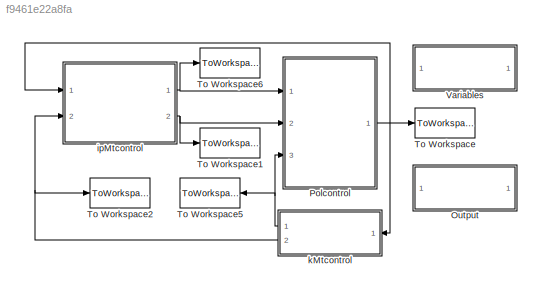
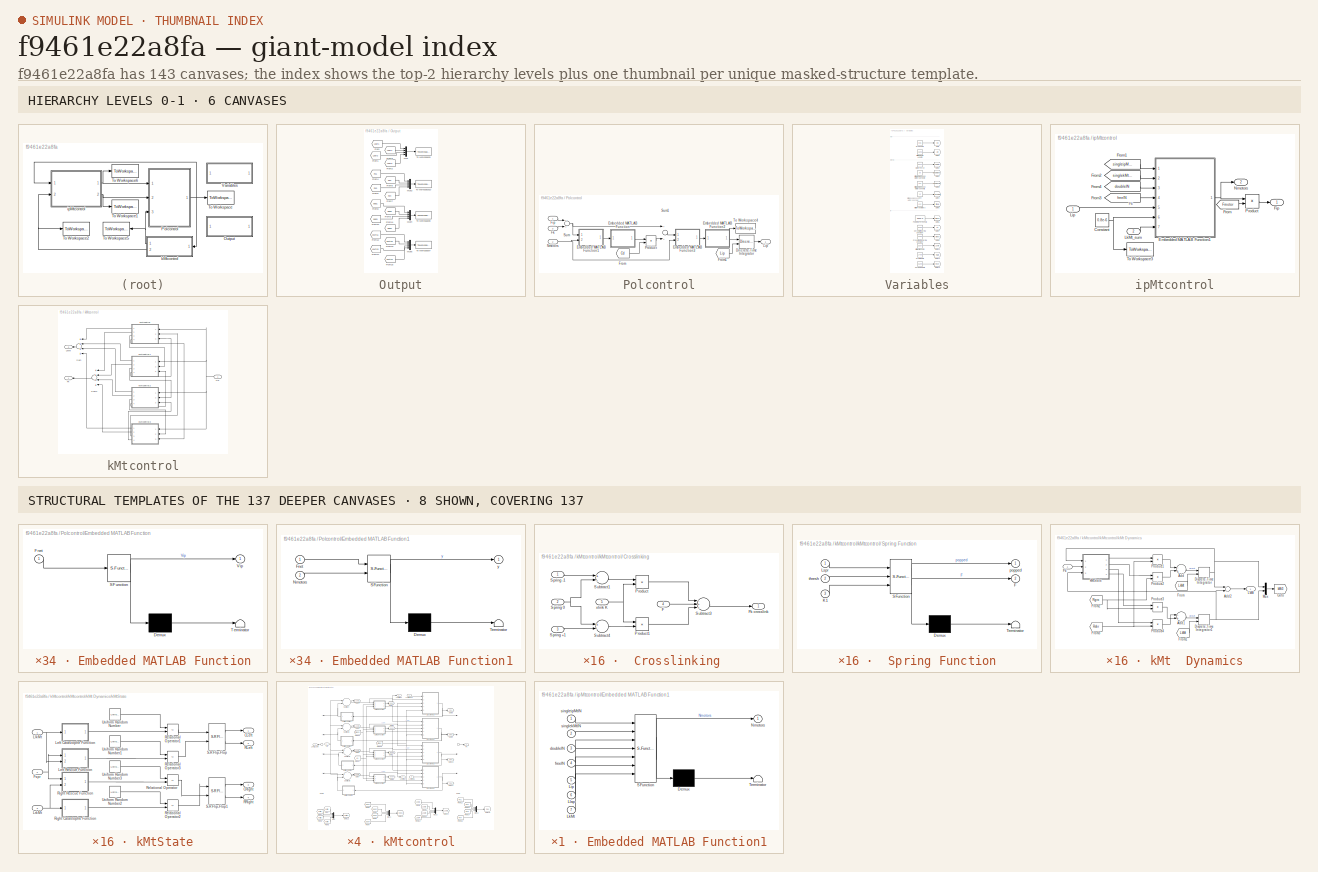
[diagram: thumbnail index - top-2 hierarchy levels (6 canvases) + 8 structural-template representatives of the remaining 137 canvases]
MODEL slx_f9461e22a8fa
KIND model
CONFIG AbsTol = auto
CONFIG FixedStep = 1
CONFIG MaxStep = auto
CONFIG MinStep = auto
CONFIG RelTol = 1e-3
CONFIG SampleTimeConstraint = Unconstrained
CONFIG Solver = FixedStepDiscrete
CONFIG SolverMode = Auto
CONFIG SolverName = FixedStepDiscrete
CONFIG StartTime = 0
CONFIG StopTime = 1000
BLOCK [SubSystem] Output
  Ports = []
  RequestExecContextInheritance = off
  Variant = off
BLOCK [From] Output/From
  GotoTag = Lspr1
  TagVisibility = global
BLOCK [From] Output/From1
  GotoTag = Lspr2
  TagVisibility = global
BLOCK [From] Output/From10
  GotoTag = pop3
  TagVisibility = global
BLOCK [From] Output/From11
  GotoTag = pop4
  TagVisibility = global
BLOCK [From] Output/From12
  GotoTag = kMts1
  TagVisibility = global
BLOCK [From] Output/From13
  GotoTag = kMts2
  TagVisibility = global
BLOCK [From] Output/From14
  GotoTag = kMts3
  TagVisibility = global
BLOCK [From] Output/From15
  GotoTag = kMts4
  TagVisibility = global
BLOCK [From] Output/From2
  GotoTag = Lspr3
  TagVisibility = global
BLOCK [From] Output/From3
  GotoTag = Lspr4
  TagVisibility = global
BLOCK [From] Output/From4
  GotoTag = Fk1
  TagVisibility = global
BLOCK [From] Output/From5
  GotoTag = Fk2
  TagVisibility = global
BLOCK [From] Output/From6
  GotoTag = Fk3
  TagVisibility = global
BLOCK [From] Output/From7
  GotoTag = Fk4
  TagVisibility = global
BLOCK [From] Output/From8
  GotoTag = pop1
  TagVisibility = global
BLOCK [From] Output/From9
  GotoTag = pop2
  TagVisibility = global
BLOCK [Mux] Output/Mux
  DisplayOption = bar
  Ports = [4, 1]
BLOCK [Mux] Output/Mux3
  DisplayOption = bar
  Ports = [4, 1]
BLOCK [Mux] Output/Mux4
  DisplayOption = bar
  Ports = [4, 1]
BLOCK [Mux] Output/Mux5
  DisplayOption = bar
  Ports = [4, 1]
BLOCK [ToWorkspace] Output/To Workspace10
  MaxDataPoints = inf
  Ports = [1]
  SampleTime = -1
  VariableName = allFksOut
BLOCK [ToWorkspace] Output/To Workspace7
  MaxDataPoints = inf
  Ports = [1]
  SampleTime = -1
  VariableName = kMtsOut
BLOCK [ToWorkspace] Output/To Workspace8
  MaxDataPoints = inf
  Ports = [1]
  SampleTime = -1
  VariableName = PoppedOut
BLOCK [ToWorkspace] Output/To Workspace9
  MaxDataPoints = inf
  Ports = [1]
  SampleTime = -1
  VariableName = allLsprOut
BLOCK [SubSystem] Polcontrol
  Ports = [3, 1]
  RequestExecContextInheritance = off
  Variant = off
BLOCK [DiscreteIntegrator] Polcontrol/Discrete-Time Integrator
  ICPrevOutput = DiscIntNeverNeededParam
  ICPrevScaledInput = DiscIntNeverNeededParam
  InitialCondition = 1.5e-6
  InitialConditionSource = external
  Ports = [2, 1]
BLOCK [SubSystem] Polcontrol/Embedded MATLAB Function
  ErrorFcn = Stateflow.Translate.translate
  PermitHierarchicalResolution = ExplicitOnly
  Ports = [1, 1]
  RequestExecContextInheritance = off
  SFBlockType = MATLAB Function
  TreatAsAtomicUnit = on
  Variant = off
BLOCK [Demux] Polcontrol/Embedded MATLAB Function/ Demux 
  Outputs = 1
  Ports = [1, 1]
BLOCK [S-Function] Polcontrol/Embedded MATLAB Function/ SFunction 
  EnableBusSupport = off
  FunctionName = sf_sfun
  PortCounts = [1 2]
  Ports = [1, 2]
  SFunctionDeploymentMode = off
  Tag = Stateflow S-Function Coupled_Model_crosslinked_intext 23
BLOCK [Terminator] Polcontrol/Embedded MATLAB Function/ Terminator 
BLOCK [Inport] Polcontrol/Embedded MATLAB Function/Fnet
  IconDisplay = Port number
BLOCK [Outport] Polcontrol/Embedded MATLAB Function/Vip
  IconDisplay = Port number
BLOCK [SubSystem] Polcontrol/Embedded MATLAB Function1
  ErrorFcn = Stateflow.Translate.translate
  PermitHierarchicalResolution = ExplicitOnly
  Ports = [2, 1]
  RequestExecContextInheritance = off
  SFBlockType = MATLAB Function
  TreatAsAtomicUnit = on
  Variant = off
BLOCK [Demux] Polcontrol/Embedded MATLAB Function1/ Demux 
  Outputs = 1
  Ports = [1, 1]
BLOCK [S-Function] Polcontrol/Embedded MATLAB Function1/ SFunction 
  EnableBusSupport = off
  FunctionName = sf_sfun
  PortCounts = [2 2]
  Ports = [2, 2]
  SFunctionDeploymentMode = off
  Tag = Stateflow S-Function Coupled_Model_crosslinked_intext 22
BLOCK [Terminator] Polcontrol/Embedded MATLAB Function1/ Terminator 
BLOCK [Inport] Polcontrol/Embedded MATLAB Function1/Fnet
  IconDisplay = Port number
BLOCK [Inport] Polcontrol/Embedded MATLAB Function1/Nmotors
  IconDisplay = Port number
  Port = 2
BLOCK [Outport] Polcontrol/Embedded MATLAB Function1/y
  IconDisplay = Port number
BLOCK [SubSystem] Polcontrol/Embedded MATLAB Function2
  ErrorFcn = Stateflow.Translate.translate
  PermitHierarchicalResolution = ExplicitOnly
  Ports = [1, 1]
  RequestExecContextInheritance = off
  SFBlockType = MATLAB Function
  TreatAsAtomicUnit = on
  Variant = off
BLOCK [Demux] Polcontrol/Embedded MATLAB Function2/ Demux 
  Outputs = 1
  Ports = [1, 1]
BLOCK [S-Function] Polcontrol/Embedded MATLAB Function2/ SFunction 
  EnableBusSupport = off
  FunctionName = sf_sfun
  PortCounts = [1 2]
  Ports = [1, 2]
  SFunctionDeploymentMode = off
  Tag = Stateflow S-Function Coupled_Model_crosslinked_intext 84
BLOCK [Terminator] Polcontrol/Embedded MATLAB Function2/ Terminator 
BLOCK [Inport] Polcontrol/Embedded MATLAB Function2/Fnet
  IconDisplay = Port number
BLOCK [Outport] Polcontrol/Embedded MATLAB Function2/Vip
  IconDisplay = Port number
BLOCK [SubSystem] Polcontrol/Embedded MATLAB Function3
  ErrorFcn = Stateflow.Translate.translate
  PermitHierarchicalResolution = ExplicitOnly
  Ports = [2, 1]
  RequestExecContextInheritance = off
  SFBlockType = MATLAB Function
  TreatAsAtomicUnit = on
  Variant = off
BLOCK [Demux] Polcontrol/Embedded MATLAB Function3/ Demux 
  Outputs = 1
  Ports = [1, 1]
BLOCK [S-Function] Polcontrol/Embedded MATLAB Function3/ SFunction 
  EnableBusSupport = off
  FunctionName = sf_sfun
  PortCounts = [2 2]
  Ports = [2, 2]
  SFunctionDeploymentMode = off
  Tag = Stateflow S-Function Coupled_Model_crosslinked_intext 85
BLOCK [Terminator] Polcontrol/Embedded MATLAB Function3/ Terminator 
BLOCK [Inport] Polcontrol/Embedded MATLAB Function3/Fnet
  IconDisplay = Port number
BLOCK [Inport] Polcontrol/Embedded MATLAB Function3/Nmotors
  IconDisplay = Port number
  Port = 2
BLOCK [Outport] Polcontrol/Embedded MATLAB Function3/y
  IconDisplay = Port number
BLOCK [Inport] Polcontrol/Fip
  IconDisplay = Port number
BLOCK [Inport] Polcontrol/Fk
  IconDisplay = Port number
  Port = 3
BLOCK [From] Polcontrol/From
  GotoTag = Cd
  TagVisibility = global
BLOCK [From] Polcontrol/From1
  GotoTag = Lip
  TagVisibility = global
BLOCK [Outport] Polcontrol/Lip
  IconDisplay = Port number
BLOCK [Inport] Polcontrol/Nmotors
  IconDisplay = Port number
  Port = 2
BLOCK [Product] Polcontrol/Product
  InputSameDT = off
  OutDataTypeStr = Inherit: Inherit via internal rule
  Ports = [2, 1]
  SaturateOnIntegerOverflow = off
BLOCK [Sum] Polcontrol/Sum
  InputSameDT = off
  OutDataTypeStr = Inherit: Inherit via internal rule
  Ports = [2, 1]
  SaturateOnIntegerOverflow = off
BLOCK [Sum] Polcontrol/Sum1
  InputSameDT = off
  OutDataTypeStr = Inherit: Inherit via internal rule
  Ports = [2, 1]
  SaturateOnIntegerOverflow = off
BLOCK [ToWorkspace] Polcontrol/To Workspace4
  MaxDataPoints = inf
  Ports = [1]
  SampleTime = -1
  VariableName = vipOut
BLOCK [ToWorkspace] To Workspace
  MaxDataPoints = inf
  Ports = [1]
  SampleTime = -1
  VariableName = LipOut
BLOCK [ToWorkspace] To Workspace1
  MaxDataPoints = inf
  Ports = [1]
  SampleTime = -1
  VariableName = NmotorsOut
BLOCK [ToWorkspace] To Workspace2
  MaxDataPoints = inf
  Ports = [1]
  SampleTime = -1
  VariableName = LkMtOut
BLOCK [ToWorkspace] To Workspace5
  MaxDataPoints = inf
  Ports = [1]
  SampleTime = -1
  VariableName = FkOut
BLOCK [ToWorkspace] To Workspace6
  MaxDataPoints = inf
  Ports = [1]
  SampleTime = -1
  VariableName = FipOut
BLOCK [SubSystem] Variables
  Ports = []
  RequestExecContextInheritance = off
  Variant = off
BLOCK [Constant] Variables/Cd4
  Value = 10
BLOCK [Constant] Variables/Chromatin Spring Constant
  Value = -30e-6
BLOCK [Constant] Variables/Crosslinking Spring Constant
  Value = -10e-6
BLOCK [Constant] Variables/Drag Coeff
  Value = -3e-5
BLOCK [Goto] Variables/Goto
  GotoTag = Cd
  TagVisibility = global
BLOCK [Goto] Variables/Goto1
  GotoTag = Fmotor
  TagVisibility = global
BLOCK [Goto] Variables/Goto11
  GotoTag = LkMt
  TagVisibility = global
BLOCK [Goto] Variables/Goto12
  GotoTag = Rgro
  TagVisibility = global
BLOCK [Goto] Variables/Goto13
  GotoTag = Rshr
  TagVisibility = global
BLOCK [Goto] Variables/Goto2
  GotoTag = singleipMtIN
  TagVisibility = global
BLOCK [Goto] Variables/Goto3
  GotoTag = singlekMtIN
  TagVisibility = global
BLOCK [Goto] Variables/Goto4
  GotoTag = doubleIN
  TagVisibility = global
BLOCK [Goto] Variables/Goto5
  GotoTag = freeIN
  TagVisibility = global
BLOCK [Goto] Variables/Goto6
  GotoTag = thresh
  TagVisibility = global
BLOCK [Goto] Variables/Goto7
  GotoTag = K1
  TagVisibility = global
BLOCK [Goto] Variables/Goto8
  GotoTag = xlinkK
  TagVisibility = global
BLOCK [Goto] Variables/Goto9
  GotoTag = Lip
  TagVisibility = global
BLOCK [Constant] Variables/Growth Rate
  Value = 17e-9
BLOCK [Constant] Variables/Initial Free Motors
  Value = 400
BLOCK [Constant] Variables/Initial Singlebound Motors on kMts
  Value = 150
BLOCK [Constant] Variables/Initial Singlebound Motors per ipMt
  Value = 35
BLOCK [Constant] Variables/Initial Spindle Length
  Value = 1.5e-6
BLOCK [Constant] Variables/Initial kMt Length
  Value = 3.5e-7
BLOCK [Constant] Variables/Motor Force
  Value = 6e-12
BLOCK [Constant] Variables/Popping Threshold
  Value = 955e-9
BLOCK [Constant] Variables/Shrinking Rate
  Value = 25e-9
BLOCK [SubSystem] ipMtcontrol
  Ports = [2, 2]
  RequestExecContextInheritance = off
  Variant = off
BLOCK [Constant] ipMtcontrol/Constant
  Value = 0.8e-6
BLOCK [SubSystem] ipMtcontrol/Embedded MATLAB Function1
  ErrorFcn = Stateflow.Translate.translate
  PermitHierarchicalResolution = ExplicitOnly
  Ports = [7, 1]
  RequestExecContextInheritance = off
  SFBlockType = MATLAB Function
  Variant = off
BLOCK [Demux] ipMtcontrol/Embedded MATLAB Function1/ Demux 
  Outputs = 1
  Ports = [1, 1]
BLOCK [S-Function] ipMtcontrol/Embedded MATLAB Function1/ SFunction 
  EnableBusSupport = off
  FunctionName = sf_sfun
  PortCounts = [7 2]
  Ports = [7, 2]
  SFunctionDeploymentMode = off
  Tag = Stateflow S-Function Coupled_Model_crosslinked_intext 2
BLOCK [Terminator] ipMtcontrol/Embedded MATLAB Function1/ Terminator 
BLOCK [Inport] ipMtcontrol/Embedded MATLAB Function1/Lip
  IconDisplay = Port number
  Port = 5
BLOCK [Inport] ipMtcontrol/Embedded MATLAB Function1/LkMt
  IconDisplay = Port number
  Port = 7
BLOCK [Inport] ipMtcontrol/Embedded MATLAB Function1/Llap
  IconDisplay = Port number
  Port = 6
BLOCK [Outport] ipMtcontrol/Embedded MATLAB Function1/Nmotors
  IconDisplay = Port number
BLOCK [Inport] ipMtcontrol/Embedded MATLAB Function1/doubleIN
  IconDisplay = Port number
  Port = 3
BLOCK [Inport] ipMtcontrol/Embedded MATLAB Function1/freeIN
  IconDisplay = Port number
  Port = 4
BLOCK [Inport] ipMtcontrol/Embedded MATLAB Function1/singleipMtIN
  IconDisplay = Port number
BLOCK [Inport] ipMtcontrol/Embedded MATLAB Function1/singlekMtIN
  IconDisplay = Port number
  Port = 2
BLOCK [Outport] ipMtcontrol/Fip
  IconDisplay = Port number
BLOCK [From] ipMtcontrol/From
  GotoTag = Fmotor
  TagVisibility = global
BLOCK [From] ipMtcontrol/From1
  GotoTag = singleipMtIN
  IconDisplay = Tag and signal name
  TagVisibility = global
BLOCK [From] ipMtcontrol/From2
  GotoTag = singlekMtIN
  TagVisibility = global
BLOCK [From] ipMtcontrol/From3
  GotoTag = freeIN
  TagVisibility = global
BLOCK [From] ipMtcontrol/From4
  GotoTag = doubleIN
  TagVisibility = global
BLOCK [Inport] ipMtcontrol/Lip
  IconDisplay = Port number
BLOCK [Inport] ipMtcontrol/LkMt_sum
  IconDisplay = Port number
  Port = 2
BLOCK [Outport] ipMtcontrol/Nmotors
  IconDisplay = Port number
  Port = 2
BLOCK [Product] ipMtcontrol/Product
  InputSameDT = off
  OutDataTypeStr = Inherit: Inherit via internal rule
  Ports = [2, 1]
  SaturateOnIntegerOverflow = off
BLOCK [ToWorkspace] ipMtcontrol/To Workspace3
  MaxDataPoints = inf
  Ports = [1]
  SampleTime = -1
  VariableName = LlapOut
BLOCK [SubSystem] kMtcontrol
  Ports = [1, 2]
  RequestExecContextInheritance = off
  Variant = off
BLOCK [Outport] kMtcontrol/Fk
  IconDisplay = Port number
BLOCK [Inport] kMtcontrol/Lip
  IconDisplay = Port number
BLOCK [Outport] kMtcontrol/LkMt
  IconDisplay = Port number
  Port = 2
BLOCK [Sum] kMtcontrol/Sum
  InputSameDT = off
  Inputs = ++++
  OutDataTypeStr = Inherit: Inherit via internal rule
  Ports = [4, 1]
  SaturateOnIntegerOverflow = off
BLOCK [Sum] kMtcontrol/Sum1
  InputSameDT = off
  Inputs = ++++
  OutDataTypeStr = Inherit: Inherit via internal rule
  Ports = [4, 1]
  SaturateOnIntegerOverflow = off
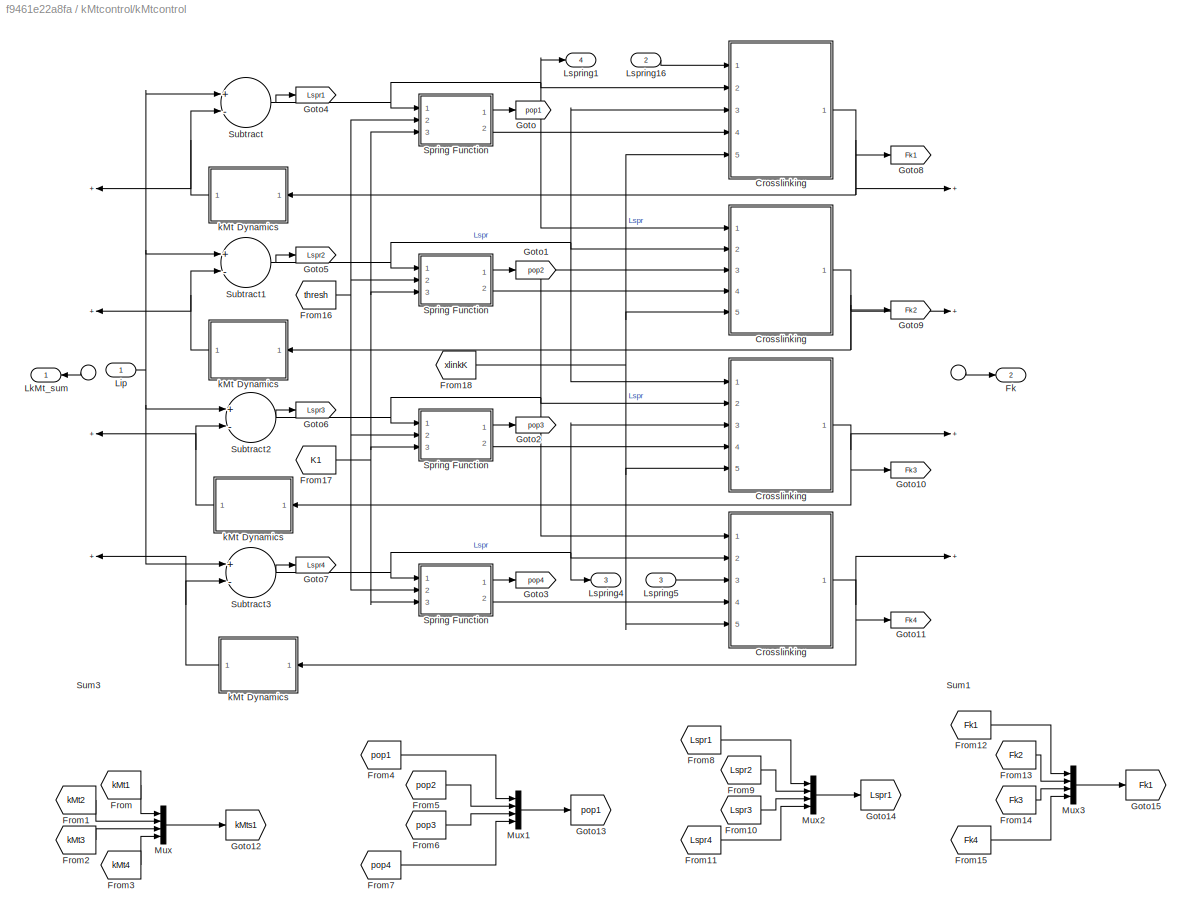
BLOCK [SubSystem] kMtcontrol/kMtcontrol
  Ports = [3, 4]
  RequestExecContextInheritance = off
  Variant = off
BLOCK [SubSystem] kMtcontrol/kMtcontrol/ Crosslinking  
  Ports = [5, 1]
  RequestExecContextInheritance = off
  Variant = off
BLOCK [Inport] kMtcontrol/kMtcontrol/ Crosslinking  /F
  IconDisplay = Port number
  Port = 4
BLOCK [Outport] kMtcontrol/kMtcontrol/ Crosslinking  /Fk crosslink
  IconDisplay = Port number
BLOCK [Product] kMtcontrol/kMtcontrol/ Crosslinking  /Product
  InputSameDT = off
  OutDataTypeStr = Inherit: Inherit via internal rule
  Ports = [2, 1]
  SaturateOnIntegerOverflow = off
BLOCK [Product] kMtcontrol/kMtcontrol/ Crosslinking  /Product1
  InputSameDT = off
  OutDataTypeStr = Inherit: Inherit via internal rule
  Ports = [2, 1]
  SaturateOnIntegerOverflow = off
BLOCK [Inport] kMtcontrol/kMtcontrol/ Crosslinking  /Spring +1
  IconDisplay = Port number
  Port = 3
BLOCK [Inport] kMtcontrol/kMtcontrol/ Crosslinking  /Spring -1
  IconDisplay = Port number
BLOCK [Inport] kMtcontrol/kMtcontrol/ Crosslinking  /Spring 0
  IconDisplay = Port number
  Port = 2
BLOCK [Sum] kMtcontrol/kMtcontrol/ Crosslinking  /Subtract1
  InputSameDT = off
  Inputs = +-
  OutDataTypeStr = Inherit: Inherit via internal rule
  Ports = [2, 1]
  SaturateOnIntegerOverflow = off
BLOCK [Sum] kMtcontrol/kMtcontrol/ Crosslinking  /Subtract3
  InputSameDT = off
  Inputs = -++
  OutDataTypeStr = Inherit: Inherit via internal rule
  Ports = [3, 1]
  SaturateOnIntegerOverflow = off
BLOCK [Sum] kMtcontrol/kMtcontrol/ Crosslinking  /Subtract4
  InputSameDT = off
  Inputs = +-
  OutDataTypeStr = Inherit: Inherit via internal rule
  Ports = [2, 1]
  SaturateOnIntegerOverflow = off
BLOCK [Inport] kMtcontrol/kMtcontrol/ Crosslinking  /xlink K
  IconDisplay = Port number
  Port = 5
BLOCK [SubSystem] kMtcontrol/kMtcontrol/ Spring Function
  ErrorFcn = Stateflow.Translate.translate
  PermitHierarchicalResolution = ExplicitOnly
  Ports = [3, 2]
  RequestExecContextInheritance = off
  SFBlockType = MATLAB Function
  TreatAsAtomicUnit = on
  Variant = off
BLOCK [SubSystem] kMtcontrol/kMtcontrol/ Spring Function 
  ErrorFcn = Stateflow.Translate.translate
  PermitHierarchicalResolution = ExplicitOnly
  Ports = [3, 2]
  RequestExecContextInheritance = off
  SFBlockType = MATLAB Function
  TreatAsAtomicUnit = on
  Variant = off
BLOCK [Demux] kMtcontrol/kMtcontrol/ Spring Function / Demux 
  Outputs = 1
  Ports = [1, 1]
BLOCK [S-Function] kMtcontrol/kMtcontrol/ Spring Function / SFunction 
  EnableBusSupport = off
  FunctionName = sf_sfun
  PortCounts = [3 3]
  Ports = [3, 3]
  SFunctionDeploymentMode = off
  Tag = Stateflow S-Function Coupled_Model_crosslinked_intext 88
BLOCK [Terminator] kMtcontrol/kMtcontrol/ Spring Function / Terminator 
BLOCK [Outport] kMtcontrol/kMtcontrol/ Spring Function /F
  IconDisplay = Port number
  Port = 2
BLOCK [Inport] kMtcontrol/kMtcontrol/ Spring Function /K1
  IconDisplay = Port number
  Port = 3
BLOCK [Inport] kMtcontrol/kMtcontrol/ Spring Function /Lspr
  IconDisplay = Port number
BLOCK [Outport] kMtcontrol/kMtcontrol/ Spring Function /popped
  IconDisplay = Port number
BLOCK [Inport] kMtcontrol/kMtcontrol/ Spring Function /thresh
  IconDisplay = Port number
  Port = 2
BLOCK [Demux] kMtcontrol/kMtcontrol/ Spring Function/ Demux 
  Outputs = 1
  Ports = [1, 1]
BLOCK [S-Function] kMtcontrol/kMtcontrol/ Spring Function/ SFunction 
  EnableBusSupport = off
  FunctionName = sf_sfun
  PortCounts = [3 3]
  Ports = [3, 3]
  SFunctionDeploymentMode = off
  Tag = Stateflow S-Function Coupled_Model_crosslinked_intext 89
BLOCK [Terminator] kMtcontrol/kMtcontrol/ Spring Function/ Terminator 
BLOCK [Outport] kMtcontrol/kMtcontrol/ Spring Function/F
  IconDisplay = Port number
  Port = 2
BLOCK [Inport] kMtcontrol/kMtcontrol/ Spring Function/K1
  IconDisplay = Port number
  Port = 3
BLOCK [Inport] kMtcontrol/kMtcontrol/ Spring Function/Lspr
  IconDisplay = Port number
BLOCK [Outport] kMtcontrol/kMtcontrol/ Spring Function/popped
  IconDisplay = Port number
BLOCK [Inport] kMtcontrol/kMtcontrol/ Spring Function/thresh
  IconDisplay = Port number
  Port = 2
BLOCK [SubSystem] kMtcontrol/kMtcontrol/Crosslinking 
  Ports = [5, 1]
  RequestExecContextInheritance = off
  Variant = off
BLOCK [SubSystem] kMtcontrol/kMtcontrol/Crosslinking  
  Ports = [5, 1]
  RequestExecContextInheritance = off
  Variant = off
BLOCK [SubSystem] kMtcontrol/kMtcontrol/Crosslinking   
  Ports = [5, 1]
  RequestExecContextInheritance = off
  Variant = off
BLOCK [Inport] kMtcontrol/kMtcontrol/Crosslinking   /F
  IconDisplay = Port number
  Port = 4
BLOCK [Outport] kMtcontrol/kMtcontrol/Crosslinking   /Fk crosslink
  IconDisplay = Port number
BLOCK [Product] kMtcontrol/kMtcontrol/Crosslinking   /Product
  InputSameDT = off
  OutDataTypeStr = Inherit: Inherit via internal rule
  Ports = [2, 1]
  SaturateOnIntegerOverflow = off
BLOCK [Product] kMtcontrol/kMtcontrol/Crosslinking   /Product1
  InputSameDT = off
  OutDataTypeStr = Inherit: Inherit via internal rule
  Ports = [2, 1]
  SaturateOnIntegerOverflow = off
BLOCK [Inport] kMtcontrol/kMtcontrol/Crosslinking   /Spring +1
  IconDisplay = Port number
  Port = 3
BLOCK [Inport] kMtcontrol/kMtcontrol/Crosslinking   /Spring -1
  IconDisplay = Port number
BLOCK [Inport] kMtcontrol/kMtcontrol/Crosslinking   /Spring 0
  IconDisplay = Port number
  Port = 2
BLOCK [Sum] kMtcontrol/kMtcontrol/Crosslinking   /Subtract1
  InputSameDT = off
  Inputs = +-
  OutDataTypeStr = Inherit: Inherit via internal rule
  Ports = [2, 1]
  SaturateOnIntegerOverflow = off
BLOCK [Sum] kMtcontrol/kMtcontrol/Crosslinking   /Subtract3
  InputSameDT = off
  Inputs = -++
  OutDataTypeStr = Inherit: Inherit via internal rule
  Ports = [3, 1]
  SaturateOnIntegerOverflow = off
BLOCK [Sum] kMtcontrol/kMtcontrol/Crosslinking   /Subtract4
  InputSameDT = off
  Inputs = +-
  OutDataTypeStr = Inherit: Inherit via internal rule
  Ports = [2, 1]
  SaturateOnIntegerOverflow = off
BLOCK [Inport] kMtcontrol/kMtcontrol/Crosslinking   /xlink K
  IconDisplay = Port number
  Port = 5
BLOCK [Inport] kMtcontrol/kMtcontrol/Crosslinking  /F
  IconDisplay = Port number
  Port = 4
BLOCK [Outport] kMtcontrol/kMtcontrol/Crosslinking  /Fk crosslink
  IconDisplay = Port number
BLOCK [Product] kMtcontrol/kMtcontrol/Crosslinking  /Product
  InputSameDT = off
  OutDataTypeStr = Inherit: Inherit via internal rule
  Ports = [2, 1]
  SaturateOnIntegerOverflow = off
BLOCK [Product] kMtcontrol/kMtcontrol/Crosslinking  /Product1
  InputSameDT = off
  OutDataTypeStr = Inherit: Inherit via internal rule
  Ports = [2, 1]
  SaturateOnIntegerOverflow = off
BLOCK [Inport] kMtcontrol/kMtcontrol/Crosslinking  /Spring +1
  IconDisplay = Port number
  Port = 3
BLOCK [Inport] kMtcontrol/kMtcontrol/Crosslinking  /Spring -1
  IconDisplay = Port number
BLOCK [Inport] kMtcontrol/kMtcontrol/Crosslinking  /Spring 0
  IconDisplay = Port number
  Port = 2
BLOCK [Sum] kMtcontrol/kMtcontrol/Crosslinking  /Subtract1
  InputSameDT = off
  Inputs = +-
  OutDataTypeStr = Inherit: Inherit via internal rule
  Ports = [2, 1]
  SaturateOnIntegerOverflow = off
BLOCK [Sum] kMtcontrol/kMtcontrol/Crosslinking  /Subtract3
  InputSameDT = off
  Inputs = -++
  OutDataTypeStr = Inherit: Inherit via internal rule
  Ports = [3, 1]
  SaturateOnIntegerOverflow = off
BLOCK [Sum] kMtcontrol/kMtcontrol/Crosslinking  /Subtract4
  InputSameDT = off
  Inputs = +-
  OutDataTypeStr = Inherit: Inherit via internal rule
  Ports = [2, 1]
  SaturateOnIntegerOverflow = off
BLOCK [Inport] kMtcontrol/kMtcontrol/Crosslinking  /xlink K
  IconDisplay = Port number
  Port = 5
BLOCK [Inport] kMtcontrol/kMtcontrol/Crosslinking /F
  IconDisplay = Port number
  Port = 4
BLOCK [Outport] kMtcontrol/kMtcontrol/Crosslinking /Fk crosslink
  IconDisplay = Port number
BLOCK [Product] kMtcontrol/kMtcontrol/Crosslinking /Product
  InputSameDT = off
  OutDataTypeStr = Inherit: Inherit via internal rule
  Ports = [2, 1]
  SaturateOnIntegerOverflow = off
BLOCK [Product] kMtcontrol/kMtcontrol/Crosslinking /Product1
  InputSameDT = off
  OutDataTypeStr = Inherit: Inherit via internal rule
  Ports = [2, 1]
  SaturateOnIntegerOverflow = off
BLOCK [Inport] kMtcontrol/kMtcontrol/Crosslinking /Spring +1
  IconDisplay = Port number
  Port = 3
BLOCK [Inport] kMtcontrol/kMtcontrol/Crosslinking /Spring -1
  IconDisplay = Port number
BLOCK [Inport] kMtcontrol/kMtcontrol/Crosslinking /Spring 0
  IconDisplay = Port number
  Port = 2
BLOCK [Sum] kMtcontrol/kMtcontrol/Crosslinking /Subtract1
  InputSameDT = off
  Inputs = +-
  OutDataTypeStr = Inherit: Inherit via internal rule
  Ports = [2, 1]
  SaturateOnIntegerOverflow = off
BLOCK [Sum] kMtcontrol/kMtcontrol/Crosslinking /Subtract3
  InputSameDT = off
  Inputs = -++
  OutDataTypeStr = Inherit: Inherit via internal rule
  Ports = [3, 1]
  SaturateOnIntegerOverflow = off
BLOCK [Sum] kMtcontrol/kMtcontrol/Crosslinking /Subtract4
  InputSameDT = off
  Inputs = +-
  OutDataTypeStr = Inherit: Inherit via internal rule
  Ports = [2, 1]
  SaturateOnIntegerOverflow = off
BLOCK [Inport] kMtcontrol/kMtcontrol/Crosslinking /xlink K
  IconDisplay = Port number
  Port = 5
BLOCK [Outport] kMtcontrol/kMtcontrol/Fk
  IconDisplay = Port number
  Port = 2
BLOCK [From] kMtcontrol/kMtcontrol/From
  GotoTag = kMt1
  TagVisibility = global
BLOCK [From] kMtcontrol/kMtcontrol/From1
  GotoTag = kMt2
  TagVisibility = global
BLOCK [From] kMtcontrol/kMtcontrol/From10
  GotoTag = Lspr3
BLOCK [From] kMtcontrol/kMtcontrol/From11
  GotoTag = Lspr4
BLOCK [From] kMtcontrol/kMtcontrol/From12
  GotoTag = Fk1
BLOCK [From] kMtcontrol/kMtcontrol/From13
  GotoTag = Fk2
BLOCK [From] kMtcontrol/kMtcontrol/From14
  GotoTag = Fk3
BLOCK [From] kMtcontrol/kMtcontrol/From15
  GotoTag = Fk4
BLOCK [From] kMtcontrol/kMtcontrol/From16
  GotoTag = thresh
  TagVisibility = global
BLOCK [From] kMtcontrol/kMtcontrol/From17
  GotoTag = K1
  TagVisibility = global
BLOCK [From] kMtcontrol/kMtcontrol/From18
  GotoTag = xlinkK
  TagVisibility = global
BLOCK [From] kMtcontrol/kMtcontrol/From2
  GotoTag = kMt3
  TagVisibility = global
BLOCK [From] kMtcontrol/kMtcontrol/From3
  GotoTag = kMt4
  TagVisibility = global
BLOCK [From] kMtcontrol/kMtcontrol/From4
  GotoTag = pop1
BLOCK [From] kMtcontrol/kMtcontrol/From5
  GotoTag = pop2
BLOCK [From] kMtcontrol/kMtcontrol/From6
  GotoTag = pop3
BLOCK [From] kMtcontrol/kMtcontrol/From7
  GotoTag = pop4
BLOCK [From] kMtcontrol/kMtcontrol/From8
  GotoTag = Lspr1
BLOCK [From] kMtcontrol/kMtcontrol/From9
  GotoTag = Lspr2
BLOCK [Goto] kMtcontrol/kMtcontrol/Goto
  GotoTag = pop1
BLOCK [Goto] kMtcontrol/kMtcontrol/Goto1
  GotoTag = pop2
BLOCK [Goto] kMtcontrol/kMtcontrol/Goto10
  GotoTag = Fk3
BLOCK [Goto] kMtcontrol/kMtcontrol/Goto11
  GotoTag = Fk4
BLOCK [Goto] kMtcontrol/kMtcontrol/Goto12
  GotoTag = kMts1
  TagVisibility = global
BLOCK [Goto] kMtcontrol/kMtcontrol/Goto13
  GotoTag = pop1
  TagVisibility = global
BLOCK [Goto] kMtcontrol/kMtcontrol/Goto14
  GotoTag = Lspr1
  TagVisibility = global
BLOCK [Goto] kMtcontrol/kMtcontrol/Goto15
  GotoTag = Fk1
  TagVisibility = global
BLOCK [Goto] kMtcontrol/kMtcontrol/Goto2
  GotoTag = pop3
BLOCK [Goto] kMtcontrol/kMtcontrol/Goto3
  GotoTag = pop4
BLOCK [Goto] kMtcontrol/kMtcontrol/Goto4
  GotoTag = Lspr1
BLOCK [Goto] kMtcontrol/kMtcontrol/Goto5
  GotoTag = Lspr2
BLOCK [Goto] kMtcontrol/kMtcontrol/Goto6
  GotoTag = Lspr3
BLOCK [Goto] kMtcontrol/kMtcontrol/Goto7
  GotoTag = Lspr4
BLOCK [Goto] kMtcontrol/kMtcontrol/Goto8
  GotoTag = Fk1
BLOCK [Goto] kMtcontrol/kMtcontrol/Goto9
  GotoTag = Fk2
BLOCK [Inport] kMtcontrol/kMtcontrol/Lip 
  IconDisplay = Port number
BLOCK [Outport] kMtcontrol/kMtcontrol/LkMt_sum
  IconDisplay = Port number
BLOCK [Outport] kMtcontrol/kMtcontrol/Lspring1
  IconDisplay = Port number
  Port = 4
BLOCK [Inport] kMtcontrol/kMtcontrol/Lspring16
  IconDisplay = Port number
  Port = 2
BLOCK [Outport] kMtcontrol/kMtcontrol/Lspring4
  IconDisplay = Port number
  Port = 3
BLOCK [Inport] kMtcontrol/kMtcontrol/Lspring5
  IconDisplay = Port number
  Port = 3
BLOCK [Mux] kMtcontrol/kMtcontrol/Mux
  DisplayOption = bar
  Ports = [4, 1]
BLOCK [Mux] kMtcontrol/kMtcontrol/Mux1
  DisplayOption = bar
  Ports = [4, 1]
BLOCK [Mux] kMtcontrol/kMtcontrol/Mux2
  DisplayOption = bar
  Ports = [4, 1]
BLOCK [Mux] kMtcontrol/kMtcontrol/Mux3
  DisplayOption = bar
  Ports = [4, 1]
BLOCK [SubSystem] kMtcontrol/kMtcontrol/Spring Function
  ErrorFcn = Stateflow.Translate.translate
  PermitHierarchicalResolution = ExplicitOnly
  Ports = [3, 2]
  RequestExecContextInheritance = off
  SFBlockType = MATLAB Function
  TreatAsAtomicUnit = on
  Variant = off
BLOCK [SubSystem] kMtcontrol/kMtcontrol/Spring Function 
  ErrorFcn = Stateflow.Translate.translate
  PermitHierarchicalResolution = ExplicitOnly
  Ports = [3, 2]
  RequestExecContextInheritance = off
  SFBlockType = MATLAB Function
  TreatAsAtomicUnit = on
  Variant = off
BLOCK [Demux] kMtcontrol/kMtcontrol/Spring Function / Demux 
  Outputs = 1
  Ports = [1, 1]
BLOCK [S-Function] kMtcontrol/kMtcontrol/Spring Function / SFunction 
  EnableBusSupport = off
  FunctionName = sf_sfun
  PortCounts = [3 3]
  Ports = [3, 3]
  SFunctionDeploymentMode = off
  Tag = Stateflow S-Function Coupled_Model_crosslinked_intext 87
BLOCK [Terminator] kMtcontrol/kMtcontrol/Spring Function / Terminator 
BLOCK [Outport] kMtcontrol/kMtcontrol/Spring Function /F
  IconDisplay = Port number
  Port = 2
BLOCK [Inport] kMtcontrol/kMtcontrol/Spring Function /K1
  IconDisplay = Port number
  Port = 3
BLOCK [Inport] kMtcontrol/kMtcontrol/Spring Function /Lspr
  IconDisplay = Port number
BLOCK [Outport] kMtcontrol/kMtcontrol/Spring Function /popped
  IconDisplay = Port number
BLOCK [Inport] kMtcontrol/kMtcontrol/Spring Function /thresh
  IconDisplay = Port number
  Port = 2
BLOCK [Demux] kMtcontrol/kMtcontrol/Spring Function/ Demux 
  Outputs = 1
  Ports = [1, 1]
BLOCK [S-Function] kMtcontrol/kMtcontrol/Spring Function/ SFunction 
  EnableBusSupport = off
  FunctionName = sf_sfun
  PortCounts = [3 3]
  Ports = [3, 3]
  SFunctionDeploymentMode = off
  Tag = Stateflow S-Function Coupled_Model_crosslinked_intext 86
BLOCK [Terminator] kMtcontrol/kMtcontrol/Spring Function/ Terminator 
BLOCK [Outport] kMtcontrol/kMtcontrol/Spring Function/F
  IconDisplay = Port number
  Port = 2
BLOCK [Inport] kMtcontrol/kMtcontrol/Spring Function/K1
  IconDisplay = Port number
  Port = 3
BLOCK [Inport] kMtcontrol/kMtcontrol/Spring Function/Lspr
  IconDisplay = Port number
BLOCK [Outport] kMtcontrol/kMtcontrol/Spring Function/popped
  IconDisplay = Port number
BLOCK [Inport] kMtcontrol/kMtcontrol/Spring Function/thresh
  IconDisplay = Port number
  Port = 2
BLOCK [Sum] kMtcontrol/kMtcontrol/Subtract
  InputSameDT = off
  Inputs = +-
  OutDataTypeStr = Inherit: Inherit via internal rule
  Ports = [2, 1]
  SaturateOnIntegerOverflow = off
BLOCK [Sum] kMtcontrol/kMtcontrol/Subtract1
  InputSameDT = off
  Inputs = +-
  OutDataTypeStr = Inherit: Inherit via internal rule
  Ports = [2, 1]
  SaturateOnIntegerOverflow = off
BLOCK [Sum] kMtcontrol/kMtcontrol/Subtract2
  InputSameDT = off
  Inputs = +-
  OutDataTypeStr = Inherit: Inherit via internal rule
  Ports = [2, 1]
  SaturateOnIntegerOverflow = off
BLOCK [Sum] kMtcontrol/kMtcontrol/Subtract3
  InputSameDT = off
  Inputs = +-
  OutDataTypeStr = Inherit: Inherit via internal rule
  Ports = [2, 1]
  SaturateOnIntegerOverflow = off
BLOCK [Sum] kMtcontrol/kMtcontrol/Sum1
  InputSameDT = off
  Inputs = ++++
  OutDataTypeStr = Inherit: Inherit via internal rule
  Ports = [4, 1]
  SaturateOnIntegerOverflow = off
BLOCK [Sum] kMtcontrol/kMtcontrol/Sum3
  InputSameDT = off
  Inputs = ++++
  OutDataTypeStr = Inherit: Inherit via internal rule
  Ports = [4, 1]
  SaturateOnIntegerOverflow = off
BLOCK [SubSystem] kMtcontrol/kMtcontrol/kMt  Dynamics
  Ports = [1, 1]
  RequestExecContextInheritance = off
  Variant = off
BLOCK [Sum] kMtcontrol/kMtcontrol/kMt  Dynamics/Add
  InputSameDT = off
  Inputs = -+
  OutDataTypeStr = Inherit: Inherit via internal rule
  Ports = [2, 1]
  SaturateOnIntegerOverflow = off
BLOCK [Sum] kMtcontrol/kMtcontrol/kMt  Dynamics/Add1
  InputSameDT = off
  Inputs = -+
  OutDataTypeStr = Inherit: Inherit via internal rule
  Ports = [2, 1]
  SaturateOnIntegerOverflow = off
BLOCK [Sum] kMtcontrol/kMtcontrol/kMt  Dynamics/Add2
  InputSameDT = off
  OutDataTypeStr = Inherit: Inherit via internal rule
  Ports = [2, 1]
  SaturateOnIntegerOverflow = off
BLOCK [DiscreteIntegrator] kMtcontrol/kMtcontrol/kMt  Dynamics/Discrete-Time Integrator
  ICPrevOutput = DiscIntNeverNeededParam
  ICPrevScaledInput = DiscIntNeverNeededParam
  InitialConditionSource = external
  Ports = [2, 1]
BLOCK [DiscreteIntegrator] kMtcontrol/kMtcontrol/kMt  Dynamics/Discrete-Time Integrator1
  ICPrevOutput = DiscIntNeverNeededParam
  ICPrevScaledInput = DiscIntNeverNeededParam
  InitialConditionSource = external
  Ports = [2, 1]
BLOCK [Inport] kMtcontrol/kMtcontrol/kMt  Dynamics/Fk
  IconDisplay = Port number
BLOCK [From] kMtcontrol/kMtcontrol/kMt  Dynamics/From
  GotoTag = LkMt
  TagVisibility = global
BLOCK [From] kMtcontrol/kMtcontrol/kMt  Dynamics/From1
  GotoTag = LkMt
  TagVisibility = global
BLOCK [From] kMtcontrol/kMtcontrol/kMt  Dynamics/From2
  GotoTag = Rgro
  TagVisibility = global
BLOCK [From] kMtcontrol/kMtcontrol/kMt  Dynamics/From3
  GotoTag = Rshr
  TagVisibility = global
BLOCK [Goto] kMtcontrol/kMtcontrol/kMt  Dynamics/Goto
  GotoTag = kMt3
  TagVisibility = global
BLOCK [Outport] kMtcontrol/kMtcontrol/kMt  Dynamics/LkMt
  IconDisplay = Port number
BLOCK [Mux] kMtcontrol/kMtcontrol/kMt  Dynamics/Mux
  DisplayOption = bar
  Inputs = 2
  Ports = [2, 1]
BLOCK [Product] kMtcontrol/kMtcontrol/kMt  Dynamics/Product1
  InputSameDT = off
  OutDataTypeStr = Inherit: Inherit via internal rule
  Ports = [2, 1]
  SaturateOnIntegerOverflow = off
BLOCK [Product] kMtcontrol/kMtcontrol/kMt  Dynamics/Product2
  InputSameDT = off
  OutDataTypeStr = Inherit: Inherit via internal rule
  Ports = [2, 1]
  SaturateOnIntegerOverflow = off
BLOCK [Product] kMtcontrol/kMtcontrol/kMt  Dynamics/Product3
  InputSameDT = off
  OutDataTypeStr = Inherit: Inherit via internal rule
  Ports = [2, 1]
  SaturateOnIntegerOverflow = off
BLOCK [Product] kMtcontrol/kMtcontrol/kMt  Dynamics/Product4
  InputSameDT = off
  OutDataTypeStr = Inherit: Inherit via internal rule
  Ports = [2, 1]
  SaturateOnIntegerOverflow = off
BLOCK [SubSystem] kMtcontrol/kMtcontrol/kMt  Dynamics/kMtState
  Ports = [3, 4]
  RequestExecContextInheritance = off
  Variant = off
BLOCK [Outport] kMtcontrol/kMtcontrol/kMt  Dynamics/kMtState/CLeft
  IconDisplay = Port number
BLOCK [Outport] kMtcontrol/kMtcontrol/kMt  Dynamics/kMtState/CRight
  IconDisplay = Port number
  Port = 3
BLOCK [Inport] kMtcontrol/kMtcontrol/kMt  Dynamics/kMtState/Fspr
  IconDisplay = Port number
  Port = 2
BLOCK [SubSystem] kMtcontrol/kMtcontrol/kMt  Dynamics/kMtState/Left Catastophe Function
  ErrorFcn = Stateflow.Translate.translate
  PermitHierarchicalResolution = ExplicitOnly
  Ports = [1, 1]
  RequestExecContextInheritance = off
  SFBlockType = MATLAB Function
  TreatAsAtomicUnit = on
  Variant = off
BLOCK [Demux] kMtcontrol/kMtcontrol/kMt  Dynamics/kMtState/Left Catastophe Function/ Demux 
  Outputs = 1
  Ports = [1, 1]
BLOCK [S-Function] kMtcontrol/kMtcontrol/kMt  Dynamics/kMtState/Left Catastophe Function/ SFunction 
  EnableBusSupport = off
  FunctionName = sf_sfun
  PortCounts = [1 2]
  Ports = [1, 2]
  SFunctionDeploymentMode = off
  Tag = Stateflow S-Function Coupled_Model_crosslinked_intext 68
BLOCK [Terminator] kMtcontrol/kMtcontrol/kMt  Dynamics/kMtState/Left Catastophe Function/ Terminator 
BLOCK [Inport] kMtcontrol/kMtcontrol/kMt  Dynamics/kMtState/Left Catastophe Function/u
  IconDisplay = Port number
BLOCK [Outport] kMtcontrol/kMtcontrol/kMt  Dynamics/kMtState/Left Catastophe Function/y
  IconDisplay = Port number
BLOCK [SubSystem] kMtcontrol/kMtcontrol/kMt  Dynamics/kMtState/Left Rescue Function
  ErrorFcn = Stateflow.Translate.translate
  PermitHierarchicalResolution = ExplicitOnly
  Ports = [2, 1]
  RequestExecContextInheritance = off
  SFBlockType = MATLAB Function
  TreatAsAtomicUnit = on
  Variant = off
BLOCK [Demux] kMtcontrol/kMtcontrol/kMt  Dynamics/kMtState/Left Rescue Function/ Demux 
  Outputs = 1
  Ports = [1, 1]
BLOCK [S-Function] kMtcontrol/kMtcontrol/kMt  Dynamics/kMtState/Left Rescue Function/ SFunction 
  EnableBusSupport = off
  FunctionName = sf_sfun
  PortCounts = [2 2]
  Ports = [2, 2]
  SFunctionDeploymentMode = off
  Tag = Stateflow S-Function Coupled_Model_crosslinked_intext 69
BLOCK [Terminator] kMtcontrol/kMtcontrol/kMt  Dynamics/kMtState/Left Rescue Function/ Terminator 
BLOCK [Inport] kMtcontrol/kMtcontrol/kMt  Dynamics/kMtState/Left Rescue Function/u
  IconDisplay = Port number
BLOCK [Inport] kMtcontrol/kMtcontrol/kMt  Dynamics/kMtState/Left Rescue Function/v
  IconDisplay = Port number
  Port = 2
BLOCK [Outport] kMtcontrol/kMtcontrol/kMt  Dynamics/kMtState/Left Rescue Function/y
  IconDisplay = Port number
BLOCK [Inport] kMtcontrol/kMtcontrol/kMt  Dynamics/kMtState/LlkMt
  IconDisplay = Port number
BLOCK [Inport] kMtcontrol/kMtcontrol/kMt  Dynamics/kMtState/LrkMt
  IconDisplay = Port number
  Port = 3
BLOCK [Outport] kMtcontrol/kMtcontrol/kMt  Dynamics/kMtState/RLeft
  IconDisplay = Port number
  Port = 2
BLOCK [Outport] kMtcontrol/kMtcontrol/kMt  Dynamics/kMtState/RRight
  IconDisplay = Port number
  Port = 4
BLOCK [RelationalOperator] kMtcontrol/kMtcontrol/kMt  Dynamics/kMtState/Relational Operator
  InputSameDT = off
  Operator = <=
  OutDataTypeStr = boolean
  Ports = [2, 1]
BLOCK [RelationalOperator] kMtcontrol/kMtcontrol/kMt  Dynamics/kMtState/Relational Operator1
  InputSameDT = off
  Operator = <=
  OutDataTypeStr = boolean
  Ports = [2, 1]
BLOCK [RelationalOperator] kMtcontrol/kMtcontrol/kMt  Dynamics/kMtState/Relational Operator2
  InputSameDT = off
  Operator = <=
  OutDataTypeStr = boolean
  Ports = [2, 1]
BLOCK [RelationalOperator] kMtcontrol/kMtcontrol/kMt  Dynamics/kMtState/Relational Operator3
  InputSameDT = off
  Operator = <=
  OutDataTypeStr = boolean
  Ports = [2, 1]
BLOCK [SubSystem] kMtcontrol/kMtcontrol/kMt  Dynamics/kMtState/Right Catastophe Function
  ErrorFcn = Stateflow.Translate.translate
  PermitHierarchicalResolution = ExplicitOnly
  Ports = [1, 1]
  RequestExecContextInheritance = off
  SFBlockType = MATLAB Function
  TreatAsAtomicUnit = on
  Variant = off
BLOCK [Demux] kMtcontrol/kMtcontrol/kMt  Dynamics/kMtState/Right Catastophe Function/ Demux 
  Outputs = 1
  Ports = [1, 1]
BLOCK [S-Function] kMtcontrol/kMtcontrol/kMt  Dynamics/kMtState/Right Catastophe Function/ SFunction 
  EnableBusSupport = off
  FunctionName = sf_sfun
  PortCounts = [1 2]
  Ports = [1, 2]
  SFunctionDeploymentMode = off
  Tag = Stateflow S-Function Coupled_Model_crosslinked_intext 70
BLOCK [Terminator] kMtcontrol/kMtcontrol/kMt  Dynamics/kMtState/Right Catastophe Function/ Terminator 
BLOCK [Inport] kMtcontrol/kMtcontrol/kMt  Dynamics/kMtState/Right Catastophe Function/u
  IconDisplay = Port number
BLOCK [Outport] kMtcontrol/kMtcontrol/kMt  Dynamics/kMtState/Right Catastophe Function/y
  IconDisplay = Port number
BLOCK [SubSystem] kMtcontrol/kMtcontrol/kMt  Dynamics/kMtState/Right Rescue Function
  ErrorFcn = Stateflow.Translate.translate
  PermitHierarchicalResolution = ExplicitOnly
  Ports = [2, 1]
  RequestExecContextInheritance = off
  SFBlockType = MATLAB Function
  TreatAsAtomicUnit = on
  Variant = off
BLOCK [Demux] kMtcontrol/kMtcontrol/kMt  Dynamics/kMtState/Right Rescue Function/ Demux 
  Outputs = 1
  Ports = [1, 1]
BLOCK [S-Function] kMtcontrol/kMtcontrol/kMt  Dynamics/kMtState/Right Rescue Function/ SFunction 
  EnableBusSupport = off
  FunctionName = sf_sfun
  PortCounts = [2 2]
  Ports = [2, 2]
  SFunctionDeploymentMode = off
  Tag = Stateflow S-Function Coupled_Model_crosslinked_intext 71
BLOCK [Terminator] kMtcontrol/kMtcontrol/kMt  Dynamics/kMtState/Right Rescue Function/ Terminator 
BLOCK [Inport] kMtcontrol/kMtcontrol/kMt  Dynamics/kMtState/Right Rescue Function/u
  IconDisplay = Port number
BLOCK [Inport] kMtcontrol/kMtcontrol/kMt  Dynamics/kMtState/Right Rescue Function/v
  IconDisplay = Port number
  Port = 2
BLOCK [Outport] kMtcontrol/kMtcontrol/kMt  Dynamics/kMtState/Right Rescue Function/y
  IconDisplay = Port number
BLOCK [Reference] kMtcontrol/kMtcontrol/kMt  Dynamics/kMtState/S-R Flip-Flop  REF=simulink_extras/Flip Flops/S-R
Flip-Flop
  Ports = [2, 2]
  SourceBlock = simulink_extras/Flip Flops/S-R\nFlip-Flop
  SourceType = SRFlipFlop
BLOCK [Reference] kMtcontrol/kMtcontrol/kMt  Dynamics/kMtState/S-R Flip-Flop1  REF=simulink_extras/Flip Flops/S-R
Flip-Flop
  Ports = [2, 2]
  SourceBlock = simulink_extras/Flip Flops/S-R\nFlip-Flop
  SourceType = SRFlipFlop
BLOCK [UniformRandomNumber] kMtcontrol/kMtcontrol/kMt  Dynamics/kMtState/Uniform Random Number
  Minimum = 0
  SampleTime = 1
  Seed = randi(10000)+1
BLOCK [UniformRandomNumber] kMtcontrol/kMtcontrol/kMt  Dynamics/kMtState/Uniform Random Number1
  Minimum = 0
  SampleTime = 1
  Seed = randi(10000)+2
BLOCK [UniformRandomNumber] kMtcontrol/kMtcontrol/kMt  Dynamics/kMtState/Uniform Random Number2
  Minimum = 0
  SampleTime = 1
  Seed = randi(10000)+4
BLOCK [UniformRandomNumber] kMtcontrol/kMtcontrol/kMt  Dynamics/kMtState/Uniform Random Number3
  Minimum = 0
  SampleTime = 1
  Seed = randi(10000)+3
BLOCK [SubSystem] kMtcontrol/kMtcontrol/kMt Dynamics
  Ports = [1, 1]
  RequestExecContextInheritance = off
  Variant = off
BLOCK [SubSystem] kMtcontrol/kMtcontrol/kMt Dynamics 
  Ports = [1, 1]
  RequestExecContextInheritance = off
  Variant = off
BLOCK [SubSystem] kMtcontrol/kMtcontrol/kMt Dynamics  
  Ports = [1, 1]
  RequestExecContextInheritance = off
  Variant = off
BLOCK [Sum] kMtcontrol/kMtcontrol/kMt Dynamics  /Add
  InputSameDT = off
  Inputs = -+
  OutDataTypeStr = Inherit: Inherit via internal rule
  Ports = [2, 1]
  SaturateOnIntegerOverflow = off
BLOCK [Sum] kMtcontrol/kMtcontrol/kMt Dynamics  /Add1
  InputSameDT = off
  Inputs = -+
  OutDataTypeStr = Inherit: Inherit via internal rule
  Ports = [2, 1]
  SaturateOnIntegerOverflow = off
BLOCK [Sum] kMtcontrol/kMtcontrol/kMt Dynamics  /Add2
  InputSameDT = off
  OutDataTypeStr = Inherit: Inherit via internal rule
  Ports = [2, 1]
  SaturateOnIntegerOverflow = off
BLOCK [DiscreteIntegrator] kMtcontrol/kMtcontrol/kMt Dynamics  /Discrete-Time Integrator
  ICPrevOutput = DiscIntNeverNeededParam
  ICPrevScaledInput = DiscIntNeverNeededParam
  InitialConditionSource = external
  Ports = [2, 1]
BLOCK [DiscreteIntegrator] kMtcontrol/kMtcontrol/kMt Dynamics  /Discrete-Time Integrator1
  ICPrevOutput = DiscIntNeverNeededParam
  ICPrevScaledInput = DiscIntNeverNeededParam
  InitialConditionSource = external
  Ports = [2, 1]
BLOCK [Inport] kMtcontrol/kMtcontrol/kMt Dynamics  /Fk
  IconDisplay = Port number
BLOCK [From] kMtcontrol/kMtcontrol/kMt Dynamics  /From
  GotoTag = LkMt
  TagVisibility = global
BLOCK [From] kMtcontrol/kMtcontrol/kMt Dynamics  /From1
  GotoTag = LkMt
  TagVisibility = global
BLOCK [From] kMtcontrol/kMtcontrol/kMt Dynamics  /From2
  GotoTag = Rgro
  TagVisibility = global
BLOCK [From] kMtcontrol/kMtcontrol/kMt Dynamics  /From3
  GotoTag = Rshr
  TagVisibility = global
BLOCK [Goto] kMtcontrol/kMtcontrol/kMt Dynamics  /Goto
  GotoTag = kMt4
  TagVisibility = global
BLOCK [Outport] kMtcontrol/kMtcontrol/kMt Dynamics  /LkMt
  IconDisplay = Port number
BLOCK [Mux] kMtcontrol/kMtcontrol/kMt Dynamics  /Mux
  DisplayOption = bar
  Inputs = 2
  Ports = [2, 1]
BLOCK [Product] kMtcontrol/kMtcontrol/kMt Dynamics  /Product1
  InputSameDT = off
  OutDataTypeStr = Inherit: Inherit via internal rule
  Ports = [2, 1]
  SaturateOnIntegerOverflow = off
BLOCK [Product] kMtcontrol/kMtcontrol/kMt Dynamics  /Product2
  InputSameDT = off
  OutDataTypeStr = Inherit: Inherit via internal rule
  Ports = [2, 1]
  SaturateOnIntegerOverflow = off
BLOCK [Product] kMtcontrol/kMtcontrol/kMt Dynamics  /Product3
  InputSameDT = off
  OutDataTypeStr = Inherit: Inherit via internal rule
  Ports = [2, 1]
  SaturateOnIntegerOverflow = off
BLOCK [Product] kMtcontrol/kMtcontrol/kMt Dynamics  /Product4
  InputSameDT = off
  OutDataTypeStr = Inherit: Inherit via internal rule
  Ports = [2, 1]
  SaturateOnIntegerOverflow = off
BLOCK [SubSystem] kMtcontrol/kMtcontrol/kMt Dynamics  /kMtState
  Ports = [3, 4]
  RequestExecContextInheritance = off
  Variant = off
BLOCK [Outport] kMtcontrol/kMtcontrol/kMt Dynamics  /kMtState/CLeft
  IconDisplay = Port number
BLOCK [Outport] kMtcontrol/kMtcontrol/kMt Dynamics  /kMtState/CRight
  IconDisplay = Port number
  Port = 3
BLOCK [Inport] kMtcontrol/kMtcontrol/kMt Dynamics  /kMtState/Fspr
  IconDisplay = Port number
  Port = 2
BLOCK [SubSystem] kMtcontrol/kMtcontrol/kMt Dynamics  /kMtState/Left Catastophe Function
  ErrorFcn = Stateflow.Translate.translate
  PermitHierarchicalResolution = ExplicitOnly
  Ports = [1, 1]
  RequestExecContextInheritance = off
  SFBlockType = MATLAB Function
  TreatAsAtomicUnit = on
  Variant = off
BLOCK [Demux] kMtcontrol/kMtcontrol/kMt Dynamics  /kMtState/Left Catastophe Function/ Demux 
  Outputs = 1
  Ports = [1, 1]
BLOCK [S-Function] kMtcontrol/kMtcontrol/kMt Dynamics  /kMtState/Left Catastophe Function/ SFunction 
  EnableBusSupport = off
  FunctionName = sf_sfun
  PortCounts = [1 2]
  Ports = [1, 2]
  SFunctionDeploymentMode = off
  Tag = Stateflow S-Function Coupled_Model_crosslinked_intext 72
BLOCK [Terminator] kMtcontrol/kMtcontrol/kMt Dynamics  /kMtState/Left Catastophe Function/ Terminator 
BLOCK [Inport] kMtcontrol/kMtcontrol/kMt Dynamics  /kMtState/Left Catastophe Function/u
  IconDisplay = Port number
BLOCK [Outport] kMtcontrol/kMtcontrol/kMt Dynamics  /kMtState/Left Catastophe Function/y
  IconDisplay = Port number
BLOCK [SubSystem] kMtcontrol/kMtcontrol/kMt Dynamics  /kMtState/Left Rescue Function
  ErrorFcn = Stateflow.Translate.translate
  PermitHierarchicalResolution = ExplicitOnly
  Ports = [2, 1]
  RequestExecContextInheritance = off
  SFBlockType = MATLAB Function
  TreatAsAtomicUnit = on
  Variant = off
BLOCK [Demux] kMtcontrol/kMtcontrol/kMt Dynamics  /kMtState/Left Rescue Function/ Demux 
  Outputs = 1
  Ports = [1, 1]
BLOCK [S-Function] kMtcontrol/kMtcontrol/kMt Dynamics  /kMtState/Left Rescue Function/ SFunction 
  EnableBusSupport = off
  FunctionName = sf_sfun
  PortCounts = [2 2]
  Ports = [2, 2]
  SFunctionDeploymentMode = off
  Tag = Stateflow S-Function Coupled_Model_crosslinked_intext 73
BLOCK [Terminator] kMtcontrol/kMtcontrol/kMt Dynamics  /kMtState/Left Rescue Function/ Terminator 
BLOCK [Inport] kMtcontrol/kMtcontrol/kMt Dynamics  /kMtState/Left Rescue Function/u
  IconDisplay = Port number
BLOCK [Inport] kMtcontrol/kMtcontrol/kMt Dynamics  /kMtState/Left Rescue Function/v
  IconDisplay = Port number
  Port = 2
BLOCK [Outport] kMtcontrol/kMtcontrol/kMt Dynamics  /kMtState/Left Rescue Function/y
  IconDisplay = Port number
BLOCK [Inport] kMtcontrol/kMtcontrol/kMt Dynamics  /kMtState/LlkMt
  IconDisplay = Port number
BLOCK [Inport] kMtcontrol/kMtcontrol/kMt Dynamics  /kMtState/LrkMt
  IconDisplay = Port number
  Port = 3
BLOCK [Outport] kMtcontrol/kMtcontrol/kMt Dynamics  /kMtState/RLeft
  IconDisplay = Port number
  Port = 2
BLOCK [Outport] kMtcontrol/kMtcontrol/kMt Dynamics  /kMtState/RRight
  IconDisplay = Port number
  Port = 4
BLOCK [RelationalOperator] kMtcontrol/kMtcontrol/kMt Dynamics  /kMtState/Relational Operator
  InputSameDT = off
  Operator = <=
  OutDataTypeStr = boolean
  Ports = [2, 1]
BLOCK [RelationalOperator] kMtcontrol/kMtcontrol/kMt Dynamics  /kMtState/Relational Operator1
  InputSameDT = off
  Operator = <=
  OutDataTypeStr = boolean
  Ports = [2, 1]
BLOCK [RelationalOperator] kMtcontrol/kMtcontrol/kMt Dynamics  /kMtState/Relational Operator2
  InputSameDT = off
  Operator = <=
  OutDataTypeStr = boolean
  Ports = [2, 1]
BLOCK [RelationalOperator] kMtcontrol/kMtcontrol/kMt Dynamics  /kMtState/Relational Operator3
  InputSameDT = off
  Operator = <=
  OutDataTypeStr = boolean
  Ports = [2, 1]
BLOCK [SubSystem] kMtcontrol/kMtcontrol/kMt Dynamics  /kMtState/Right Catastophe Function
  ErrorFcn = Stateflow.Translate.translate
  PermitHierarchicalResolution = ExplicitOnly
  Ports = [1, 1]
  RequestExecContextInheritance = off
  SFBlockType = MATLAB Function
  TreatAsAtomicUnit = on
  Variant = off
BLOCK [Demux] kMtcontrol/kMtcontrol/kMt Dynamics  /kMtState/Right Catastophe Function/ Demux 
  Outputs = 1
  Ports = [1, 1]
BLOCK [S-Function] kMtcontrol/kMtcontrol/kMt Dynamics  /kMtState/Right Catastophe Function/ SFunction 
  EnableBusSupport = off
  FunctionName = sf_sfun
  PortCounts = [1 2]
  Ports = [1, 2]
  SFunctionDeploymentMode = off
  Tag = Stateflow S-Function Coupled_Model_crosslinked_intext 74
BLOCK [Terminator] kMtcontrol/kMtcontrol/kMt Dynamics  /kMtState/Right Catastophe Function/ Terminator 
BLOCK [Inport] kMtcontrol/kMtcontrol/kMt Dynamics  /kMtState/Right Catastophe Function/u
  IconDisplay = Port number
BLOCK [Outport] kMtcontrol/kMtcontrol/kMt Dynamics  /kMtState/Right Catastophe Function/y
  IconDisplay = Port number
BLOCK [SubSystem] kMtcontrol/kMtcontrol/kMt Dynamics  /kMtState/Right Rescue Function
  ErrorFcn = Stateflow.Translate.translate
  PermitHierarchicalResolution = ExplicitOnly
  Ports = [2, 1]
  RequestExecContextInheritance = off
  SFBlockType = MATLAB Function
  TreatAsAtomicUnit = on
  Variant = off
BLOCK [Demux] kMtcontrol/kMtcontrol/kMt Dynamics  /kMtState/Right Rescue Function/ Demux 
  Outputs = 1
  Ports = [1, 1]
BLOCK [S-Function] kMtcontrol/kMtcontrol/kMt Dynamics  /kMtState/Right Rescue Function/ SFunction 
  EnableBusSupport = off
  FunctionName = sf_sfun
  PortCounts = [2 2]
  Ports = [2, 2]
  SFunctionDeploymentMode = off
  Tag = Stateflow S-Function Coupled_Model_crosslinked_intext 75
BLOCK [Terminator] kMtcontrol/kMtcontrol/kMt Dynamics  /kMtState/Right Rescue Function/ Terminator 
BLOCK [Inport] kMtcontrol/kMtcontrol/kMt Dynamics  /kMtState/Right Rescue Function/u
  IconDisplay = Port number
BLOCK [Inport] kMtcontrol/kMtcontrol/kMt Dynamics  /kMtState/Right Rescue Function/v
  IconDisplay = Port number
  Port = 2
BLOCK [Outport] kMtcontrol/kMtcontrol/kMt Dynamics  /kMtState/Right Rescue Function/y
  IconDisplay = Port number
BLOCK [Reference] kMtcontrol/kMtcontrol/kMt Dynamics  /kMtState/S-R Flip-Flop  REF=simulink_extras/Flip Flops/S-R
Flip-Flop
  Ports = [2, 2]
  SourceBlock = simulink_extras/Flip Flops/S-R\nFlip-Flop
  SourceType = SRFlipFlop
BLOCK [Reference] kMtcontrol/kMtcontrol/kMt Dynamics  /kMtState/S-R Flip-Flop1  REF=simulink_extras/Flip Flops/S-R
Flip-Flop
  Ports = [2, 2]
  SourceBlock = simulink_extras/Flip Flops/S-R\nFlip-Flop
  SourceType = SRFlipFlop
BLOCK [UniformRandomNumber] kMtcontrol/kMtcontrol/kMt Dynamics  /kMtState/Uniform Random Number
  Minimum = 0
  SampleTime = 1
  Seed = randi(10000)+1
BLOCK [UniformRandomNumber] kMtcontrol/kMtcontrol/kMt Dynamics  /kMtState/Uniform Random Number1
  Minimum = 0
  SampleTime = 1
  Seed = randi(10000)+2
BLOCK [UniformRandomNumber] kMtcontrol/kMtcontrol/kMt Dynamics  /kMtState/Uniform Random Number2
  Minimum = 0
  SampleTime = 1
  Seed = randi(10000)+4
BLOCK [UniformRandomNumber] kMtcontrol/kMtcontrol/kMt Dynamics  /kMtState/Uniform Random Number3
  Minimum = 0
  SampleTime = 1
  Seed = randi(10000)+3
BLOCK [Sum] kMtcontrol/kMtcontrol/kMt Dynamics /Add
  InputSameDT = off
  Inputs = -+
  OutDataTypeStr = Inherit: Inherit via internal rule
  Ports = [2, 1]
  SaturateOnIntegerOverflow = off
BLOCK [Sum] kMtcontrol/kMtcontrol/kMt Dynamics /Add1
  InputSameDT = off
  Inputs = -+
  OutDataTypeStr = Inherit: Inherit via internal rule
  Ports = [2, 1]
  SaturateOnIntegerOverflow = off
BLOCK [Sum] kMtcontrol/kMtcontrol/kMt Dynamics /Add2
  InputSameDT = off
  OutDataTypeStr = Inherit: Inherit via internal rule
  Ports = [2, 1]
  SaturateOnIntegerOverflow = off
BLOCK [DiscreteIntegrator] kMtcontrol/kMtcontrol/kMt Dynamics /Discrete-Time Integrator
  ICPrevOutput = DiscIntNeverNeededParam
  ICPrevScaledInput = DiscIntNeverNeededParam
  InitialConditionSource = external
  Ports = [2, 1]
BLOCK [DiscreteIntegrator] kMtcontrol/kMtcontrol/kMt Dynamics /Discrete-Time Integrator1
  ICPrevOutput = DiscIntNeverNeededParam
  ICPrevScaledInput = DiscIntNeverNeededParam
  InitialConditionSource = external
  Ports = [2, 1]
BLOCK [Inport] kMtcontrol/kMtcontrol/kMt Dynamics /Fk
  IconDisplay = Port number
BLOCK [From] kMtcontrol/kMtcontrol/kMt Dynamics /From
  GotoTag = LkMt
  TagVisibility = global
BLOCK [From] kMtcontrol/kMtcontrol/kMt Dynamics /From1
  GotoTag = LkMt
  TagVisibility = global
BLOCK [From] kMtcontrol/kMtcontrol/kMt Dynamics /From2
  GotoTag = Rgro
  TagVisibility = global
BLOCK [From] kMtcontrol/kMtcontrol/kMt Dynamics /From3
  GotoTag = Rshr
  TagVisibility = global
BLOCK [Goto] kMtcontrol/kMtcontrol/kMt Dynamics /Goto
  GotoTag = kMt2
  TagVisibility = global
BLOCK [Outport] kMtcontrol/kMtcontrol/kMt Dynamics /LkMt
  IconDisplay = Port number
BLOCK [Mux] kMtcontrol/kMtcontrol/kMt Dynamics /Mux
  DisplayOption = bar
  Inputs = 2
  Ports = [2, 1]
BLOCK [Product] kMtcontrol/kMtcontrol/kMt Dynamics /Product1
  InputSameDT = off
  OutDataTypeStr = Inherit: Inherit via internal rule
  Ports = [2, 1]
  SaturateOnIntegerOverflow = off
BLOCK [Product] kMtcontrol/kMtcontrol/kMt Dynamics /Product2
  InputSameDT = off
  OutDataTypeStr = Inherit: Inherit via internal rule
  Ports = [2, 1]
  SaturateOnIntegerOverflow = off
BLOCK [Product] kMtcontrol/kMtcontrol/kMt Dynamics /Product3
  InputSameDT = off
  OutDataTypeStr = Inherit: Inherit via internal rule
  Ports = [2, 1]
  SaturateOnIntegerOverflow = off
BLOCK [Product] kMtcontrol/kMtcontrol/kMt Dynamics /Product4
  InputSameDT = off
  OutDataTypeStr = Inherit: Inherit via internal rule
  Ports = [2, 1]
  SaturateOnIntegerOverflow = off
BLOCK [SubSystem] kMtcontrol/kMtcontrol/kMt Dynamics /kMtState
  Ports = [3, 4]
  RequestExecContextInheritance = off
  Variant = off
BLOCK [Outport] kMtcontrol/kMtcontrol/kMt Dynamics /kMtState/CLeft
  IconDisplay = Port number
BLOCK [Outport] kMtcontrol/kMtcontrol/kMt Dynamics /kMtState/CRight
  IconDisplay = Port number
  Port = 3
BLOCK [Inport] kMtcontrol/kMtcontrol/kMt Dynamics /kMtState/Fspr
  IconDisplay = Port number
  Port = 2
BLOCK [SubSystem] kMtcontrol/kMtcontrol/kMt Dynamics /kMtState/Left Catastophe Function
  ErrorFcn = Stateflow.Translate.translate
  PermitHierarchicalResolution = ExplicitOnly
  Ports = [1, 1]
  RequestExecContextInheritance = off
  SFBlockType = MATLAB Function
  TreatAsAtomicUnit = on
  Variant = off
BLOCK [Demux] kMtcontrol/kMtcontrol/kMt Dynamics /kMtState/Left Catastophe Function/ Demux 
  Outputs = 1
  Ports = [1, 1]
BLOCK [S-Function] kMtcontrol/kMtcontrol/kMt Dynamics /kMtState/Left Catastophe Function/ SFunction 
  EnableBusSupport = off
  FunctionName = sf_sfun
  PortCounts = [1 2]
  Ports = [1, 2]
  SFunctionDeploymentMode = off
  Tag = Stateflow S-Function Coupled_Model_crosslinked_intext 64
BLOCK [Terminator] kMtcontrol/kMtcontrol/kMt Dynamics /kMtState/Left Catastophe Function/ Terminator 
BLOCK [Inport] kMtcontrol/kMtcontrol/kMt Dynamics /kMtState/Left Catastophe Function/u
  IconDisplay = Port number
BLOCK [Outport] kMtcontrol/kMtcontrol/kMt Dynamics /kMtState/Left Catastophe Function/y
  IconDisplay = Port number
BLOCK [SubSystem] kMtcontrol/kMtcontrol/kMt Dynamics /kMtState/Left Rescue Function
  ErrorFcn = Stateflow.Translate.translate
  PermitHierarchicalResolution = ExplicitOnly
  Ports = [2, 1]
  RequestExecContextInheritance = off
  SFBlockType = MATLAB Function
  TreatAsAtomicUnit = on
  Variant = off
BLOCK [Demux] kMtcontrol/kMtcontrol/kMt Dynamics /kMtState/Left Rescue Function/ Demux 
  Outputs = 1
  Ports = [1, 1]
BLOCK [S-Function] kMtcontrol/kMtcontrol/kMt Dynamics /kMtState/Left Rescue Function/ SFunction 
  EnableBusSupport = off
  FunctionName = sf_sfun
  PortCounts = [2 2]
  Ports = [2, 2]
  SFunctionDeploymentMode = off
  Tag = Stateflow S-Function Coupled_Model_crosslinked_intext 65
BLOCK [Terminator] kMtcontrol/kMtcontrol/kMt Dynamics /kMtState/Left Rescue Function/ Terminator 
BLOCK [Inport] kMtcontrol/kMtcontrol/kMt Dynamics /kMtState/Left Rescue Function/u
  IconDisplay = Port number
BLOCK [Inport] kMtcontrol/kMtcontrol/kMt Dynamics /kMtState/Left Rescue Function/v
  IconDisplay = Port number
  Port = 2
BLOCK [Outport] kMtcontrol/kMtcontrol/kMt Dynamics /kMtState/Left Rescue Function/y
  IconDisplay = Port number
BLOCK [Inport] kMtcontrol/kMtcontrol/kMt Dynamics /kMtState/LlkMt
  IconDisplay = Port number
BLOCK [Inport] kMtcontrol/kMtcontrol/kMt Dynamics /kMtState/LrkMt
  IconDisplay = Port number
  Port = 3
BLOCK [Outport] kMtcontrol/kMtcontrol/kMt Dynamics /kMtState/RLeft
  IconDisplay = Port number
  Port = 2
BLOCK [Outport] kMtcontrol/kMtcontrol/kMt Dynamics /kMtState/RRight
  IconDisplay = Port number
  Port = 4
BLOCK [RelationalOperator] kMtcontrol/kMtcontrol/kMt Dynamics /kMtState/Relational Operator
  InputSameDT = off
  Operator = <=
  OutDataTypeStr = boolean
  Ports = [2, 1]
BLOCK [RelationalOperator] kMtcontrol/kMtcontrol/kMt Dynamics /kMtState/Relational Operator1
  InputSameDT = off
  Operator = <=
  OutDataTypeStr = boolean
  Ports = [2, 1]
BLOCK [RelationalOperator] kMtcontrol/kMtcontrol/kMt Dynamics /kMtState/Relational Operator2
  InputSameDT = off
  Operator = <=
  OutDataTypeStr = boolean
  Ports = [2, 1]
BLOCK [RelationalOperator] kMtcontrol/kMtcontrol/kMt Dynamics /kMtState/Relational Operator3
  InputSameDT = off
  Operator = <=
  OutDataTypeStr = boolean
  Ports = [2, 1]
BLOCK [SubSystem] kMtcontrol/kMtcontrol/kMt Dynamics /kMtState/Right Catastophe Function
  ErrorFcn = Stateflow.Translate.translate
  PermitHierarchicalResolution = ExplicitOnly
  Ports = [1, 1]
  RequestExecContextInheritance = off
  SFBlockType = MATLAB Function
  TreatAsAtomicUnit = on
  Variant = off
BLOCK [Demux] kMtcontrol/kMtcontrol/kMt Dynamics /kMtState/Right Catastophe Function/ Demux 
  Outputs = 1
  Ports = [1, 1]
BLOCK [S-Function] kMtcontrol/kMtcontrol/kMt Dynamics /kMtState/Right Catastophe Function/ SFunction 
  EnableBusSupport = off
  FunctionName = sf_sfun
  PortCounts = [1 2]
  Ports = [1, 2]
  SFunctionDeploymentMode = off
  Tag = Stateflow S-Function Coupled_Model_crosslinked_intext 66
BLOCK [Terminator] kMtcontrol/kMtcontrol/kMt Dynamics /kMtState/Right Catastophe Function/ Terminator 
BLOCK [Inport] kMtcontrol/kMtcontrol/kMt Dynamics /kMtState/Right Catastophe Function/u
  IconDisplay = Port number
BLOCK [Outport] kMtcontrol/kMtcontrol/kMt Dynamics /kMtState/Right Catastophe Function/y
  IconDisplay = Port number
BLOCK [SubSystem] kMtcontrol/kMtcontrol/kMt Dynamics /kMtState/Right Rescue Function
  ErrorFcn = Stateflow.Translate.translate
  PermitHierarchicalResolution = ExplicitOnly
  Ports = [2, 1]
  RequestExecContextInheritance = off
  SFBlockType = MATLAB Function
  TreatAsAtomicUnit = on
  Variant = off
BLOCK [Demux] kMtcontrol/kMtcontrol/kMt Dynamics /kMtState/Right Rescue Function/ Demux 
  Outputs = 1
  Ports = [1, 1]
BLOCK [S-Function] kMtcontrol/kMtcontrol/kMt Dynamics /kMtState/Right Rescue Function/ SFunction 
  EnableBusSupport = off
  FunctionName = sf_sfun
  PortCounts = [2 2]
  Ports = [2, 2]
  SFunctionDeploymentMode = off
  Tag = Stateflow S-Function Coupled_Model_crosslinked_intext 67
BLOCK [Terminator] kMtcontrol/kMtcontrol/kMt Dynamics /kMtState/Right Rescue Function/ Terminator 
BLOCK [Inport] kMtcontrol/kMtcontrol/kMt Dynamics /kMtState/Right Rescue Function/u
  IconDisplay = Port number
BLOCK [Inport] kMtcontrol/kMtcontrol/kMt Dynamics /kMtState/Right Rescue Function/v
  IconDisplay = Port number
  Port = 2
BLOCK [Outport] kMtcontrol/kMtcontrol/kMt Dynamics /kMtState/Right Rescue Function/y
  IconDisplay = Port number
BLOCK [Reference] kMtcontrol/kMtcontrol/kMt Dynamics /kMtState/S-R Flip-Flop  REF=simulink_extras/Flip Flops/S-R
Flip-Flop
  Ports = [2, 2]
  SourceBlock = simulink_extras/Flip Flops/S-R\nFlip-Flop
  SourceType = SRFlipFlop
BLOCK [Reference] kMtcontrol/kMtcontrol/kMt Dynamics /kMtState/S-R Flip-Flop1  REF=simulink_extras/Flip Flops/S-R
Flip-Flop
  Ports = [2, 2]
  SourceBlock = simulink_extras/Flip Flops/S-R\nFlip-Flop
  SourceType = SRFlipFlop
BLOCK [UniformRandomNumber] kMtcontrol/kMtcontrol/kMt Dynamics /kMtState/Uniform Random Number
  Minimum = 0
  SampleTime = 1
  Seed = randi(10000)+1
BLOCK [UniformRandomNumber] kMtcontrol/kMtcontrol/kMt Dynamics /kMtState/Uniform Random Number1
  Minimum = 0
  SampleTime = 1
  Seed = randi(10000)+2
BLOCK [UniformRandomNumber] kMtcontrol/kMtcontrol/kMt Dynamics /kMtState/Uniform Random Number2
  Minimum = 0
  SampleTime = 1
  Seed = randi(10000)+4
BLOCK [UniformRandomNumber] kMtcontrol/kMtcontrol/kMt Dynamics /kMtState/Uniform Random Number3
  Minimum = 0
  SampleTime = 1
  Seed = randi(10000)+3
BLOCK [Sum] kMtcontrol/kMtcontrol/kMt Dynamics/Add
  InputSameDT = off
  Inputs = -+
  OutDataTypeStr = Inherit: Inherit via internal rule
  Ports = [2, 1]
  SaturateOnIntegerOverflow = off
BLOCK [Sum] kMtcontrol/kMtcontrol/kMt Dynamics/Add1
  InputSameDT = off
  Inputs = -+
  OutDataTypeStr = Inherit: Inherit via internal rule
  Ports = [2, 1]
  SaturateOnIntegerOverflow = off
BLOCK [Sum] kMtcontrol/kMtcontrol/kMt Dynamics/Add2
  InputSameDT = off
  OutDataTypeStr = Inherit: Inherit via internal rule
  Ports = [2, 1]
  SaturateOnIntegerOverflow = off
BLOCK [DiscreteIntegrator] kMtcontrol/kMtcontrol/kMt Dynamics/Discrete-Time Integrator
  ICPrevOutput = DiscIntNeverNeededParam
  ICPrevScaledInput = DiscIntNeverNeededParam
  InitialConditionSource = external
  Ports = [2, 1]
BLOCK [DiscreteIntegrator] kMtcontrol/kMtcontrol/kMt Dynamics/Discrete-Time Integrator1
  ICPrevOutput = DiscIntNeverNeededParam
  ICPrevScaledInput = DiscIntNeverNeededParam
  InitialConditionSource = external
  Ports = [2, 1]
BLOCK [Inport] kMtcontrol/kMtcontrol/kMt Dynamics/Fk
  IconDisplay = Port number
BLOCK [From] kMtcontrol/kMtcontrol/kMt Dynamics/From
  GotoTag = LkMt
  TagVisibility = global
BLOCK [From] kMtcontrol/kMtcontrol/kMt Dynamics/From1
  GotoTag = LkMt
  TagVisibility = global
BLOCK [From] kMtcontrol/kMtcontrol/kMt Dynamics/From2
  GotoTag = Rgro
  TagVisibility = global
BLOCK [From] kMtcontrol/kMtcontrol/kMt Dynamics/From3
  GotoTag = Rshr
  TagVisibility = global
BLOCK [Goto] kMtcontrol/kMtcontrol/kMt Dynamics/Goto
  GotoTag = kMt1
  TagVisibility = global
BLOCK [Outport] kMtcontrol/kMtcontrol/kMt Dynamics/LkMt
  IconDisplay = Port number
BLOCK [Mux] kMtcontrol/kMtcontrol/kMt Dynamics/Mux
  DisplayOption = bar
  Inputs = 2
  Ports = [2, 1]
BLOCK [Product] kMtcontrol/kMtcontrol/kMt Dynamics/Product1
  InputSameDT = off
  OutDataTypeStr = Inherit: Inherit via internal rule
  Ports = [2, 1]
  SaturateOnIntegerOverflow = off
BLOCK [Product] kMtcontrol/kMtcontrol/kMt Dynamics/Product2
  InputSameDT = off
  OutDataTypeStr = Inherit: Inherit via internal rule
  Ports = [2, 1]
  SaturateOnIntegerOverflow = off
BLOCK [Product] kMtcontrol/kMtcontrol/kMt Dynamics/Product3
  InputSameDT = off
  OutDataTypeStr = Inherit: Inherit via internal rule
  Ports = [2, 1]
  SaturateOnIntegerOverflow = off
BLOCK [Product] kMtcontrol/kMtcontrol/kMt Dynamics/Product4
  InputSameDT = off
  OutDataTypeStr = Inherit: Inherit via internal rule
  Ports = [2, 1]
  SaturateOnIntegerOverflow = off
BLOCK [SubSystem] kMtcontrol/kMtcontrol/kMt Dynamics/kMtState
  Ports = [3, 4]
  RequestExecContextInheritance = off
  Variant = off
BLOCK [Outport] kMtcontrol/kMtcontrol/kMt Dynamics/kMtState/CLeft
  IconDisplay = Port number
BLOCK [Outport] kMtcontrol/kMtcontrol/kMt Dynamics/kMtState/CRight
  IconDisplay = Port number
  Port = 3
BLOCK [Inport] kMtcontrol/kMtcontrol/kMt Dynamics/kMtState/Fspr
  IconDisplay = Port number
  Port = 2
BLOCK [SubSystem] kMtcontrol/kMtcontrol/kMt Dynamics/kMtState/Left Catastophe Function
  ErrorFcn = Stateflow.Translate.translate
  PermitHierarchicalResolution = ExplicitOnly
  Ports = [1, 1]
  RequestExecContextInheritance = off
  SFBlockType = MATLAB Function
  TreatAsAtomicUnit = on
  Variant = off
BLOCK [Demux] kMtcontrol/kMtcontrol/kMt Dynamics/kMtState/Left Catastophe Function/ Demux 
  Outputs = 1
  Ports = [1, 1]
BLOCK [S-Function] kMtcontrol/kMtcontrol/kMt Dynamics/kMtState/Left Catastophe Function/ SFunction 
  EnableBusSupport = off
  FunctionName = sf_sfun
  PortCounts = [1 2]
  Ports = [1, 2]
  SFunctionDeploymentMode = off
  Tag = Stateflow S-Function Coupled_Model_crosslinked_intext 90
BLOCK [Terminator] kMtcontrol/kMtcontrol/kMt Dynamics/kMtState/Left Catastophe Function/ Terminator 
BLOCK [Inport] kMtcontrol/kMtcontrol/kMt Dynamics/kMtState/Left Catastophe Function/u
  IconDisplay = Port number
BLOCK [Outport] kMtcontrol/kMtcontrol/kMt Dynamics/kMtState/Left Catastophe Function/y
  IconDisplay = Port number
BLOCK [SubSystem] kMtcontrol/kMtcontrol/kMt Dynamics/kMtState/Left Rescue Function
  ErrorFcn = Stateflow.Translate.translate
  PermitHierarchicalResolution = ExplicitOnly
  Ports = [2, 1]
  RequestExecContextInheritance = off
  SFBlockType = MATLAB Function
  TreatAsAtomicUnit = on
  Variant = off
BLOCK [Demux] kMtcontrol/kMtcontrol/kMt Dynamics/kMtState/Left Rescue Function/ Demux 
  Outputs = 1
  Ports = [1, 1]
BLOCK [S-Function] kMtcontrol/kMtcontrol/kMt Dynamics/kMtState/Left Rescue Function/ SFunction 
  EnableBusSupport = off
  FunctionName = sf_sfun
  PortCounts = [2 2]
  Ports = [2, 2]
  SFunctionDeploymentMode = off
  Tag = Stateflow S-Function Coupled_Model_crosslinked_intext 91
BLOCK [Terminator] kMtcontrol/kMtcontrol/kMt Dynamics/kMtState/Left Rescue Function/ Terminator 
BLOCK [Inport] kMtcontrol/kMtcontrol/kMt Dynamics/kMtState/Left Rescue Function/u
  IconDisplay = Port number
BLOCK [Inport] kMtcontrol/kMtcontrol/kMt Dynamics/kMtState/Left Rescue Function/v
  IconDisplay = Port number
  Port = 2
BLOCK [Outport] kMtcontrol/kMtcontrol/kMt Dynamics/kMtState/Left Rescue Function/y
  IconDisplay = Port number
BLOCK [Inport] kMtcontrol/kMtcontrol/kMt Dynamics/kMtState/LlkMt
  IconDisplay = Port number
BLOCK [Inport] kMtcontrol/kMtcontrol/kMt Dynamics/kMtState/LrkMt
  IconDisplay = Port number
  Port = 3
BLOCK [Outport] kMtcontrol/kMtcontrol/kMt Dynamics/kMtState/RLeft
  IconDisplay = Port number
  Port = 2
BLOCK [Outport] kMtcontrol/kMtcontrol/kMt Dynamics/kMtState/RRight
  IconDisplay = Port number
  Port = 4
BLOCK [RelationalOperator] kMtcontrol/kMtcontrol/kMt Dynamics/kMtState/Relational Operator
  InputSameDT = off
  Operator = <=
  OutDataTypeStr = boolean
  Ports = [2, 1]
BLOCK [RelationalOperator] kMtcontrol/kMtcontrol/kMt Dynamics/kMtState/Relational Operator1
  InputSameDT = off
  Operator = <=
  OutDataTypeStr = boolean
  Ports = [2, 1]
BLOCK [RelationalOperator] kMtcontrol/kMtcontrol/kMt Dynamics/kMtState/Relational Operator2
  InputSameDT = off
  Operator = <=
  OutDataTypeStr = boolean
  Ports = [2, 1]
BLOCK [RelationalOperator] kMtcontrol/kMtcontrol/kMt Dynamics/kMtState/Relational Operator3
  InputSameDT = off
  Operator = <=
  OutDataTypeStr = boolean
  Ports = [2, 1]
BLOCK [SubSystem] kMtcontrol/kMtcontrol/kMt Dynamics/kMtState/Right Catastophe Function
  ErrorFcn = Stateflow.Translate.translate
  PermitHierarchicalResolution = ExplicitOnly
  Ports = [1, 1]
  RequestExecContextInheritance = off
  SFBlockType = MATLAB Function
  TreatAsAtomicUnit = on
  Variant = off
BLOCK [Demux] kMtcontrol/kMtcontrol/kMt Dynamics/kMtState/Right Catastophe Function/ Demux 
  Outputs = 1
  Ports = [1, 1]
BLOCK [S-Function] kMtcontrol/kMtcontrol/kMt Dynamics/kMtState/Right Catastophe Function/ SFunction 
  EnableBusSupport = off
  FunctionName = sf_sfun
  PortCounts = [1 2]
  Ports = [1, 2]
  SFunctionDeploymentMode = off
  Tag = Stateflow S-Function Coupled_Model_crosslinked_intext 92
BLOCK [Terminator] kMtcontrol/kMtcontrol/kMt Dynamics/kMtState/Right Catastophe Function/ Terminator 
BLOCK [Inport] kMtcontrol/kMtcontrol/kMt Dynamics/kMtState/Right Catastophe Function/u
  IconDisplay = Port number
BLOCK [Outport] kMtcontrol/kMtcontrol/kMt Dynamics/kMtState/Right Catastophe Function/y
  IconDisplay = Port number
BLOCK [SubSystem] kMtcontrol/kMtcontrol/kMt Dynamics/kMtState/Right Rescue Function
  ErrorFcn = Stateflow.Translate.translate
  PermitHierarchicalResolution = ExplicitOnly
  Ports = [2, 1]
  RequestExecContextInheritance = off
  SFBlockType = MATLAB Function
  TreatAsAtomicUnit = on
  Variant = off
BLOCK [Demux] kMtcontrol/kMtcontrol/kMt Dynamics/kMtState/Right Rescue Function/ Demux 
  Outputs = 1
  Ports = [1, 1]
BLOCK [S-Function] kMtcontrol/kMtcontrol/kMt Dynamics/kMtState/Right Rescue Function/ SFunction 
  EnableBusSupport = off
  FunctionName = sf_sfun
  PortCounts = [2 2]
  Ports = [2, 2]
  SFunctionDeploymentMode = off
  Tag = Stateflow S-Function Coupled_Model_crosslinked_intext 93
BLOCK [Terminator] kMtcontrol/kMtcontrol/kMt Dynamics/kMtState/Right Rescue Function/ Terminator 
BLOCK [Inport] kMtcontrol/kMtcontrol/kMt Dynamics/kMtState/Right Rescue Function/u
  IconDisplay = Port number
BLOCK [Inport] kMtcontrol/kMtcontrol/kMt Dynamics/kMtState/Right Rescue Function/v
  IconDisplay = Port number
  Port = 2
BLOCK [Outport] kMtcontrol/kMtcontrol/kMt Dynamics/kMtState/Right Rescue Function/y
  IconDisplay = Port number
BLOCK [Reference] kMtcontrol/kMtcontrol/kMt Dynamics/kMtState/S-R Flip-Flop  REF=simulink_extras/Flip Flops/S-R
Flip-Flop
  Ports = [2, 2]
  SourceBlock = simulink_extras/Flip Flops/S-R\nFlip-Flop
  SourceType = SRFlipFlop
BLOCK [Reference] kMtcontrol/kMtcontrol/kMt Dynamics/kMtState/S-R Flip-Flop1  REF=simulink_extras/Flip Flops/S-R
Flip-Flop
  Ports = [2, 2]
  SourceBlock = simulink_extras/Flip Flops/S-R\nFlip-Flop
  SourceType = SRFlipFlop
BLOCK [UniformRandomNumber] kMtcontrol/kMtcontrol/kMt Dynamics/kMtState/Uniform Random Number
  Minimum = 0
  SampleTime = 1
  Seed = randi(10000)+1
BLOCK [UniformRandomNumber] kMtcontrol/kMtcontrol/kMt Dynamics/kMtState/Uniform Random Number1
  Minimum = 0
  SampleTime = 1
  Seed = randi(10000)+2
BLOCK [UniformRandomNumber] kMtcontrol/kMtcontrol/kMt Dynamics/kMtState/Uniform Random Number2
  Minimum = 0
  SampleTime = 1
  Seed = randi(10000)+4
BLOCK [UniformRandomNumber] kMtcontrol/kMtcontrol/kMt Dynamics/kMtState/Uniform Random Number3
  Minimum = 0
  SampleTime = 1
  Seed = randi(10000)+3
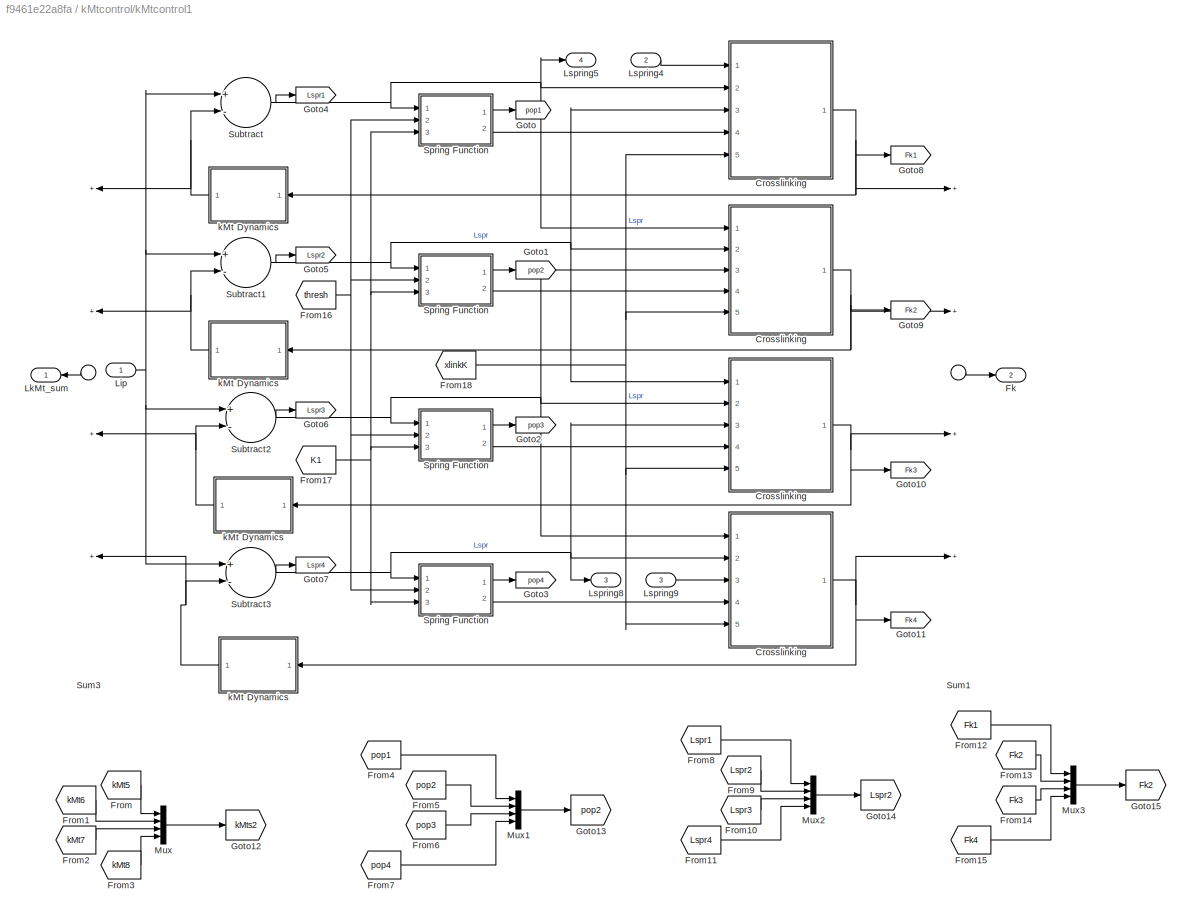
BLOCK [SubSystem] kMtcontrol/kMtcontrol1
  Ports = [3, 4]
  RequestExecContextInheritance = off
  Variant = off
BLOCK [SubSystem] kMtcontrol/kMtcontrol1/ Crosslinking  
  Ports = [5, 1]
  RequestExecContextInheritance = off
  Variant = off
BLOCK [Inport] kMtcontrol/kMtcontrol1/ Crosslinking  /F
  IconDisplay = Port number
  Port = 4
BLOCK [Outport] kMtcontrol/kMtcontrol1/ Crosslinking  /Fk crosslink
  IconDisplay = Port number
BLOCK [Product] kMtcontrol/kMtcontrol1/ Crosslinking  /Product
  InputSameDT = off
  OutDataTypeStr = Inherit: Inherit via internal rule
  Ports = [2, 1]
  SaturateOnIntegerOverflow = off
BLOCK [Product] kMtcontrol/kMtcontrol1/ Crosslinking  /Product1
  InputSameDT = off
  OutDataTypeStr = Inherit: Inherit via internal rule
  Ports = [2, 1]
  SaturateOnIntegerOverflow = off
BLOCK [Inport] kMtcontrol/kMtcontrol1/ Crosslinking  /Spring +1
  IconDisplay = Port number
  Port = 3
BLOCK [Inport] kMtcontrol/kMtcontrol1/ Crosslinking  /Spring -1
  IconDisplay = Port number
BLOCK [Inport] kMtcontrol/kMtcontrol1/ Crosslinking  /Spring 0
  IconDisplay = Port number
  Port = 2
BLOCK [Sum] kMtcontrol/kMtcontrol1/ Crosslinking  /Subtract1
  InputSameDT = off
  Inputs = +-
  OutDataTypeStr = Inherit: Inherit via internal rule
  Ports = [2, 1]
  SaturateOnIntegerOverflow = off
BLOCK [Sum] kMtcontrol/kMtcontrol1/ Crosslinking  /Subtract3
  InputSameDT = off
  Inputs = -++
  OutDataTypeStr = Inherit: Inherit via internal rule
  Ports = [3, 1]
  SaturateOnIntegerOverflow = off
BLOCK [Sum] kMtcontrol/kMtcontrol1/ Crosslinking  /Subtract4
  InputSameDT = off
  Inputs = +-
  OutDataTypeStr = Inherit: Inherit via internal rule
  Ports = [2, 1]
  SaturateOnIntegerOverflow = off
BLOCK [Inport] kMtcontrol/kMtcontrol1/ Crosslinking  /xlink K
  IconDisplay = Port number
  Port = 5
BLOCK [SubSystem] kMtcontrol/kMtcontrol1/ Spring Function
  ErrorFcn = Stateflow.Translate.translate
  PermitHierarchicalResolution = ExplicitOnly
  Ports = [3, 2]
  RequestExecContextInheritance = off
  SFBlockType = MATLAB Function
  TreatAsAtomicUnit = on
  Variant = off
BLOCK [SubSystem] kMtcontrol/kMtcontrol1/ Spring Function 
  ErrorFcn = Stateflow.Translate.translate
  PermitHierarchicalResolution = ExplicitOnly
  Ports = [3, 2]
  RequestExecContextInheritance = off
  SFBlockType = MATLAB Function
  TreatAsAtomicUnit = on
  Variant = off
BLOCK [Demux] kMtcontrol/kMtcontrol1/ Spring Function / Demux 
  Outputs = 1
  Ports = [1, 1]
BLOCK [S-Function] kMtcontrol/kMtcontrol1/ Spring Function / SFunction 
  EnableBusSupport = off
  FunctionName = sf_sfun
  PortCounts = [3 3]
  Ports = [3, 3]
  SFunctionDeploymentMode = off
  Tag = Stateflow S-Function Coupled_Model_crosslinked_intext 3
BLOCK [Terminator] kMtcontrol/kMtcontrol1/ Spring Function / Terminator 
BLOCK [Outport] kMtcontrol/kMtcontrol1/ Spring Function /F
  IconDisplay = Port number
  Port = 2
BLOCK [Inport] kMtcontrol/kMtcontrol1/ Spring Function /K1
  IconDisplay = Port number
  Port = 3
BLOCK [Inport] kMtcontrol/kMtcontrol1/ Spring Function /Lspr
  IconDisplay = Port number
BLOCK [Outport] kMtcontrol/kMtcontrol1/ Spring Function /popped
  IconDisplay = Port number
BLOCK [Inport] kMtcontrol/kMtcontrol1/ Spring Function /thresh
  IconDisplay = Port number
  Port = 2
BLOCK [Demux] kMtcontrol/kMtcontrol1/ Spring Function/ Demux 
  Outputs = 1
  Ports = [1, 1]
BLOCK [S-Function] kMtcontrol/kMtcontrol1/ Spring Function/ SFunction 
  EnableBusSupport = off
  FunctionName = sf_sfun
  PortCounts = [3 3]
  Ports = [3, 3]
  SFunctionDeploymentMode = off
  Tag = Stateflow S-Function Coupled_Model_crosslinked_intext 1
BLOCK [Terminator] kMtcontrol/kMtcontrol1/ Spring Function/ Terminator 
BLOCK [Outport] kMtcontrol/kMtcontrol1/ Spring Function/F
  IconDisplay = Port number
  Port = 2
BLOCK [Inport] kMtcontrol/kMtcontrol1/ Spring Function/K1
  IconDisplay = Port number
  Port = 3
BLOCK [Inport] kMtcontrol/kMtcontrol1/ Spring Function/Lspr
  IconDisplay = Port number
BLOCK [Outport] kMtcontrol/kMtcontrol1/ Spring Function/popped
  IconDisplay = Port number
BLOCK [Inport] kMtcontrol/kMtcontrol1/ Spring Function/thresh
  IconDisplay = Port number
  Port = 2
BLOCK [SubSystem] kMtcontrol/kMtcontrol1/Crosslinking 
  Ports = [5, 1]
  RequestExecContextInheritance = off
  Variant = off
BLOCK [SubSystem] kMtcontrol/kMtcontrol1/Crosslinking  
  Ports = [5, 1]
  RequestExecContextInheritance = off
  Variant = off
BLOCK [SubSystem] kMtcontrol/kMtcontrol1/Crosslinking   
  Ports = [5, 1]
  RequestExecContextInheritance = off
  Variant = off
BLOCK [Inport] kMtcontrol/kMtcontrol1/Crosslinking   /F
  IconDisplay = Port number
  Port = 4
BLOCK [Outport] kMtcontrol/kMtcontrol1/Crosslinking   /Fk crosslink
  IconDisplay = Port number
BLOCK [Product] kMtcontrol/kMtcontrol1/Crosslinking   /Product
  InputSameDT = off
  OutDataTypeStr = Inherit: Inherit via internal rule
  Ports = [2, 1]
  SaturateOnIntegerOverflow = off
BLOCK [Product] kMtcontrol/kMtcontrol1/Crosslinking   /Product1
  InputSameDT = off
  OutDataTypeStr = Inherit: Inherit via internal rule
  Ports = [2, 1]
  SaturateOnIntegerOverflow = off
BLOCK [Inport] kMtcontrol/kMtcontrol1/Crosslinking   /Spring +1
  IconDisplay = Port number
  Port = 3
BLOCK [Inport] kMtcontrol/kMtcontrol1/Crosslinking   /Spring -1
  IconDisplay = Port number
BLOCK [Inport] kMtcontrol/kMtcontrol1/Crosslinking   /Spring 0
  IconDisplay = Port number
  Port = 2
BLOCK [Sum] kMtcontrol/kMtcontrol1/Crosslinking   /Subtract1
  InputSameDT = off
  Inputs = +-
  OutDataTypeStr = Inherit: Inherit via internal rule
  Ports = [2, 1]
  SaturateOnIntegerOverflow = off
BLOCK [Sum] kMtcontrol/kMtcontrol1/Crosslinking   /Subtract3
  InputSameDT = off
  Inputs = -++
  OutDataTypeStr = Inherit: Inherit via internal rule
  Ports = [3, 1]
  SaturateOnIntegerOverflow = off
BLOCK [Sum] kMtcontrol/kMtcontrol1/Crosslinking   /Subtract4
  InputSameDT = off
  Inputs = +-
  OutDataTypeStr = Inherit: Inherit via internal rule
  Ports = [2, 1]
  SaturateOnIntegerOverflow = off
BLOCK [Inport] kMtcontrol/kMtcontrol1/Crosslinking   /xlink K
  IconDisplay = Port number
  Port = 5
BLOCK [Inport] kMtcontrol/kMtcontrol1/Crosslinking  /F
  IconDisplay = Port number
  Port = 4
BLOCK [Outport] kMtcontrol/kMtcontrol1/Crosslinking  /Fk crosslink
  IconDisplay = Port number
BLOCK [Product] kMtcontrol/kMtcontrol1/Crosslinking  /Product
  InputSameDT = off
  OutDataTypeStr = Inherit: Inherit via internal rule
  Ports = [2, 1]
  SaturateOnIntegerOverflow = off
BLOCK [Product] kMtcontrol/kMtcontrol1/Crosslinking  /Product1
  InputSameDT = off
  OutDataTypeStr = Inherit: Inherit via internal rule
  Ports = [2, 1]
  SaturateOnIntegerOverflow = off
BLOCK [Inport] kMtcontrol/kMtcontrol1/Crosslinking  /Spring +1
  IconDisplay = Port number
  Port = 3
BLOCK [Inport] kMtcontrol/kMtcontrol1/Crosslinking  /Spring -1
  IconDisplay = Port number
BLOCK [Inport] kMtcontrol/kMtcontrol1/Crosslinking  /Spring 0
  IconDisplay = Port number
  Port = 2
BLOCK [Sum] kMtcontrol/kMtcontrol1/Crosslinking  /Subtract1
  InputSameDT = off
  Inputs = +-
  OutDataTypeStr = Inherit: Inherit via internal rule
  Ports = [2, 1]
  SaturateOnIntegerOverflow = off
BLOCK [Sum] kMtcontrol/kMtcontrol1/Crosslinking  /Subtract3
  InputSameDT = off
  Inputs = -++
  OutDataTypeStr = Inherit: Inherit via internal rule
  Ports = [3, 1]
  SaturateOnIntegerOverflow = off
BLOCK [Sum] kMtcontrol/kMtcontrol1/Crosslinking  /Subtract4
  InputSameDT = off
  Inputs = +-
  OutDataTypeStr = Inherit: Inherit via internal rule
  Ports = [2, 1]
  SaturateOnIntegerOverflow = off
BLOCK [Inport] kMtcontrol/kMtcontrol1/Crosslinking  /xlink K
  IconDisplay = Port number
  Port = 5
BLOCK [Inport] kMtcontrol/kMtcontrol1/Crosslinking /F
  IconDisplay = Port number
  Port = 4
BLOCK [Outport] kMtcontrol/kMtcontrol1/Crosslinking /Fk crosslink
  IconDisplay = Port number
BLOCK [Product] kMtcontrol/kMtcontrol1/Crosslinking /Product
  InputSameDT = off
  OutDataTypeStr = Inherit: Inherit via internal rule
  Ports = [2, 1]
  SaturateOnIntegerOverflow = off
BLOCK [Product] kMtcontrol/kMtcontrol1/Crosslinking /Product1
  InputSameDT = off
  OutDataTypeStr = Inherit: Inherit via internal rule
  Ports = [2, 1]
  SaturateOnIntegerOverflow = off
BLOCK [Inport] kMtcontrol/kMtcontrol1/Crosslinking /Spring +1
  IconDisplay = Port number
  Port = 3
BLOCK [Inport] kMtcontrol/kMtcontrol1/Crosslinking /Spring -1
  IconDisplay = Port number
BLOCK [Inport] kMtcontrol/kMtcontrol1/Crosslinking /Spring 0
  IconDisplay = Port number
  Port = 2
BLOCK [Sum] kMtcontrol/kMtcontrol1/Crosslinking /Subtract1
  InputSameDT = off
  Inputs = +-
  OutDataTypeStr = Inherit: Inherit via internal rule
  Ports = [2, 1]
  SaturateOnIntegerOverflow = off
BLOCK [Sum] kMtcontrol/kMtcontrol1/Crosslinking /Subtract3
  InputSameDT = off
  Inputs = -++
  OutDataTypeStr = Inherit: Inherit via internal rule
  Ports = [3, 1]
  SaturateOnIntegerOverflow = off
BLOCK [Sum] kMtcontrol/kMtcontrol1/Crosslinking /Subtract4
  InputSameDT = off
  Inputs = +-
  OutDataTypeStr = Inherit: Inherit via internal rule
  Ports = [2, 1]
  SaturateOnIntegerOverflow = off
BLOCK [Inport] kMtcontrol/kMtcontrol1/Crosslinking /xlink K
  IconDisplay = Port number
  Port = 5
BLOCK [Outport] kMtcontrol/kMtcontrol1/Fk
  IconDisplay = Port number
  Port = 2
BLOCK [From] kMtcontrol/kMtcontrol1/From
  GotoTag = kMt5
  TagVisibility = global
BLOCK [From] kMtcontrol/kMtcontrol1/From1
  GotoTag = kMt6
  TagVisibility = global
BLOCK [From] kMtcontrol/kMtcontrol1/From10
  GotoTag = Lspr3
BLOCK [From] kMtcontrol/kMtcontrol1/From11
  GotoTag = Lspr4
BLOCK [From] kMtcontrol/kMtcontrol1/From12
  GotoTag = Fk1
BLOCK [From] kMtcontrol/kMtcontrol1/From13
  GotoTag = Fk2
BLOCK [From] kMtcontrol/kMtcontrol1/From14
  GotoTag = Fk3
BLOCK [From] kMtcontrol/kMtcontrol1/From15
  GotoTag = Fk4
BLOCK [From] kMtcontrol/kMtcontrol1/From16
  GotoTag = thresh
  TagVisibility = global
BLOCK [From] kMtcontrol/kMtcontrol1/From17
  GotoTag = K1
  TagVisibility = global
BLOCK [From] kMtcontrol/kMtcontrol1/From18
  GotoTag = xlinkK
  TagVisibility = global
BLOCK [From] kMtcontrol/kMtcontrol1/From2
  GotoTag = kMt7
  TagVisibility = global
BLOCK [From] kMtcontrol/kMtcontrol1/From3
  GotoTag = kMt8
  TagVisibility = global
BLOCK [From] kMtcontrol/kMtcontrol1/From4
  GotoTag = pop1
BLOCK [From] kMtcontrol/kMtcontrol1/From5
  GotoTag = pop2
BLOCK [From] kMtcontrol/kMtcontrol1/From6
  GotoTag = pop3
BLOCK [From] kMtcontrol/kMtcontrol1/From7
  GotoTag = pop4
BLOCK [From] kMtcontrol/kMtcontrol1/From8
  GotoTag = Lspr1
BLOCK [From] kMtcontrol/kMtcontrol1/From9
  GotoTag = Lspr2
BLOCK [Goto] kMtcontrol/kMtcontrol1/Goto
  GotoTag = pop1
BLOCK [Goto] kMtcontrol/kMtcontrol1/Goto1
  GotoTag = pop2
BLOCK [Goto] kMtcontrol/kMtcontrol1/Goto10
  GotoTag = Fk3
BLOCK [Goto] kMtcontrol/kMtcontrol1/Goto11
  GotoTag = Fk4
BLOCK [Goto] kMtcontrol/kMtcontrol1/Goto12
  GotoTag = kMts2
  TagVisibility = global
BLOCK [Goto] kMtcontrol/kMtcontrol1/Goto13
  GotoTag = pop2
  TagVisibility = global
BLOCK [Goto] kMtcontrol/kMtcontrol1/Goto14
  GotoTag = Lspr2
  TagVisibility = global
BLOCK [Goto] kMtcontrol/kMtcontrol1/Goto15
  GotoTag = Fk2
  TagVisibility = global
BLOCK [Goto] kMtcontrol/kMtcontrol1/Goto2
  GotoTag = pop3
BLOCK [Goto] kMtcontrol/kMtcontrol1/Goto3
  GotoTag = pop4
BLOCK [Goto] kMtcontrol/kMtcontrol1/Goto4
  GotoTag = Lspr1
BLOCK [Goto] kMtcontrol/kMtcontrol1/Goto5
  GotoTag = Lspr2
BLOCK [Goto] kMtcontrol/kMtcontrol1/Goto6
  GotoTag = Lspr3
BLOCK [Goto] kMtcontrol/kMtcontrol1/Goto7
  GotoTag = Lspr4
BLOCK [Goto] kMtcontrol/kMtcontrol1/Goto8
  GotoTag = Fk1
BLOCK [Goto] kMtcontrol/kMtcontrol1/Goto9
  GotoTag = Fk2
BLOCK [Inport] kMtcontrol/kMtcontrol1/Lip 
  IconDisplay = Port number
BLOCK [Outport] kMtcontrol/kMtcontrol1/LkMt_sum
  IconDisplay = Port number
BLOCK [Inport] kMtcontrol/kMtcontrol1/Lspring4
  IconDisplay = Port number
  Port = 2
BLOCK [Outport] kMtcontrol/kMtcontrol1/Lspring5
  IconDisplay = Port number
  Port = 4
BLOCK [Outport] kMtcontrol/kMtcontrol1/Lspring8
  IconDisplay = Port number
  Port = 3
BLOCK [Inport] kMtcontrol/kMtcontrol1/Lspring9
  IconDisplay = Port number
  Port = 3
BLOCK [Mux] kMtcontrol/kMtcontrol1/Mux
  DisplayOption = bar
  Ports = [4, 1]
BLOCK [Mux] kMtcontrol/kMtcontrol1/Mux1
  DisplayOption = bar
  Ports = [4, 1]
BLOCK [Mux] kMtcontrol/kMtcontrol1/Mux2
  DisplayOption = bar
  Ports = [4, 1]
BLOCK [Mux] kMtcontrol/kMtcontrol1/Mux3
  DisplayOption = bar
  Ports = [4, 1]
BLOCK [SubSystem] kMtcontrol/kMtcontrol1/Spring Function
  ErrorFcn = Stateflow.Translate.translate
  PermitHierarchicalResolution = ExplicitOnly
  Ports = [3, 2]
  RequestExecContextInheritance = off
  SFBlockType = MATLAB Function
  TreatAsAtomicUnit = on
  Variant = off
BLOCK [SubSystem] kMtcontrol/kMtcontrol1/Spring Function 
  ErrorFcn = Stateflow.Translate.translate
  PermitHierarchicalResolution = ExplicitOnly
  Ports = [3, 2]
  RequestExecContextInheritance = off
  SFBlockType = MATLAB Function
  TreatAsAtomicUnit = on
  Variant = off
BLOCK [Demux] kMtcontrol/kMtcontrol1/Spring Function / Demux 
  Outputs = 1
  Ports = [1, 1]
BLOCK [S-Function] kMtcontrol/kMtcontrol1/Spring Function / SFunction 
  EnableBusSupport = off
  FunctionName = sf_sfun
  PortCounts = [3 3]
  Ports = [3, 3]
  SFunctionDeploymentMode = off
  Tag = Stateflow S-Function Coupled_Model_crosslinked_intext 5
BLOCK [Terminator] kMtcontrol/kMtcontrol1/Spring Function / Terminator 
BLOCK [Outport] kMtcontrol/kMtcontrol1/Spring Function /F
  IconDisplay = Port number
  Port = 2
BLOCK [Inport] kMtcontrol/kMtcontrol1/Spring Function /K1
  IconDisplay = Port number
  Port = 3
BLOCK [Inport] kMtcontrol/kMtcontrol1/Spring Function /Lspr
  IconDisplay = Port number
BLOCK [Outport] kMtcontrol/kMtcontrol1/Spring Function /popped
  IconDisplay = Port number
BLOCK [Inport] kMtcontrol/kMtcontrol1/Spring Function /thresh
  IconDisplay = Port number
  Port = 2
BLOCK [Demux] kMtcontrol/kMtcontrol1/Spring Function/ Demux 
  Outputs = 1
  Ports = [1, 1]
BLOCK [S-Function] kMtcontrol/kMtcontrol1/Spring Function/ SFunction 
  EnableBusSupport = off
  FunctionName = sf_sfun
  PortCounts = [3 3]
  Ports = [3, 3]
  SFunctionDeploymentMode = off
  Tag = Stateflow S-Function Coupled_Model_crosslinked_intext 4
BLOCK [Terminator] kMtcontrol/kMtcontrol1/Spring Function/ Terminator 
BLOCK [Outport] kMtcontrol/kMtcontrol1/Spring Function/F
  IconDisplay = Port number
  Port = 2
BLOCK [Inport] kMtcontrol/kMtcontrol1/Spring Function/K1
  IconDisplay = Port number
  Port = 3
BLOCK [Inport] kMtcontrol/kMtcontrol1/Spring Function/Lspr
  IconDisplay = Port number
BLOCK [Outport] kMtcontrol/kMtcontrol1/Spring Function/popped
  IconDisplay = Port number
BLOCK [Inport] kMtcontrol/kMtcontrol1/Spring Function/thresh
  IconDisplay = Port number
  Port = 2
BLOCK [Sum] kMtcontrol/kMtcontrol1/Subtract
  InputSameDT = off
  Inputs = +-
  OutDataTypeStr = Inherit: Inherit via internal rule
  Ports = [2, 1]
  SaturateOnIntegerOverflow = off
BLOCK [Sum] kMtcontrol/kMtcontrol1/Subtract1
  InputSameDT = off
  Inputs = +-
  OutDataTypeStr = Inherit: Inherit via internal rule
  Ports = [2, 1]
  SaturateOnIntegerOverflow = off
BLOCK [Sum] kMtcontrol/kMtcontrol1/Subtract2
  InputSameDT = off
  Inputs = +-
  OutDataTypeStr = Inherit: Inherit via internal rule
  Ports = [2, 1]
  SaturateOnIntegerOverflow = off
BLOCK [Sum] kMtcontrol/kMtcontrol1/Subtract3
  InputSameDT = off
  Inputs = +-
  OutDataTypeStr = Inherit: Inherit via internal rule
  Ports = [2, 1]
  SaturateOnIntegerOverflow = off
BLOCK [Sum] kMtcontrol/kMtcontrol1/Sum1
  InputSameDT = off
  Inputs = ++++
  OutDataTypeStr = Inherit: Inherit via internal rule
  Ports = [4, 1]
  SaturateOnIntegerOverflow = off
BLOCK [Sum] kMtcontrol/kMtcontrol1/Sum3
  InputSameDT = off
  Inputs = ++++
  OutDataTypeStr = Inherit: Inherit via internal rule
  Ports = [4, 1]
  SaturateOnIntegerOverflow = off
BLOCK [SubSystem] kMtcontrol/kMtcontrol1/kMt  Dynamics
  Ports = [1, 1]
  RequestExecContextInheritance = off
  Variant = off
BLOCK [Sum] kMtcontrol/kMtcontrol1/kMt  Dynamics/Add
  InputSameDT = off
  Inputs = -+
  OutDataTypeStr = Inherit: Inherit via internal rule
  Ports = [2, 1]
  SaturateOnIntegerOverflow = off
BLOCK [Sum] kMtcontrol/kMtcontrol1/kMt  Dynamics/Add1
  InputSameDT = off
  Inputs = -+
  OutDataTypeStr = Inherit: Inherit via internal rule
  Ports = [2, 1]
  SaturateOnIntegerOverflow = off
BLOCK [Sum] kMtcontrol/kMtcontrol1/kMt  Dynamics/Add2
  InputSameDT = off
  OutDataTypeStr = Inherit: Inherit via internal rule
  Ports = [2, 1]
  SaturateOnIntegerOverflow = off
BLOCK [DiscreteIntegrator] kMtcontrol/kMtcontrol1/kMt  Dynamics/Discrete-Time Integrator
  ICPrevOutput = DiscIntNeverNeededParam
  ICPrevScaledInput = DiscIntNeverNeededParam
  InitialConditionSource = external
  Ports = [2, 1]
BLOCK [DiscreteIntegrator] kMtcontrol/kMtcontrol1/kMt  Dynamics/Discrete-Time Integrator1
  ICPrevOutput = DiscIntNeverNeededParam
  ICPrevScaledInput = DiscIntNeverNeededParam
  InitialConditionSource = external
  Ports = [2, 1]
BLOCK [Inport] kMtcontrol/kMtcontrol1/kMt  Dynamics/Fk
  IconDisplay = Port number
BLOCK [From] kMtcontrol/kMtcontrol1/kMt  Dynamics/From
  GotoTag = LkMt
  TagVisibility = global
BLOCK [From] kMtcontrol/kMtcontrol1/kMt  Dynamics/From1
  GotoTag = LkMt
  TagVisibility = global
BLOCK [From] kMtcontrol/kMtcontrol1/kMt  Dynamics/From2
  GotoTag = Rgro
  TagVisibility = global
BLOCK [From] kMtcontrol/kMtcontrol1/kMt  Dynamics/From3
  GotoTag = Rshr
  TagVisibility = global
BLOCK [Goto] kMtcontrol/kMtcontrol1/kMt  Dynamics/Goto
  GotoTag = kMt7
  TagVisibility = global
BLOCK [Outport] kMtcontrol/kMtcontrol1/kMt  Dynamics/LkMt
  IconDisplay = Port number
BLOCK [Mux] kMtcontrol/kMtcontrol1/kMt  Dynamics/Mux
  DisplayOption = bar
  Inputs = 2
  Ports = [2, 1]
BLOCK [Product] kMtcontrol/kMtcontrol1/kMt  Dynamics/Product1
  InputSameDT = off
  OutDataTypeStr = Inherit: Inherit via internal rule
  Ports = [2, 1]
  SaturateOnIntegerOverflow = off
BLOCK [Product] kMtcontrol/kMtcontrol1/kMt  Dynamics/Product2
  InputSameDT = off
  OutDataTypeStr = Inherit: Inherit via internal rule
  Ports = [2, 1]
  SaturateOnIntegerOverflow = off
BLOCK [Product] kMtcontrol/kMtcontrol1/kMt  Dynamics/Product3
  InputSameDT = off
  OutDataTypeStr = Inherit: Inherit via internal rule
  Ports = [2, 1]
  SaturateOnIntegerOverflow = off
BLOCK [Product] kMtcontrol/kMtcontrol1/kMt  Dynamics/Product4
  InputSameDT = off
  OutDataTypeStr = Inherit: Inherit via internal rule
  Ports = [2, 1]
  SaturateOnIntegerOverflow = off
BLOCK [SubSystem] kMtcontrol/kMtcontrol1/kMt  Dynamics/kMtState
  Ports = [3, 4]
  RequestExecContextInheritance = off
  Variant = off
BLOCK [Outport] kMtcontrol/kMtcontrol1/kMt  Dynamics/kMtState/CLeft
  IconDisplay = Port number
BLOCK [Outport] kMtcontrol/kMtcontrol1/kMt  Dynamics/kMtState/CRight
  IconDisplay = Port number
  Port = 3
BLOCK [Inport] kMtcontrol/kMtcontrol1/kMt  Dynamics/kMtState/Fspr
  IconDisplay = Port number
  Port = 2
BLOCK [SubSystem] kMtcontrol/kMtcontrol1/kMt  Dynamics/kMtState/Left Catastophe Function
  ErrorFcn = Stateflow.Translate.translate
  PermitHierarchicalResolution = ExplicitOnly
  Ports = [1, 1]
  RequestExecContextInheritance = off
  SFBlockType = MATLAB Function
  TreatAsAtomicUnit = on
  Variant = off
BLOCK [Demux] kMtcontrol/kMtcontrol1/kMt  Dynamics/kMtState/Left Catastophe Function/ Demux 
  Outputs = 1
  Ports = [1, 1]
BLOCK [S-Function] kMtcontrol/kMtcontrol1/kMt  Dynamics/kMtState/Left Catastophe Function/ SFunction 
  EnableBusSupport = off
  FunctionName = sf_sfun
  PortCounts = [1 2]
  Ports = [1, 2]
  SFunctionDeploymentMode = off
  Tag = Stateflow S-Function Coupled_Model_crosslinked_intext 6
BLOCK [Terminator] kMtcontrol/kMtcontrol1/kMt  Dynamics/kMtState/Left Catastophe Function/ Terminator 
BLOCK [Inport] kMtcontrol/kMtcontrol1/kMt  Dynamics/kMtState/Left Catastophe Function/u
  IconDisplay = Port number
BLOCK [Outport] kMtcontrol/kMtcontrol1/kMt  Dynamics/kMtState/Left Catastophe Function/y
  IconDisplay = Port number
BLOCK [SubSystem] kMtcontrol/kMtcontrol1/kMt  Dynamics/kMtState/Left Rescue Function
  ErrorFcn = Stateflow.Translate.translate
  PermitHierarchicalResolution = ExplicitOnly
  Ports = [2, 1]
  RequestExecContextInheritance = off
  SFBlockType = MATLAB Function
  TreatAsAtomicUnit = on
  Variant = off
BLOCK [Demux] kMtcontrol/kMtcontrol1/kMt  Dynamics/kMtState/Left Rescue Function/ Demux 
  Outputs = 1
  Ports = [1, 1]
BLOCK [S-Function] kMtcontrol/kMtcontrol1/kMt  Dynamics/kMtState/Left Rescue Function/ SFunction 
  EnableBusSupport = off
  FunctionName = sf_sfun
  PortCounts = [2 2]
  Ports = [2, 2]
  SFunctionDeploymentMode = off
  Tag = Stateflow S-Function Coupled_Model_crosslinked_intext 7
BLOCK [Terminator] kMtcontrol/kMtcontrol1/kMt  Dynamics/kMtState/Left Rescue Function/ Terminator 
BLOCK [Inport] kMtcontrol/kMtcontrol1/kMt  Dynamics/kMtState/Left Rescue Function/u
  IconDisplay = Port number
BLOCK [Inport] kMtcontrol/kMtcontrol1/kMt  Dynamics/kMtState/Left Rescue Function/v
  IconDisplay = Port number
  Port = 2
BLOCK [Outport] kMtcontrol/kMtcontrol1/kMt  Dynamics/kMtState/Left Rescue Function/y
  IconDisplay = Port number
BLOCK [Inport] kMtcontrol/kMtcontrol1/kMt  Dynamics/kMtState/LlkMt
  IconDisplay = Port number
BLOCK [Inport] kMtcontrol/kMtcontrol1/kMt  Dynamics/kMtState/LrkMt
  IconDisplay = Port number
  Port = 3
BLOCK [Outport] kMtcontrol/kMtcontrol1/kMt  Dynamics/kMtState/RLeft
  IconDisplay = Port number
  Port = 2
BLOCK [Outport] kMtcontrol/kMtcontrol1/kMt  Dynamics/kMtState/RRight
  IconDisplay = Port number
  Port = 4
BLOCK [RelationalOperator] kMtcontrol/kMtcontrol1/kMt  Dynamics/kMtState/Relational Operator
  InputSameDT = off
  Operator = <=
  OutDataTypeStr = boolean
  Ports = [2, 1]
BLOCK [RelationalOperator] kMtcontrol/kMtcontrol1/kMt  Dynamics/kMtState/Relational Operator1
  InputSameDT = off
  Operator = <=
  OutDataTypeStr = boolean
  Ports = [2, 1]
BLOCK [RelationalOperator] kMtcontrol/kMtcontrol1/kMt  Dynamics/kMtState/Relational Operator2
  InputSameDT = off
  Operator = <=
  OutDataTypeStr = boolean
  Ports = [2, 1]
BLOCK [RelationalOperator] kMtcontrol/kMtcontrol1/kMt  Dynamics/kMtState/Relational Operator3
  InputSameDT = off
  Operator = <=
  OutDataTypeStr = boolean
  Ports = [2, 1]
BLOCK [SubSystem] kMtcontrol/kMtcontrol1/kMt  Dynamics/kMtState/Right Catastophe Function
  ErrorFcn = Stateflow.Translate.translate
  PermitHierarchicalResolution = ExplicitOnly
  Ports = [1, 1]
  RequestExecContextInheritance = off
  SFBlockType = MATLAB Function
  TreatAsAtomicUnit = on
  Variant = off
BLOCK [Demux] kMtcontrol/kMtcontrol1/kMt  Dynamics/kMtState/Right Catastophe Function/ Demux 
  Outputs = 1
  Ports = [1, 1]
BLOCK [S-Function] kMtcontrol/kMtcontrol1/kMt  Dynamics/kMtState/Right Catastophe Function/ SFunction 
  EnableBusSupport = off
  FunctionName = sf_sfun
  PortCounts = [1 2]
  Ports = [1, 2]
  SFunctionDeploymentMode = off
  Tag = Stateflow S-Function Coupled_Model_crosslinked_intext 8
BLOCK [Terminator] kMtcontrol/kMtcontrol1/kMt  Dynamics/kMtState/Right Catastophe Function/ Terminator 
BLOCK [Inport] kMtcontrol/kMtcontrol1/kMt  Dynamics/kMtState/Right Catastophe Function/u
  IconDisplay = Port number
BLOCK [Outport] kMtcontrol/kMtcontrol1/kMt  Dynamics/kMtState/Right Catastophe Function/y
  IconDisplay = Port number
BLOCK [SubSystem] kMtcontrol/kMtcontrol1/kMt  Dynamics/kMtState/Right Rescue Function
  ErrorFcn = Stateflow.Translate.translate
  PermitHierarchicalResolution = ExplicitOnly
  Ports = [2, 1]
  RequestExecContextInheritance = off
  SFBlockType = MATLAB Function
  TreatAsAtomicUnit = on
  Variant = off
BLOCK [Demux] kMtcontrol/kMtcontrol1/kMt  Dynamics/kMtState/Right Rescue Function/ Demux 
  Outputs = 1
  Ports = [1, 1]
BLOCK [S-Function] kMtcontrol/kMtcontrol1/kMt  Dynamics/kMtState/Right Rescue Function/ SFunction 
  EnableBusSupport = off
  FunctionName = sf_sfun
  PortCounts = [2 2]
  Ports = [2, 2]
  SFunctionDeploymentMode = off
  Tag = Stateflow S-Function Coupled_Model_crosslinked_intext 9
BLOCK [Terminator] kMtcontrol/kMtcontrol1/kMt  Dynamics/kMtState/Right Rescue Function/ Terminator 
BLOCK [Inport] kMtcontrol/kMtcontrol1/kMt  Dynamics/kMtState/Right Rescue Function/u
  IconDisplay = Port number
BLOCK [Inport] kMtcontrol/kMtcontrol1/kMt  Dynamics/kMtState/Right Rescue Function/v
  IconDisplay = Port number
  Port = 2
BLOCK [Outport] kMtcontrol/kMtcontrol1/kMt  Dynamics/kMtState/Right Rescue Function/y
  IconDisplay = Port number
BLOCK [Reference] kMtcontrol/kMtcontrol1/kMt  Dynamics/kMtState/S-R Flip-Flop  REF=simulink_extras/Flip Flops/S-R
Flip-Flop
  Ports = [2, 2]
  SourceBlock = simulink_extras/Flip Flops/S-R\nFlip-Flop
  SourceType = SRFlipFlop
BLOCK [Reference] kMtcontrol/kMtcontrol1/kMt  Dynamics/kMtState/S-R Flip-Flop1  REF=simulink_extras/Flip Flops/S-R
Flip-Flop
  Ports = [2, 2]
  SourceBlock = simulink_extras/Flip Flops/S-R\nFlip-Flop
  SourceType = SRFlipFlop
BLOCK [UniformRandomNumber] kMtcontrol/kMtcontrol1/kMt  Dynamics/kMtState/Uniform Random Number
  Minimum = 0
  SampleTime = 1
  Seed = randi(10000)+1
BLOCK [UniformRandomNumber] kMtcontrol/kMtcontrol1/kMt  Dynamics/kMtState/Uniform Random Number1
  Minimum = 0
  SampleTime = 1
  Seed = randi(10000)+2
BLOCK [UniformRandomNumber] kMtcontrol/kMtcontrol1/kMt  Dynamics/kMtState/Uniform Random Number2
  Minimum = 0
  SampleTime = 1
  Seed = randi(10000)+4
BLOCK [UniformRandomNumber] kMtcontrol/kMtcontrol1/kMt  Dynamics/kMtState/Uniform Random Number3
  Minimum = 0
  SampleTime = 1
  Seed = randi(10000)+3
BLOCK [SubSystem] kMtcontrol/kMtcontrol1/kMt Dynamics
  Ports = [1, 1]
  RequestExecContextInheritance = off
  Variant = off
BLOCK [SubSystem] kMtcontrol/kMtcontrol1/kMt Dynamics 
  Ports = [1, 1]
  RequestExecContextInheritance = off
  Variant = off
BLOCK [SubSystem] kMtcontrol/kMtcontrol1/kMt Dynamics  
  Ports = [1, 1]
  RequestExecContextInheritance = off
  Variant = off
BLOCK [Sum] kMtcontrol/kMtcontrol1/kMt Dynamics  /Add
  InputSameDT = off
  Inputs = -+
  OutDataTypeStr = Inherit: Inherit via internal rule
  Ports = [2, 1]
  SaturateOnIntegerOverflow = off
BLOCK [Sum] kMtcontrol/kMtcontrol1/kMt Dynamics  /Add1
  InputSameDT = off
  Inputs = -+
  OutDataTypeStr = Inherit: Inherit via internal rule
  Ports = [2, 1]
  SaturateOnIntegerOverflow = off
BLOCK [Sum] kMtcontrol/kMtcontrol1/kMt Dynamics  /Add2
  InputSameDT = off
  OutDataTypeStr = Inherit: Inherit via internal rule
  Ports = [2, 1]
  SaturateOnIntegerOverflow = off
BLOCK [DiscreteIntegrator] kMtcontrol/kMtcontrol1/kMt Dynamics  /Discrete-Time Integrator
  ICPrevOutput = DiscIntNeverNeededParam
  ICPrevScaledInput = DiscIntNeverNeededParam
  InitialConditionSource = external
  Ports = [2, 1]
BLOCK [DiscreteIntegrator] kMtcontrol/kMtcontrol1/kMt Dynamics  /Discrete-Time Integrator1
  ICPrevOutput = DiscIntNeverNeededParam
  ICPrevScaledInput = DiscIntNeverNeededParam
  InitialConditionSource = external
  Ports = [2, 1]
BLOCK [Inport] kMtcontrol/kMtcontrol1/kMt Dynamics  /Fk
  IconDisplay = Port number
BLOCK [From] kMtcontrol/kMtcontrol1/kMt Dynamics  /From
  GotoTag = LkMt
  TagVisibility = global
BLOCK [From] kMtcontrol/kMtcontrol1/kMt Dynamics  /From1
  GotoTag = LkMt
  TagVisibility = global
BLOCK [From] kMtcontrol/kMtcontrol1/kMt Dynamics  /From2
  GotoTag = Rgro
  TagVisibility = global
BLOCK [From] kMtcontrol/kMtcontrol1/kMt Dynamics  /From3
  GotoTag = Rshr
  TagVisibility = global
BLOCK [Goto] kMtcontrol/kMtcontrol1/kMt Dynamics  /Goto
  GotoTag = kMt8
  TagVisibility = global
BLOCK [Outport] kMtcontrol/kMtcontrol1/kMt Dynamics  /LkMt
  IconDisplay = Port number
BLOCK [Mux] kMtcontrol/kMtcontrol1/kMt Dynamics  /Mux
  DisplayOption = bar
  Inputs = 2
  Ports = [2, 1]
BLOCK [Product] kMtcontrol/kMtcontrol1/kMt Dynamics  /Product1
  InputSameDT = off
  OutDataTypeStr = Inherit: Inherit via internal rule
  Ports = [2, 1]
  SaturateOnIntegerOverflow = off
BLOCK [Product] kMtcontrol/kMtcontrol1/kMt Dynamics  /Product2
  InputSameDT = off
  OutDataTypeStr = Inherit: Inherit via internal rule
  Ports = [2, 1]
  SaturateOnIntegerOverflow = off
BLOCK [Product] kMtcontrol/kMtcontrol1/kMt Dynamics  /Product3
  InputSameDT = off
  OutDataTypeStr = Inherit: Inherit via internal rule
  Ports = [2, 1]
  SaturateOnIntegerOverflow = off
BLOCK [Product] kMtcontrol/kMtcontrol1/kMt Dynamics  /Product4
  InputSameDT = off
  OutDataTypeStr = Inherit: Inherit via internal rule
  Ports = [2, 1]
  SaturateOnIntegerOverflow = off
BLOCK [SubSystem] kMtcontrol/kMtcontrol1/kMt Dynamics  /kMtState
  Ports = [3, 4]
  RequestExecContextInheritance = off
  Variant = off
BLOCK [Outport] kMtcontrol/kMtcontrol1/kMt Dynamics  /kMtState/CLeft
  IconDisplay = Port number
BLOCK [Outport] kMtcontrol/kMtcontrol1/kMt Dynamics  /kMtState/CRight
  IconDisplay = Port number
  Port = 3
BLOCK [Inport] kMtcontrol/kMtcontrol1/kMt Dynamics  /kMtState/Fspr
  IconDisplay = Port number
  Port = 2
BLOCK [SubSystem] kMtcontrol/kMtcontrol1/kMt Dynamics  /kMtState/Left Catastophe Function
  ErrorFcn = Stateflow.Translate.translate
  PermitHierarchicalResolution = ExplicitOnly
  Ports = [1, 1]
  RequestExecContextInheritance = off
  SFBlockType = MATLAB Function
  TreatAsAtomicUnit = on
  Variant = off
BLOCK [Demux] kMtcontrol/kMtcontrol1/kMt Dynamics  /kMtState/Left Catastophe Function/ Demux 
  Outputs = 1
  Ports = [1, 1]
BLOCK [S-Function] kMtcontrol/kMtcontrol1/kMt Dynamics  /kMtState/Left Catastophe Function/ SFunction 
  EnableBusSupport = off
  FunctionName = sf_sfun
  PortCounts = [1 2]
  Ports = [1, 2]
  SFunctionDeploymentMode = off
  Tag = Stateflow S-Function Coupled_Model_crosslinked_intext 18
BLOCK [Terminator] kMtcontrol/kMtcontrol1/kMt Dynamics  /kMtState/Left Catastophe Function/ Terminator 
BLOCK [Inport] kMtcontrol/kMtcontrol1/kMt Dynamics  /kMtState/Left Catastophe Function/u
  IconDisplay = Port number
BLOCK [Outport] kMtcontrol/kMtcontrol1/kMt Dynamics  /kMtState/Left Catastophe Function/y
  IconDisplay = Port number
BLOCK [SubSystem] kMtcontrol/kMtcontrol1/kMt Dynamics  /kMtState/Left Rescue Function
  ErrorFcn = Stateflow.Translate.translate
  PermitHierarchicalResolution = ExplicitOnly
  Ports = [2, 1]
  RequestExecContextInheritance = off
  SFBlockType = MATLAB Function
  TreatAsAtomicUnit = on
  Variant = off
BLOCK [Demux] kMtcontrol/kMtcontrol1/kMt Dynamics  /kMtState/Left Rescue Function/ Demux 
  Outputs = 1
  Ports = [1, 1]
BLOCK [S-Function] kMtcontrol/kMtcontrol1/kMt Dynamics  /kMtState/Left Rescue Function/ SFunction 
  EnableBusSupport = off
  FunctionName = sf_sfun
  PortCounts = [2 2]
  Ports = [2, 2]
  SFunctionDeploymentMode = off
  Tag = Stateflow S-Function Coupled_Model_crosslinked_intext 19
BLOCK [Terminator] kMtcontrol/kMtcontrol1/kMt Dynamics  /kMtState/Left Rescue Function/ Terminator 
BLOCK [Inport] kMtcontrol/kMtcontrol1/kMt Dynamics  /kMtState/Left Rescue Function/u
  IconDisplay = Port number
BLOCK [Inport] kMtcontrol/kMtcontrol1/kMt Dynamics  /kMtState/Left Rescue Function/v
  IconDisplay = Port number
  Port = 2
BLOCK [Outport] kMtcontrol/kMtcontrol1/kMt Dynamics  /kMtState/Left Rescue Function/y
  IconDisplay = Port number
BLOCK [Inport] kMtcontrol/kMtcontrol1/kMt Dynamics  /kMtState/LlkMt
  IconDisplay = Port number
BLOCK [Inport] kMtcontrol/kMtcontrol1/kMt Dynamics  /kMtState/LrkMt
  IconDisplay = Port number
  Port = 3
BLOCK [Outport] kMtcontrol/kMtcontrol1/kMt Dynamics  /kMtState/RLeft
  IconDisplay = Port number
  Port = 2
BLOCK [Outport] kMtcontrol/kMtcontrol1/kMt Dynamics  /kMtState/RRight
  IconDisplay = Port number
  Port = 4
BLOCK [RelationalOperator] kMtcontrol/kMtcontrol1/kMt Dynamics  /kMtState/Relational Operator
  InputSameDT = off
  Operator = <=
  OutDataTypeStr = boolean
  Ports = [2, 1]
BLOCK [RelationalOperator] kMtcontrol/kMtcontrol1/kMt Dynamics  /kMtState/Relational Operator1
  InputSameDT = off
  Operator = <=
  OutDataTypeStr = boolean
  Ports = [2, 1]
BLOCK [RelationalOperator] kMtcontrol/kMtcontrol1/kMt Dynamics  /kMtState/Relational Operator2
  InputSameDT = off
  Operator = <=
  OutDataTypeStr = boolean
  Ports = [2, 1]
BLOCK [RelationalOperator] kMtcontrol/kMtcontrol1/kMt Dynamics  /kMtState/Relational Operator3
  InputSameDT = off
  Operator = <=
  OutDataTypeStr = boolean
  Ports = [2, 1]
BLOCK [SubSystem] kMtcontrol/kMtcontrol1/kMt Dynamics  /kMtState/Right Catastophe Function
  ErrorFcn = Stateflow.Translate.translate
  PermitHierarchicalResolution = ExplicitOnly
  Ports = [1, 1]
  RequestExecContextInheritance = off
  SFBlockType = MATLAB Function
  TreatAsAtomicUnit = on
  Variant = off
BLOCK [Demux] kMtcontrol/kMtcontrol1/kMt Dynamics  /kMtState/Right Catastophe Function/ Demux 
  Outputs = 1
  Ports = [1, 1]
BLOCK [S-Function] kMtcontrol/kMtcontrol1/kMt Dynamics  /kMtState/Right Catastophe Function/ SFunction 
  EnableBusSupport = off
  FunctionName = sf_sfun
  PortCounts = [1 2]
  Ports = [1, 2]
  SFunctionDeploymentMode = off
  Tag = Stateflow S-Function Coupled_Model_crosslinked_intext 20
BLOCK [Terminator] kMtcontrol/kMtcontrol1/kMt Dynamics  /kMtState/Right Catastophe Function/ Terminator 
BLOCK [Inport] kMtcontrol/kMtcontrol1/kMt Dynamics  /kMtState/Right Catastophe Function/u
  IconDisplay = Port number
BLOCK [Outport] kMtcontrol/kMtcontrol1/kMt Dynamics  /kMtState/Right Catastophe Function/y
  IconDisplay = Port number
BLOCK [SubSystem] kMtcontrol/kMtcontrol1/kMt Dynamics  /kMtState/Right Rescue Function
  ErrorFcn = Stateflow.Translate.translate
  PermitHierarchicalResolution = ExplicitOnly
  Ports = [2, 1]
  RequestExecContextInheritance = off
  SFBlockType = MATLAB Function
  TreatAsAtomicUnit = on
  Variant = off
BLOCK [Demux] kMtcontrol/kMtcontrol1/kMt Dynamics  /kMtState/Right Rescue Function/ Demux 
  Outputs = 1
  Ports = [1, 1]
BLOCK [S-Function] kMtcontrol/kMtcontrol1/kMt Dynamics  /kMtState/Right Rescue Function/ SFunction 
  EnableBusSupport = off
  FunctionName = sf_sfun
  PortCounts = [2 2]
  Ports = [2, 2]
  SFunctionDeploymentMode = off
  Tag = Stateflow S-Function Coupled_Model_crosslinked_intext 21
BLOCK [Terminator] kMtcontrol/kMtcontrol1/kMt Dynamics  /kMtState/Right Rescue Function/ Terminator 
BLOCK [Inport] kMtcontrol/kMtcontrol1/kMt Dynamics  /kMtState/Right Rescue Function/u
  IconDisplay = Port number
BLOCK [Inport] kMtcontrol/kMtcontrol1/kMt Dynamics  /kMtState/Right Rescue Function/v
  IconDisplay = Port number
  Port = 2
BLOCK [Outport] kMtcontrol/kMtcontrol1/kMt Dynamics  /kMtState/Right Rescue Function/y
  IconDisplay = Port number
BLOCK [Reference] kMtcontrol/kMtcontrol1/kMt Dynamics  /kMtState/S-R Flip-Flop  REF=simulink_extras/Flip Flops/S-R
Flip-Flop
  Ports = [2, 2]
  SourceBlock = simulink_extras/Flip Flops/S-R\nFlip-Flop
  SourceType = SRFlipFlop
BLOCK [Reference] kMtcontrol/kMtcontrol1/kMt Dynamics  /kMtState/S-R Flip-Flop1  REF=simulink_extras/Flip Flops/S-R
Flip-Flop
  Ports = [2, 2]
  SourceBlock = simulink_extras/Flip Flops/S-R\nFlip-Flop
  SourceType = SRFlipFlop
BLOCK [UniformRandomNumber] kMtcontrol/kMtcontrol1/kMt Dynamics  /kMtState/Uniform Random Number
  Minimum = 0
  SampleTime = 1
  Seed = randi(10000)+1
BLOCK [UniformRandomNumber] kMtcontrol/kMtcontrol1/kMt Dynamics  /kMtState/Uniform Random Number1
  Minimum = 0
  SampleTime = 1
  Seed = randi(10000)+2
BLOCK [UniformRandomNumber] kMtcontrol/kMtcontrol1/kMt Dynamics  /kMtState/Uniform Random Number2
  Minimum = 0
  SampleTime = 1
  Seed = randi(10000)+4
BLOCK [UniformRandomNumber] kMtcontrol/kMtcontrol1/kMt Dynamics  /kMtState/Uniform Random Number3
  Minimum = 0
  SampleTime = 1
  Seed = randi(10000)+3
BLOCK [Sum] kMtcontrol/kMtcontrol1/kMt Dynamics /Add
  InputSameDT = off
  Inputs = -+
  OutDataTypeStr = Inherit: Inherit via internal rule
  Ports = [2, 1]
  SaturateOnIntegerOverflow = off
BLOCK [Sum] kMtcontrol/kMtcontrol1/kMt Dynamics /Add1
  InputSameDT = off
  Inputs = -+
  OutDataTypeStr = Inherit: Inherit via internal rule
  Ports = [2, 1]
  SaturateOnIntegerOverflow = off
BLOCK [Sum] kMtcontrol/kMtcontrol1/kMt Dynamics /Add2
  InputSameDT = off
  OutDataTypeStr = Inherit: Inherit via internal rule
  Ports = [2, 1]
  SaturateOnIntegerOverflow = off
BLOCK [DiscreteIntegrator] kMtcontrol/kMtcontrol1/kMt Dynamics /Discrete-Time Integrator
  ICPrevOutput = DiscIntNeverNeededParam
  ICPrevScaledInput = DiscIntNeverNeededParam
  InitialConditionSource = external
  Ports = [2, 1]
BLOCK [DiscreteIntegrator] kMtcontrol/kMtcontrol1/kMt Dynamics /Discrete-Time Integrator1
  ICPrevOutput = DiscIntNeverNeededParam
  ICPrevScaledInput = DiscIntNeverNeededParam
  InitialConditionSource = external
  Ports = [2, 1]
BLOCK [Inport] kMtcontrol/kMtcontrol1/kMt Dynamics /Fk
  IconDisplay = Port number
BLOCK [From] kMtcontrol/kMtcontrol1/kMt Dynamics /From
  GotoTag = LkMt
  TagVisibility = global
BLOCK [From] kMtcontrol/kMtcontrol1/kMt Dynamics /From1
  GotoTag = LkMt
  TagVisibility = global
BLOCK [From] kMtcontrol/kMtcontrol1/kMt Dynamics /From2
  GotoTag = Rgro
  TagVisibility = global
BLOCK [From] kMtcontrol/kMtcontrol1/kMt Dynamics /From3
  GotoTag = Rshr
  TagVisibility = global
BLOCK [Goto] kMtcontrol/kMtcontrol1/kMt Dynamics /Goto
  GotoTag = kMt6
  TagVisibility = global
BLOCK [Outport] kMtcontrol/kMtcontrol1/kMt Dynamics /LkMt
  IconDisplay = Port number
BLOCK [Mux] kMtcontrol/kMtcontrol1/kMt Dynamics /Mux
  DisplayOption = bar
  Inputs = 2
  Ports = [2, 1]
BLOCK [Product] kMtcontrol/kMtcontrol1/kMt Dynamics /Product1
  InputSameDT = off
  OutDataTypeStr = Inherit: Inherit via internal rule
  Ports = [2, 1]
  SaturateOnIntegerOverflow = off
BLOCK [Product] kMtcontrol/kMtcontrol1/kMt Dynamics /Product2
  InputSameDT = off
  OutDataTypeStr = Inherit: Inherit via internal rule
  Ports = [2, 1]
  SaturateOnIntegerOverflow = off
BLOCK [Product] kMtcontrol/kMtcontrol1/kMt Dynamics /Product3
  InputSameDT = off
  OutDataTypeStr = Inherit: Inherit via internal rule
  Ports = [2, 1]
  SaturateOnIntegerOverflow = off
BLOCK [Product] kMtcontrol/kMtcontrol1/kMt Dynamics /Product4
  InputSameDT = off
  OutDataTypeStr = Inherit: Inherit via internal rule
  Ports = [2, 1]
  SaturateOnIntegerOverflow = off
BLOCK [SubSystem] kMtcontrol/kMtcontrol1/kMt Dynamics /kMtState
  Ports = [3, 4]
  RequestExecContextInheritance = off
  Variant = off
BLOCK [Outport] kMtcontrol/kMtcontrol1/kMt Dynamics /kMtState/CLeft
  IconDisplay = Port number
BLOCK [Outport] kMtcontrol/kMtcontrol1/kMt Dynamics /kMtState/CRight
  IconDisplay = Port number
  Port = 3
BLOCK [Inport] kMtcontrol/kMtcontrol1/kMt Dynamics /kMtState/Fspr
  IconDisplay = Port number
  Port = 2
BLOCK [SubSystem] kMtcontrol/kMtcontrol1/kMt Dynamics /kMtState/Left Catastophe Function
  ErrorFcn = Stateflow.Translate.translate
  PermitHierarchicalResolution = ExplicitOnly
  Ports = [1, 1]
  RequestExecContextInheritance = off
  SFBlockType = MATLAB Function
  TreatAsAtomicUnit = on
  Variant = off
BLOCK [Demux] kMtcontrol/kMtcontrol1/kMt Dynamics /kMtState/Left Catastophe Function/ Demux 
  Outputs = 1
  Ports = [1, 1]
BLOCK [S-Function] kMtcontrol/kMtcontrol1/kMt Dynamics /kMtState/Left Catastophe Function/ SFunction 
  EnableBusSupport = off
  FunctionName = sf_sfun
  PortCounts = [1 2]
  Ports = [1, 2]
  SFunctionDeploymentMode = off
  Tag = Stateflow S-Function Coupled_Model_crosslinked_intext 14
BLOCK [Terminator] kMtcontrol/kMtcontrol1/kMt Dynamics /kMtState/Left Catastophe Function/ Terminator 
BLOCK [Inport] kMtcontrol/kMtcontrol1/kMt Dynamics /kMtState/Left Catastophe Function/u
  IconDisplay = Port number
BLOCK [Outport] kMtcontrol/kMtcontrol1/kMt Dynamics /kMtState/Left Catastophe Function/y
  IconDisplay = Port number
BLOCK [SubSystem] kMtcontrol/kMtcontrol1/kMt Dynamics /kMtState/Left Rescue Function
  ErrorFcn = Stateflow.Translate.translate
  PermitHierarchicalResolution = ExplicitOnly
  Ports = [2, 1]
  RequestExecContextInheritance = off
  SFBlockType = MATLAB Function
  TreatAsAtomicUnit = on
  Variant = off
BLOCK [Demux] kMtcontrol/kMtcontrol1/kMt Dynamics /kMtState/Left Rescue Function/ Demux 
  Outputs = 1
  Ports = [1, 1]
BLOCK [S-Function] kMtcontrol/kMtcontrol1/kMt Dynamics /kMtState/Left Rescue Function/ SFunction 
  EnableBusSupport = off
  FunctionName = sf_sfun
  PortCounts = [2 2]
  Ports = [2, 2]
  SFunctionDeploymentMode = off
  Tag = Stateflow S-Function Coupled_Model_crosslinked_intext 15
BLOCK [Terminator] kMtcontrol/kMtcontrol1/kMt Dynamics /kMtState/Left Rescue Function/ Terminator 
BLOCK [Inport] kMtcontrol/kMtcontrol1/kMt Dynamics /kMtState/Left Rescue Function/u
  IconDisplay = Port number
BLOCK [Inport] kMtcontrol/kMtcontrol1/kMt Dynamics /kMtState/Left Rescue Function/v
  IconDisplay = Port number
  Port = 2
BLOCK [Outport] kMtcontrol/kMtcontrol1/kMt Dynamics /kMtState/Left Rescue Function/y
  IconDisplay = Port number
BLOCK [Inport] kMtcontrol/kMtcontrol1/kMt Dynamics /kMtState/LlkMt
  IconDisplay = Port number
BLOCK [Inport] kMtcontrol/kMtcontrol1/kMt Dynamics /kMtState/LrkMt
  IconDisplay = Port number
  Port = 3
BLOCK [Outport] kMtcontrol/kMtcontrol1/kMt Dynamics /kMtState/RLeft
  IconDisplay = Port number
  Port = 2
BLOCK [Outport] kMtcontrol/kMtcontrol1/kMt Dynamics /kMtState/RRight
  IconDisplay = Port number
  Port = 4
BLOCK [RelationalOperator] kMtcontrol/kMtcontrol1/kMt Dynamics /kMtState/Relational Operator
  InputSameDT = off
  Operator = <=
  OutDataTypeStr = boolean
  Ports = [2, 1]
BLOCK [RelationalOperator] kMtcontrol/kMtcontrol1/kMt Dynamics /kMtState/Relational Operator1
  InputSameDT = off
  Operator = <=
  OutDataTypeStr = boolean
  Ports = [2, 1]
BLOCK [RelationalOperator] kMtcontrol/kMtcontrol1/kMt Dynamics /kMtState/Relational Operator2
  InputSameDT = off
  Operator = <=
  OutDataTypeStr = boolean
  Ports = [2, 1]
BLOCK [RelationalOperator] kMtcontrol/kMtcontrol1/kMt Dynamics /kMtState/Relational Operator3
  InputSameDT = off
  Operator = <=
  OutDataTypeStr = boolean
  Ports = [2, 1]
BLOCK [SubSystem] kMtcontrol/kMtcontrol1/kMt Dynamics /kMtState/Right Catastophe Function
  ErrorFcn = Stateflow.Translate.translate
  PermitHierarchicalResolution = ExplicitOnly
  Ports = [1, 1]
  RequestExecContextInheritance = off
  SFBlockType = MATLAB Function
  TreatAsAtomicUnit = on
  Variant = off
BLOCK [Demux] kMtcontrol/kMtcontrol1/kMt Dynamics /kMtState/Right Catastophe Function/ Demux 
  Outputs = 1
  Ports = [1, 1]
BLOCK [S-Function] kMtcontrol/kMtcontrol1/kMt Dynamics /kMtState/Right Catastophe Function/ SFunction 
  EnableBusSupport = off
  FunctionName = sf_sfun
  PortCounts = [1 2]
  Ports = [1, 2]
  SFunctionDeploymentMode = off
  Tag = Stateflow S-Function Coupled_Model_crosslinked_intext 16
BLOCK [Terminator] kMtcontrol/kMtcontrol1/kMt Dynamics /kMtState/Right Catastophe Function/ Terminator 
BLOCK [Inport] kMtcontrol/kMtcontrol1/kMt Dynamics /kMtState/Right Catastophe Function/u
  IconDisplay = Port number
BLOCK [Outport] kMtcontrol/kMtcontrol1/kMt Dynamics /kMtState/Right Catastophe Function/y
  IconDisplay = Port number
BLOCK [SubSystem] kMtcontrol/kMtcontrol1/kMt Dynamics /kMtState/Right Rescue Function
  ErrorFcn = Stateflow.Translate.translate
  PermitHierarchicalResolution = ExplicitOnly
  Ports = [2, 1]
  RequestExecContextInheritance = off
  SFBlockType = MATLAB Function
  TreatAsAtomicUnit = on
  Variant = off
BLOCK [Demux] kMtcontrol/kMtcontrol1/kMt Dynamics /kMtState/Right Rescue Function/ Demux 
  Outputs = 1
  Ports = [1, 1]
BLOCK [S-Function] kMtcontrol/kMtcontrol1/kMt Dynamics /kMtState/Right Rescue Function/ SFunction 
  EnableBusSupport = off
  FunctionName = sf_sfun
  PortCounts = [2 2]
  Ports = [2, 2]
  SFunctionDeploymentMode = off
  Tag = Stateflow S-Function Coupled_Model_crosslinked_intext 17
BLOCK [Terminator] kMtcontrol/kMtcontrol1/kMt Dynamics /kMtState/Right Rescue Function/ Terminator 
BLOCK [Inport] kMtcontrol/kMtcontrol1/kMt Dynamics /kMtState/Right Rescue Function/u
  IconDisplay = Port number
BLOCK [Inport] kMtcontrol/kMtcontrol1/kMt Dynamics /kMtState/Right Rescue Function/v
  IconDisplay = Port number
  Port = 2
BLOCK [Outport] kMtcontrol/kMtcontrol1/kMt Dynamics /kMtState/Right Rescue Function/y
  IconDisplay = Port number
BLOCK [Reference] kMtcontrol/kMtcontrol1/kMt Dynamics /kMtState/S-R Flip-Flop  REF=simulink_extras/Flip Flops/S-R
Flip-Flop
  Ports = [2, 2]
  SourceBlock = simulink_extras/Flip Flops/S-R\nFlip-Flop
  SourceType = SRFlipFlop
BLOCK [Reference] kMtcontrol/kMtcontrol1/kMt Dynamics /kMtState/S-R Flip-Flop1  REF=simulink_extras/Flip Flops/S-R
Flip-Flop
  Ports = [2, 2]
  SourceBlock = simulink_extras/Flip Flops/S-R\nFlip-Flop
  SourceType = SRFlipFlop
BLOCK [UniformRandomNumber] kMtcontrol/kMtcontrol1/kMt Dynamics /kMtState/Uniform Random Number
  Minimum = 0
  SampleTime = 1
  Seed = randi(10000)+1
BLOCK [UniformRandomNumber] kMtcontrol/kMtcontrol1/kMt Dynamics /kMtState/Uniform Random Number1
  Minimum = 0
  SampleTime = 1
  Seed = randi(10000)+2
BLOCK [UniformRandomNumber] kMtcontrol/kMtcontrol1/kMt Dynamics /kMtState/Uniform Random Number2
  Minimum = 0
  SampleTime = 1
  Seed = randi(10000)+4
BLOCK [UniformRandomNumber] kMtcontrol/kMtcontrol1/kMt Dynamics /kMtState/Uniform Random Number3
  Minimum = 0
  SampleTime = 1
  Seed = randi(10000)+3
BLOCK [Sum] kMtcontrol/kMtcontrol1/kMt Dynamics/Add
  InputSameDT = off
  Inputs = -+
  OutDataTypeStr = Inherit: Inherit via internal rule
  Ports = [2, 1]
  SaturateOnIntegerOverflow = off
BLOCK [Sum] kMtcontrol/kMtcontrol1/kMt Dynamics/Add1
  InputSameDT = off
  Inputs = -+
  OutDataTypeStr = Inherit: Inherit via internal rule
  Ports = [2, 1]
  SaturateOnIntegerOverflow = off
BLOCK [Sum] kMtcontrol/kMtcontrol1/kMt Dynamics/Add2
  InputSameDT = off
  OutDataTypeStr = Inherit: Inherit via internal rule
  Ports = [2, 1]
  SaturateOnIntegerOverflow = off
BLOCK [DiscreteIntegrator] kMtcontrol/kMtcontrol1/kMt Dynamics/Discrete-Time Integrator
  ICPrevOutput = DiscIntNeverNeededParam
  ICPrevScaledInput = DiscIntNeverNeededParam
  InitialConditionSource = external
  Ports = [2, 1]
BLOCK [DiscreteIntegrator] kMtcontrol/kMtcontrol1/kMt Dynamics/Discrete-Time Integrator1
  ICPrevOutput = DiscIntNeverNeededParam
  ICPrevScaledInput = DiscIntNeverNeededParam
  InitialConditionSource = external
  Ports = [2, 1]
BLOCK [Inport] kMtcontrol/kMtcontrol1/kMt Dynamics/Fk
  IconDisplay = Port number
BLOCK [From] kMtcontrol/kMtcontrol1/kMt Dynamics/From
  GotoTag = LkMt
  TagVisibility = global
BLOCK [From] kMtcontrol/kMtcontrol1/kMt Dynamics/From1
  GotoTag = LkMt
  TagVisibility = global
BLOCK [From] kMtcontrol/kMtcontrol1/kMt Dynamics/From2
  GotoTag = Rgro
  TagVisibility = global
BLOCK [From] kMtcontrol/kMtcontrol1/kMt Dynamics/From3
  GotoTag = Rshr
  TagVisibility = global
BLOCK [Goto] kMtcontrol/kMtcontrol1/kMt Dynamics/Goto
  GotoTag = kMt5
  TagVisibility = global
BLOCK [Outport] kMtcontrol/kMtcontrol1/kMt Dynamics/LkMt
  IconDisplay = Port number
BLOCK [Mux] kMtcontrol/kMtcontrol1/kMt Dynamics/Mux
  DisplayOption = bar
  Inputs = 2
  Ports = [2, 1]
BLOCK [Product] kMtcontrol/kMtcontrol1/kMt Dynamics/Product1
  InputSameDT = off
  OutDataTypeStr = Inherit: Inherit via internal rule
  Ports = [2, 1]
  SaturateOnIntegerOverflow = off
BLOCK [Product] kMtcontrol/kMtcontrol1/kMt Dynamics/Product2
  InputSameDT = off
  OutDataTypeStr = Inherit: Inherit via internal rule
  Ports = [2, 1]
  SaturateOnIntegerOverflow = off
BLOCK [Product] kMtcontrol/kMtcontrol1/kMt Dynamics/Product3
  InputSameDT = off
  OutDataTypeStr = Inherit: Inherit via internal rule
  Ports = [2, 1]
  SaturateOnIntegerOverflow = off
BLOCK [Product] kMtcontrol/kMtcontrol1/kMt Dynamics/Product4
  InputSameDT = off
  OutDataTypeStr = Inherit: Inherit via internal rule
  Ports = [2, 1]
  SaturateOnIntegerOverflow = off
BLOCK [SubSystem] kMtcontrol/kMtcontrol1/kMt Dynamics/kMtState
  Ports = [3, 4]
  RequestExecContextInheritance = off
  Variant = off
BLOCK [Outport] kMtcontrol/kMtcontrol1/kMt Dynamics/kMtState/CLeft
  IconDisplay = Port number
BLOCK [Outport] kMtcontrol/kMtcontrol1/kMt Dynamics/kMtState/CRight
  IconDisplay = Port number
  Port = 3
BLOCK [Inport] kMtcontrol/kMtcontrol1/kMt Dynamics/kMtState/Fspr
  IconDisplay = Port number
  Port = 2
BLOCK [SubSystem] kMtcontrol/kMtcontrol1/kMt Dynamics/kMtState/Left Catastophe Function
  ErrorFcn = Stateflow.Translate.translate
  PermitHierarchicalResolution = ExplicitOnly
  Ports = [1, 1]
  RequestExecContextInheritance = off
  SFBlockType = MATLAB Function
  TreatAsAtomicUnit = on
  Variant = off
BLOCK [Demux] kMtcontrol/kMtcontrol1/kMt Dynamics/kMtState/Left Catastophe Function/ Demux 
  Outputs = 1
  Ports = [1, 1]
BLOCK [S-Function] kMtcontrol/kMtcontrol1/kMt Dynamics/kMtState/Left Catastophe Function/ SFunction 
  EnableBusSupport = off
  FunctionName = sf_sfun
  PortCounts = [1 2]
  Ports = [1, 2]
  SFunctionDeploymentMode = off
  Tag = Stateflow S-Function Coupled_Model_crosslinked_intext 10
BLOCK [Terminator] kMtcontrol/kMtcontrol1/kMt Dynamics/kMtState/Left Catastophe Function/ Terminator 
BLOCK [Inport] kMtcontrol/kMtcontrol1/kMt Dynamics/kMtState/Left Catastophe Function/u
  IconDisplay = Port number
BLOCK [Outport] kMtcontrol/kMtcontrol1/kMt Dynamics/kMtState/Left Catastophe Function/y
  IconDisplay = Port number
BLOCK [SubSystem] kMtcontrol/kMtcontrol1/kMt Dynamics/kMtState/Left Rescue Function
  ErrorFcn = Stateflow.Translate.translate
  PermitHierarchicalResolution = ExplicitOnly
  Ports = [2, 1]
  RequestExecContextInheritance = off
  SFBlockType = MATLAB Function
  TreatAsAtomicUnit = on
  Variant = off
BLOCK [Demux] kMtcontrol/kMtcontrol1/kMt Dynamics/kMtState/Left Rescue Function/ Demux 
  Outputs = 1
  Ports = [1, 1]
BLOCK [S-Function] kMtcontrol/kMtcontrol1/kMt Dynamics/kMtState/Left Rescue Function/ SFunction 
  EnableBusSupport = off
  FunctionName = sf_sfun
  PortCounts = [2 2]
  Ports = [2, 2]
  SFunctionDeploymentMode = off
  Tag = Stateflow S-Function Coupled_Model_crosslinked_intext 11
BLOCK [Terminator] kMtcontrol/kMtcontrol1/kMt Dynamics/kMtState/Left Rescue Function/ Terminator 
BLOCK [Inport] kMtcontrol/kMtcontrol1/kMt Dynamics/kMtState/Left Rescue Function/u
  IconDisplay = Port number
BLOCK [Inport] kMtcontrol/kMtcontrol1/kMt Dynamics/kMtState/Left Rescue Function/v
  IconDisplay = Port number
  Port = 2
BLOCK [Outport] kMtcontrol/kMtcontrol1/kMt Dynamics/kMtState/Left Rescue Function/y
  IconDisplay = Port number
BLOCK [Inport] kMtcontrol/kMtcontrol1/kMt Dynamics/kMtState/LlkMt
  IconDisplay = Port number
BLOCK [Inport] kMtcontrol/kMtcontrol1/kMt Dynamics/kMtState/LrkMt
  IconDisplay = Port number
  Port = 3
BLOCK [Outport] kMtcontrol/kMtcontrol1/kMt Dynamics/kMtState/RLeft
  IconDisplay = Port number
  Port = 2
BLOCK [Outport] kMtcontrol/kMtcontrol1/kMt Dynamics/kMtState/RRight
  IconDisplay = Port number
  Port = 4
BLOCK [RelationalOperator] kMtcontrol/kMtcontrol1/kMt Dynamics/kMtState/Relational Operator
  InputSameDT = off
  Operator = <=
  OutDataTypeStr = boolean
  Ports = [2, 1]
BLOCK [RelationalOperator] kMtcontrol/kMtcontrol1/kMt Dynamics/kMtState/Relational Operator1
  InputSameDT = off
  Operator = <=
  OutDataTypeStr = boolean
  Ports = [2, 1]
BLOCK [RelationalOperator] kMtcontrol/kMtcontrol1/kMt Dynamics/kMtState/Relational Operator2
  InputSameDT = off
  Operator = <=
  OutDataTypeStr = boolean
  Ports = [2, 1]
BLOCK [RelationalOperator] kMtcontrol/kMtcontrol1/kMt Dynamics/kMtState/Relational Operator3
  InputSameDT = off
  Operator = <=
  OutDataTypeStr = boolean
  Ports = [2, 1]
BLOCK [SubSystem] kMtcontrol/kMtcontrol1/kMt Dynamics/kMtState/Right Catastophe Function
  ErrorFcn = Stateflow.Translate.translate
  PermitHierarchicalResolution = ExplicitOnly
  Ports = [1, 1]
  RequestExecContextInheritance = off
  SFBlockType = MATLAB Function
  TreatAsAtomicUnit = on
  Variant = off
BLOCK [Demux] kMtcontrol/kMtcontrol1/kMt Dynamics/kMtState/Right Catastophe Function/ Demux 
  Outputs = 1
  Ports = [1, 1]
BLOCK [S-Function] kMtcontrol/kMtcontrol1/kMt Dynamics/kMtState/Right Catastophe Function/ SFunction 
  EnableBusSupport = off
  FunctionName = sf_sfun
  PortCounts = [1 2]
  Ports = [1, 2]
  SFunctionDeploymentMode = off
  Tag = Stateflow S-Function Coupled_Model_crosslinked_intext 12
BLOCK [Terminator] kMtcontrol/kMtcontrol1/kMt Dynamics/kMtState/Right Catastophe Function/ Terminator 
BLOCK [Inport] kMtcontrol/kMtcontrol1/kMt Dynamics/kMtState/Right Catastophe Function/u
  IconDisplay = Port number
BLOCK [Outport] kMtcontrol/kMtcontrol1/kMt Dynamics/kMtState/Right Catastophe Function/y
  IconDisplay = Port number
BLOCK [SubSystem] kMtcontrol/kMtcontrol1/kMt Dynamics/kMtState/Right Rescue Function
  ErrorFcn = Stateflow.Translate.translate
  PermitHierarchicalResolution = ExplicitOnly
  Ports = [2, 1]
  RequestExecContextInheritance = off
  SFBlockType = MATLAB Function
  TreatAsAtomicUnit = on
  Variant = off
BLOCK [Demux] kMtcontrol/kMtcontrol1/kMt Dynamics/kMtState/Right Rescue Function/ Demux 
  Outputs = 1
  Ports = [1, 1]
BLOCK [S-Function] kMtcontrol/kMtcontrol1/kMt Dynamics/kMtState/Right Rescue Function/ SFunction 
  EnableBusSupport = off
  FunctionName = sf_sfun
  PortCounts = [2 2]
  Ports = [2, 2]
  SFunctionDeploymentMode = off
  Tag = Stateflow S-Function Coupled_Model_crosslinked_intext 13
BLOCK [Terminator] kMtcontrol/kMtcontrol1/kMt Dynamics/kMtState/Right Rescue Function/ Terminator 
BLOCK [Inport] kMtcontrol/kMtcontrol1/kMt Dynamics/kMtState/Right Rescue Function/u
  IconDisplay = Port number
BLOCK [Inport] kMtcontrol/kMtcontrol1/kMt Dynamics/kMtState/Right Rescue Function/v
  IconDisplay = Port number
  Port = 2
BLOCK [Outport] kMtcontrol/kMtcontrol1/kMt Dynamics/kMtState/Right Rescue Function/y
  IconDisplay = Port number
BLOCK [Reference] kMtcontrol/kMtcontrol1/kMt Dynamics/kMtState/S-R Flip-Flop  REF=simulink_extras/Flip Flops/S-R
Flip-Flop
  Ports = [2, 2]
  SourceBlock = simulink_extras/Flip Flops/S-R\nFlip-Flop
  SourceType = SRFlipFlop
BLOCK [Reference] kMtcontrol/kMtcontrol1/kMt Dynamics/kMtState/S-R Flip-Flop1  REF=simulink_extras/Flip Flops/S-R
Flip-Flop
  Ports = [2, 2]
  SourceBlock = simulink_extras/Flip Flops/S-R\nFlip-Flop
  SourceType = SRFlipFlop
BLOCK [UniformRandomNumber] kMtcontrol/kMtcontrol1/kMt Dynamics/kMtState/Uniform Random Number
  Minimum = 0
  SampleTime = 1
  Seed = randi(10000)+1
BLOCK [UniformRandomNumber] kMtcontrol/kMtcontrol1/kMt Dynamics/kMtState/Uniform Random Number1
  Minimum = 0
  SampleTime = 1
  Seed = randi(10000)+2
BLOCK [UniformRandomNumber] kMtcontrol/kMtcontrol1/kMt Dynamics/kMtState/Uniform Random Number2
  Minimum = 0
  SampleTime = 1
  Seed = randi(10000)+4
BLOCK [UniformRandomNumber] kMtcontrol/kMtcontrol1/kMt Dynamics/kMtState/Uniform Random Number3
  Minimum = 0
  SampleTime = 1
  Seed = randi(10000)+3
BLOCK [SubSystem] kMtcontrol/kMtcontrol2
  Ports = [3, 4]
  RequestExecContextInheritance = off
  Variant = off
BLOCK [SubSystem] kMtcontrol/kMtcontrol2/ Crosslinking  
  Ports = [5, 1]
  RequestExecContextInheritance = off
  Variant = off
BLOCK [Inport] kMtcontrol/kMtcontrol2/ Crosslinking  /F
  IconDisplay = Port number
  Port = 4
BLOCK [Outport] kMtcontrol/kMtcontrol2/ Crosslinking  /Fk crosslink
  IconDisplay = Port number
BLOCK [Product] kMtcontrol/kMtcontrol2/ Crosslinking  /Product
  InputSameDT = off
  OutDataTypeStr = Inherit: Inherit via internal rule
  Ports = [2, 1]
  SaturateOnIntegerOverflow = off
BLOCK [Product] kMtcontrol/kMtcontrol2/ Crosslinking  /Product1
  InputSameDT = off
  OutDataTypeStr = Inherit: Inherit via internal rule
  Ports = [2, 1]
  SaturateOnIntegerOverflow = off
BLOCK [Inport] kMtcontrol/kMtcontrol2/ Crosslinking  /Spring +1
  IconDisplay = Port number
  Port = 3
BLOCK [Inport] kMtcontrol/kMtcontrol2/ Crosslinking  /Spring -1
  IconDisplay = Port number
BLOCK [Inport] kMtcontrol/kMtcontrol2/ Crosslinking  /Spring 0
  IconDisplay = Port number
  Port = 2
BLOCK [Sum] kMtcontrol/kMtcontrol2/ Crosslinking  /Subtract1
  InputSameDT = off
  Inputs = +-
  OutDataTypeStr = Inherit: Inherit via internal rule
  Ports = [2, 1]
  SaturateOnIntegerOverflow = off
BLOCK [Sum] kMtcontrol/kMtcontrol2/ Crosslinking  /Subtract3
  InputSameDT = off
  Inputs = -++
  OutDataTypeStr = Inherit: Inherit via internal rule
  Ports = [3, 1]
  SaturateOnIntegerOverflow = off
BLOCK [Sum] kMtcontrol/kMtcontrol2/ Crosslinking  /Subtract4
  InputSameDT = off
  Inputs = +-
  OutDataTypeStr = Inherit: Inherit via internal rule
  Ports = [2, 1]
  SaturateOnIntegerOverflow = off
BLOCK [Inport] kMtcontrol/kMtcontrol2/ Crosslinking  /xlink K
  IconDisplay = Port number
  Port = 5
BLOCK [SubSystem] kMtcontrol/kMtcontrol2/ Spring Function
  ErrorFcn = Stateflow.Translate.translate
  PermitHierarchicalResolution = ExplicitOnly
  Ports = [3, 2]
  RequestExecContextInheritance = off
  SFBlockType = MATLAB Function
  TreatAsAtomicUnit = on
  Variant = off
BLOCK [SubSystem] kMtcontrol/kMtcontrol2/ Spring Function 
  ErrorFcn = Stateflow.Translate.translate
  PermitHierarchicalResolution = ExplicitOnly
  Ports = [3, 2]
  RequestExecContextInheritance = off
  SFBlockType = MATLAB Function
  TreatAsAtomicUnit = on
  Variant = off
BLOCK [Demux] kMtcontrol/kMtcontrol2/ Spring Function / Demux 
  Outputs = 1
  Ports = [1, 1]
BLOCK [S-Function] kMtcontrol/kMtcontrol2/ Spring Function / SFunction 
  EnableBusSupport = off
  FunctionName = sf_sfun
  PortCounts = [3 3]
  Ports = [3, 3]
  SFunctionDeploymentMode = off
  Tag = Stateflow S-Function Coupled_Model_crosslinked_intext 25
BLOCK [Terminator] kMtcontrol/kMtcontrol2/ Spring Function / Terminator 
BLOCK [Outport] kMtcontrol/kMtcontrol2/ Spring Function /F
  IconDisplay = Port number
  Port = 2
BLOCK [Inport] kMtcontrol/kMtcontrol2/ Spring Function /K1
  IconDisplay = Port number
  Port = 3
BLOCK [Inport] kMtcontrol/kMtcontrol2/ Spring Function /Lspr
  IconDisplay = Port number
BLOCK [Outport] kMtcontrol/kMtcontrol2/ Spring Function /popped
  IconDisplay = Port number
BLOCK [Inport] kMtcontrol/kMtcontrol2/ Spring Function /thresh
  IconDisplay = Port number
  Port = 2
BLOCK [Demux] kMtcontrol/kMtcontrol2/ Spring Function/ Demux 
  Outputs = 1
  Ports = [1, 1]
BLOCK [S-Function] kMtcontrol/kMtcontrol2/ Spring Function/ SFunction 
  EnableBusSupport = off
  FunctionName = sf_sfun
  PortCounts = [3 3]
  Ports = [3, 3]
  SFunctionDeploymentMode = off
  Tag = Stateflow S-Function Coupled_Model_crosslinked_intext 24
BLOCK [Terminator] kMtcontrol/kMtcontrol2/ Spring Function/ Terminator 
BLOCK [Outport] kMtcontrol/kMtcontrol2/ Spring Function/F
  IconDisplay = Port number
  Port = 2
BLOCK [Inport] kMtcontrol/kMtcontrol2/ Spring Function/K1
  IconDisplay = Port number
  Port = 3
BLOCK [Inport] kMtcontrol/kMtcontrol2/ Spring Function/Lspr
  IconDisplay = Port number
BLOCK [Outport] kMtcontrol/kMtcontrol2/ Spring Function/popped
  IconDisplay = Port number
BLOCK [Inport] kMtcontrol/kMtcontrol2/ Spring Function/thresh
  IconDisplay = Port number
  Port = 2
BLOCK [SubSystem] kMtcontrol/kMtcontrol2/Crosslinking 
  Ports = [5, 1]
  RequestExecContextInheritance = off
  Variant = off
BLOCK [SubSystem] kMtcontrol/kMtcontrol2/Crosslinking  
  Ports = [5, 1]
  RequestExecContextInheritance = off
  Variant = off
BLOCK [SubSystem] kMtcontrol/kMtcontrol2/Crosslinking   
  Ports = [5, 1]
  RequestExecContextInheritance = off
  Variant = off
BLOCK [Inport] kMtcontrol/kMtcontrol2/Crosslinking   /F
  IconDisplay = Port number
  Port = 4
BLOCK [Outport] kMtcontrol/kMtcontrol2/Crosslinking   /Fk crosslink
  IconDisplay = Port number
BLOCK [Product] kMtcontrol/kMtcontrol2/Crosslinking   /Product
  InputSameDT = off
  OutDataTypeStr = Inherit: Inherit via internal rule
  Ports = [2, 1]
  SaturateOnIntegerOverflow = off
BLOCK [Product] kMtcontrol/kMtcontrol2/Crosslinking   /Product1
  InputSameDT = off
  OutDataTypeStr = Inherit: Inherit via internal rule
  Ports = [2, 1]
  SaturateOnIntegerOverflow = off
BLOCK [Inport] kMtcontrol/kMtcontrol2/Crosslinking   /Spring +1
  IconDisplay = Port number
  Port = 3
BLOCK [Inport] kMtcontrol/kMtcontrol2/Crosslinking   /Spring -1
  IconDisplay = Port number
BLOCK [Inport] kMtcontrol/kMtcontrol2/Crosslinking   /Spring 0
  IconDisplay = Port number
  Port = 2
BLOCK [Sum] kMtcontrol/kMtcontrol2/Crosslinking   /Subtract1
  InputSameDT = off
  Inputs = +-
  OutDataTypeStr = Inherit: Inherit via internal rule
  Ports = [2, 1]
  SaturateOnIntegerOverflow = off
BLOCK [Sum] kMtcontrol/kMtcontrol2/Crosslinking   /Subtract3
  InputSameDT = off
  Inputs = -++
  OutDataTypeStr = Inherit: Inherit via internal rule
  Ports = [3, 1]
  SaturateOnIntegerOverflow = off
BLOCK [Sum] kMtcontrol/kMtcontrol2/Crosslinking   /Subtract4
  InputSameDT = off
  Inputs = +-
  OutDataTypeStr = Inherit: Inherit via internal rule
  Ports = [2, 1]
  SaturateOnIntegerOverflow = off
BLOCK [Inport] kMtcontrol/kMtcontrol2/Crosslinking   /xlink K
  IconDisplay = Port number
  Port = 5
BLOCK [Inport] kMtcontrol/kMtcontrol2/Crosslinking  /F
  IconDisplay = Port number
  Port = 4
BLOCK [Outport] kMtcontrol/kMtcontrol2/Crosslinking  /Fk crosslink
  IconDisplay = Port number
BLOCK [Product] kMtcontrol/kMtcontrol2/Crosslinking  /Product
  InputSameDT = off
  OutDataTypeStr = Inherit: Inherit via internal rule
  Ports = [2, 1]
  SaturateOnIntegerOverflow = off
BLOCK [Product] kMtcontrol/kMtcontrol2/Crosslinking  /Product1
  InputSameDT = off
  OutDataTypeStr = Inherit: Inherit via internal rule
  Ports = [2, 1]
  SaturateOnIntegerOverflow = off
BLOCK [Inport] kMtcontrol/kMtcontrol2/Crosslinking  /Spring +1
  IconDisplay = Port number
  Port = 3
BLOCK [Inport] kMtcontrol/kMtcontrol2/Crosslinking  /Spring -1
  IconDisplay = Port number
BLOCK [Inport] kMtcontrol/kMtcontrol2/Crosslinking  /Spring 0
  IconDisplay = Port number
  Port = 2
BLOCK [Sum] kMtcontrol/kMtcontrol2/Crosslinking  /Subtract1
  InputSameDT = off
  Inputs = +-
  OutDataTypeStr = Inherit: Inherit via internal rule
  Ports = [2, 1]
  SaturateOnIntegerOverflow = off
BLOCK [Sum] kMtcontrol/kMtcontrol2/Crosslinking  /Subtract3
  InputSameDT = off
  Inputs = -++
  OutDataTypeStr = Inherit: Inherit via internal rule
  Ports = [3, 1]
  SaturateOnIntegerOverflow = off
BLOCK [Sum] kMtcontrol/kMtcontrol2/Crosslinking  /Subtract4
  InputSameDT = off
  Inputs = +-
  OutDataTypeStr = Inherit: Inherit via internal rule
  Ports = [2, 1]
  SaturateOnIntegerOverflow = off
BLOCK [Inport] kMtcontrol/kMtcontrol2/Crosslinking  /xlink K
  IconDisplay = Port number
  Port = 5
BLOCK [Inport] kMtcontrol/kMtcontrol2/Crosslinking /F
  IconDisplay = Port number
  Port = 4
BLOCK [Outport] kMtcontrol/kMtcontrol2/Crosslinking /Fk crosslink
  IconDisplay = Port number
BLOCK [Product] kMtcontrol/kMtcontrol2/Crosslinking /Product
  InputSameDT = off
  OutDataTypeStr = Inherit: Inherit via internal rule
  Ports = [2, 1]
  SaturateOnIntegerOverflow = off
BLOCK [Product] kMtcontrol/kMtcontrol2/Crosslinking /Product1
  InputSameDT = off
  OutDataTypeStr = Inherit: Inherit via internal rule
  Ports = [2, 1]
  SaturateOnIntegerOverflow = off
BLOCK [Inport] kMtcontrol/kMtcontrol2/Crosslinking /Spring +1
  IconDisplay = Port number
  Port = 3
BLOCK [Inport] kMtcontrol/kMtcontrol2/Crosslinking /Spring -1
  IconDisplay = Port number
BLOCK [Inport] kMtcontrol/kMtcontrol2/Crosslinking /Spring 0
  IconDisplay = Port number
  Port = 2
BLOCK [Sum] kMtcontrol/kMtcontrol2/Crosslinking /Subtract1
  InputSameDT = off
  Inputs = +-
  OutDataTypeStr = Inherit: Inherit via internal rule
  Ports = [2, 1]
  SaturateOnIntegerOverflow = off
BLOCK [Sum] kMtcontrol/kMtcontrol2/Crosslinking /Subtract3
  InputSameDT = off
  Inputs = -++
  OutDataTypeStr = Inherit: Inherit via internal rule
  Ports = [3, 1]
  SaturateOnIntegerOverflow = off
BLOCK [Sum] kMtcontrol/kMtcontrol2/Crosslinking /Subtract4
  InputSameDT = off
  Inputs = +-
  OutDataTypeStr = Inherit: Inherit via internal rule
  Ports = [2, 1]
  SaturateOnIntegerOverflow = off
BLOCK [Inport] kMtcontrol/kMtcontrol2/Crosslinking /xlink K
  IconDisplay = Port number
  Port = 5
BLOCK [Outport] kMtcontrol/kMtcontrol2/Fk
  IconDisplay = Port number
  Port = 2
BLOCK [From] kMtcontrol/kMtcontrol2/From
  GotoTag = kMt9
  TagVisibility = global
BLOCK [From] kMtcontrol/kMtcontrol2/From1
  GotoTag = kMt10
  TagVisibility = global
BLOCK [From] kMtcontrol/kMtcontrol2/From10
  GotoTag = Lspr3
BLOCK [From] kMtcontrol/kMtcontrol2/From11
  GotoTag = Lspr4
BLOCK [From] kMtcontrol/kMtcontrol2/From12
  GotoTag = Fk1
BLOCK [From] kMtcontrol/kMtcontrol2/From13
  GotoTag = Fk2
BLOCK [From] kMtcontrol/kMtcontrol2/From14
  GotoTag = Fk3
BLOCK [From] kMtcontrol/kMtcontrol2/From15
  GotoTag = Fk4
BLOCK [From] kMtcontrol/kMtcontrol2/From16
  GotoTag = thresh
  TagVisibility = global
BLOCK [From] kMtcontrol/kMtcontrol2/From17
  GotoTag = K1
  TagVisibility = global
BLOCK [From] kMtcontrol/kMtcontrol2/From18
  GotoTag = xlinkK
  TagVisibility = global
BLOCK [From] kMtcontrol/kMtcontrol2/From2
  GotoTag = kMt11
  TagVisibility = global
BLOCK [From] kMtcontrol/kMtcontrol2/From3
  GotoTag = kMt12
  TagVisibility = global
BLOCK [From] kMtcontrol/kMtcontrol2/From4
  GotoTag = pop1
BLOCK [From] kMtcontrol/kMtcontrol2/From5
  GotoTag = pop2
BLOCK [From] kMtcontrol/kMtcontrol2/From6
  GotoTag = pop3
BLOCK [From] kMtcontrol/kMtcontrol2/From7
  GotoTag = pop4
BLOCK [From] kMtcontrol/kMtcontrol2/From8
  GotoTag = Lspr1
BLOCK [From] kMtcontrol/kMtcontrol2/From9
  GotoTag = Lspr2
BLOCK [Goto] kMtcontrol/kMtcontrol2/Goto
  GotoTag = pop1
BLOCK [Goto] kMtcontrol/kMtcontrol2/Goto1
  GotoTag = pop2
BLOCK [Goto] kMtcontrol/kMtcontrol2/Goto10
  GotoTag = Fk3
BLOCK [Goto] kMtcontrol/kMtcontrol2/Goto11
  GotoTag = Fk4
BLOCK [Goto] kMtcontrol/kMtcontrol2/Goto12
  GotoTag = kMts3
  TagVisibility = global
BLOCK [Goto] kMtcontrol/kMtcontrol2/Goto13
  GotoTag = pop3
  TagVisibility = global
BLOCK [Goto] kMtcontrol/kMtcontrol2/Goto14
  GotoTag = Lspr3
  TagVisibility = global
BLOCK [Goto] kMtcontrol/kMtcontrol2/Goto15
  GotoTag = Fk3
  TagVisibility = global
BLOCK [Goto] kMtcontrol/kMtcontrol2/Goto2
  GotoTag = pop3
BLOCK [Goto] kMtcontrol/kMtcontrol2/Goto3
  GotoTag = pop4
BLOCK [Goto] kMtcontrol/kMtcontrol2/Goto4
  GotoTag = Lspr1
BLOCK [Goto] kMtcontrol/kMtcontrol2/Goto5
  GotoTag = Lspr2
BLOCK [Goto] kMtcontrol/kMtcontrol2/Goto6
  GotoTag = Lspr3
BLOCK [Goto] kMtcontrol/kMtcontrol2/Goto7
  GotoTag = Lspr4
BLOCK [Goto] kMtcontrol/kMtcontrol2/Goto8
  GotoTag = Fk1
BLOCK [Goto] kMtcontrol/kMtcontrol2/Goto9
  GotoTag = Fk2
BLOCK [Inport] kMtcontrol/kMtcontrol2/Lip 
  IconDisplay = Port number
BLOCK [Outport] kMtcontrol/kMtcontrol2/LkMt_sum
  IconDisplay = Port number
BLOCK [Outport] kMtcontrol/kMtcontrol2/Lspring12
  IconDisplay = Port number
  Port = 3
BLOCK [Inport] kMtcontrol/kMtcontrol2/Lspring13
  IconDisplay = Port number
  Port = 3
BLOCK [Inport] kMtcontrol/kMtcontrol2/Lspring8
  IconDisplay = Port number
  Port = 2
BLOCK [Outport] kMtcontrol/kMtcontrol2/Lspring9
  IconDisplay = Port number
  Port = 4
BLOCK [Mux] kMtcontrol/kMtcontrol2/Mux
  DisplayOption = bar
  Ports = [4, 1]
BLOCK [Mux] kMtcontrol/kMtcontrol2/Mux1
  DisplayOption = bar
  Ports = [4, 1]
BLOCK [Mux] kMtcontrol/kMtcontrol2/Mux2
  DisplayOption = bar
  Ports = [4, 1]
BLOCK [Mux] kMtcontrol/kMtcontrol2/Mux3
  DisplayOption = bar
  Ports = [4, 1]
BLOCK [SubSystem] kMtcontrol/kMtcontrol2/Spring Function
  ErrorFcn = Stateflow.Translate.translate
  PermitHierarchicalResolution = ExplicitOnly
  Ports = [3, 2]
  RequestExecContextInheritance = off
  SFBlockType = MATLAB Function
  TreatAsAtomicUnit = on
  Variant = off
BLOCK [SubSystem] kMtcontrol/kMtcontrol2/Spring Function 
  ErrorFcn = Stateflow.Translate.translate
  PermitHierarchicalResolution = ExplicitOnly
  Ports = [3, 2]
  RequestExecContextInheritance = off
  SFBlockType = MATLAB Function
  TreatAsAtomicUnit = on
  Variant = off
BLOCK [Demux] kMtcontrol/kMtcontrol2/Spring Function / Demux 
  Outputs = 1
  Ports = [1, 1]
BLOCK [S-Function] kMtcontrol/kMtcontrol2/Spring Function / SFunction 
  EnableBusSupport = off
  FunctionName = sf_sfun
  PortCounts = [3 3]
  Ports = [3, 3]
  SFunctionDeploymentMode = off
  Tag = Stateflow S-Function Coupled_Model_crosslinked_intext 27
BLOCK [Terminator] kMtcontrol/kMtcontrol2/Spring Function / Terminator 
BLOCK [Outport] kMtcontrol/kMtcontrol2/Spring Function /F
  IconDisplay = Port number
  Port = 2
BLOCK [Inport] kMtcontrol/kMtcontrol2/Spring Function /K1
  IconDisplay = Port number
  Port = 3
BLOCK [Inport] kMtcontrol/kMtcontrol2/Spring Function /Lspr
  IconDisplay = Port number
BLOCK [Outport] kMtcontrol/kMtcontrol2/Spring Function /popped
  IconDisplay = Port number
BLOCK [Inport] kMtcontrol/kMtcontrol2/Spring Function /thresh
  IconDisplay = Port number
  Port = 2
BLOCK [Demux] kMtcontrol/kMtcontrol2/Spring Function/ Demux 
  Outputs = 1
  Ports = [1, 1]
BLOCK [S-Function] kMtcontrol/kMtcontrol2/Spring Function/ SFunction 
  EnableBusSupport = off
  FunctionName = sf_sfun
  PortCounts = [3 3]
  Ports = [3, 3]
  SFunctionDeploymentMode = off
  Tag = Stateflow S-Function Coupled_Model_crosslinked_intext 26
BLOCK [Terminator] kMtcontrol/kMtcontrol2/Spring Function/ Terminator 
BLOCK [Outport] kMtcontrol/kMtcontrol2/Spring Function/F
  IconDisplay = Port number
  Port = 2
BLOCK [Inport] kMtcontrol/kMtcontrol2/Spring Function/K1
  IconDisplay = Port number
  Port = 3
BLOCK [Inport] kMtcontrol/kMtcontrol2/Spring Function/Lspr
  IconDisplay = Port number
BLOCK [Outport] kMtcontrol/kMtcontrol2/Spring Function/popped
  IconDisplay = Port number
BLOCK [Inport] kMtcontrol/kMtcontrol2/Spring Function/thresh
  IconDisplay = Port number
  Port = 2
BLOCK [Sum] kMtcontrol/kMtcontrol2/Subtract
  InputSameDT = off
  Inputs = +-
  OutDataTypeStr = Inherit: Inherit via internal rule
  Ports = [2, 1]
  SaturateOnIntegerOverflow = off
BLOCK [Sum] kMtcontrol/kMtcontrol2/Subtract1
  InputSameDT = off
  Inputs = +-
  OutDataTypeStr = Inherit: Inherit via internal rule
  Ports = [2, 1]
  SaturateOnIntegerOverflow = off
BLOCK [Sum] kMtcontrol/kMtcontrol2/Subtract2
  InputSameDT = off
  Inputs = +-
  OutDataTypeStr = Inherit: Inherit via internal rule
  Ports = [2, 1]
  SaturateOnIntegerOverflow = off
BLOCK [Sum] kMtcontrol/kMtcontrol2/Subtract3
  InputSameDT = off
  Inputs = +-
  OutDataTypeStr = Inherit: Inherit via internal rule
  Ports = [2, 1]
  SaturateOnIntegerOverflow = off
BLOCK [Sum] kMtcontrol/kMtcontrol2/Sum1
  InputSameDT = off
  Inputs = ++++
  OutDataTypeStr = Inherit: Inherit via internal rule
  Ports = [4, 1]
  SaturateOnIntegerOverflow = off
BLOCK [Sum] kMtcontrol/kMtcontrol2/Sum3
  InputSameDT = off
  Inputs = ++++
  OutDataTypeStr = Inherit: Inherit via internal rule
  Ports = [4, 1]
  SaturateOnIntegerOverflow = off
BLOCK [SubSystem] kMtcontrol/kMtcontrol2/kMt  Dynamics
  Ports = [1, 1]
  RequestExecContextInheritance = off
  Variant = off
BLOCK [Sum] kMtcontrol/kMtcontrol2/kMt  Dynamics/Add
  InputSameDT = off
  Inputs = -+
  OutDataTypeStr = Inherit: Inherit via internal rule
  Ports = [2, 1]
  SaturateOnIntegerOverflow = off
BLOCK [Sum] kMtcontrol/kMtcontrol2/kMt  Dynamics/Add1
  InputSameDT = off
  Inputs = -+
  OutDataTypeStr = Inherit: Inherit via internal rule
  Ports = [2, 1]
  SaturateOnIntegerOverflow = off
BLOCK [Sum] kMtcontrol/kMtcontrol2/kMt  Dynamics/Add2
  InputSameDT = off
  OutDataTypeStr = Inherit: Inherit via internal rule
  Ports = [2, 1]
  SaturateOnIntegerOverflow = off
BLOCK [DiscreteIntegrator] kMtcontrol/kMtcontrol2/kMt  Dynamics/Discrete-Time Integrator
  ICPrevOutput = DiscIntNeverNeededParam
  ICPrevScaledInput = DiscIntNeverNeededParam
  InitialConditionSource = external
  Ports = [2, 1]
BLOCK [DiscreteIntegrator] kMtcontrol/kMtcontrol2/kMt  Dynamics/Discrete-Time Integrator1
  ICPrevOutput = DiscIntNeverNeededParam
  ICPrevScaledInput = DiscIntNeverNeededParam
  InitialConditionSource = external
  Ports = [2, 1]
BLOCK [Inport] kMtcontrol/kMtcontrol2/kMt  Dynamics/Fk
  IconDisplay = Port number
BLOCK [From] kMtcontrol/kMtcontrol2/kMt  Dynamics/From
  GotoTag = LkMt
  TagVisibility = global
BLOCK [From] kMtcontrol/kMtcontrol2/kMt  Dynamics/From1
  GotoTag = LkMt
  TagVisibility = global
BLOCK [From] kMtcontrol/kMtcontrol2/kMt  Dynamics/From2
  GotoTag = Rgro
  TagVisibility = global
BLOCK [From] kMtcontrol/kMtcontrol2/kMt  Dynamics/From3
  GotoTag = Rshr
  TagVisibility = global
BLOCK [Goto] kMtcontrol/kMtcontrol2/kMt  Dynamics/Goto
  GotoTag = kMt11
  TagVisibility = global
BLOCK [Outport] kMtcontrol/kMtcontrol2/kMt  Dynamics/LkMt
  IconDisplay = Port number
BLOCK [Mux] kMtcontrol/kMtcontrol2/kMt  Dynamics/Mux
  DisplayOption = bar
  Inputs = 2
  Ports = [2, 1]
BLOCK [Product] kMtcontrol/kMtcontrol2/kMt  Dynamics/Product1
  InputSameDT = off
  OutDataTypeStr = Inherit: Inherit via internal rule
  Ports = [2, 1]
  SaturateOnIntegerOverflow = off
BLOCK [Product] kMtcontrol/kMtcontrol2/kMt  Dynamics/Product2
  InputSameDT = off
  OutDataTypeStr = Inherit: Inherit via internal rule
  Ports = [2, 1]
  SaturateOnIntegerOverflow = off
BLOCK [Product] kMtcontrol/kMtcontrol2/kMt  Dynamics/Product3
  InputSameDT = off
  OutDataTypeStr = Inherit: Inherit via internal rule
  Ports = [2, 1]
  SaturateOnIntegerOverflow = off
BLOCK [Product] kMtcontrol/kMtcontrol2/kMt  Dynamics/Product4
  InputSameDT = off
  OutDataTypeStr = Inherit: Inherit via internal rule
  Ports = [2, 1]
  SaturateOnIntegerOverflow = off
BLOCK [SubSystem] kMtcontrol/kMtcontrol2/kMt  Dynamics/kMtState
  Ports = [3, 4]
  RequestExecContextInheritance = off
  Variant = off
BLOCK [Outport] kMtcontrol/kMtcontrol2/kMt  Dynamics/kMtState/CLeft
  IconDisplay = Port number
BLOCK [Outport] kMtcontrol/kMtcontrol2/kMt  Dynamics/kMtState/CRight
  IconDisplay = Port number
  Port = 3
BLOCK [Inport] kMtcontrol/kMtcontrol2/kMt  Dynamics/kMtState/Fspr
  IconDisplay = Port number
  Port = 2
BLOCK [SubSystem] kMtcontrol/kMtcontrol2/kMt  Dynamics/kMtState/Left Catastophe Function
  ErrorFcn = Stateflow.Translate.translate
  PermitHierarchicalResolution = ExplicitOnly
  Ports = [1, 1]
  RequestExecContextInheritance = off
  SFBlockType = MATLAB Function
  TreatAsAtomicUnit = on
  Variant = off
BLOCK [Demux] kMtcontrol/kMtcontrol2/kMt  Dynamics/kMtState/Left Catastophe Function/ Demux 
  Outputs = 1
  Ports = [1, 1]
BLOCK [S-Function] kMtcontrol/kMtcontrol2/kMt  Dynamics/kMtState/Left Catastophe Function/ SFunction 
  EnableBusSupport = off
  FunctionName = sf_sfun
  PortCounts = [1 2]
  Ports = [1, 2]
  SFunctionDeploymentMode = off
  Tag = Stateflow S-Function Coupled_Model_crosslinked_intext 28
BLOCK [Terminator] kMtcontrol/kMtcontrol2/kMt  Dynamics/kMtState/Left Catastophe Function/ Terminator 
BLOCK [Inport] kMtcontrol/kMtcontrol2/kMt  Dynamics/kMtState/Left Catastophe Function/u
  IconDisplay = Port number
BLOCK [Outport] kMtcontrol/kMtcontrol2/kMt  Dynamics/kMtState/Left Catastophe Function/y
  IconDisplay = Port number
BLOCK [SubSystem] kMtcontrol/kMtcontrol2/kMt  Dynamics/kMtState/Left Rescue Function
  ErrorFcn = Stateflow.Translate.translate
  PermitHierarchicalResolution = ExplicitOnly
  Ports = [2, 1]
  RequestExecContextInheritance = off
  SFBlockType = MATLAB Function
  TreatAsAtomicUnit = on
  Variant = off
BLOCK [Demux] kMtcontrol/kMtcontrol2/kMt  Dynamics/kMtState/Left Rescue Function/ Demux 
  Outputs = 1
  Ports = [1, 1]
BLOCK [S-Function] kMtcontrol/kMtcontrol2/kMt  Dynamics/kMtState/Left Rescue Function/ SFunction 
  EnableBusSupport = off
  FunctionName = sf_sfun
  PortCounts = [2 2]
  Ports = [2, 2]
  SFunctionDeploymentMode = off
  Tag = Stateflow S-Function Coupled_Model_crosslinked_intext 29
BLOCK [Terminator] kMtcontrol/kMtcontrol2/kMt  Dynamics/kMtState/Left Rescue Function/ Terminator 
BLOCK [Inport] kMtcontrol/kMtcontrol2/kMt  Dynamics/kMtState/Left Rescue Function/u
  IconDisplay = Port number
BLOCK [Inport] kMtcontrol/kMtcontrol2/kMt  Dynamics/kMtState/Left Rescue Function/v
  IconDisplay = Port number
  Port = 2
BLOCK [Outport] kMtcontrol/kMtcontrol2/kMt  Dynamics/kMtState/Left Rescue Function/y
  IconDisplay = Port number
BLOCK [Inport] kMtcontrol/kMtcontrol2/kMt  Dynamics/kMtState/LlkMt
  IconDisplay = Port number
BLOCK [Inport] kMtcontrol/kMtcontrol2/kMt  Dynamics/kMtState/LrkMt
  IconDisplay = Port number
  Port = 3
BLOCK [Outport] kMtcontrol/kMtcontrol2/kMt  Dynamics/kMtState/RLeft
  IconDisplay = Port number
  Port = 2
BLOCK [Outport] kMtcontrol/kMtcontrol2/kMt  Dynamics/kMtState/RRight
  IconDisplay = Port number
  Port = 4
BLOCK [RelationalOperator] kMtcontrol/kMtcontrol2/kMt  Dynamics/kMtState/Relational Operator
  InputSameDT = off
  Operator = <=
  OutDataTypeStr = boolean
  Ports = [2, 1]
BLOCK [RelationalOperator] kMtcontrol/kMtcontrol2/kMt  Dynamics/kMtState/Relational Operator1
  InputSameDT = off
  Operator = <=
  OutDataTypeStr = boolean
  Ports = [2, 1]
BLOCK [RelationalOperator] kMtcontrol/kMtcontrol2/kMt  Dynamics/kMtState/Relational Operator2
  InputSameDT = off
  Operator = <=
  OutDataTypeStr = boolean
  Ports = [2, 1]
BLOCK [RelationalOperator] kMtcontrol/kMtcontrol2/kMt  Dynamics/kMtState/Relational Operator3
  InputSameDT = off
  Operator = <=
  OutDataTypeStr = boolean
  Ports = [2, 1]
BLOCK [SubSystem] kMtcontrol/kMtcontrol2/kMt  Dynamics/kMtState/Right Catastophe Function
  ErrorFcn = Stateflow.Translate.translate
  PermitHierarchicalResolution = ExplicitOnly
  Ports = [1, 1]
  RequestExecContextInheritance = off
  SFBlockType = MATLAB Function
  TreatAsAtomicUnit = on
  Variant = off
BLOCK [Demux] kMtcontrol/kMtcontrol2/kMt  Dynamics/kMtState/Right Catastophe Function/ Demux 
  Outputs = 1
  Ports = [1, 1]
BLOCK [S-Function] kMtcontrol/kMtcontrol2/kMt  Dynamics/kMtState/Right Catastophe Function/ SFunction 
  EnableBusSupport = off
  FunctionName = sf_sfun
  PortCounts = [1 2]
  Ports = [1, 2]
  SFunctionDeploymentMode = off
  Tag = Stateflow S-Function Coupled_Model_crosslinked_intext 30
BLOCK [Terminator] kMtcontrol/kMtcontrol2/kMt  Dynamics/kMtState/Right Catastophe Function/ Terminator 
BLOCK [Inport] kMtcontrol/kMtcontrol2/kMt  Dynamics/kMtState/Right Catastophe Function/u
  IconDisplay = Port number
BLOCK [Outport] kMtcontrol/kMtcontrol2/kMt  Dynamics/kMtState/Right Catastophe Function/y
  IconDisplay = Port number
BLOCK [SubSystem] kMtcontrol/kMtcontrol2/kMt  Dynamics/kMtState/Right Rescue Function
  ErrorFcn = Stateflow.Translate.translate
  PermitHierarchicalResolution = ExplicitOnly
  Ports = [2, 1]
  RequestExecContextInheritance = off
  SFBlockType = MATLAB Function
  TreatAsAtomicUnit = on
  Variant = off
BLOCK [Demux] kMtcontrol/kMtcontrol2/kMt  Dynamics/kMtState/Right Rescue Function/ Demux 
  Outputs = 1
  Ports = [1, 1]
BLOCK [S-Function] kMtcontrol/kMtcontrol2/kMt  Dynamics/kMtState/Right Rescue Function/ SFunction 
  EnableBusSupport = off
  FunctionName = sf_sfun
  PortCounts = [2 2]
  Ports = [2, 2]
  SFunctionDeploymentMode = off
  Tag = Stateflow S-Function Coupled_Model_crosslinked_intext 31
BLOCK [Terminator] kMtcontrol/kMtcontrol2/kMt  Dynamics/kMtState/Right Rescue Function/ Terminator 
BLOCK [Inport] kMtcontrol/kMtcontrol2/kMt  Dynamics/kMtState/Right Rescue Function/u
  IconDisplay = Port number
BLOCK [Inport] kMtcontrol/kMtcontrol2/kMt  Dynamics/kMtState/Right Rescue Function/v
  IconDisplay = Port number
  Port = 2
BLOCK [Outport] kMtcontrol/kMtcontrol2/kMt  Dynamics/kMtState/Right Rescue Function/y
  IconDisplay = Port number
BLOCK [Reference] kMtcontrol/kMtcontrol2/kMt  Dynamics/kMtState/S-R Flip-Flop  REF=simulink_extras/Flip Flops/S-R
Flip-Flop
  Ports = [2, 2]
  SourceBlock = simulink_extras/Flip Flops/S-R\nFlip-Flop
  SourceType = SRFlipFlop
BLOCK [Reference] kMtcontrol/kMtcontrol2/kMt  Dynamics/kMtState/S-R Flip-Flop1  REF=simulink_extras/Flip Flops/S-R
Flip-Flop
  Ports = [2, 2]
  SourceBlock = simulink_extras/Flip Flops/S-R\nFlip-Flop
  SourceType = SRFlipFlop
BLOCK [UniformRandomNumber] kMtcontrol/kMtcontrol2/kMt  Dynamics/kMtState/Uniform Random Number
  Minimum = 0
  SampleTime = 1
  Seed = randi(10000)+1
BLOCK [UniformRandomNumber] kMtcontrol/kMtcontrol2/kMt  Dynamics/kMtState/Uniform Random Number1
  Minimum = 0
  SampleTime = 1
  Seed = randi(10000)+2
BLOCK [UniformRandomNumber] kMtcontrol/kMtcontrol2/kMt  Dynamics/kMtState/Uniform Random Number2
  Minimum = 0
  SampleTime = 1
  Seed = randi(10000)+4
BLOCK [UniformRandomNumber] kMtcontrol/kMtcontrol2/kMt  Dynamics/kMtState/Uniform Random Number3
  Minimum = 0
  SampleTime = 1
  Seed = randi(10000)+3
BLOCK [SubSystem] kMtcontrol/kMtcontrol2/kMt Dynamics
  Ports = [1, 1]
  RequestExecContextInheritance = off
  Variant = off
BLOCK [SubSystem] kMtcontrol/kMtcontrol2/kMt Dynamics 
  Ports = [1, 1]
  RequestExecContextInheritance = off
  Variant = off
BLOCK [SubSystem] kMtcontrol/kMtcontrol2/kMt Dynamics  
  Ports = [1, 1]
  RequestExecContextInheritance = off
  Variant = off
BLOCK [Sum] kMtcontrol/kMtcontrol2/kMt Dynamics  /Add
  InputSameDT = off
  Inputs = -+
  OutDataTypeStr = Inherit: Inherit via internal rule
  Ports = [2, 1]
  SaturateOnIntegerOverflow = off
BLOCK [Sum] kMtcontrol/kMtcontrol2/kMt Dynamics  /Add1
  InputSameDT = off
  Inputs = -+
  OutDataTypeStr = Inherit: Inherit via internal rule
  Ports = [2, 1]
  SaturateOnIntegerOverflow = off
BLOCK [Sum] kMtcontrol/kMtcontrol2/kMt Dynamics  /Add2
  InputSameDT = off
  OutDataTypeStr = Inherit: Inherit via internal rule
  Ports = [2, 1]
  SaturateOnIntegerOverflow = off
BLOCK [DiscreteIntegrator] kMtcontrol/kMtcontrol2/kMt Dynamics  /Discrete-Time Integrator
  ICPrevOutput = DiscIntNeverNeededParam
  ICPrevScaledInput = DiscIntNeverNeededParam
  InitialConditionSource = external
  Ports = [2, 1]
BLOCK [DiscreteIntegrator] kMtcontrol/kMtcontrol2/kMt Dynamics  /Discrete-Time Integrator1
  ICPrevOutput = DiscIntNeverNeededParam
  ICPrevScaledInput = DiscIntNeverNeededParam
  InitialConditionSource = external
  Ports = [2, 1]
BLOCK [Inport] kMtcontrol/kMtcontrol2/kMt Dynamics  /Fk
  IconDisplay = Port number
BLOCK [From] kMtcontrol/kMtcontrol2/kMt Dynamics  /From
  GotoTag = LkMt
  TagVisibility = global
BLOCK [From] kMtcontrol/kMtcontrol2/kMt Dynamics  /From1
  GotoTag = LkMt
  TagVisibility = global
BLOCK [From] kMtcontrol/kMtcontrol2/kMt Dynamics  /From2
  GotoTag = Rgro
  TagVisibility = global
BLOCK [From] kMtcontrol/kMtcontrol2/kMt Dynamics  /From3
  GotoTag = Rshr
  TagVisibility = global
BLOCK [Goto] kMtcontrol/kMtcontrol2/kMt Dynamics  /Goto
  GotoTag = kMt12
  TagVisibility = global
BLOCK [Outport] kMtcontrol/kMtcontrol2/kMt Dynamics  /LkMt
  IconDisplay = Port number
BLOCK [Mux] kMtcontrol/kMtcontrol2/kMt Dynamics  /Mux
  DisplayOption = bar
  Inputs = 2
  Ports = [2, 1]
BLOCK [Product] kMtcontrol/kMtcontrol2/kMt Dynamics  /Product1
  InputSameDT = off
  OutDataTypeStr = Inherit: Inherit via internal rule
  Ports = [2, 1]
  SaturateOnIntegerOverflow = off
BLOCK [Product] kMtcontrol/kMtcontrol2/kMt Dynamics  /Product2
  InputSameDT = off
  OutDataTypeStr = Inherit: Inherit via internal rule
  Ports = [2, 1]
  SaturateOnIntegerOverflow = off
BLOCK [Product] kMtcontrol/kMtcontrol2/kMt Dynamics  /Product3
  InputSameDT = off
  OutDataTypeStr = Inherit: Inherit via internal rule
  Ports = [2, 1]
  SaturateOnIntegerOverflow = off
BLOCK [Product] kMtcontrol/kMtcontrol2/kMt Dynamics  /Product4
  InputSameDT = off
  OutDataTypeStr = Inherit: Inherit via internal rule
  Ports = [2, 1]
  SaturateOnIntegerOverflow = off
BLOCK [SubSystem] kMtcontrol/kMtcontrol2/kMt Dynamics  /kMtState
  Ports = [3, 4]
  RequestExecContextInheritance = off
  Variant = off
BLOCK [Outport] kMtcontrol/kMtcontrol2/kMt Dynamics  /kMtState/CLeft
  IconDisplay = Port number
BLOCK [Outport] kMtcontrol/kMtcontrol2/kMt Dynamics  /kMtState/CRight
  IconDisplay = Port number
  Port = 3
BLOCK [Inport] kMtcontrol/kMtcontrol2/kMt Dynamics  /kMtState/Fspr
  IconDisplay = Port number
  Port = 2
BLOCK [SubSystem] kMtcontrol/kMtcontrol2/kMt Dynamics  /kMtState/Left Catastophe Function
  ErrorFcn = Stateflow.Translate.translate
  PermitHierarchicalResolution = ExplicitOnly
  Ports = [1, 1]
  RequestExecContextInheritance = off
  SFBlockType = MATLAB Function
  TreatAsAtomicUnit = on
  Variant = off
BLOCK [Demux] kMtcontrol/kMtcontrol2/kMt Dynamics  /kMtState/Left Catastophe Function/ Demux 
  Outputs = 1
  Ports = [1, 1]
BLOCK [S-Function] kMtcontrol/kMtcontrol2/kMt Dynamics  /kMtState/Left Catastophe Function/ SFunction 
  EnableBusSupport = off
  FunctionName = sf_sfun
  PortCounts = [1 2]
  Ports = [1, 2]
  SFunctionDeploymentMode = off
  Tag = Stateflow S-Function Coupled_Model_crosslinked_intext 40
BLOCK [Terminator] kMtcontrol/kMtcontrol2/kMt Dynamics  /kMtState/Left Catastophe Function/ Terminator 
BLOCK [Inport] kMtcontrol/kMtcontrol2/kMt Dynamics  /kMtState/Left Catastophe Function/u
  IconDisplay = Port number
BLOCK [Outport] kMtcontrol/kMtcontrol2/kMt Dynamics  /kMtState/Left Catastophe Function/y
  IconDisplay = Port number
BLOCK [SubSystem] kMtcontrol/kMtcontrol2/kMt Dynamics  /kMtState/Left Rescue Function
  ErrorFcn = Stateflow.Translate.translate
  PermitHierarchicalResolution = ExplicitOnly
  Ports = [2, 1]
  RequestExecContextInheritance = off
  SFBlockType = MATLAB Function
  TreatAsAtomicUnit = on
  Variant = off
BLOCK [Demux] kMtcontrol/kMtcontrol2/kMt Dynamics  /kMtState/Left Rescue Function/ Demux 
  Outputs = 1
  Ports = [1, 1]
BLOCK [S-Function] kMtcontrol/kMtcontrol2/kMt Dynamics  /kMtState/Left Rescue Function/ SFunction 
  EnableBusSupport = off
  FunctionName = sf_sfun
  PortCounts = [2 2]
  Ports = [2, 2]
  SFunctionDeploymentMode = off
  Tag = Stateflow S-Function Coupled_Model_crosslinked_intext 41
BLOCK [Terminator] kMtcontrol/kMtcontrol2/kMt Dynamics  /kMtState/Left Rescue Function/ Terminator 
BLOCK [Inport] kMtcontrol/kMtcontrol2/kMt Dynamics  /kMtState/Left Rescue Function/u
  IconDisplay = Port number
BLOCK [Inport] kMtcontrol/kMtcontrol2/kMt Dynamics  /kMtState/Left Rescue Function/v
  IconDisplay = Port number
  Port = 2
BLOCK [Outport] kMtcontrol/kMtcontrol2/kMt Dynamics  /kMtState/Left Rescue Function/y
  IconDisplay = Port number
BLOCK [Inport] kMtcontrol/kMtcontrol2/kMt Dynamics  /kMtState/LlkMt
  IconDisplay = Port number
BLOCK [Inport] kMtcontrol/kMtcontrol2/kMt Dynamics  /kMtState/LrkMt
  IconDisplay = Port number
  Port = 3
BLOCK [Outport] kMtcontrol/kMtcontrol2/kMt Dynamics  /kMtState/RLeft
  IconDisplay = Port number
  Port = 2
BLOCK [Outport] kMtcontrol/kMtcontrol2/kMt Dynamics  /kMtState/RRight
  IconDisplay = Port number
  Port = 4
BLOCK [RelationalOperator] kMtcontrol/kMtcontrol2/kMt Dynamics  /kMtState/Relational Operator
  InputSameDT = off
  Operator = <=
  OutDataTypeStr = boolean
  Ports = [2, 1]
BLOCK [RelationalOperator] kMtcontrol/kMtcontrol2/kMt Dynamics  /kMtState/Relational Operator1
  InputSameDT = off
  Operator = <=
  OutDataTypeStr = boolean
  Ports = [2, 1]
BLOCK [RelationalOperator] kMtcontrol/kMtcontrol2/kMt Dynamics  /kMtState/Relational Operator2
  InputSameDT = off
  Operator = <=
  OutDataTypeStr = boolean
  Ports = [2, 1]
BLOCK [RelationalOperator] kMtcontrol/kMtcontrol2/kMt Dynamics  /kMtState/Relational Operator3
  InputSameDT = off
  Operator = <=
  OutDataTypeStr = boolean
  Ports = [2, 1]
BLOCK [SubSystem] kMtcontrol/kMtcontrol2/kMt Dynamics  /kMtState/Right Catastophe Function
  ErrorFcn = Stateflow.Translate.translate
  PermitHierarchicalResolution = ExplicitOnly
  Ports = [1, 1]
  RequestExecContextInheritance = off
  SFBlockType = MATLAB Function
  TreatAsAtomicUnit = on
  Variant = off
BLOCK [Demux] kMtcontrol/kMtcontrol2/kMt Dynamics  /kMtState/Right Catastophe Function/ Demux 
  Outputs = 1
  Ports = [1, 1]
BLOCK [S-Function] kMtcontrol/kMtcontrol2/kMt Dynamics  /kMtState/Right Catastophe Function/ SFunction 
  EnableBusSupport = off
  FunctionName = sf_sfun
  PortCounts = [1 2]
  Ports = [1, 2]
  SFunctionDeploymentMode = off
  Tag = Stateflow S-Function Coupled_Model_crosslinked_intext 42
BLOCK [Terminator] kMtcontrol/kMtcontrol2/kMt Dynamics  /kMtState/Right Catastophe Function/ Terminator 
BLOCK [Inport] kMtcontrol/kMtcontrol2/kMt Dynamics  /kMtState/Right Catastophe Function/u
  IconDisplay = Port number
BLOCK [Outport] kMtcontrol/kMtcontrol2/kMt Dynamics  /kMtState/Right Catastophe Function/y
  IconDisplay = Port number
BLOCK [SubSystem] kMtcontrol/kMtcontrol2/kMt Dynamics  /kMtState/Right Rescue Function
  ErrorFcn = Stateflow.Translate.translate
  PermitHierarchicalResolution = ExplicitOnly
  Ports = [2, 1]
  RequestExecContextInheritance = off
  SFBlockType = MATLAB Function
  TreatAsAtomicUnit = on
  Variant = off
BLOCK [Demux] kMtcontrol/kMtcontrol2/kMt Dynamics  /kMtState/Right Rescue Function/ Demux 
  Outputs = 1
  Ports = [1, 1]
BLOCK [S-Function] kMtcontrol/kMtcontrol2/kMt Dynamics  /kMtState/Right Rescue Function/ SFunction 
  EnableBusSupport = off
  FunctionName = sf_sfun
  PortCounts = [2 2]
  Ports = [2, 2]
  SFunctionDeploymentMode = off
  Tag = Stateflow S-Function Coupled_Model_crosslinked_intext 43
BLOCK [Terminator] kMtcontrol/kMtcontrol2/kMt Dynamics  /kMtState/Right Rescue Function/ Terminator 
BLOCK [Inport] kMtcontrol/kMtcontrol2/kMt Dynamics  /kMtState/Right Rescue Function/u
  IconDisplay = Port number
BLOCK [Inport] kMtcontrol/kMtcontrol2/kMt Dynamics  /kMtState/Right Rescue Function/v
  IconDisplay = Port number
  Port = 2
BLOCK [Outport] kMtcontrol/kMtcontrol2/kMt Dynamics  /kMtState/Right Rescue Function/y
  IconDisplay = Port number
BLOCK [Reference] kMtcontrol/kMtcontrol2/kMt Dynamics  /kMtState/S-R Flip-Flop  REF=simulink_extras/Flip Flops/S-R
Flip-Flop
  Ports = [2, 2]
  SourceBlock = simulink_extras/Flip Flops/S-R\nFlip-Flop
  SourceType = SRFlipFlop
BLOCK [Reference] kMtcontrol/kMtcontrol2/kMt Dynamics  /kMtState/S-R Flip-Flop1  REF=simulink_extras/Flip Flops/S-R
Flip-Flop
  Ports = [2, 2]
  SourceBlock = simulink_extras/Flip Flops/S-R\nFlip-Flop
  SourceType = SRFlipFlop
BLOCK [UniformRandomNumber] kMtcontrol/kMtcontrol2/kMt Dynamics  /kMtState/Uniform Random Number
  Minimum = 0
  SampleTime = 1
  Seed = randi(10000)+1
BLOCK [UniformRandomNumber] kMtcontrol/kMtcontrol2/kMt Dynamics  /kMtState/Uniform Random Number1
  Minimum = 0
  SampleTime = 1
  Seed = randi(10000)+2
BLOCK [UniformRandomNumber] kMtcontrol/kMtcontrol2/kMt Dynamics  /kMtState/Uniform Random Number2
  Minimum = 0
  SampleTime = 1
  Seed = randi(10000)+4
BLOCK [UniformRandomNumber] kMtcontrol/kMtcontrol2/kMt Dynamics  /kMtState/Uniform Random Number3
  Minimum = 0
  SampleTime = 1
  Seed = randi(10000)+3
BLOCK [Sum] kMtcontrol/kMtcontrol2/kMt Dynamics /Add
  InputSameDT = off
  Inputs = -+
  OutDataTypeStr = Inherit: Inherit via internal rule
  Ports = [2, 1]
  SaturateOnIntegerOverflow = off
BLOCK [Sum] kMtcontrol/kMtcontrol2/kMt Dynamics /Add1
  InputSameDT = off
  Inputs = -+
  OutDataTypeStr = Inherit: Inherit via internal rule
  Ports = [2, 1]
  SaturateOnIntegerOverflow = off
BLOCK [Sum] kMtcontrol/kMtcontrol2/kMt Dynamics /Add2
  InputSameDT = off
  OutDataTypeStr = Inherit: Inherit via internal rule
  Ports = [2, 1]
  SaturateOnIntegerOverflow = off
BLOCK [DiscreteIntegrator] kMtcontrol/kMtcontrol2/kMt Dynamics /Discrete-Time Integrator
  ICPrevOutput = DiscIntNeverNeededParam
  ICPrevScaledInput = DiscIntNeverNeededParam
  InitialConditionSource = external
  Ports = [2, 1]
BLOCK [DiscreteIntegrator] kMtcontrol/kMtcontrol2/kMt Dynamics /Discrete-Time Integrator1
  ICPrevOutput = DiscIntNeverNeededParam
  ICPrevScaledInput = DiscIntNeverNeededParam
  InitialConditionSource = external
  Ports = [2, 1]
BLOCK [Inport] kMtcontrol/kMtcontrol2/kMt Dynamics /Fk
  IconDisplay = Port number
BLOCK [From] kMtcontrol/kMtcontrol2/kMt Dynamics /From
  GotoTag = LkMt
  TagVisibility = global
BLOCK [From] kMtcontrol/kMtcontrol2/kMt Dynamics /From1
  GotoTag = LkMt
  TagVisibility = global
BLOCK [From] kMtcontrol/kMtcontrol2/kMt Dynamics /From2
  GotoTag = Rgro
  TagVisibility = global
BLOCK [From] kMtcontrol/kMtcontrol2/kMt Dynamics /From3
  GotoTag = Rshr
  TagVisibility = global
BLOCK [Goto] kMtcontrol/kMtcontrol2/kMt Dynamics /Goto
  GotoTag = kMt10
  TagVisibility = global
BLOCK [Outport] kMtcontrol/kMtcontrol2/kMt Dynamics /LkMt
  IconDisplay = Port number
BLOCK [Mux] kMtcontrol/kMtcontrol2/kMt Dynamics /Mux
  DisplayOption = bar
  Inputs = 2
  Ports = [2, 1]
BLOCK [Product] kMtcontrol/kMtcontrol2/kMt Dynamics /Product1
  InputSameDT = off
  OutDataTypeStr = Inherit: Inherit via internal rule
  Ports = [2, 1]
  SaturateOnIntegerOverflow = off
BLOCK [Product] kMtcontrol/kMtcontrol2/kMt Dynamics /Product2
  InputSameDT = off
  OutDataTypeStr = Inherit: Inherit via internal rule
  Ports = [2, 1]
  SaturateOnIntegerOverflow = off
BLOCK [Product] kMtcontrol/kMtcontrol2/kMt Dynamics /Product3
  InputSameDT = off
  OutDataTypeStr = Inherit: Inherit via internal rule
  Ports = [2, 1]
  SaturateOnIntegerOverflow = off
BLOCK [Product] kMtcontrol/kMtcontrol2/kMt Dynamics /Product4
  InputSameDT = off
  OutDataTypeStr = Inherit: Inherit via internal rule
  Ports = [2, 1]
  SaturateOnIntegerOverflow = off
BLOCK [SubSystem] kMtcontrol/kMtcontrol2/kMt Dynamics /kMtState
  Ports = [3, 4]
  RequestExecContextInheritance = off
  Variant = off
BLOCK [Outport] kMtcontrol/kMtcontrol2/kMt Dynamics /kMtState/CLeft
  IconDisplay = Port number
BLOCK [Outport] kMtcontrol/kMtcontrol2/kMt Dynamics /kMtState/CRight
  IconDisplay = Port number
  Port = 3
BLOCK [Inport] kMtcontrol/kMtcontrol2/kMt Dynamics /kMtState/Fspr
  IconDisplay = Port number
  Port = 2
BLOCK [SubSystem] kMtcontrol/kMtcontrol2/kMt Dynamics /kMtState/Left Catastophe Function
  ErrorFcn = Stateflow.Translate.translate
  PermitHierarchicalResolution = ExplicitOnly
  Ports = [1, 1]
  RequestExecContextInheritance = off
  SFBlockType = MATLAB Function
  TreatAsAtomicUnit = on
  Variant = off
BLOCK [Demux] kMtcontrol/kMtcontrol2/kMt Dynamics /kMtState/Left Catastophe Function/ Demux 
  Outputs = 1
  Ports = [1, 1]
BLOCK [S-Function] kMtcontrol/kMtcontrol2/kMt Dynamics /kMtState/Left Catastophe Function/ SFunction 
  EnableBusSupport = off
  FunctionName = sf_sfun
  PortCounts = [1 2]
  Ports = [1, 2]
  SFunctionDeploymentMode = off
  Tag = Stateflow S-Function Coupled_Model_crosslinked_intext 36
BLOCK [Terminator] kMtcontrol/kMtcontrol2/kMt Dynamics /kMtState/Left Catastophe Function/ Terminator 
BLOCK [Inport] kMtcontrol/kMtcontrol2/kMt Dynamics /kMtState/Left Catastophe Function/u
  IconDisplay = Port number
BLOCK [Outport] kMtcontrol/kMtcontrol2/kMt Dynamics /kMtState/Left Catastophe Function/y
  IconDisplay = Port number
BLOCK [SubSystem] kMtcontrol/kMtcontrol2/kMt Dynamics /kMtState/Left Rescue Function
  ErrorFcn = Stateflow.Translate.translate
  PermitHierarchicalResolution = ExplicitOnly
  Ports = [2, 1]
  RequestExecContextInheritance = off
  SFBlockType = MATLAB Function
  TreatAsAtomicUnit = on
  Variant = off
BLOCK [Demux] kMtcontrol/kMtcontrol2/kMt Dynamics /kMtState/Left Rescue Function/ Demux 
  Outputs = 1
  Ports = [1, 1]
BLOCK [S-Function] kMtcontrol/kMtcontrol2/kMt Dynamics /kMtState/Left Rescue Function/ SFunction 
  EnableBusSupport = off
  FunctionName = sf_sfun
  PortCounts = [2 2]
  Ports = [2, 2]
  SFunctionDeploymentMode = off
  Tag = Stateflow S-Function Coupled_Model_crosslinked_intext 37
BLOCK [Terminator] kMtcontrol/kMtcontrol2/kMt Dynamics /kMtState/Left Rescue Function/ Terminator 
BLOCK [Inport] kMtcontrol/kMtcontrol2/kMt Dynamics /kMtState/Left Rescue Function/u
  IconDisplay = Port number
BLOCK [Inport] kMtcontrol/kMtcontrol2/kMt Dynamics /kMtState/Left Rescue Function/v
  IconDisplay = Port number
  Port = 2
BLOCK [Outport] kMtcontrol/kMtcontrol2/kMt Dynamics /kMtState/Left Rescue Function/y
  IconDisplay = Port number
BLOCK [Inport] kMtcontrol/kMtcontrol2/kMt Dynamics /kMtState/LlkMt
  IconDisplay = Port number
BLOCK [Inport] kMtcontrol/kMtcontrol2/kMt Dynamics /kMtState/LrkMt
  IconDisplay = Port number
  Port = 3
BLOCK [Outport] kMtcontrol/kMtcontrol2/kMt Dynamics /kMtState/RLeft
  IconDisplay = Port number
  Port = 2
BLOCK [Outport] kMtcontrol/kMtcontrol2/kMt Dynamics /kMtState/RRight
  IconDisplay = Port number
  Port = 4
BLOCK [RelationalOperator] kMtcontrol/kMtcontrol2/kMt Dynamics /kMtState/Relational Operator
  InputSameDT = off
  Operator = <=
  OutDataTypeStr = boolean
  Ports = [2, 1]
BLOCK [RelationalOperator] kMtcontrol/kMtcontrol2/kMt Dynamics /kMtState/Relational Operator1
  InputSameDT = off
  Operator = <=
  OutDataTypeStr = boolean
  Ports = [2, 1]
BLOCK [RelationalOperator] kMtcontrol/kMtcontrol2/kMt Dynamics /kMtState/Relational Operator2
  InputSameDT = off
  Operator = <=
  OutDataTypeStr = boolean
  Ports = [2, 1]
BLOCK [RelationalOperator] kMtcontrol/kMtcontrol2/kMt Dynamics /kMtState/Relational Operator3
  InputSameDT = off
  Operator = <=
  OutDataTypeStr = boolean
  Ports = [2, 1]
BLOCK [SubSystem] kMtcontrol/kMtcontrol2/kMt Dynamics /kMtState/Right Catastophe Function
  ErrorFcn = Stateflow.Translate.translate
  PermitHierarchicalResolution = ExplicitOnly
  Ports = [1, 1]
  RequestExecContextInheritance = off
  SFBlockType = MATLAB Function
  TreatAsAtomicUnit = on
  Variant = off
BLOCK [Demux] kMtcontrol/kMtcontrol2/kMt Dynamics /kMtState/Right Catastophe Function/ Demux 
  Outputs = 1
  Ports = [1, 1]
BLOCK [S-Function] kMtcontrol/kMtcontrol2/kMt Dynamics /kMtState/Right Catastophe Function/ SFunction 
  EnableBusSupport = off
  FunctionName = sf_sfun
  PortCounts = [1 2]
  Ports = [1, 2]
  SFunctionDeploymentMode = off
  Tag = Stateflow S-Function Coupled_Model_crosslinked_intext 38
BLOCK [Terminator] kMtcontrol/kMtcontrol2/kMt Dynamics /kMtState/Right Catastophe Function/ Terminator 
BLOCK [Inport] kMtcontrol/kMtcontrol2/kMt Dynamics /kMtState/Right Catastophe Function/u
  IconDisplay = Port number
BLOCK [Outport] kMtcontrol/kMtcontrol2/kMt Dynamics /kMtState/Right Catastophe Function/y
  IconDisplay = Port number
BLOCK [SubSystem] kMtcontrol/kMtcontrol2/kMt Dynamics /kMtState/Right Rescue Function
  ErrorFcn = Stateflow.Translate.translate
  PermitHierarchicalResolution = ExplicitOnly
  Ports = [2, 1]
  RequestExecContextInheritance = off
  SFBlockType = MATLAB Function
  TreatAsAtomicUnit = on
  Variant = off
BLOCK [Demux] kMtcontrol/kMtcontrol2/kMt Dynamics /kMtState/Right Rescue Function/ Demux 
  Outputs = 1
  Ports = [1, 1]
BLOCK [S-Function] kMtcontrol/kMtcontrol2/kMt Dynamics /kMtState/Right Rescue Function/ SFunction 
  EnableBusSupport = off
  FunctionName = sf_sfun
  PortCounts = [2 2]
  Ports = [2, 2]
  SFunctionDeploymentMode = off
  Tag = Stateflow S-Function Coupled_Model_crosslinked_intext 39
BLOCK [Terminator] kMtcontrol/kMtcontrol2/kMt Dynamics /kMtState/Right Rescue Function/ Terminator 
BLOCK [Inport] kMtcontrol/kMtcontrol2/kMt Dynamics /kMtState/Right Rescue Function/u
  IconDisplay = Port number
BLOCK [Inport] kMtcontrol/kMtcontrol2/kMt Dynamics /kMtState/Right Rescue Function/v
  IconDisplay = Port number
  Port = 2
BLOCK [Outport] kMtcontrol/kMtcontrol2/kMt Dynamics /kMtState/Right Rescue Function/y
  IconDisplay = Port number
BLOCK [Reference] kMtcontrol/kMtcontrol2/kMt Dynamics /kMtState/S-R Flip-Flop  REF=simulink_extras/Flip Flops/S-R
Flip-Flop
  Ports = [2, 2]
  SourceBlock = simulink_extras/Flip Flops/S-R\nFlip-Flop
  SourceType = SRFlipFlop
BLOCK [Reference] kMtcontrol/kMtcontrol2/kMt Dynamics /kMtState/S-R Flip-Flop1  REF=simulink_extras/Flip Flops/S-R
Flip-Flop
  Ports = [2, 2]
  SourceBlock = simulink_extras/Flip Flops/S-R\nFlip-Flop
  SourceType = SRFlipFlop
BLOCK [UniformRandomNumber] kMtcontrol/kMtcontrol2/kMt Dynamics /kMtState/Uniform Random Number
  Minimum = 0
  SampleTime = 1
  Seed = randi(10000)+1
BLOCK [UniformRandomNumber] kMtcontrol/kMtcontrol2/kMt Dynamics /kMtState/Uniform Random Number1
  Minimum = 0
  SampleTime = 1
  Seed = randi(10000)+2
BLOCK [UniformRandomNumber] kMtcontrol/kMtcontrol2/kMt Dynamics /kMtState/Uniform Random Number2
  Minimum = 0
  SampleTime = 1
  Seed = randi(10000)+4
BLOCK [UniformRandomNumber] kMtcontrol/kMtcontrol2/kMt Dynamics /kMtState/Uniform Random Number3
  Minimum = 0
  SampleTime = 1
  Seed = randi(10000)+3
BLOCK [Sum] kMtcontrol/kMtcontrol2/kMt Dynamics/Add
  InputSameDT = off
  Inputs = -+
  OutDataTypeStr = Inherit: Inherit via internal rule
  Ports = [2, 1]
  SaturateOnIntegerOverflow = off
BLOCK [Sum] kMtcontrol/kMtcontrol2/kMt Dynamics/Add1
  InputSameDT = off
  Inputs = -+
  OutDataTypeStr = Inherit: Inherit via internal rule
  Ports = [2, 1]
  SaturateOnIntegerOverflow = off
BLOCK [Sum] kMtcontrol/kMtcontrol2/kMt Dynamics/Add2
  InputSameDT = off
  OutDataTypeStr = Inherit: Inherit via internal rule
  Ports = [2, 1]
  SaturateOnIntegerOverflow = off
BLOCK [DiscreteIntegrator] kMtcontrol/kMtcontrol2/kMt Dynamics/Discrete-Time Integrator
  ICPrevOutput = DiscIntNeverNeededParam
  ICPrevScaledInput = DiscIntNeverNeededParam
  InitialConditionSource = external
  Ports = [2, 1]
BLOCK [DiscreteIntegrator] kMtcontrol/kMtcontrol2/kMt Dynamics/Discrete-Time Integrator1
  ICPrevOutput = DiscIntNeverNeededParam
  ICPrevScaledInput = DiscIntNeverNeededParam
  InitialConditionSource = external
  Ports = [2, 1]
BLOCK [Inport] kMtcontrol/kMtcontrol2/kMt Dynamics/Fk
  IconDisplay = Port number
BLOCK [From] kMtcontrol/kMtcontrol2/kMt Dynamics/From
  GotoTag = LkMt
  TagVisibility = global
BLOCK [From] kMtcontrol/kMtcontrol2/kMt Dynamics/From1
  GotoTag = LkMt
  TagVisibility = global
BLOCK [From] kMtcontrol/kMtcontrol2/kMt Dynamics/From2
  GotoTag = Rgro
  TagVisibility = global
BLOCK [From] kMtcontrol/kMtcontrol2/kMt Dynamics/From3
  GotoTag = Rshr
  TagVisibility = global
BLOCK [Goto] kMtcontrol/kMtcontrol2/kMt Dynamics/Goto
  GotoTag = kMt9
  TagVisibility = global
BLOCK [Outport] kMtcontrol/kMtcontrol2/kMt Dynamics/LkMt
  IconDisplay = Port number
BLOCK [Mux] kMtcontrol/kMtcontrol2/kMt Dynamics/Mux
  DisplayOption = bar
  Inputs = 2
  Ports = [2, 1]
BLOCK [Product] kMtcontrol/kMtcontrol2/kMt Dynamics/Product1
  InputSameDT = off
  OutDataTypeStr = Inherit: Inherit via internal rule
  Ports = [2, 1]
  SaturateOnIntegerOverflow = off
BLOCK [Product] kMtcontrol/kMtcontrol2/kMt Dynamics/Product2
  InputSameDT = off
  OutDataTypeStr = Inherit: Inherit via internal rule
  Ports = [2, 1]
  SaturateOnIntegerOverflow = off
BLOCK [Product] kMtcontrol/kMtcontrol2/kMt Dynamics/Product3
  InputSameDT = off
  OutDataTypeStr = Inherit: Inherit via internal rule
  Ports = [2, 1]
  SaturateOnIntegerOverflow = off
BLOCK [Product] kMtcontrol/kMtcontrol2/kMt Dynamics/Product4
  InputSameDT = off
  OutDataTypeStr = Inherit: Inherit via internal rule
  Ports = [2, 1]
  SaturateOnIntegerOverflow = off
BLOCK [SubSystem] kMtcontrol/kMtcontrol2/kMt Dynamics/kMtState
  Ports = [3, 4]
  RequestExecContextInheritance = off
  Variant = off
BLOCK [Outport] kMtcontrol/kMtcontrol2/kMt Dynamics/kMtState/CLeft
  IconDisplay = Port number
BLOCK [Outport] kMtcontrol/kMtcontrol2/kMt Dynamics/kMtState/CRight
  IconDisplay = Port number
  Port = 3
BLOCK [Inport] kMtcontrol/kMtcontrol2/kMt Dynamics/kMtState/Fspr
  IconDisplay = Port number
  Port = 2
BLOCK [SubSystem] kMtcontrol/kMtcontrol2/kMt Dynamics/kMtState/Left Catastophe Function
  ErrorFcn = Stateflow.Translate.translate
  PermitHierarchicalResolution = ExplicitOnly
  Ports = [1, 1]
  RequestExecContextInheritance = off
  SFBlockType = MATLAB Function
  TreatAsAtomicUnit = on
  Variant = off
BLOCK [Demux] kMtcontrol/kMtcontrol2/kMt Dynamics/kMtState/Left Catastophe Function/ Demux 
  Outputs = 1
  Ports = [1, 1]
BLOCK [S-Function] kMtcontrol/kMtcontrol2/kMt Dynamics/kMtState/Left Catastophe Function/ SFunction 
  EnableBusSupport = off
  FunctionName = sf_sfun
  PortCounts = [1 2]
  Ports = [1, 2]
  SFunctionDeploymentMode = off
  Tag = Stateflow S-Function Coupled_Model_crosslinked_intext 32
BLOCK [Terminator] kMtcontrol/kMtcontrol2/kMt Dynamics/kMtState/Left Catastophe Function/ Terminator 
BLOCK [Inport] kMtcontrol/kMtcontrol2/kMt Dynamics/kMtState/Left Catastophe Function/u
  IconDisplay = Port number
BLOCK [Outport] kMtcontrol/kMtcontrol2/kMt Dynamics/kMtState/Left Catastophe Function/y
  IconDisplay = Port number
BLOCK [SubSystem] kMtcontrol/kMtcontrol2/kMt Dynamics/kMtState/Left Rescue Function
  ErrorFcn = Stateflow.Translate.translate
  PermitHierarchicalResolution = ExplicitOnly
  Ports = [2, 1]
  RequestExecContextInheritance = off
  SFBlockType = MATLAB Function
  TreatAsAtomicUnit = on
  Variant = off
BLOCK [Demux] kMtcontrol/kMtcontrol2/kMt Dynamics/kMtState/Left Rescue Function/ Demux 
  Outputs = 1
  Ports = [1, 1]
BLOCK [S-Function] kMtcontrol/kMtcontrol2/kMt Dynamics/kMtState/Left Rescue Function/ SFunction 
  EnableBusSupport = off
  FunctionName = sf_sfun
  PortCounts = [2 2]
  Ports = [2, 2]
  SFunctionDeploymentMode = off
  Tag = Stateflow S-Function Coupled_Model_crosslinked_intext 33
BLOCK [Terminator] kMtcontrol/kMtcontrol2/kMt Dynamics/kMtState/Left Rescue Function/ Terminator 
BLOCK [Inport] kMtcontrol/kMtcontrol2/kMt Dynamics/kMtState/Left Rescue Function/u
  IconDisplay = Port number
BLOCK [Inport] kMtcontrol/kMtcontrol2/kMt Dynamics/kMtState/Left Rescue Function/v
  IconDisplay = Port number
  Port = 2
BLOCK [Outport] kMtcontrol/kMtcontrol2/kMt Dynamics/kMtState/Left Rescue Function/y
  IconDisplay = Port number
BLOCK [Inport] kMtcontrol/kMtcontrol2/kMt Dynamics/kMtState/LlkMt
  IconDisplay = Port number
BLOCK [Inport] kMtcontrol/kMtcontrol2/kMt Dynamics/kMtState/LrkMt
  IconDisplay = Port number
  Port = 3
BLOCK [Outport] kMtcontrol/kMtcontrol2/kMt Dynamics/kMtState/RLeft
  IconDisplay = Port number
  Port = 2
BLOCK [Outport] kMtcontrol/kMtcontrol2/kMt Dynamics/kMtState/RRight
  IconDisplay = Port number
  Port = 4
BLOCK [RelationalOperator] kMtcontrol/kMtcontrol2/kMt Dynamics/kMtState/Relational Operator
  InputSameDT = off
  Operator = <=
  OutDataTypeStr = boolean
  Ports = [2, 1]
BLOCK [RelationalOperator] kMtcontrol/kMtcontrol2/kMt Dynamics/kMtState/Relational Operator1
  InputSameDT = off
  Operator = <=
  OutDataTypeStr = boolean
  Ports = [2, 1]
BLOCK [RelationalOperator] kMtcontrol/kMtcontrol2/kMt Dynamics/kMtState/Relational Operator2
  InputSameDT = off
  Operator = <=
  OutDataTypeStr = boolean
  Ports = [2, 1]
BLOCK [RelationalOperator] kMtcontrol/kMtcontrol2/kMt Dynamics/kMtState/Relational Operator3
  InputSameDT = off
  Operator = <=
  OutDataTypeStr = boolean
  Ports = [2, 1]
BLOCK [SubSystem] kMtcontrol/kMtcontrol2/kMt Dynamics/kMtState/Right Catastophe Function
  ErrorFcn = Stateflow.Translate.translate
  PermitHierarchicalResolution = ExplicitOnly
  Ports = [1, 1]
  RequestExecContextInheritance = off
  SFBlockType = MATLAB Function
  TreatAsAtomicUnit = on
  Variant = off
BLOCK [Demux] kMtcontrol/kMtcontrol2/kMt Dynamics/kMtState/Right Catastophe Function/ Demux 
  Outputs = 1
  Ports = [1, 1]
BLOCK [S-Function] kMtcontrol/kMtcontrol2/kMt Dynamics/kMtState/Right Catastophe Function/ SFunction 
  EnableBusSupport = off
  FunctionName = sf_sfun
  PortCounts = [1 2]
  Ports = [1, 2]
  SFunctionDeploymentMode = off
  Tag = Stateflow S-Function Coupled_Model_crosslinked_intext 34
BLOCK [Terminator] kMtcontrol/kMtcontrol2/kMt Dynamics/kMtState/Right Catastophe Function/ Terminator 
BLOCK [Inport] kMtcontrol/kMtcontrol2/kMt Dynamics/kMtState/Right Catastophe Function/u
  IconDisplay = Port number
BLOCK [Outport] kMtcontrol/kMtcontrol2/kMt Dynamics/kMtState/Right Catastophe Function/y
  IconDisplay = Port number
BLOCK [SubSystem] kMtcontrol/kMtcontrol2/kMt Dynamics/kMtState/Right Rescue Function
  ErrorFcn = Stateflow.Translate.translate
  PermitHierarchicalResolution = ExplicitOnly
  Ports = [2, 1]
  RequestExecContextInheritance = off
  SFBlockType = MATLAB Function
  TreatAsAtomicUnit = on
  Variant = off
BLOCK [Demux] kMtcontrol/kMtcontrol2/kMt Dynamics/kMtState/Right Rescue Function/ Demux 
  Outputs = 1
  Ports = [1, 1]
BLOCK [S-Function] kMtcontrol/kMtcontrol2/kMt Dynamics/kMtState/Right Rescue Function/ SFunction 
  EnableBusSupport = off
  FunctionName = sf_sfun
  PortCounts = [2 2]
  Ports = [2, 2]
  SFunctionDeploymentMode = off
  Tag = Stateflow S-Function Coupled_Model_crosslinked_intext 35
BLOCK [Terminator] kMtcontrol/kMtcontrol2/kMt Dynamics/kMtState/Right Rescue Function/ Terminator 
BLOCK [Inport] kMtcontrol/kMtcontrol2/kMt Dynamics/kMtState/Right Rescue Function/u
  IconDisplay = Port number
BLOCK [Inport] kMtcontrol/kMtcontrol2/kMt Dynamics/kMtState/Right Rescue Function/v
  IconDisplay = Port number
  Port = 2
BLOCK [Outport] kMtcontrol/kMtcontrol2/kMt Dynamics/kMtState/Right Rescue Function/y
  IconDisplay = Port number
BLOCK [Reference] kMtcontrol/kMtcontrol2/kMt Dynamics/kMtState/S-R Flip-Flop  REF=simulink_extras/Flip Flops/S-R
Flip-Flop
  Ports = [2, 2]
  SourceBlock = simulink_extras/Flip Flops/S-R\nFlip-Flop
  SourceType = SRFlipFlop
BLOCK [Reference] kMtcontrol/kMtcontrol2/kMt Dynamics/kMtState/S-R Flip-Flop1  REF=simulink_extras/Flip Flops/S-R
Flip-Flop
  Ports = [2, 2]
  SourceBlock = simulink_extras/Flip Flops/S-R\nFlip-Flop
  SourceType = SRFlipFlop
BLOCK [UniformRandomNumber] kMtcontrol/kMtcontrol2/kMt Dynamics/kMtState/Uniform Random Number
  Minimum = 0
  SampleTime = 1
  Seed = randi(10000)+1
BLOCK [UniformRandomNumber] kMtcontrol/kMtcontrol2/kMt Dynamics/kMtState/Uniform Random Number1
  Minimum = 0
  SampleTime = 1
  Seed = randi(10000)+2
BLOCK [UniformRandomNumber] kMtcontrol/kMtcontrol2/kMt Dynamics/kMtState/Uniform Random Number2
  Minimum = 0
  SampleTime = 1
  Seed = randi(10000)+4
BLOCK [UniformRandomNumber] kMtcontrol/kMtcontrol2/kMt Dynamics/kMtState/Uniform Random Number3
  Minimum = 0
  SampleTime = 1
  Seed = randi(10000)+3
BLOCK [SubSystem] kMtcontrol/kMtcontrol3
  Ports = [3, 4]
  RequestExecContextInheritance = off
  Variant = off
BLOCK [SubSystem] kMtcontrol/kMtcontrol3/ Crosslinking  
  Ports = [5, 1]
  RequestExecContextInheritance = off
  Variant = off
BLOCK [Inport] kMtcontrol/kMtcontrol3/ Crosslinking  /F
  IconDisplay = Port number
  Port = 4
BLOCK [Outport] kMtcontrol/kMtcontrol3/ Crosslinking  /Fk crosslink
  IconDisplay = Port number
BLOCK [Product] kMtcontrol/kMtcontrol3/ Crosslinking  /Product
  InputSameDT = off
  OutDataTypeStr = Inherit: Inherit via internal rule
  Ports = [2, 1]
  SaturateOnIntegerOverflow = off
BLOCK [Product] kMtcontrol/kMtcontrol3/ Crosslinking  /Product1
  InputSameDT = off
  OutDataTypeStr = Inherit: Inherit via internal rule
  Ports = [2, 1]
  SaturateOnIntegerOverflow = off
BLOCK [Inport] kMtcontrol/kMtcontrol3/ Crosslinking  /Spring +1
  IconDisplay = Port number
  Port = 3
BLOCK [Inport] kMtcontrol/kMtcontrol3/ Crosslinking  /Spring -1
  IconDisplay = Port number
BLOCK [Inport] kMtcontrol/kMtcontrol3/ Crosslinking  /Spring 0
  IconDisplay = Port number
  Port = 2
BLOCK [Sum] kMtcontrol/kMtcontrol3/ Crosslinking  /Subtract1
  InputSameDT = off
  Inputs = +-
  OutDataTypeStr = Inherit: Inherit via internal rule
  Ports = [2, 1]
  SaturateOnIntegerOverflow = off
BLOCK [Sum] kMtcontrol/kMtcontrol3/ Crosslinking  /Subtract3
  InputSameDT = off
  Inputs = -++
  OutDataTypeStr = Inherit: Inherit via internal rule
  Ports = [3, 1]
  SaturateOnIntegerOverflow = off
BLOCK [Sum] kMtcontrol/kMtcontrol3/ Crosslinking  /Subtract4
  InputSameDT = off
  Inputs = +-
  OutDataTypeStr = Inherit: Inherit via internal rule
  Ports = [2, 1]
  SaturateOnIntegerOverflow = off
BLOCK [Inport] kMtcontrol/kMtcontrol3/ Crosslinking  /xlink K
  IconDisplay = Port number
  Port = 5
BLOCK [SubSystem] kMtcontrol/kMtcontrol3/ Spring Function
  ErrorFcn = Stateflow.Translate.translate
  PermitHierarchicalResolution = ExplicitOnly
  Ports = [3, 2]
  RequestExecContextInheritance = off
  SFBlockType = MATLAB Function
  TreatAsAtomicUnit = on
  Variant = off
BLOCK [SubSystem] kMtcontrol/kMtcontrol3/ Spring Function 
  ErrorFcn = Stateflow.Translate.translate
  PermitHierarchicalResolution = ExplicitOnly
  Ports = [3, 2]
  RequestExecContextInheritance = off
  SFBlockType = MATLAB Function
  TreatAsAtomicUnit = on
  Variant = off
BLOCK [Demux] kMtcontrol/kMtcontrol3/ Spring Function / Demux 
  Outputs = 1
  Ports = [1, 1]
BLOCK [S-Function] kMtcontrol/kMtcontrol3/ Spring Function / SFunction 
  EnableBusSupport = off
  FunctionName = sf_sfun
  PortCounts = [3 3]
  Ports = [3, 3]
  SFunctionDeploymentMode = off
  Tag = Stateflow S-Function Coupled_Model_crosslinked_intext 45
BLOCK [Terminator] kMtcontrol/kMtcontrol3/ Spring Function / Terminator 
BLOCK [Outport] kMtcontrol/kMtcontrol3/ Spring Function /F
  IconDisplay = Port number
  Port = 2
BLOCK [Inport] kMtcontrol/kMtcontrol3/ Spring Function /K1
  IconDisplay = Port number
  Port = 3
BLOCK [Inport] kMtcontrol/kMtcontrol3/ Spring Function /Lspr
  IconDisplay = Port number
BLOCK [Outport] kMtcontrol/kMtcontrol3/ Spring Function /popped
  IconDisplay = Port number
BLOCK [Inport] kMtcontrol/kMtcontrol3/ Spring Function /thresh
  IconDisplay = Port number
  Port = 2
BLOCK [Demux] kMtcontrol/kMtcontrol3/ Spring Function/ Demux 
  Outputs = 1
  Ports = [1, 1]
BLOCK [S-Function] kMtcontrol/kMtcontrol3/ Spring Function/ SFunction 
  EnableBusSupport = off
  FunctionName = sf_sfun
  PortCounts = [3 3]
  Ports = [3, 3]
  SFunctionDeploymentMode = off
  Tag = Stateflow S-Function Coupled_Model_crosslinked_intext 44
BLOCK [Terminator] kMtcontrol/kMtcontrol3/ Spring Function/ Terminator 
BLOCK [Outport] kMtcontrol/kMtcontrol3/ Spring Function/F
  IconDisplay = Port number
  Port = 2
BLOCK [Inport] kMtcontrol/kMtcontrol3/ Spring Function/K1
  IconDisplay = Port number
  Port = 3
BLOCK [Inport] kMtcontrol/kMtcontrol3/ Spring Function/Lspr
  IconDisplay = Port number
BLOCK [Outport] kMtcontrol/kMtcontrol3/ Spring Function/popped
  IconDisplay = Port number
BLOCK [Inport] kMtcontrol/kMtcontrol3/ Spring Function/thresh
  IconDisplay = Port number
  Port = 2
BLOCK [SubSystem] kMtcontrol/kMtcontrol3/Crosslinking 
  Ports = [5, 1]
  RequestExecContextInheritance = off
  Variant = off
BLOCK [SubSystem] kMtcontrol/kMtcontrol3/Crosslinking  
  Ports = [5, 1]
  RequestExecContextInheritance = off
  Variant = off
BLOCK [SubSystem] kMtcontrol/kMtcontrol3/Crosslinking   
  Ports = [5, 1]
  RequestExecContextInheritance = off
  Variant = off
BLOCK [Inport] kMtcontrol/kMtcontrol3/Crosslinking   /F
  IconDisplay = Port number
  Port = 4
BLOCK [Outport] kMtcontrol/kMtcontrol3/Crosslinking   /Fk crosslink
  IconDisplay = Port number
BLOCK [Product] kMtcontrol/kMtcontrol3/Crosslinking   /Product
  InputSameDT = off
  OutDataTypeStr = Inherit: Inherit via internal rule
  Ports = [2, 1]
  SaturateOnIntegerOverflow = off
BLOCK [Product] kMtcontrol/kMtcontrol3/Crosslinking   /Product1
  InputSameDT = off
  OutDataTypeStr = Inherit: Inherit via internal rule
  Ports = [2, 1]
  SaturateOnIntegerOverflow = off
BLOCK [Inport] kMtcontrol/kMtcontrol3/Crosslinking   /Spring +1
  IconDisplay = Port number
  Port = 3
BLOCK [Inport] kMtcontrol/kMtcontrol3/Crosslinking   /Spring -1
  IconDisplay = Port number
BLOCK [Inport] kMtcontrol/kMtcontrol3/Crosslinking   /Spring 0
  IconDisplay = Port number
  Port = 2
BLOCK [Sum] kMtcontrol/kMtcontrol3/Crosslinking   /Subtract1
  InputSameDT = off
  Inputs = +-
  OutDataTypeStr = Inherit: Inherit via internal rule
  Ports = [2, 1]
  SaturateOnIntegerOverflow = off
BLOCK [Sum] kMtcontrol/kMtcontrol3/Crosslinking   /Subtract3
  InputSameDT = off
  Inputs = -++
  OutDataTypeStr = Inherit: Inherit via internal rule
  Ports = [3, 1]
  SaturateOnIntegerOverflow = off
BLOCK [Sum] kMtcontrol/kMtcontrol3/Crosslinking   /Subtract4
  InputSameDT = off
  Inputs = +-
  OutDataTypeStr = Inherit: Inherit via internal rule
  Ports = [2, 1]
  SaturateOnIntegerOverflow = off
BLOCK [Inport] kMtcontrol/kMtcontrol3/Crosslinking   /xlink K
  IconDisplay = Port number
  Port = 5
BLOCK [Inport] kMtcontrol/kMtcontrol3/Crosslinking  /F
  IconDisplay = Port number
  Port = 4
BLOCK [Outport] kMtcontrol/kMtcontrol3/Crosslinking  /Fk crosslink
  IconDisplay = Port number
BLOCK [Product] kMtcontrol/kMtcontrol3/Crosslinking  /Product
  InputSameDT = off
  OutDataTypeStr = Inherit: Inherit via internal rule
  Ports = [2, 1]
  SaturateOnIntegerOverflow = off
BLOCK [Product] kMtcontrol/kMtcontrol3/Crosslinking  /Product1
  InputSameDT = off
  OutDataTypeStr = Inherit: Inherit via internal rule
  Ports = [2, 1]
  SaturateOnIntegerOverflow = off
BLOCK [Inport] kMtcontrol/kMtcontrol3/Crosslinking  /Spring +1
  IconDisplay = Port number
  Port = 3
BLOCK [Inport] kMtcontrol/kMtcontrol3/Crosslinking  /Spring -1
  IconDisplay = Port number
BLOCK [Inport] kMtcontrol/kMtcontrol3/Crosslinking  /Spring 0
  IconDisplay = Port number
  Port = 2
BLOCK [Sum] kMtcontrol/kMtcontrol3/Crosslinking  /Subtract1
  InputSameDT = off
  Inputs = +-
  OutDataTypeStr = Inherit: Inherit via internal rule
  Ports = [2, 1]
  SaturateOnIntegerOverflow = off
BLOCK [Sum] kMtcontrol/kMtcontrol3/Crosslinking  /Subtract3
  InputSameDT = off
  Inputs = -++
  OutDataTypeStr = Inherit: Inherit via internal rule
  Ports = [3, 1]
  SaturateOnIntegerOverflow = off
BLOCK [Sum] kMtcontrol/kMtcontrol3/Crosslinking  /Subtract4
  InputSameDT = off
  Inputs = +-
  OutDataTypeStr = Inherit: Inherit via internal rule
  Ports = [2, 1]
  SaturateOnIntegerOverflow = off
BLOCK [Inport] kMtcontrol/kMtcontrol3/Crosslinking  /xlink K
  IconDisplay = Port number
  Port = 5
BLOCK [Inport] kMtcontrol/kMtcontrol3/Crosslinking /F
  IconDisplay = Port number
  Port = 4
BLOCK [Outport] kMtcontrol/kMtcontrol3/Crosslinking /Fk crosslink
  IconDisplay = Port number
BLOCK [Product] kMtcontrol/kMtcontrol3/Crosslinking /Product
  InputSameDT = off
  OutDataTypeStr = Inherit: Inherit via internal rule
  Ports = [2, 1]
  SaturateOnIntegerOverflow = off
BLOCK [Product] kMtcontrol/kMtcontrol3/Crosslinking /Product1
  InputSameDT = off
  OutDataTypeStr = Inherit: Inherit via internal rule
  Ports = [2, 1]
  SaturateOnIntegerOverflow = off
BLOCK [Inport] kMtcontrol/kMtcontrol3/Crosslinking /Spring +1
  IconDisplay = Port number
  Port = 3
BLOCK [Inport] kMtcontrol/kMtcontrol3/Crosslinking /Spring -1
  IconDisplay = Port number
BLOCK [Inport] kMtcontrol/kMtcontrol3/Crosslinking /Spring 0
  IconDisplay = Port number
  Port = 2
BLOCK [Sum] kMtcontrol/kMtcontrol3/Crosslinking /Subtract1
  InputSameDT = off
  Inputs = +-
  OutDataTypeStr = Inherit: Inherit via internal rule
  Ports = [2, 1]
  SaturateOnIntegerOverflow = off
BLOCK [Sum] kMtcontrol/kMtcontrol3/Crosslinking /Subtract3
  InputSameDT = off
  Inputs = -++
  OutDataTypeStr = Inherit: Inherit via internal rule
  Ports = [3, 1]
  SaturateOnIntegerOverflow = off
BLOCK [Sum] kMtcontrol/kMtcontrol3/Crosslinking /Subtract4
  InputSameDT = off
  Inputs = +-
  OutDataTypeStr = Inherit: Inherit via internal rule
  Ports = [2, 1]
  SaturateOnIntegerOverflow = off
BLOCK [Inport] kMtcontrol/kMtcontrol3/Crosslinking /xlink K
  IconDisplay = Port number
  Port = 5
BLOCK [Outport] kMtcontrol/kMtcontrol3/Fk
  IconDisplay = Port number
  Port = 2
BLOCK [From] kMtcontrol/kMtcontrol3/From
  GotoTag = kMt13
  TagVisibility = global
BLOCK [From] kMtcontrol/kMtcontrol3/From1
  GotoTag = kMt14
  TagVisibility = global
BLOCK [From] kMtcontrol/kMtcontrol3/From10
  GotoTag = Lspr3
BLOCK [From] kMtcontrol/kMtcontrol3/From11
  GotoTag = Lspr4
BLOCK [From] kMtcontrol/kMtcontrol3/From12
  GotoTag = Fk1
BLOCK [From] kMtcontrol/kMtcontrol3/From13
  GotoTag = Fk2
BLOCK [From] kMtcontrol/kMtcontrol3/From14
  GotoTag = Fk3
BLOCK [From] kMtcontrol/kMtcontrol3/From15
  GotoTag = Fk4
BLOCK [From] kMtcontrol/kMtcontrol3/From16
  GotoTag = thresh
  TagVisibility = global
BLOCK [From] kMtcontrol/kMtcontrol3/From17
  GotoTag = K1
  TagVisibility = global
BLOCK [From] kMtcontrol/kMtcontrol3/From18
  GotoTag = xlinkK
  TagVisibility = global
BLOCK [From] kMtcontrol/kMtcontrol3/From2
  GotoTag = kMt15
  TagVisibility = global
BLOCK [From] kMtcontrol/kMtcontrol3/From3
  GotoTag = kMt16
  TagVisibility = global
BLOCK [From] kMtcontrol/kMtcontrol3/From4
  GotoTag = pop1
BLOCK [From] kMtcontrol/kMtcontrol3/From5
  GotoTag = pop2
BLOCK [From] kMtcontrol/kMtcontrol3/From6
  GotoTag = pop3
BLOCK [From] kMtcontrol/kMtcontrol3/From7
  GotoTag = pop4
BLOCK [From] kMtcontrol/kMtcontrol3/From8
  GotoTag = Lspr1
BLOCK [From] kMtcontrol/kMtcontrol3/From9
  GotoTag = Lspr2
BLOCK [Goto] kMtcontrol/kMtcontrol3/Goto
  GotoTag = pop1
BLOCK [Goto] kMtcontrol/kMtcontrol3/Goto1
  GotoTag = pop2
BLOCK [Goto] kMtcontrol/kMtcontrol3/Goto10
  GotoTag = Fk3
BLOCK [Goto] kMtcontrol/kMtcontrol3/Goto11
  GotoTag = Fk4
BLOCK [Goto] kMtcontrol/kMtcontrol3/Goto12
  GotoTag = kMts4
  TagVisibility = global
BLOCK [Goto] kMtcontrol/kMtcontrol3/Goto13
  GotoTag = pop4
  TagVisibility = global
BLOCK [Goto] kMtcontrol/kMtcontrol3/Goto14
  GotoTag = Lspr4
  TagVisibility = global
BLOCK [Goto] kMtcontrol/kMtcontrol3/Goto15
  GotoTag = Fk4
  TagVisibility = global
BLOCK [Goto] kMtcontrol/kMtcontrol3/Goto2
  GotoTag = pop3
BLOCK [Goto] kMtcontrol/kMtcontrol3/Goto3
  GotoTag = pop4
BLOCK [Goto] kMtcontrol/kMtcontrol3/Goto4
  GotoTag = Lspr1
BLOCK [Goto] kMtcontrol/kMtcontrol3/Goto5
  GotoTag = Lspr2
BLOCK [Goto] kMtcontrol/kMtcontrol3/Goto6
  GotoTag = Lspr3
BLOCK [Goto] kMtcontrol/kMtcontrol3/Goto7
  GotoTag = Lspr4
BLOCK [Goto] kMtcontrol/kMtcontrol3/Goto8
  GotoTag = Fk1
BLOCK [Goto] kMtcontrol/kMtcontrol3/Goto9
  GotoTag = Fk2
BLOCK [Inport] kMtcontrol/kMtcontrol3/Lip 
  IconDisplay = Port number
BLOCK [Outport] kMtcontrol/kMtcontrol3/LkMt_sum
  IconDisplay = Port number
BLOCK [Inport] kMtcontrol/kMtcontrol3/Lspring1
  IconDisplay = Port number
  Port = 3
BLOCK [Inport] kMtcontrol/kMtcontrol3/Lspring12
  IconDisplay = Port number
  Port = 2
BLOCK [Outport] kMtcontrol/kMtcontrol3/Lspring13
  IconDisplay = Port number
  Port = 4
BLOCK [Outport] kMtcontrol/kMtcontrol3/Lspring16
  IconDisplay = Port number
  Port = 3
BLOCK [Mux] kMtcontrol/kMtcontrol3/Mux
  DisplayOption = bar
  Ports = [4, 1]
BLOCK [Mux] kMtcontrol/kMtcontrol3/Mux1
  DisplayOption = bar
  Ports = [4, 1]
BLOCK [Mux] kMtcontrol/kMtcontrol3/Mux2
  DisplayOption = bar
  Ports = [4, 1]
BLOCK [Mux] kMtcontrol/kMtcontrol3/Mux3
  DisplayOption = bar
  Ports = [4, 1]
BLOCK [SubSystem] kMtcontrol/kMtcontrol3/Spring Function
  ErrorFcn = Stateflow.Translate.translate
  PermitHierarchicalResolution = ExplicitOnly
  Ports = [3, 2]
  RequestExecContextInheritance = off
  SFBlockType = MATLAB Function
  TreatAsAtomicUnit = on
  Variant = off
BLOCK [SubSystem] kMtcontrol/kMtcontrol3/Spring Function 
  ErrorFcn = Stateflow.Translate.translate
  PermitHierarchicalResolution = ExplicitOnly
  Ports = [3, 2]
  RequestExecContextInheritance = off
  SFBlockType = MATLAB Function
  TreatAsAtomicUnit = on
  Variant = off
BLOCK [Demux] kMtcontrol/kMtcontrol3/Spring Function / Demux 
  Outputs = 1
  Ports = [1, 1]
BLOCK [S-Function] kMtcontrol/kMtcontrol3/Spring Function / SFunction 
  EnableBusSupport = off
  FunctionName = sf_sfun
  PortCounts = [3 3]
  Ports = [3, 3]
  SFunctionDeploymentMode = off
  Tag = Stateflow S-Function Coupled_Model_crosslinked_intext 47
BLOCK [Terminator] kMtcontrol/kMtcontrol3/Spring Function / Terminator 
BLOCK [Outport] kMtcontrol/kMtcontrol3/Spring Function /F
  IconDisplay = Port number
  Port = 2
BLOCK [Inport] kMtcontrol/kMtcontrol3/Spring Function /K1
  IconDisplay = Port number
  Port = 3
BLOCK [Inport] kMtcontrol/kMtcontrol3/Spring Function /Lspr
  IconDisplay = Port number
BLOCK [Outport] kMtcontrol/kMtcontrol3/Spring Function /popped
  IconDisplay = Port number
BLOCK [Inport] kMtcontrol/kMtcontrol3/Spring Function /thresh
  IconDisplay = Port number
  Port = 2
BLOCK [Demux] kMtcontrol/kMtcontrol3/Spring Function/ Demux 
  Outputs = 1
  Ports = [1, 1]
BLOCK [S-Function] kMtcontrol/kMtcontrol3/Spring Function/ SFunction 
  EnableBusSupport = off
  FunctionName = sf_sfun
  PortCounts = [3 3]
  Ports = [3, 3]
  SFunctionDeploymentMode = off
  Tag = Stateflow S-Function Coupled_Model_crosslinked_intext 46
BLOCK [Terminator] kMtcontrol/kMtcontrol3/Spring Function/ Terminator 
BLOCK [Outport] kMtcontrol/kMtcontrol3/Spring Function/F
  IconDisplay = Port number
  Port = 2
BLOCK [Inport] kMtcontrol/kMtcontrol3/Spring Function/K1
  IconDisplay = Port number
  Port = 3
BLOCK [Inport] kMtcontrol/kMtcontrol3/Spring Function/Lspr
  IconDisplay = Port number
BLOCK [Outport] kMtcontrol/kMtcontrol3/Spring Function/popped
  IconDisplay = Port number
BLOCK [Inport] kMtcontrol/kMtcontrol3/Spring Function/thresh
  IconDisplay = Port number
  Port = 2
BLOCK [Sum] kMtcontrol/kMtcontrol3/Subtract
  InputSameDT = off
  Inputs = +-
  OutDataTypeStr = Inherit: Inherit via internal rule
  Ports = [2, 1]
  SaturateOnIntegerOverflow = off
BLOCK [Sum] kMtcontrol/kMtcontrol3/Subtract1
  InputSameDT = off
  Inputs = +-
  OutDataTypeStr = Inherit: Inherit via internal rule
  Ports = [2, 1]
  SaturateOnIntegerOverflow = off
BLOCK [Sum] kMtcontrol/kMtcontrol3/Subtract2
  InputSameDT = off
  Inputs = +-
  OutDataTypeStr = Inherit: Inherit via internal rule
  Ports = [2, 1]
  SaturateOnIntegerOverflow = off
BLOCK [Sum] kMtcontrol/kMtcontrol3/Subtract3
  InputSameDT = off
  Inputs = +-
  OutDataTypeStr = Inherit: Inherit via internal rule
  Ports = [2, 1]
  SaturateOnIntegerOverflow = off
BLOCK [Sum] kMtcontrol/kMtcontrol3/Sum1
  InputSameDT = off
  Inputs = ++++
  OutDataTypeStr = Inherit: Inherit via internal rule
  Ports = [4, 1]
  SaturateOnIntegerOverflow = off
BLOCK [Sum] kMtcontrol/kMtcontrol3/Sum3
  InputSameDT = off
  Inputs = ++++
  OutDataTypeStr = Inherit: Inherit via internal rule
  Ports = [4, 1]
  SaturateOnIntegerOverflow = off
BLOCK [SubSystem] kMtcontrol/kMtcontrol3/kMt  Dynamics
  Ports = [1, 1]
  RequestExecContextInheritance = off
  Variant = off
BLOCK [Sum] kMtcontrol/kMtcontrol3/kMt  Dynamics/Add
  InputSameDT = off
  Inputs = -+
  OutDataTypeStr = Inherit: Inherit via internal rule
  Ports = [2, 1]
  SaturateOnIntegerOverflow = off
BLOCK [Sum] kMtcontrol/kMtcontrol3/kMt  Dynamics/Add1
  InputSameDT = off
  Inputs = -+
  OutDataTypeStr = Inherit: Inherit via internal rule
  Ports = [2, 1]
  SaturateOnIntegerOverflow = off
BLOCK [Sum] kMtcontrol/kMtcontrol3/kMt  Dynamics/Add2
  InputSameDT = off
  OutDataTypeStr = Inherit: Inherit via internal rule
  Ports = [2, 1]
  SaturateOnIntegerOverflow = off
BLOCK [DiscreteIntegrator] kMtcontrol/kMtcontrol3/kMt  Dynamics/Discrete-Time Integrator
  ICPrevOutput = DiscIntNeverNeededParam
  ICPrevScaledInput = DiscIntNeverNeededParam
  InitialConditionSource = external
  Ports = [2, 1]
BLOCK [DiscreteIntegrator] kMtcontrol/kMtcontrol3/kMt  Dynamics/Discrete-Time Integrator1
  ICPrevOutput = DiscIntNeverNeededParam
  ICPrevScaledInput = DiscIntNeverNeededParam
  InitialConditionSource = external
  Ports = [2, 1]
BLOCK [Inport] kMtcontrol/kMtcontrol3/kMt  Dynamics/Fk
  IconDisplay = Port number
BLOCK [From] kMtcontrol/kMtcontrol3/kMt  Dynamics/From
  GotoTag = LkMt
  TagVisibility = global
BLOCK [From] kMtcontrol/kMtcontrol3/kMt  Dynamics/From1
  GotoTag = LkMt
  TagVisibility = global
BLOCK [From] kMtcontrol/kMtcontrol3/kMt  Dynamics/From2
  GotoTag = Rgro
  TagVisibility = global
BLOCK [From] kMtcontrol/kMtcontrol3/kMt  Dynamics/From3
  GotoTag = Rshr
  TagVisibility = global
BLOCK [Goto] kMtcontrol/kMtcontrol3/kMt  Dynamics/Goto
  GotoTag = kMt15
  TagVisibility = global
BLOCK [Outport] kMtcontrol/kMtcontrol3/kMt  Dynamics/LkMt
  IconDisplay = Port number
BLOCK [Mux] kMtcontrol/kMtcontrol3/kMt  Dynamics/Mux
  DisplayOption = bar
  Inputs = 2
  Ports = [2, 1]
BLOCK [Product] kMtcontrol/kMtcontrol3/kMt  Dynamics/Product1
  InputSameDT = off
  OutDataTypeStr = Inherit: Inherit via internal rule
  Ports = [2, 1]
  SaturateOnIntegerOverflow = off
BLOCK [Product] kMtcontrol/kMtcontrol3/kMt  Dynamics/Product2
  InputSameDT = off
  OutDataTypeStr = Inherit: Inherit via internal rule
  Ports = [2, 1]
  SaturateOnIntegerOverflow = off
BLOCK [Product] kMtcontrol/kMtcontrol3/kMt  Dynamics/Product3
  InputSameDT = off
  OutDataTypeStr = Inherit: Inherit via internal rule
  Ports = [2, 1]
  SaturateOnIntegerOverflow = off
BLOCK [Product] kMtcontrol/kMtcontrol3/kMt  Dynamics/Product4
  InputSameDT = off
  OutDataTypeStr = Inherit: Inherit via internal rule
  Ports = [2, 1]
  SaturateOnIntegerOverflow = off
BLOCK [SubSystem] kMtcontrol/kMtcontrol3/kMt  Dynamics/kMtState
  Ports = [3, 4]
  RequestExecContextInheritance = off
  Variant = off
BLOCK [Outport] kMtcontrol/kMtcontrol3/kMt  Dynamics/kMtState/CLeft
  IconDisplay = Port number
BLOCK [Outport] kMtcontrol/kMtcontrol3/kMt  Dynamics/kMtState/CRight
  IconDisplay = Port number
  Port = 3
BLOCK [Inport] kMtcontrol/kMtcontrol3/kMt  Dynamics/kMtState/Fspr
  IconDisplay = Port number
  Port = 2
BLOCK [SubSystem] kMtcontrol/kMtcontrol3/kMt  Dynamics/kMtState/Left Catastophe Function
  ErrorFcn = Stateflow.Translate.translate
  PermitHierarchicalResolution = ExplicitOnly
  Ports = [1, 1]
  RequestExecContextInheritance = off
  SFBlockType = MATLAB Function
  TreatAsAtomicUnit = on
  Variant = off
BLOCK [Demux] kMtcontrol/kMtcontrol3/kMt  Dynamics/kMtState/Left Catastophe Function/ Demux 
  Outputs = 1
  Ports = [1, 1]
BLOCK [S-Function] kMtcontrol/kMtcontrol3/kMt  Dynamics/kMtState/Left Catastophe Function/ SFunction 
  EnableBusSupport = off
  FunctionName = sf_sfun
  PortCounts = [1 2]
  Ports = [1, 2]
  SFunctionDeploymentMode = off
  Tag = Stateflow S-Function Coupled_Model_crosslinked_intext 48
BLOCK [Terminator] kMtcontrol/kMtcontrol3/kMt  Dynamics/kMtState/Left Catastophe Function/ Terminator 
BLOCK [Inport] kMtcontrol/kMtcontrol3/kMt  Dynamics/kMtState/Left Catastophe Function/u
  IconDisplay = Port number
BLOCK [Outport] kMtcontrol/kMtcontrol3/kMt  Dynamics/kMtState/Left Catastophe Function/y
  IconDisplay = Port number
BLOCK [SubSystem] kMtcontrol/kMtcontrol3/kMt  Dynamics/kMtState/Left Rescue Function
  ErrorFcn = Stateflow.Translate.translate
  PermitHierarchicalResolution = ExplicitOnly
  Ports = [2, 1]
  RequestExecContextInheritance = off
  SFBlockType = MATLAB Function
  TreatAsAtomicUnit = on
  Variant = off
BLOCK [Demux] kMtcontrol/kMtcontrol3/kMt  Dynamics/kMtState/Left Rescue Function/ Demux 
  Outputs = 1
  Ports = [1, 1]
BLOCK [S-Function] kMtcontrol/kMtcontrol3/kMt  Dynamics/kMtState/Left Rescue Function/ SFunction 
  EnableBusSupport = off
  FunctionName = sf_sfun
  PortCounts = [2 2]
  Ports = [2, 2]
  SFunctionDeploymentMode = off
  Tag = Stateflow S-Function Coupled_Model_crosslinked_intext 49
BLOCK [Terminator] kMtcontrol/kMtcontrol3/kMt  Dynamics/kMtState/Left Rescue Function/ Terminator 
BLOCK [Inport] kMtcontrol/kMtcontrol3/kMt  Dynamics/kMtState/Left Rescue Function/u
  IconDisplay = Port number
BLOCK [Inport] kMtcontrol/kMtcontrol3/kMt  Dynamics/kMtState/Left Rescue Function/v
  IconDisplay = Port number
  Port = 2
BLOCK [Outport] kMtcontrol/kMtcontrol3/kMt  Dynamics/kMtState/Left Rescue Function/y
  IconDisplay = Port number
BLOCK [Inport] kMtcontrol/kMtcontrol3/kMt  Dynamics/kMtState/LlkMt
  IconDisplay = Port number
BLOCK [Inport] kMtcontrol/kMtcontrol3/kMt  Dynamics/kMtState/LrkMt
  IconDisplay = Port number
  Port = 3
BLOCK [Outport] kMtcontrol/kMtcontrol3/kMt  Dynamics/kMtState/RLeft
  IconDisplay = Port number
  Port = 2
BLOCK [Outport] kMtcontrol/kMtcontrol3/kMt  Dynamics/kMtState/RRight
  IconDisplay = Port number
  Port = 4
BLOCK [RelationalOperator] kMtcontrol/kMtcontrol3/kMt  Dynamics/kMtState/Relational Operator
  InputSameDT = off
  Operator = <=
  OutDataTypeStr = boolean
  Ports = [2, 1]
BLOCK [RelationalOperator] kMtcontrol/kMtcontrol3/kMt  Dynamics/kMtState/Relational Operator1
  InputSameDT = off
  Operator = <=
  OutDataTypeStr = boolean
  Ports = [2, 1]
BLOCK [RelationalOperator] kMtcontrol/kMtcontrol3/kMt  Dynamics/kMtState/Relational Operator2
  InputSameDT = off
  Operator = <=
  OutDataTypeStr = boolean
  Ports = [2, 1]
BLOCK [RelationalOperator] kMtcontrol/kMtcontrol3/kMt  Dynamics/kMtState/Relational Operator3
  InputSameDT = off
  Operator = <=
  OutDataTypeStr = boolean
  Ports = [2, 1]
BLOCK [SubSystem] kMtcontrol/kMtcontrol3/kMt  Dynamics/kMtState/Right Catastophe Function
  ErrorFcn = Stateflow.Translate.translate
  PermitHierarchicalResolution = ExplicitOnly
  Ports = [1, 1]
  RequestExecContextInheritance = off
  SFBlockType = MATLAB Function
  TreatAsAtomicUnit = on
  Variant = off
BLOCK [Demux] kMtcontrol/kMtcontrol3/kMt  Dynamics/kMtState/Right Catastophe Function/ Demux 
  Outputs = 1
  Ports = [1, 1]
BLOCK [S-Function] kMtcontrol/kMtcontrol3/kMt  Dynamics/kMtState/Right Catastophe Function/ SFunction 
  EnableBusSupport = off
  FunctionName = sf_sfun
  PortCounts = [1 2]
  Ports = [1, 2]
  SFunctionDeploymentMode = off
  Tag = Stateflow S-Function Coupled_Model_crosslinked_intext 50
BLOCK [Terminator] kMtcontrol/kMtcontrol3/kMt  Dynamics/kMtState/Right Catastophe Function/ Terminator 
BLOCK [Inport] kMtcontrol/kMtcontrol3/kMt  Dynamics/kMtState/Right Catastophe Function/u
  IconDisplay = Port number
BLOCK [Outport] kMtcontrol/kMtcontrol3/kMt  Dynamics/kMtState/Right Catastophe Function/y
  IconDisplay = Port number
BLOCK [SubSystem] kMtcontrol/kMtcontrol3/kMt  Dynamics/kMtState/Right Rescue Function
  ErrorFcn = Stateflow.Translate.translate
  PermitHierarchicalResolution = ExplicitOnly
  Ports = [2, 1]
  RequestExecContextInheritance = off
  SFBlockType = MATLAB Function
  TreatAsAtomicUnit = on
  Variant = off
BLOCK [Demux] kMtcontrol/kMtcontrol3/kMt  Dynamics/kMtState/Right Rescue Function/ Demux 
  Outputs = 1
  Ports = [1, 1]
BLOCK [S-Function] kMtcontrol/kMtcontrol3/kMt  Dynamics/kMtState/Right Rescue Function/ SFunction 
  EnableBusSupport = off
  FunctionName = sf_sfun
  PortCounts = [2 2]
  Ports = [2, 2]
  SFunctionDeploymentMode = off
  Tag = Stateflow S-Function Coupled_Model_crosslinked_intext 51
BLOCK [Terminator] kMtcontrol/kMtcontrol3/kMt  Dynamics/kMtState/Right Rescue Function/ Terminator 
BLOCK [Inport] kMtcontrol/kMtcontrol3/kMt  Dynamics/kMtState/Right Rescue Function/u
  IconDisplay = Port number
BLOCK [Inport] kMtcontrol/kMtcontrol3/kMt  Dynamics/kMtState/Right Rescue Function/v
  IconDisplay = Port number
  Port = 2
BLOCK [Outport] kMtcontrol/kMtcontrol3/kMt  Dynamics/kMtState/Right Rescue Function/y
  IconDisplay = Port number
BLOCK [Reference] kMtcontrol/kMtcontrol3/kMt  Dynamics/kMtState/S-R Flip-Flop  REF=simulink_extras/Flip Flops/S-R
Flip-Flop
  Ports = [2, 2]
  SourceBlock = simulink_extras/Flip Flops/S-R\nFlip-Flop
  SourceType = SRFlipFlop
BLOCK [Reference] kMtcontrol/kMtcontrol3/kMt  Dynamics/kMtState/S-R Flip-Flop1  REF=simulink_extras/Flip Flops/S-R
Flip-Flop
  Ports = [2, 2]
  SourceBlock = simulink_extras/Flip Flops/S-R\nFlip-Flop
  SourceType = SRFlipFlop
BLOCK [UniformRandomNumber] kMtcontrol/kMtcontrol3/kMt  Dynamics/kMtState/Uniform Random Number
  Minimum = 0
  SampleTime = 1
  Seed = randi(10000)+1
BLOCK [UniformRandomNumber] kMtcontrol/kMtcontrol3/kMt  Dynamics/kMtState/Uniform Random Number1
  Minimum = 0
  SampleTime = 1
  Seed = randi(10000)+2
BLOCK [UniformRandomNumber] kMtcontrol/kMtcontrol3/kMt  Dynamics/kMtState/Uniform Random Number2
  Minimum = 0
  SampleTime = 1
  Seed = randi(10000)+4
BLOCK [UniformRandomNumber] kMtcontrol/kMtcontrol3/kMt  Dynamics/kMtState/Uniform Random Number3
  Minimum = 0
  SampleTime = 1
  Seed = randi(10000)+3
BLOCK [SubSystem] kMtcontrol/kMtcontrol3/kMt Dynamics
  Ports = [1, 1]
  RequestExecContextInheritance = off
  Variant = off
BLOCK [SubSystem] kMtcontrol/kMtcontrol3/kMt Dynamics 
  Ports = [1, 1]
  RequestExecContextInheritance = off
  Variant = off
BLOCK [SubSystem] kMtcontrol/kMtcontrol3/kMt Dynamics  
  Ports = [1, 1]
  RequestExecContextInheritance = off
  Variant = off
BLOCK [Sum] kMtcontrol/kMtcontrol3/kMt Dynamics  /Add
  InputSameDT = off
  Inputs = -+
  OutDataTypeStr = Inherit: Inherit via internal rule
  Ports = [2, 1]
  SaturateOnIntegerOverflow = off
BLOCK [Sum] kMtcontrol/kMtcontrol3/kMt Dynamics  /Add1
  InputSameDT = off
  Inputs = -+
  OutDataTypeStr = Inherit: Inherit via internal rule
  Ports = [2, 1]
  SaturateOnIntegerOverflow = off
BLOCK [Sum] kMtcontrol/kMtcontrol3/kMt Dynamics  /Add2
  InputSameDT = off
  OutDataTypeStr = Inherit: Inherit via internal rule
  Ports = [2, 1]
  SaturateOnIntegerOverflow = off
BLOCK [DiscreteIntegrator] kMtcontrol/kMtcontrol3/kMt Dynamics  /Discrete-Time Integrator
  ICPrevOutput = DiscIntNeverNeededParam
  ICPrevScaledInput = DiscIntNeverNeededParam
  InitialConditionSource = external
  Ports = [2, 1]
BLOCK [DiscreteIntegrator] kMtcontrol/kMtcontrol3/kMt Dynamics  /Discrete-Time Integrator1
  ICPrevOutput = DiscIntNeverNeededParam
  ICPrevScaledInput = DiscIntNeverNeededParam
  InitialConditionSource = external
  Ports = [2, 1]
BLOCK [Inport] kMtcontrol/kMtcontrol3/kMt Dynamics  /Fk
  IconDisplay = Port number
BLOCK [From] kMtcontrol/kMtcontrol3/kMt Dynamics  /From
  GotoTag = LkMt
  TagVisibility = global
BLOCK [From] kMtcontrol/kMtcontrol3/kMt Dynamics  /From1
  GotoTag = LkMt
  TagVisibility = global
BLOCK [From] kMtcontrol/kMtcontrol3/kMt Dynamics  /From2
  GotoTag = Rgro
  TagVisibility = global
BLOCK [From] kMtcontrol/kMtcontrol3/kMt Dynamics  /From3
  GotoTag = Rshr
  TagVisibility = global
BLOCK [Goto] kMtcontrol/kMtcontrol3/kMt Dynamics  /Goto
  GotoTag = kMt16
  TagVisibility = global
BLOCK [Outport] kMtcontrol/kMtcontrol3/kMt Dynamics  /LkMt
  IconDisplay = Port number
BLOCK [Mux] kMtcontrol/kMtcontrol3/kMt Dynamics  /Mux
  DisplayOption = bar
  Inputs = 2
  Ports = [2, 1]
BLOCK [Product] kMtcontrol/kMtcontrol3/kMt Dynamics  /Product1
  InputSameDT = off
  OutDataTypeStr = Inherit: Inherit via internal rule
  Ports = [2, 1]
  SaturateOnIntegerOverflow = off
BLOCK [Product] kMtcontrol/kMtcontrol3/kMt Dynamics  /Product2
  InputSameDT = off
  OutDataTypeStr = Inherit: Inherit via internal rule
  Ports = [2, 1]
  SaturateOnIntegerOverflow = off
BLOCK [Product] kMtcontrol/kMtcontrol3/kMt Dynamics  /Product3
  InputSameDT = off
  OutDataTypeStr = Inherit: Inherit via internal rule
  Ports = [2, 1]
  SaturateOnIntegerOverflow = off
BLOCK [Product] kMtcontrol/kMtcontrol3/kMt Dynamics  /Product4
  InputSameDT = off
  OutDataTypeStr = Inherit: Inherit via internal rule
  Ports = [2, 1]
  SaturateOnIntegerOverflow = off
BLOCK [SubSystem] kMtcontrol/kMtcontrol3/kMt Dynamics  /kMtState
  Ports = [3, 4]
  RequestExecContextInheritance = off
  Variant = off
BLOCK [Outport] kMtcontrol/kMtcontrol3/kMt Dynamics  /kMtState/CLeft
  IconDisplay = Port number
BLOCK [Outport] kMtcontrol/kMtcontrol3/kMt Dynamics  /kMtState/CRight
  IconDisplay = Port number
  Port = 3
BLOCK [Inport] kMtcontrol/kMtcontrol3/kMt Dynamics  /kMtState/Fspr
  IconDisplay = Port number
  Port = 2
BLOCK [SubSystem] kMtcontrol/kMtcontrol3/kMt Dynamics  /kMtState/Left Catastophe Function
  ErrorFcn = Stateflow.Translate.translate
  PermitHierarchicalResolution = ExplicitOnly
  Ports = [1, 1]
  RequestExecContextInheritance = off
  SFBlockType = MATLAB Function
  TreatAsAtomicUnit = on
  Variant = off
BLOCK [Demux] kMtcontrol/kMtcontrol3/kMt Dynamics  /kMtState/Left Catastophe Function/ Demux 
  Outputs = 1
  Ports = [1, 1]
BLOCK [S-Function] kMtcontrol/kMtcontrol3/kMt Dynamics  /kMtState/Left Catastophe Function/ SFunction 
  EnableBusSupport = off
  FunctionName = sf_sfun
  PortCounts = [1 2]
  Ports = [1, 2]
  SFunctionDeploymentMode = off
  Tag = Stateflow S-Function Coupled_Model_crosslinked_intext 60
BLOCK [Terminator] kMtcontrol/kMtcontrol3/kMt Dynamics  /kMtState/Left Catastophe Function/ Terminator 
BLOCK [Inport] kMtcontrol/kMtcontrol3/kMt Dynamics  /kMtState/Left Catastophe Function/u
  IconDisplay = Port number
BLOCK [Outport] kMtcontrol/kMtcontrol3/kMt Dynamics  /kMtState/Left Catastophe Function/y
  IconDisplay = Port number
BLOCK [SubSystem] kMtcontrol/kMtcontrol3/kMt Dynamics  /kMtState/Left Rescue Function
  ErrorFcn = Stateflow.Translate.translate
  PermitHierarchicalResolution = ExplicitOnly
  Ports = [2, 1]
  RequestExecContextInheritance = off
  SFBlockType = MATLAB Function
  TreatAsAtomicUnit = on
  Variant = off
BLOCK [Demux] kMtcontrol/kMtcontrol3/kMt Dynamics  /kMtState/Left Rescue Function/ Demux 
  Outputs = 1
  Ports = [1, 1]
BLOCK [S-Function] kMtcontrol/kMtcontrol3/kMt Dynamics  /kMtState/Left Rescue Function/ SFunction 
  EnableBusSupport = off
  FunctionName = sf_sfun
  PortCounts = [2 2]
  Ports = [2, 2]
  SFunctionDeploymentMode = off
  Tag = Stateflow S-Function Coupled_Model_crosslinked_intext 61
BLOCK [Terminator] kMtcontrol/kMtcontrol3/kMt Dynamics  /kMtState/Left Rescue Function/ Terminator 
BLOCK [Inport] kMtcontrol/kMtcontrol3/kMt Dynamics  /kMtState/Left Rescue Function/u
  IconDisplay = Port number
BLOCK [Inport] kMtcontrol/kMtcontrol3/kMt Dynamics  /kMtState/Left Rescue Function/v
  IconDisplay = Port number
  Port = 2
BLOCK [Outport] kMtcontrol/kMtcontrol3/kMt Dynamics  /kMtState/Left Rescue Function/y
  IconDisplay = Port number
BLOCK [Inport] kMtcontrol/kMtcontrol3/kMt Dynamics  /kMtState/LlkMt
  IconDisplay = Port number
BLOCK [Inport] kMtcontrol/kMtcontrol3/kMt Dynamics  /kMtState/LrkMt
  IconDisplay = Port number
  Port = 3
BLOCK [Outport] kMtcontrol/kMtcontrol3/kMt Dynamics  /kMtState/RLeft
  IconDisplay = Port number
  Port = 2
BLOCK [Outport] kMtcontrol/kMtcontrol3/kMt Dynamics  /kMtState/RRight
  IconDisplay = Port number
  Port = 4
BLOCK [RelationalOperator] kMtcontrol/kMtcontrol3/kMt Dynamics  /kMtState/Relational Operator
  InputSameDT = off
  Operator = <=
  OutDataTypeStr = boolean
  Ports = [2, 1]
BLOCK [RelationalOperator] kMtcontrol/kMtcontrol3/kMt Dynamics  /kMtState/Relational Operator1
  InputSameDT = off
  Operator = <=
  OutDataTypeStr = boolean
  Ports = [2, 1]
BLOCK [RelationalOperator] kMtcontrol/kMtcontrol3/kMt Dynamics  /kMtState/Relational Operator2
  InputSameDT = off
  Operator = <=
  OutDataTypeStr = boolean
  Ports = [2, 1]
BLOCK [RelationalOperator] kMtcontrol/kMtcontrol3/kMt Dynamics  /kMtState/Relational Operator3
  InputSameDT = off
  Operator = <=
  OutDataTypeStr = boolean
  Ports = [2, 1]
BLOCK [SubSystem] kMtcontrol/kMtcontrol3/kMt Dynamics  /kMtState/Right Catastophe Function
  ErrorFcn = Stateflow.Translate.translate
  PermitHierarchicalResolution = ExplicitOnly
  Ports = [1, 1]
  RequestExecContextInheritance = off
  SFBlockType = MATLAB Function
  TreatAsAtomicUnit = on
  Variant = off
BLOCK [Demux] kMtcontrol/kMtcontrol3/kMt Dynamics  /kMtState/Right Catastophe Function/ Demux 
  Outputs = 1
  Ports = [1, 1]
BLOCK [S-Function] kMtcontrol/kMtcontrol3/kMt Dynamics  /kMtState/Right Catastophe Function/ SFunction 
  EnableBusSupport = off
  FunctionName = sf_sfun
  PortCounts = [1 2]
  Ports = [1, 2]
  SFunctionDeploymentMode = off
  Tag = Stateflow S-Function Coupled_Model_crosslinked_intext 62
BLOCK [Terminator] kMtcontrol/kMtcontrol3/kMt Dynamics  /kMtState/Right Catastophe Function/ Terminator 
BLOCK [Inport] kMtcontrol/kMtcontrol3/kMt Dynamics  /kMtState/Right Catastophe Function/u
  IconDisplay = Port number
BLOCK [Outport] kMtcontrol/kMtcontrol3/kMt Dynamics  /kMtState/Right Catastophe Function/y
  IconDisplay = Port number
BLOCK [SubSystem] kMtcontrol/kMtcontrol3/kMt Dynamics  /kMtState/Right Rescue Function
  ErrorFcn = Stateflow.Translate.translate
  PermitHierarchicalResolution = ExplicitOnly
  Ports = [2, 1]
  RequestExecContextInheritance = off
  SFBlockType = MATLAB Function
  TreatAsAtomicUnit = on
  Variant = off
BLOCK [Demux] kMtcontrol/kMtcontrol3/kMt Dynamics  /kMtState/Right Rescue Function/ Demux 
  Outputs = 1
  Ports = [1, 1]
BLOCK [S-Function] kMtcontrol/kMtcontrol3/kMt Dynamics  /kMtState/Right Rescue Function/ SFunction 
  EnableBusSupport = off
  FunctionName = sf_sfun
  PortCounts = [2 2]
  Ports = [2, 2]
  SFunctionDeploymentMode = off
  Tag = Stateflow S-Function Coupled_Model_crosslinked_intext 63
BLOCK [Terminator] kMtcontrol/kMtcontrol3/kMt Dynamics  /kMtState/Right Rescue Function/ Terminator 
BLOCK [Inport] kMtcontrol/kMtcontrol3/kMt Dynamics  /kMtState/Right Rescue Function/u
  IconDisplay = Port number
BLOCK [Inport] kMtcontrol/kMtcontrol3/kMt Dynamics  /kMtState/Right Rescue Function/v
  IconDisplay = Port number
  Port = 2
BLOCK [Outport] kMtcontrol/kMtcontrol3/kMt Dynamics  /kMtState/Right Rescue Function/y
  IconDisplay = Port number
BLOCK [Reference] kMtcontrol/kMtcontrol3/kMt Dynamics  /kMtState/S-R Flip-Flop  REF=simulink_extras/Flip Flops/S-R
Flip-Flop
  Ports = [2, 2]
  SourceBlock = simulink_extras/Flip Flops/S-R\nFlip-Flop
  SourceType = SRFlipFlop
BLOCK [Reference] kMtcontrol/kMtcontrol3/kMt Dynamics  /kMtState/S-R Flip-Flop1  REF=simulink_extras/Flip Flops/S-R
Flip-Flop
  Ports = [2, 2]
  SourceBlock = simulink_extras/Flip Flops/S-R\nFlip-Flop
  SourceType = SRFlipFlop
BLOCK [UniformRandomNumber] kMtcontrol/kMtcontrol3/kMt Dynamics  /kMtState/Uniform Random Number
  Minimum = 0
  SampleTime = 1
  Seed = randi(10000)+1
BLOCK [UniformRandomNumber] kMtcontrol/kMtcontrol3/kMt Dynamics  /kMtState/Uniform Random Number1
  Minimum = 0
  SampleTime = 1
  Seed = randi(10000)+2
BLOCK [UniformRandomNumber] kMtcontrol/kMtcontrol3/kMt Dynamics  /kMtState/Uniform Random Number2
  Minimum = 0
  SampleTime = 1
  Seed = randi(10000)+4
BLOCK [UniformRandomNumber] kMtcontrol/kMtcontrol3/kMt Dynamics  /kMtState/Uniform Random Number3
  Minimum = 0
  SampleTime = 1
  Seed = randi(10000)+3
BLOCK [Sum] kMtcontrol/kMtcontrol3/kMt Dynamics /Add
  InputSameDT = off
  Inputs = -+
  OutDataTypeStr = Inherit: Inherit via internal rule
  Ports = [2, 1]
  SaturateOnIntegerOverflow = off
BLOCK [Sum] kMtcontrol/kMtcontrol3/kMt Dynamics /Add1
  InputSameDT = off
  Inputs = -+
  OutDataTypeStr = Inherit: Inherit via internal rule
  Ports = [2, 1]
  SaturateOnIntegerOverflow = off
BLOCK [Sum] kMtcontrol/kMtcontrol3/kMt Dynamics /Add2
  InputSameDT = off
  OutDataTypeStr = Inherit: Inherit via internal rule
  Ports = [2, 1]
  SaturateOnIntegerOverflow = off
BLOCK [DiscreteIntegrator] kMtcontrol/kMtcontrol3/kMt Dynamics /Discrete-Time Integrator
  ICPrevOutput = DiscIntNeverNeededParam
  ICPrevScaledInput = DiscIntNeverNeededParam
  InitialConditionSource = external
  Ports = [2, 1]
BLOCK [DiscreteIntegrator] kMtcontrol/kMtcontrol3/kMt Dynamics /Discrete-Time Integrator1
  ICPrevOutput = DiscIntNeverNeededParam
  ICPrevScaledInput = DiscIntNeverNeededParam
  InitialConditionSource = external
  Ports = [2, 1]
BLOCK [Inport] kMtcontrol/kMtcontrol3/kMt Dynamics /Fk
  IconDisplay = Port number
BLOCK [From] kMtcontrol/kMtcontrol3/kMt Dynamics /From
  GotoTag = LkMt
  TagVisibility = global
BLOCK [From] kMtcontrol/kMtcontrol3/kMt Dynamics /From1
  GotoTag = LkMt
  TagVisibility = global
BLOCK [From] kMtcontrol/kMtcontrol3/kMt Dynamics /From2
  GotoTag = Rgro
  TagVisibility = global
BLOCK [From] kMtcontrol/kMtcontrol3/kMt Dynamics /From3
  GotoTag = Rshr
  TagVisibility = global
BLOCK [Goto] kMtcontrol/kMtcontrol3/kMt Dynamics /Goto
  GotoTag = kMt14
  TagVisibility = global
BLOCK [Outport] kMtcontrol/kMtcontrol3/kMt Dynamics /LkMt
  IconDisplay = Port number
BLOCK [Mux] kMtcontrol/kMtcontrol3/kMt Dynamics /Mux
  DisplayOption = bar
  Inputs = 2
  Ports = [2, 1]
BLOCK [Product] kMtcontrol/kMtcontrol3/kMt Dynamics /Product1
  InputSameDT = off
  OutDataTypeStr = Inherit: Inherit via internal rule
  Ports = [2, 1]
  SaturateOnIntegerOverflow = off
BLOCK [Product] kMtcontrol/kMtcontrol3/kMt Dynamics /Product2
  InputSameDT = off
  OutDataTypeStr = Inherit: Inherit via internal rule
  Ports = [2, 1]
  SaturateOnIntegerOverflow = off
BLOCK [Product] kMtcontrol/kMtcontrol3/kMt Dynamics /Product3
  InputSameDT = off
  OutDataTypeStr = Inherit: Inherit via internal rule
  Ports = [2, 1]
  SaturateOnIntegerOverflow = off
BLOCK [Product] kMtcontrol/kMtcontrol3/kMt Dynamics /Product4
  InputSameDT = off
  OutDataTypeStr = Inherit: Inherit via internal rule
  Ports = [2, 1]
  SaturateOnIntegerOverflow = off
BLOCK [SubSystem] kMtcontrol/kMtcontrol3/kMt Dynamics /kMtState
  Ports = [3, 4]
  RequestExecContextInheritance = off
  Variant = off
BLOCK [Outport] kMtcontrol/kMtcontrol3/kMt Dynamics /kMtState/CLeft
  IconDisplay = Port number
BLOCK [Outport] kMtcontrol/kMtcontrol3/kMt Dynamics /kMtState/CRight
  IconDisplay = Port number
  Port = 3
BLOCK [Inport] kMtcontrol/kMtcontrol3/kMt Dynamics /kMtState/Fspr
  IconDisplay = Port number
  Port = 2
BLOCK [SubSystem] kMtcontrol/kMtcontrol3/kMt Dynamics /kMtState/Left Catastophe Function
  ErrorFcn = Stateflow.Translate.translate
  PermitHierarchicalResolution = ExplicitOnly
  Ports = [1, 1]
  RequestExecContextInheritance = off
  SFBlockType = MATLAB Function
  TreatAsAtomicUnit = on
  Variant = off
BLOCK [Demux] kMtcontrol/kMtcontrol3/kMt Dynamics /kMtState/Left Catastophe Function/ Demux 
  Outputs = 1
  Ports = [1, 1]
BLOCK [S-Function] kMtcontrol/kMtcontrol3/kMt Dynamics /kMtState/Left Catastophe Function/ SFunction 
  EnableBusSupport = off
  FunctionName = sf_sfun
  PortCounts = [1 2]
  Ports = [1, 2]
  SFunctionDeploymentMode = off
  Tag = Stateflow S-Function Coupled_Model_crosslinked_intext 56
BLOCK [Terminator] kMtcontrol/kMtcontrol3/kMt Dynamics /kMtState/Left Catastophe Function/ Terminator 
BLOCK [Inport] kMtcontrol/kMtcontrol3/kMt Dynamics /kMtState/Left Catastophe Function/u
  IconDisplay = Port number
BLOCK [Outport] kMtcontrol/kMtcontrol3/kMt Dynamics /kMtState/Left Catastophe Function/y
  IconDisplay = Port number
BLOCK [SubSystem] kMtcontrol/kMtcontrol3/kMt Dynamics /kMtState/Left Rescue Function
  ErrorFcn = Stateflow.Translate.translate
  PermitHierarchicalResolution = ExplicitOnly
  Ports = [2, 1]
  RequestExecContextInheritance = off
  SFBlockType = MATLAB Function
  TreatAsAtomicUnit = on
  Variant = off
BLOCK [Demux] kMtcontrol/kMtcontrol3/kMt Dynamics /kMtState/Left Rescue Function/ Demux 
  Outputs = 1
  Ports = [1, 1]
BLOCK [S-Function] kMtcontrol/kMtcontrol3/kMt Dynamics /kMtState/Left Rescue Function/ SFunction 
  EnableBusSupport = off
  FunctionName = sf_sfun
  PortCounts = [2 2]
  Ports = [2, 2]
  SFunctionDeploymentMode = off
  Tag = Stateflow S-Function Coupled_Model_crosslinked_intext 57
BLOCK [Terminator] kMtcontrol/kMtcontrol3/kMt Dynamics /kMtState/Left Rescue Function/ Terminator 
BLOCK [Inport] kMtcontrol/kMtcontrol3/kMt Dynamics /kMtState/Left Rescue Function/u
  IconDisplay = Port number
BLOCK [Inport] kMtcontrol/kMtcontrol3/kMt Dynamics /kMtState/Left Rescue Function/v
  IconDisplay = Port number
  Port = 2
BLOCK [Outport] kMtcontrol/kMtcontrol3/kMt Dynamics /kMtState/Left Rescue Function/y
  IconDisplay = Port number
BLOCK [Inport] kMtcontrol/kMtcontrol3/kMt Dynamics /kMtState/LlkMt
  IconDisplay = Port number
BLOCK [Inport] kMtcontrol/kMtcontrol3/kMt Dynamics /kMtState/LrkMt
  IconDisplay = Port number
  Port = 3
BLOCK [Outport] kMtcontrol/kMtcontrol3/kMt Dynamics /kMtState/RLeft
  IconDisplay = Port number
  Port = 2
BLOCK [Outport] kMtcontrol/kMtcontrol3/kMt Dynamics /kMtState/RRight
  IconDisplay = Port number
  Port = 4
BLOCK [RelationalOperator] kMtcontrol/kMtcontrol3/kMt Dynamics /kMtState/Relational Operator
  InputSameDT = off
  Operator = <=
  OutDataTypeStr = boolean
  Ports = [2, 1]
BLOCK [RelationalOperator] kMtcontrol/kMtcontrol3/kMt Dynamics /kMtState/Relational Operator1
  InputSameDT = off
  Operator = <=
  OutDataTypeStr = boolean
  Ports = [2, 1]
BLOCK [RelationalOperator] kMtcontrol/kMtcontrol3/kMt Dynamics /kMtState/Relational Operator2
  InputSameDT = off
  Operator = <=
  OutDataTypeStr = boolean
  Ports = [2, 1]
BLOCK [RelationalOperator] kMtcontrol/kMtcontrol3/kMt Dynamics /kMtState/Relational Operator3
  InputSameDT = off
  Operator = <=
  OutDataTypeStr = boolean
  Ports = [2, 1]
BLOCK [SubSystem] kMtcontrol/kMtcontrol3/kMt Dynamics /kMtState/Right Catastophe Function
  ErrorFcn = Stateflow.Translate.translate
  PermitHierarchicalResolution = ExplicitOnly
  Ports = [1, 1]
  RequestExecContextInheritance = off
  SFBlockType = MATLAB Function
  TreatAsAtomicUnit = on
  Variant = off
BLOCK [Demux] kMtcontrol/kMtcontrol3/kMt Dynamics /kMtState/Right Catastophe Function/ Demux 
  Outputs = 1
  Ports = [1, 1]
BLOCK [S-Function] kMtcontrol/kMtcontrol3/kMt Dynamics /kMtState/Right Catastophe Function/ SFunction 
  EnableBusSupport = off
  FunctionName = sf_sfun
  PortCounts = [1 2]
  Ports = [1, 2]
  SFunctionDeploymentMode = off
  Tag = Stateflow S-Function Coupled_Model_crosslinked_intext 58
BLOCK [Terminator] kMtcontrol/kMtcontrol3/kMt Dynamics /kMtState/Right Catastophe Function/ Terminator 
BLOCK [Inport] kMtcontrol/kMtcontrol3/kMt Dynamics /kMtState/Right Catastophe Function/u
  IconDisplay = Port number
BLOCK [Outport] kMtcontrol/kMtcontrol3/kMt Dynamics /kMtState/Right Catastophe Function/y
  IconDisplay = Port number
BLOCK [SubSystem] kMtcontrol/kMtcontrol3/kMt Dynamics /kMtState/Right Rescue Function
  ErrorFcn = Stateflow.Translate.translate
  PermitHierarchicalResolution = ExplicitOnly
  Ports = [2, 1]
  RequestExecContextInheritance = off
  SFBlockType = MATLAB Function
  TreatAsAtomicUnit = on
  Variant = off
BLOCK [Demux] kMtcontrol/kMtcontrol3/kMt Dynamics /kMtState/Right Rescue Function/ Demux 
  Outputs = 1
  Ports = [1, 1]
BLOCK [S-Function] kMtcontrol/kMtcontrol3/kMt Dynamics /kMtState/Right Rescue Function/ SFunction 
  EnableBusSupport = off
  FunctionName = sf_sfun
  PortCounts = [2 2]
  Ports = [2, 2]
  SFunctionDeploymentMode = off
  Tag = Stateflow S-Function Coupled_Model_crosslinked_intext 59
BLOCK [Terminator] kMtcontrol/kMtcontrol3/kMt Dynamics /kMtState/Right Rescue Function/ Terminator 
BLOCK [Inport] kMtcontrol/kMtcontrol3/kMt Dynamics /kMtState/Right Rescue Function/u
  IconDisplay = Port number
BLOCK [Inport] kMtcontrol/kMtcontrol3/kMt Dynamics /kMtState/Right Rescue Function/v
  IconDisplay = Port number
  Port = 2
BLOCK [Outport] kMtcontrol/kMtcontrol3/kMt Dynamics /kMtState/Right Rescue Function/y
  IconDisplay = Port number
BLOCK [Reference] kMtcontrol/kMtcontrol3/kMt Dynamics /kMtState/S-R Flip-Flop  REF=simulink_extras/Flip Flops/S-R
Flip-Flop
  Ports = [2, 2]
  SourceBlock = simulink_extras/Flip Flops/S-R\nFlip-Flop
  SourceType = SRFlipFlop
BLOCK [Reference] kMtcontrol/kMtcontrol3/kMt Dynamics /kMtState/S-R Flip-Flop1  REF=simulink_extras/Flip Flops/S-R
Flip-Flop
  Ports = [2, 2]
  SourceBlock = simulink_extras/Flip Flops/S-R\nFlip-Flop
  SourceType = SRFlipFlop
BLOCK [UniformRandomNumber] kMtcontrol/kMtcontrol3/kMt Dynamics /kMtState/Uniform Random Number
  Minimum = 0
  SampleTime = 1
  Seed = randi(10000)+1
BLOCK [UniformRandomNumber] kMtcontrol/kMtcontrol3/kMt Dynamics /kMtState/Uniform Random Number1
  Minimum = 0
  SampleTime = 1
  Seed = randi(10000)+2
BLOCK [UniformRandomNumber] kMtcontrol/kMtcontrol3/kMt Dynamics /kMtState/Uniform Random Number2
  Minimum = 0
  SampleTime = 1
  Seed = randi(10000)+4
BLOCK [UniformRandomNumber] kMtcontrol/kMtcontrol3/kMt Dynamics /kMtState/Uniform Random Number3
  Minimum = 0
  SampleTime = 1
  Seed = randi(10000)+3
BLOCK [Sum] kMtcontrol/kMtcontrol3/kMt Dynamics/Add
  InputSameDT = off
  Inputs = -+
  OutDataTypeStr = Inherit: Inherit via internal rule
  Ports = [2, 1]
  SaturateOnIntegerOverflow = off
BLOCK [Sum] kMtcontrol/kMtcontrol3/kMt Dynamics/Add1
  InputSameDT = off
  Inputs = -+
  OutDataTypeStr = Inherit: Inherit via internal rule
  Ports = [2, 1]
  SaturateOnIntegerOverflow = off
BLOCK [Sum] kMtcontrol/kMtcontrol3/kMt Dynamics/Add2
  InputSameDT = off
  OutDataTypeStr = Inherit: Inherit via internal rule
  Ports = [2, 1]
  SaturateOnIntegerOverflow = off
BLOCK [DiscreteIntegrator] kMtcontrol/kMtcontrol3/kMt Dynamics/Discrete-Time Integrator
  ICPrevOutput = DiscIntNeverNeededParam
  ICPrevScaledInput = DiscIntNeverNeededParam
  InitialConditionSource = external
  Ports = [2, 1]
BLOCK [DiscreteIntegrator] kMtcontrol/kMtcontrol3/kMt Dynamics/Discrete-Time Integrator1
  ICPrevOutput = DiscIntNeverNeededParam
  ICPrevScaledInput = DiscIntNeverNeededParam
  InitialConditionSource = external
  Ports = [2, 1]
BLOCK [Inport] kMtcontrol/kMtcontrol3/kMt Dynamics/Fk
  IconDisplay = Port number
BLOCK [From] kMtcontrol/kMtcontrol3/kMt Dynamics/From
  GotoTag = LkMt
  TagVisibility = global
BLOCK [From] kMtcontrol/kMtcontrol3/kMt Dynamics/From1
  GotoTag = LkMt
  TagVisibility = global
BLOCK [From] kMtcontrol/kMtcontrol3/kMt Dynamics/From2
  GotoTag = Rgro
  TagVisibility = global
BLOCK [From] kMtcontrol/kMtcontrol3/kMt Dynamics/From3
  GotoTag = Rshr
  TagVisibility = global
BLOCK [Goto] kMtcontrol/kMtcontrol3/kMt Dynamics/Goto
  GotoTag = kMt13
  TagVisibility = global
BLOCK [Outport] kMtcontrol/kMtcontrol3/kMt Dynamics/LkMt
  IconDisplay = Port number
BLOCK [Mux] kMtcontrol/kMtcontrol3/kMt Dynamics/Mux
  DisplayOption = bar
  Inputs = 2
  Ports = [2, 1]
BLOCK [Product] kMtcontrol/kMtcontrol3/kMt Dynamics/Product1
  InputSameDT = off
  OutDataTypeStr = Inherit: Inherit via internal rule
  Ports = [2, 1]
  SaturateOnIntegerOverflow = off
BLOCK [Product] kMtcontrol/kMtcontrol3/kMt Dynamics/Product2
  InputSameDT = off
  OutDataTypeStr = Inherit: Inherit via internal rule
  Ports = [2, 1]
  SaturateOnIntegerOverflow = off
BLOCK [Product] kMtcontrol/kMtcontrol3/kMt Dynamics/Product3
  InputSameDT = off
  OutDataTypeStr = Inherit: Inherit via internal rule
  Ports = [2, 1]
  SaturateOnIntegerOverflow = off
BLOCK [Product] kMtcontrol/kMtcontrol3/kMt Dynamics/Product4
  InputSameDT = off
  OutDataTypeStr = Inherit: Inherit via internal rule
  Ports = [2, 1]
  SaturateOnIntegerOverflow = off
BLOCK [SubSystem] kMtcontrol/kMtcontrol3/kMt Dynamics/kMtState
  Ports = [3, 4]
  RequestExecContextInheritance = off
  Variant = off
BLOCK [Outport] kMtcontrol/kMtcontrol3/kMt Dynamics/kMtState/CLeft
  IconDisplay = Port number
BLOCK [Outport] kMtcontrol/kMtcontrol3/kMt Dynamics/kMtState/CRight
  IconDisplay = Port number
  Port = 3
BLOCK [Inport] kMtcontrol/kMtcontrol3/kMt Dynamics/kMtState/Fspr
  IconDisplay = Port number
  Port = 2
BLOCK [SubSystem] kMtcontrol/kMtcontrol3/kMt Dynamics/kMtState/Left Catastophe Function
  ErrorFcn = Stateflow.Translate.translate
  PermitHierarchicalResolution = ExplicitOnly
  Ports = [1, 1]
  RequestExecContextInheritance = off
  SFBlockType = MATLAB Function
  TreatAsAtomicUnit = on
  Variant = off
BLOCK [Demux] kMtcontrol/kMtcontrol3/kMt Dynamics/kMtState/Left Catastophe Function/ Demux 
  Outputs = 1
  Ports = [1, 1]
BLOCK [S-Function] kMtcontrol/kMtcontrol3/kMt Dynamics/kMtState/Left Catastophe Function/ SFunction 
  EnableBusSupport = off
  FunctionName = sf_sfun
  PortCounts = [1 2]
  Ports = [1, 2]
  SFunctionDeploymentMode = off
  Tag = Stateflow S-Function Coupled_Model_crosslinked_intext 52
BLOCK [Terminator] kMtcontrol/kMtcontrol3/kMt Dynamics/kMtState/Left Catastophe Function/ Terminator 
BLOCK [Inport] kMtcontrol/kMtcontrol3/kMt Dynamics/kMtState/Left Catastophe Function/u
  IconDisplay = Port number
BLOCK [Outport] kMtcontrol/kMtcontrol3/kMt Dynamics/kMtState/Left Catastophe Function/y
  IconDisplay = Port number
BLOCK [SubSystem] kMtcontrol/kMtcontrol3/kMt Dynamics/kMtState/Left Rescue Function
  ErrorFcn = Stateflow.Translate.translate
  PermitHierarchicalResolution = ExplicitOnly
  Ports = [2, 1]
  RequestExecContextInheritance = off
  SFBlockType = MATLAB Function
  TreatAsAtomicUnit = on
  Variant = off
BLOCK [Demux] kMtcontrol/kMtcontrol3/kMt Dynamics/kMtState/Left Rescue Function/ Demux 
  Outputs = 1
  Ports = [1, 1]
BLOCK [S-Function] kMtcontrol/kMtcontrol3/kMt Dynamics/kMtState/Left Rescue Function/ SFunction 
  EnableBusSupport = off
  FunctionName = sf_sfun
  PortCounts = [2 2]
  Ports = [2, 2]
  SFunctionDeploymentMode = off
  Tag = Stateflow S-Function Coupled_Model_crosslinked_intext 53
BLOCK [Terminator] kMtcontrol/kMtcontrol3/kMt Dynamics/kMtState/Left Rescue Function/ Terminator 
BLOCK [Inport] kMtcontrol/kMtcontrol3/kMt Dynamics/kMtState/Left Rescue Function/u
  IconDisplay = Port number
BLOCK [Inport] kMtcontrol/kMtcontrol3/kMt Dynamics/kMtState/Left Rescue Function/v
  IconDisplay = Port number
  Port = 2
BLOCK [Outport] kMtcontrol/kMtcontrol3/kMt Dynamics/kMtState/Left Rescue Function/y
  IconDisplay = Port number
BLOCK [Inport] kMtcontrol/kMtcontrol3/kMt Dynamics/kMtState/LlkMt
  IconDisplay = Port number
BLOCK [Inport] kMtcontrol/kMtcontrol3/kMt Dynamics/kMtState/LrkMt
  IconDisplay = Port number
  Port = 3
BLOCK [Outport] kMtcontrol/kMtcontrol3/kMt Dynamics/kMtState/RLeft
  IconDisplay = Port number
  Port = 2
BLOCK [Outport] kMtcontrol/kMtcontrol3/kMt Dynamics/kMtState/RRight
  IconDisplay = Port number
  Port = 4
BLOCK [RelationalOperator] kMtcontrol/kMtcontrol3/kMt Dynamics/kMtState/Relational Operator
  InputSameDT = off
  Operator = <=
  OutDataTypeStr = boolean
  Ports = [2, 1]
BLOCK [RelationalOperator] kMtcontrol/kMtcontrol3/kMt Dynamics/kMtState/Relational Operator1
  InputSameDT = off
  Operator = <=
  OutDataTypeStr = boolean
  Ports = [2, 1]
BLOCK [RelationalOperator] kMtcontrol/kMtcontrol3/kMt Dynamics/kMtState/Relational Operator2
  InputSameDT = off
  Operator = <=
  OutDataTypeStr = boolean
  Ports = [2, 1]
BLOCK [RelationalOperator] kMtcontrol/kMtcontrol3/kMt Dynamics/kMtState/Relational Operator3
  InputSameDT = off
  Operator = <=
  OutDataTypeStr = boolean
  Ports = [2, 1]
BLOCK [SubSystem] kMtcontrol/kMtcontrol3/kMt Dynamics/kMtState/Right Catastophe Function
  ErrorFcn = Stateflow.Translate.translate
  PermitHierarchicalResolution = ExplicitOnly
  Ports = [1, 1]
  RequestExecContextInheritance = off
  SFBlockType = MATLAB Function
  TreatAsAtomicUnit = on
  Variant = off
BLOCK [Demux] kMtcontrol/kMtcontrol3/kMt Dynamics/kMtState/Right Catastophe Function/ Demux 
  Outputs = 1
  Ports = [1, 1]
BLOCK [S-Function] kMtcontrol/kMtcontrol3/kMt Dynamics/kMtState/Right Catastophe Function/ SFunction 
  EnableBusSupport = off
  FunctionName = sf_sfun
  PortCounts = [1 2]
  Ports = [1, 2]
  SFunctionDeploymentMode = off
  Tag = Stateflow S-Function Coupled_Model_crosslinked_intext 54
BLOCK [Terminator] kMtcontrol/kMtcontrol3/kMt Dynamics/kMtState/Right Catastophe Function/ Terminator 
BLOCK [Inport] kMtcontrol/kMtcontrol3/kMt Dynamics/kMtState/Right Catastophe Function/u
  IconDisplay = Port number
BLOCK [Outport] kMtcontrol/kMtcontrol3/kMt Dynamics/kMtState/Right Catastophe Function/y
  IconDisplay = Port number
BLOCK [SubSystem] kMtcontrol/kMtcontrol3/kMt Dynamics/kMtState/Right Rescue Function
  ErrorFcn = Stateflow.Translate.translate
  PermitHierarchicalResolution = ExplicitOnly
  Ports = [2, 1]
  RequestExecContextInheritance = off
  SFBlockType = MATLAB Function
  TreatAsAtomicUnit = on
  Variant = off
BLOCK [Demux] kMtcontrol/kMtcontrol3/kMt Dynamics/kMtState/Right Rescue Function/ Demux 
  Outputs = 1
  Ports = [1, 1]
BLOCK [S-Function] kMtcontrol/kMtcontrol3/kMt Dynamics/kMtState/Right Rescue Function/ SFunction 
  EnableBusSupport = off
  FunctionName = sf_sfun
  PortCounts = [2 2]
  Ports = [2, 2]
  SFunctionDeploymentMode = off
  Tag = Stateflow S-Function Coupled_Model_crosslinked_intext 55
BLOCK [Terminator] kMtcontrol/kMtcontrol3/kMt Dynamics/kMtState/Right Rescue Function/ Terminator 
BLOCK [Inport] kMtcontrol/kMtcontrol3/kMt Dynamics/kMtState/Right Rescue Function/u
  IconDisplay = Port number
BLOCK [Inport] kMtcontrol/kMtcontrol3/kMt Dynamics/kMtState/Right Rescue Function/v
  IconDisplay = Port number
  Port = 2
BLOCK [Outport] kMtcontrol/kMtcontrol3/kMt Dynamics/kMtState/Right Rescue Function/y
  IconDisplay = Port number
BLOCK [Reference] kMtcontrol/kMtcontrol3/kMt Dynamics/kMtState/S-R Flip-Flop  REF=simulink_extras/Flip Flops/S-R
Flip-Flop
  Ports = [2, 2]
  SourceBlock = simulink_extras/Flip Flops/S-R\nFlip-Flop
  SourceType = SRFlipFlop
BLOCK [Reference] kMtcontrol/kMtcontrol3/kMt Dynamics/kMtState/S-R Flip-Flop1  REF=simulink_extras/Flip Flops/S-R
Flip-Flop
  Ports = [2, 2]
  SourceBlock = simulink_extras/Flip Flops/S-R\nFlip-Flop
  SourceType = SRFlipFlop
BLOCK [UniformRandomNumber] kMtcontrol/kMtcontrol3/kMt Dynamics/kMtState/Uniform Random Number
  Minimum = 0
  SampleTime = 1
  Seed = randi(10000)+1
BLOCK [UniformRandomNumber] kMtcontrol/kMtcontrol3/kMt Dynamics/kMtState/Uniform Random Number1
  Minimum = 0
  SampleTime = 1
  Seed = randi(10000)+2
BLOCK [UniformRandomNumber] kMtcontrol/kMtcontrol3/kMt Dynamics/kMtState/Uniform Random Number2
  Minimum = 0
  SampleTime = 1
  Seed = randi(10000)+4
BLOCK [UniformRandomNumber] kMtcontrol/kMtcontrol3/kMt Dynamics/kMtState/Uniform Random Number3
  Minimum = 0
  SampleTime = 1
  Seed = randi(10000)+3
ANNOTATION Variables: ---Polcontrol------------------------------------------------
ANNOTATION Variables: ---ipMtcontrol----------------------------------------------
ANNOTATION Variables: --kMtcontrol-----------------------------------------------
ANNOTATION Variables: Initial Doublebound Motors per ipMt
ANNOTATION ipMtcontrol: Fk
LINE Output/From10:1 -> Output/Mux4:3
LINE Output/From11:1 -> Output/Mux4:4
LINE Output/From12:1 -> Output/Mux5:1
LINE Output/From13:1 -> Output/Mux5:2
LINE Output/From14:1 -> Output/Mux5:3
LINE Output/From15:1 -> Output/Mux5:4
LINE Output/From1:1 -> Output/Mux:3
LINE Output/From2:1 -> Output/Mux:4
LINE Output/From3:1 -> Output/Mux:2
LINE Output/From4:1 -> Output/Mux3:1
LINE Output/From5:1 -> Output/Mux3:2
LINE Output/From6:1 -> Output/Mux3:3
LINE Output/From7:1 -> Output/Mux3:4
LINE Output/From8:1 -> Output/Mux4:1
LINE Output/From9:1 -> Output/Mux4:2
LINE Output/From:1 -> Output/Mux:1
LINE Output/Mux3:1 -> Output/To Workspace10:1
LINE Output/Mux4:1 -> Output/To Workspace8:1
LINE Output/Mux5:1 -> Output/To Workspace7:1
LINE Output/Mux:1 -> Output/To Workspace9:1
LINE Polcontrol/Discrete-Time Integrator:1 -> Polcontrol/Lip:1
LINE Polcontrol/Embedded MATLAB Function1:1 -> Polcontrol/Embedded MATLAB Function:1
NET Polcontrol/Embedded MATLAB Function2:1 -> Polcontrol/Discrete-Time Integrator:1, Polcontrol/To Workspace4:1
LINE Polcontrol/Embedded MATLAB Function3:1 -> Polcontrol/Embedded MATLAB Function2:1
LINE Polcontrol/Embedded MATLAB Function:1 -> Polcontrol/Product:1
LINE Polcontrol/Fip:1 -> Polcontrol/Sum:1
LINE Polcontrol/Fk:1 -> Polcontrol/Sum:2
LINE Polcontrol/From1:1 -> Polcontrol/Discrete-Time Integrator:2
LINE Polcontrol/From:1 -> Polcontrol/Product:2
NET Polcontrol/Nmotors:1 -> Polcontrol/Embedded MATLAB Function1:2, Polcontrol/Embedded MATLAB Function3:2
LINE Polcontrol/Product:1 -> Polcontrol/Sum1:2
LINE Polcontrol/Sum1:1 -> Polcontrol/Embedded MATLAB Function3:1
NET Polcontrol/Sum:1 -> Polcontrol/Embedded MATLAB Function1:1, Polcontrol/Sum1:1
NET Polcontrol:1 -> To Workspace:1, ipMtcontrol:1, kMtcontrol:1
LINE Variables/Cd4:1 -> Variables/Goto4:1
LINE Variables/Chromatin Spring Constant:1 -> Variables/Goto7:1
LINE Variables/Crosslinking Spring Constant:1 -> Variables/Goto8:1
LINE Variables/Drag Coeff:1 -> Variables/Goto:1
LINE Variables/Growth Rate:1 -> Variables/Goto12:1
LINE Variables/Initial Free Motors:1 -> Variables/Goto5:1
LINE Variables/Initial Singlebound Motors on kMts:1 -> Variables/Goto3:1
LINE Variables/Initial Singlebound Motors per ipMt:1 -> Variables/Goto2:1
LINE Variables/Initial Spindle Length:1 -> Variables/Goto9:1
LINE Variables/Initial kMt Length:1 -> Variables/Goto11:1
LINE Variables/Motor Force:1 -> Variables/Goto1:1
LINE Variables/Popping Threshold:1 -> Variables/Goto6:1
LINE Variables/Shrinking Rate:1 -> Variables/Goto13:1
NET ipMtcontrol/Constant:1 -> ipMtcontrol/Embedded MATLAB Function1:6, ipMtcontrol/To Workspace3:1
NET ipMtcontrol/Embedded MATLAB Function1:1 -> ipMtcontrol/Nmotors:1, ipMtcontrol/Product:1
LINE ipMtcontrol/From1:1 -> ipMtcontrol/Embedded MATLAB Function1:1
LINE ipMtcontrol/From2:1 -> ipMtcontrol/Embedded MATLAB Function1:2
LINE ipMtcontrol/From3:1 -> ipMtcontrol/Embedded MATLAB Function1:4
LINE ipMtcontrol/From4:1 -> ipMtcontrol/Embedded MATLAB Function1:3
LINE ipMtcontrol/From:1 -> ipMtcontrol/Product:2
LINE ipMtcontrol/Lip:1 -> ipMtcontrol/Embedded MATLAB Function1:5
LINE ipMtcontrol/LkMt_sum:1 -> ipMtcontrol/Embedded MATLAB Function1:7
LINE ipMtcontrol/Product:1 -> ipMtcontrol/Fip:1
NET ipMtcontrol:1 -> Polcontrol:1, To Workspace6:1
NET ipMtcontrol:2 -> Polcontrol:2, To Workspace1:1
NET kMtcontrol/Lip:1 -> kMtcontrol/kMtcontrol1:1, kMtcontrol/kMtcontrol2:1, kMtcontrol/kMtcontrol3:1, kMtcontrol/kMtcontrol:1
LINE kMtcontrol/Sum1:1 -> kMtcontrol/Fk:1
LINE kMtcontrol/Sum:1 -> kMtcontrol/LkMt:1
LINE kMtcontrol/kMtcontrol/ Crosslinking  /F:1 -> kMtcontrol/kMtcontrol/ Crosslinking  /Subtract3:2
LINE kMtcontrol/kMtcontrol/ Crosslinking  /Product1:1 -> kMtcontrol/kMtcontrol/ Crosslinking  /Subtract3:3
LINE kMtcontrol/kMtcontrol/ Crosslinking  /Product:1 -> kMtcontrol/kMtcontrol/ Crosslinking  /Subtract3:1
LINE kMtcontrol/kMtcontrol/ Crosslinking  /Spring +1:1 -> kMtcontrol/kMtcontrol/ Crosslinking  /Subtract4:2
LINE kMtcontrol/kMtcontrol/ Crosslinking  /Spring -1:1 -> kMtcontrol/kMtcontrol/ Crosslinking  /Subtract1:1
NET kMtcontrol/kMtcontrol/ Crosslinking  /Spring 0:1 -> kMtcontrol/kMtcontrol/ Crosslinking  /Subtract1:2, kMtcontrol/kMtcontrol/ Crosslinking  /Subtract4:1
LINE kMtcontrol/kMtcontrol/ Crosslinking  /Subtract1:1 -> kMtcontrol/kMtcontrol/ Crosslinking  /Product:1
LINE kMtcontrol/kMtcontrol/ Crosslinking  /Subtract3:1 -> kMtcontrol/kMtcontrol/ Crosslinking  /Fk crosslink:1
LINE kMtcontrol/kMtcontrol/ Crosslinking  /Subtract4:1 -> kMtcontrol/kMtcontrol/ Crosslinking  /Product1:2
NET kMtcontrol/kMtcontrol/ Crosslinking  /xlink K:1 -> kMtcontrol/kMtcontrol/ Crosslinking  /Product1:1, kMtcontrol/kMtcontrol/ Crosslinking  /Product:2
NET kMtcontrol/kMtcontrol/ Crosslinking  :1 -> kMtcontrol/kMtcontrol/Goto10:1, kMtcontrol/kMtcontrol/Sum1:3, kMtcontrol/kMtcontrol/kMt  Dynamics:1
LINE kMtcontrol/kMtcontrol/ Spring Function :1 -> kMtcontrol/kMtcontrol/Goto3:1
LINE kMtcontrol/kMtcontrol/ Spring Function :2 -> kMtcontrol/kMtcontrol/Crosslinking   :4
LINE kMtcontrol/kMtcontrol/ Spring Function:1 -> kMtcontrol/kMtcontrol/Goto2:1
LINE kMtcontrol/kMtcontrol/ Spring Function:2 -> kMtcontrol/kMtcontrol/ Crosslinking  :4
LINE kMtcontrol/kMtcontrol/Crosslinking   /F:1 -> kMtcontrol/kMtcontrol/Crosslinking   /Subtract3:2
LINE kMtcontrol/kMtcontrol/Crosslinking   /Product1:1 -> kMtcontrol/kMtcontrol/Crosslinking   /Subtract3:3
LINE kMtcontrol/kMtcontrol/Crosslinking   /Product:1 -> kMtcontrol/kMtcontrol/Crosslinking   /Subtract3:1
LINE kMtcontrol/kMtcontrol/Crosslinking   /Spring +1:1 -> kMtcontrol/kMtcontrol/Crosslinking   /Subtract4:2
LINE kMtcontrol/kMtcontrol/Crosslinking   /Spring -1:1 -> kMtcontrol/kMtcontrol/Crosslinking   /Subtract1:1
NET kMtcontrol/kMtcontrol/Crosslinking   /Spring 0:1 -> kMtcontrol/kMtcontrol/Crosslinking   /Subtract1:2, kMtcontrol/kMtcontrol/Crosslinking   /Subtract4:1
LINE kMtcontrol/kMtcontrol/Crosslinking   /Subtract1:1 -> kMtcontrol/kMtcontrol/Crosslinking   /Product:1
LINE kMtcontrol/kMtcontrol/Crosslinking   /Subtract3:1 -> kMtcontrol/kMtcontrol/Crosslinking   /Fk crosslink:1
LINE kMtcontrol/kMtcontrol/Crosslinking   /Subtract4:1 -> kMtcontrol/kMtcontrol/Crosslinking   /Product1:2
NET kMtcontrol/kMtcontrol/Crosslinking   /xlink K:1 -> kMtcontrol/kMtcontrol/Crosslinking   /Product1:1, kMtcontrol/kMtcontrol/Crosslinking   /Product:2
NET kMtcontrol/kMtcontrol/Crosslinking   :1 -> kMtcontrol/kMtcontrol/Goto11:1, kMtcontrol/kMtcontrol/Sum1:4, kMtcontrol/kMtcontrol/kMt Dynamics  :1
LINE kMtcontrol/kMtcontrol/Crosslinking  /F:1 -> kMtcontrol/kMtcontrol/Crosslinking  /Subtract3:2
LINE kMtcontrol/kMtcontrol/Crosslinking  /Product1:1 -> kMtcontrol/kMtcontrol/Crosslinking  /Subtract3:3
LINE kMtcontrol/kMtcontrol/Crosslinking  /Product:1 -> kMtcontrol/kMtcontrol/Crosslinking  /Subtract3:1
LINE kMtcontrol/kMtcontrol/Crosslinking  /Spring +1:1 -> kMtcontrol/kMtcontrol/Crosslinking  /Subtract4:2
LINE kMtcontrol/kMtcontrol/Crosslinking  /Spring -1:1 -> kMtcontrol/kMtcontrol/Crosslinking  /Subtract1:1
NET kMtcontrol/kMtcontrol/Crosslinking  /Spring 0:1 -> kMtcontrol/kMtcontrol/Crosslinking  /Subtract1:2, kMtcontrol/kMtcontrol/Crosslinking  /Subtract4:1
LINE kMtcontrol/kMtcontrol/Crosslinking  /Subtract1:1 -> kMtcontrol/kMtcontrol/Crosslinking  /Product:1
LINE kMtcontrol/kMtcontrol/Crosslinking  /Subtract3:1 -> kMtcontrol/kMtcontrol/Crosslinking  /Fk crosslink:1
LINE kMtcontrol/kMtcontrol/Crosslinking  /Subtract4:1 -> kMtcontrol/kMtcontrol/Crosslinking  /Product1:2
NET kMtcontrol/kMtcontrol/Crosslinking  /xlink K:1 -> kMtcontrol/kMtcontrol/Crosslinking  /Product1:1, kMtcontrol/kMtcontrol/Crosslinking  /Product:2
NET kMtcontrol/kMtcontrol/Crosslinking  :1 -> kMtcontrol/kMtcontrol/Goto8:1, kMtcontrol/kMtcontrol/Sum1:1, kMtcontrol/kMtcontrol/kMt Dynamics:1
LINE kMtcontrol/kMtcontrol/Crosslinking /F:1 -> kMtcontrol/kMtcontrol/Crosslinking /Subtract3:2
LINE kMtcontrol/kMtcontrol/Crosslinking /Product1:1 -> kMtcontrol/kMtcontrol/Crosslinking /Subtract3:3
LINE kMtcontrol/kMtcontrol/Crosslinking /Product:1 -> kMtcontrol/kMtcontrol/Crosslinking /Subtract3:1
LINE kMtcontrol/kMtcontrol/Crosslinking /Spring +1:1 -> kMtcontrol/kMtcontrol/Crosslinking /Subtract4:2
LINE kMtcontrol/kMtcontrol/Crosslinking /Spring -1:1 -> kMtcontrol/kMtcontrol/Crosslinking /Subtract1:1
NET kMtcontrol/kMtcontrol/Crosslinking /Spring 0:1 -> kMtcontrol/kMtcontrol/Crosslinking /Subtract1:2, kMtcontrol/kMtcontrol/Crosslinking /Subtract4:1
LINE kMtcontrol/kMtcontrol/Crosslinking /Subtract1:1 -> kMtcontrol/kMtcontrol/Crosslinking /Product:1
LINE kMtcontrol/kMtcontrol/Crosslinking /Subtract3:1 -> kMtcontrol/kMtcontrol/Crosslinking /Fk crosslink:1
LINE kMtcontrol/kMtcontrol/Crosslinking /Subtract4:1 -> kMtcontrol/kMtcontrol/Crosslinking /Product1:2
NET kMtcontrol/kMtcontrol/Crosslinking /xlink K:1 -> kMtcontrol/kMtcontrol/Crosslinking /Product1:1, kMtcontrol/kMtcontrol/Crosslinking /Product:2
NET kMtcontrol/kMtcontrol/Crosslinking :1 -> kMtcontrol/kMtcontrol/Goto9:1, kMtcontrol/kMtcontrol/Sum1:2, kMtcontrol/kMtcontrol/kMt Dynamics :1
LINE kMtcontrol/kMtcontrol/From10:1 -> kMtcontrol/kMtcontrol/Mux2:3
LINE kMtcontrol/kMtcontrol/From11:1 -> kMtcontrol/kMtcontrol/Mux2:4
LINE kMtcontrol/kMtcontrol/From12:1 -> kMtcontrol/kMtcontrol/Mux3:1
LINE kMtcontrol/kMtcontrol/From13:1 -> kMtcontrol/kMtcontrol/Mux3:2
LINE kMtcontrol/kMtcontrol/From14:1 -> kMtcontrol/kMtcontrol/Mux3:3
LINE kMtcontrol/kMtcontrol/From15:1 -> kMtcontrol/kMtcontrol/Mux3:4
NET kMtcontrol/kMtcontrol/From16:1 -> kMtcontrol/kMtcontrol/ Spring Function :2, kMtcontrol/kMtcontrol/ Spring Function:2, kMtcontrol/kMtcontrol/Spring Function :2, kMtcontrol/kMtcontrol/Spring Function:2
NET kMtcontrol/kMtcontrol/From17:1 -> kMtcontrol/kMtcontrol/ Spring Function :3, kMtcontrol/kMtcontrol/ Spring Function:3, kMtcontrol/kMtcontrol/Spring Function :3, kMtcontrol/kMtcontrol/Spring Function:3
NET kMtcontrol/kMtcontrol/From18:1 -> kMtcontrol/kMtcontrol/ Crosslinking  :5, kMtcontrol/kMtcontrol/Crosslinking   :5, kMtcontrol/kMtcontrol/Crosslinking  :5, kMtcontrol/kMtcontrol/Crosslinking :5
LINE kMtcontrol/kMtcontrol/From1:1 -> kMtcontrol/kMtcontrol/Mux:2
LINE kMtcontrol/kMtcontrol/From2:1 -> kMtcontrol/kMtcontrol/Mux:3
LINE kMtcontrol/kMtcontrol/From3:1 -> kMtcontrol/kMtcontrol/Mux:4
LINE kMtcontrol/kMtcontrol/From4:1 -> kMtcontrol/kMtcontrol/Mux1:1
LINE kMtcontrol/kMtcontrol/From5:1 -> kMtcontrol/kMtcontrol/Mux1:2
LINE kMtcontrol/kMtcontrol/From6:1 -> kMtcontrol/kMtcontrol/Mux1:3
LINE kMtcontrol/kMtcontrol/From7:1 -> kMtcontrol/kMtcontrol/Mux1:4
LINE kMtcontrol/kMtcontrol/From8:1 -> kMtcontrol/kMtcontrol/Mux2:1
LINE kMtcontrol/kMtcontrol/From9:1 -> kMtcontrol/kMtcontrol/Mux2:2
LINE kMtcontrol/kMtcontrol/From:1 -> kMtcontrol/kMtcontrol/Mux:1
NET kMtcontrol/kMtcontrol/Lip :1 -> kMtcontrol/kMtcontrol/Subtract1:1, kMtcontrol/kMtcontrol/Subtract2:1, kMtcontrol/kMtcontrol/Subtract3:1, kMtcontrol/kMtcontrol/Subtract:1
LINE kMtcontrol/kMtcontrol/Lspring16:1 -> kMtcontrol/kMtcontrol/Crosslinking  :1
LINE kMtcontrol/kMtcontrol/Lspring5:1 -> kMtcontrol/kMtcontrol/Crosslinking   :3
LINE kMtcontrol/kMtcontrol/Mux1:1 -> kMtcontrol/kMtcontrol/Goto13:1
LINE kMtcontrol/kMtcontrol/Mux2:1 -> kMtcontrol/kMtcontrol/Goto14:1
LINE kMtcontrol/kMtcontrol/Mux3:1 -> kMtcontrol/kMtcontrol/Goto15:1
LINE kMtcontrol/kMtcontrol/Mux:1 -> kMtcontrol/kMtcontrol/Goto12:1
LINE kMtcontrol/kMtcontrol/Spring Function :1 -> kMtcontrol/kMtcontrol/Goto1:1
LINE kMtcontrol/kMtcontrol/Spring Function :2 -> kMtcontrol/kMtcontrol/Crosslinking :4
LINE kMtcontrol/kMtcontrol/Spring Function:1 -> kMtcontrol/kMtcontrol/Goto:1
LINE kMtcontrol/kMtcontrol/Spring Function:2 -> kMtcontrol/kMtcontrol/Crosslinking  :4
NET kMtcontrol/kMtcontrol/Subtract1:1 -> kMtcontrol/kMtcontrol/ Crosslinking  :1, kMtcontrol/kMtcontrol/Crosslinking  :3, kMtcontrol/kMtcontrol/Crosslinking :2, kMtcontrol/kMtcontrol/Goto5:1, kMtcontrol/kMtcontrol/Spring Function :1
NET kMtcontrol/kMtcontrol/Subtract2:1 -> kMtcontrol/kMtcontrol/ Crosslinking  :2, kMtcontrol/kMtcontrol/ Spring Function:1, kMtcontrol/kMtcontrol/Crosslinking   :1, kMtcontrol/kMtcontrol/Crosslinking :3, kMtcontrol/kMtcontrol/Goto6:1
NET kMtcontrol/kMtcontrol/Subtract3:1 -> kMtcontrol/kMtcontrol/ Crosslinking  :3, kMtcontrol/kMtcontrol/ Spring Function :1, kMtcontrol/kMtcontrol/Crosslinking   :2, kMtcontrol/kMtcontrol/Goto7:1, kMtcontrol/kMtcontrol/Lspring4:1
NET kMtcontrol/kMtcontrol/Subtract:1 -> kMtcontrol/kMtcontrol/Crosslinking  :2, kMtcontrol/kMtcontrol/Crosslinking :1, kMtcontrol/kMtcontrol/Goto4:1, kMtcontrol/kMtcontrol/Lspring1:1, kMtcontrol/kMtcontrol/Spring Function:1
LINE kMtcontrol/kMtcontrol/Sum1:1 -> kMtcontrol/kMtcontrol/Fk:1
LINE kMtcontrol/kMtcontrol/Sum3:1 -> kMtcontrol/kMtcontrol/LkMt_sum:1
LINE kMtcontrol/kMtcontrol/kMt  Dynamics/Add1:1 -> kMtcontrol/kMtcontrol/kMt  Dynamics/Discrete-Time Integrator1:1
LINE kMtcontrol/kMtcontrol/kMt  Dynamics/Add2:1 -> kMtcontrol/kMtcontrol/kMt  Dynamics/LkMt:1
LINE kMtcontrol/kMtcontrol/kMt  Dynamics/Add:1 -> kMtcontrol/kMtcontrol/kMt  Dynamics/Discrete-Time Integrator:1
NET kMtcontrol/kMtcontrol/kMt  Dynamics/Discrete-Time Integrator1:1 -> kMtcontrol/kMtcontrol/kMt  Dynamics/Add2:2, kMtcontrol/kMtcontrol/kMt  Dynamics/Mux:2, kMtcontrol/kMtcontrol/kMt  Dynamics/kMtState:3
NET kMtcontrol/kMtcontrol/kMt  Dynamics/Discrete-Time Integrator:1 -> kMtcontrol/kMtcontrol/kMt  Dynamics/Add2:1, kMtcontrol/kMtcontrol/kMt  Dynamics/Mux:1, kMtcontrol/kMtcontrol/kMt  Dynamics/kMtState:1
LINE kMtcontrol/kMtcontrol/kMt  Dynamics/Fk:1 -> kMtcontrol/kMtcontrol/kMt  Dynamics/kMtState:2
LINE kMtcontrol/kMtcontrol/kMt  Dynamics/From1:1 -> kMtcontrol/kMtcontrol/kMt  Dynamics/Discrete-Time Integrator1:2
NET kMtcontrol/kMtcontrol/kMt  Dynamics/From2:1 -> kMtcontrol/kMtcontrol/kMt  Dynamics/Product2:2, kMtcontrol/kMtcontrol/kMt  Dynamics/Product3:2
NET kMtcontrol/kMtcontrol/kMt  Dynamics/From3:1 -> kMtcontrol/kMtcontrol/kMt  Dynamics/Product1:2, kMtcontrol/kMtcontrol/kMt  Dynamics/Product4:2
LINE kMtcontrol/kMtcontrol/kMt  Dynamics/From:1 -> kMtcontrol/kMtcontrol/kMt  Dynamics/Discrete-Time Integrator:2
LINE kMtcontrol/kMtcontrol/kMt  Dynamics/Mux:1 -> kMtcontrol/kMtcontrol/kMt  Dynamics/Goto:1
LINE kMtcontrol/kMtcontrol/kMt  Dynamics/Product1:1 -> kMtcontrol/kMtcontrol/kMt  Dynamics/Add:1
LINE kMtcontrol/kMtcontrol/kMt  Dynamics/Product2:1 -> kMtcontrol/kMtcontrol/kMt  Dynamics/Add:2
LINE kMtcontrol/kMtcontrol/kMt  Dynamics/Product3:1 -> kMtcontrol/kMtcontrol/kMt  Dynamics/Add1:2
LINE kMtcontrol/kMtcontrol/kMt  Dynamics/Product4:1 -> kMtcontrol/kMtcontrol/kMt  Dynamics/Add1:1
NET kMtcontrol/kMtcontrol/kMt  Dynamics/kMtState/Fspr:1 -> kMtcontrol/kMtcontrol/kMt  Dynamics/kMtState/Left Rescue Function:1, kMtcontrol/kMtcontrol/kMt  Dynamics/kMtState/Right Rescue Function:1
LINE kMtcontrol/kMtcontrol/kMt  Dynamics/kMtState/Left Catastophe Function:1 -> kMtcontrol/kMtcontrol/kMt  Dynamics/kMtState/Relational Operator1:2
LINE kMtcontrol/kMtcontrol/kMt  Dynamics/kMtState/Left Rescue Function:1 -> kMtcontrol/kMtcontrol/kMt  Dynamics/kMtState/Relational Operator3:2
NET kMtcontrol/kMtcontrol/kMt  Dynamics/kMtState/LlkMt:1 -> kMtcontrol/kMtcontrol/kMt  Dynamics/kMtState/Left Catastophe Function:1, kMtcontrol/kMtcontrol/kMt  Dynamics/kMtState/Left Rescue Function:2
NET kMtcontrol/kMtcontrol/kMt  Dynamics/kMtState/LrkMt:1 -> kMtcontrol/kMtcontrol/kMt  Dynamics/kMtState/Right Catastophe Function:1, kMtcontrol/kMtcontrol/kMt  Dynamics/kMtState/Right Rescue Function:2
LINE kMtcontrol/kMtcontrol/kMt  Dynamics/kMtState/Relational Operator1:1 -> kMtcontrol/kMtcontrol/kMt  Dynamics/kMtState/S-R Flip-Flop:1
LINE kMtcontrol/kMtcontrol/kMt  Dynamics/kMtState/Relational Operator2:1 -> kMtcontrol/kMtcontrol/kMt  Dynamics/kMtState/S-R Flip-Flop1:1
LINE kMtcontrol/kMtcontrol/kMt  Dynamics/kMtState/Relational Operator3:1 -> kMtcontrol/kMtcontrol/kMt  Dynamics/kMtState/S-R Flip-Flop:2
LINE kMtcontrol/kMtcontrol/kMt  Dynamics/kMtState/Relational Operator:1 -> kMtcontrol/kMtcontrol/kMt  Dynamics/kMtState/S-R Flip-Flop1:2
LINE kMtcontrol/kMtcontrol/kMt  Dynamics/kMtState/Right Catastophe Function:1 -> kMtcontrol/kMtcontrol/kMt  Dynamics/kMtState/Relational Operator2:2
LINE kMtcontrol/kMtcontrol/kMt  Dynamics/kMtState/Right Rescue Function:1 -> kMtcontrol/kMtcontrol/kMt  Dynamics/kMtState/Relational Operator:2
LINE kMtcontrol/kMtcontrol/kMt  Dynamics/kMtState/S-R Flip-Flop1:1 -> kMtcontrol/kMtcontrol/kMt  Dynamics/kMtState/CRight:1
LINE kMtcontrol/kMtcontrol/kMt  Dynamics/kMtState/S-R Flip-Flop1:2 -> kMtcontrol/kMtcontrol/kMt  Dynamics/kMtState/RRight:1
LINE kMtcontrol/kMtcontrol/kMt  Dynamics/kMtState/S-R Flip-Flop:1 -> kMtcontrol/kMtcontrol/kMt  Dynamics/kMtState/CLeft:1
LINE kMtcontrol/kMtcontrol/kMt  Dynamics/kMtState/S-R Flip-Flop:2 -> kMtcontrol/kMtcontrol/kMt  Dynamics/kMtState/RLeft:1
LINE kMtcontrol/kMtcontrol/kMt  Dynamics/kMtState/Uniform Random Number1:1 -> kMtcontrol/kMtcontrol/kMt  Dynamics/kMtState/Relational Operator3:1
LINE kMtcontrol/kMtcontrol/kMt  Dynamics/kMtState/Uniform Random Number2:1 -> kMtcontrol/kMtcontrol/kMt  Dynamics/kMtState/Relational Operator2:1
LINE kMtcontrol/kMtcontrol/kMt  Dynamics/kMtState/Uniform Random Number3:1 -> kMtcontrol/kMtcontrol/kMt  Dynamics/kMtState/Relational Operator:1
LINE kMtcontrol/kMtcontrol/kMt  Dynamics/kMtState/Uniform Random Number:1 -> kMtcontrol/kMtcontrol/kMt  Dynamics/kMtState/Relational Operator1:1
LINE kMtcontrol/kMtcontrol/kMt  Dynamics/kMtState:1 -> kMtcontrol/kMtcontrol/kMt  Dynamics/Product1:1
LINE kMtcontrol/kMtcontrol/kMt  Dynamics/kMtState:2 -> kMtcontrol/kMtcontrol/kMt  Dynamics/Product2:1
LINE kMtcontrol/kMtcontrol/kMt  Dynamics/kMtState:3 -> kMtcontrol/kMtcontrol/kMt  Dynamics/Product4:1
LINE kMtcontrol/kMtcontrol/kMt  Dynamics/kMtState:4 -> kMtcontrol/kMtcontrol/kMt  Dynamics/Product3:1
NET kMtcontrol/kMtcontrol/kMt  Dynamics:1 -> kMtcontrol/kMtcontrol/Subtract2:2, kMtcontrol/kMtcontrol/Sum3:3
LINE kMtcontrol/kMtcontrol/kMt Dynamics  /Add1:1 -> kMtcontrol/kMtcontrol/kMt Dynamics  /Discrete-Time Integrator1:1
LINE kMtcontrol/kMtcontrol/kMt Dynamics  /Add2:1 -> kMtcontrol/kMtcontrol/kMt Dynamics  /LkMt:1
LINE kMtcontrol/kMtcontrol/kMt Dynamics  /Add:1 -> kMtcontrol/kMtcontrol/kMt Dynamics  /Discrete-Time Integrator:1
NET kMtcontrol/kMtcontrol/kMt Dynamics  /Discrete-Time Integrator1:1 -> kMtcontrol/kMtcontrol/kMt Dynamics  /Add2:2, kMtcontrol/kMtcontrol/kMt Dynamics  /Mux:2, kMtcontrol/kMtcontrol/kMt Dynamics  /kMtState:3
NET kMtcontrol/kMtcontrol/kMt Dynamics  /Discrete-Time Integrator:1 -> kMtcontrol/kMtcontrol/kMt Dynamics  /Add2:1, kMtcontrol/kMtcontrol/kMt Dynamics  /Mux:1, kMtcontrol/kMtcontrol/kMt Dynamics  /kMtState:1
LINE kMtcontrol/kMtcontrol/kMt Dynamics  /Fk:1 -> kMtcontrol/kMtcontrol/kMt Dynamics  /kMtState:2
LINE kMtcontrol/kMtcontrol/kMt Dynamics  /From1:1 -> kMtcontrol/kMtcontrol/kMt Dynamics  /Discrete-Time Integrator1:2
NET kMtcontrol/kMtcontrol/kMt Dynamics  /From2:1 -> kMtcontrol/kMtcontrol/kMt Dynamics  /Product2:2, kMtcontrol/kMtcontrol/kMt Dynamics  /Product3:2
NET kMtcontrol/kMtcontrol/kMt Dynamics  /From3:1 -> kMtcontrol/kMtcontrol/kMt Dynamics  /Product1:2, kMtcontrol/kMtcontrol/kMt Dynamics  /Product4:2
LINE kMtcontrol/kMtcontrol/kMt Dynamics  /From:1 -> kMtcontrol/kMtcontrol/kMt Dynamics  /Discrete-Time Integrator:2
LINE kMtcontrol/kMtcontrol/kMt Dynamics  /Mux:1 -> kMtcontrol/kMtcontrol/kMt Dynamics  /Goto:1
LINE kMtcontrol/kMtcontrol/kMt Dynamics  /Product1:1 -> kMtcontrol/kMtcontrol/kMt Dynamics  /Add:1
LINE kMtcontrol/kMtcontrol/kMt Dynamics  /Product2:1 -> kMtcontrol/kMtcontrol/kMt Dynamics  /Add:2
LINE kMtcontrol/kMtcontrol/kMt Dynamics  /Product3:1 -> kMtcontrol/kMtcontrol/kMt Dynamics  /Add1:2
LINE kMtcontrol/kMtcontrol/kMt Dynamics  /Product4:1 -> kMtcontrol/kMtcontrol/kMt Dynamics  /Add1:1
NET kMtcontrol/kMtcontrol/kMt Dynamics  /kMtState/Fspr:1 -> kMtcontrol/kMtcontrol/kMt Dynamics  /kMtState/Left Rescue Function:1, kMtcontrol/kMtcontrol/kMt Dynamics  /kMtState/Right Rescue Function:1
LINE kMtcontrol/kMtcontrol/kMt Dynamics  /kMtState/Left Catastophe Function:1 -> kMtcontrol/kMtcontrol/kMt Dynamics  /kMtState/Relational Operator1:2
LINE kMtcontrol/kMtcontrol/kMt Dynamics  /kMtState/Left Rescue Function:1 -> kMtcontrol/kMtcontrol/kMt Dynamics  /kMtState/Relational Operator3:2
NET kMtcontrol/kMtcontrol/kMt Dynamics  /kMtState/LlkMt:1 -> kMtcontrol/kMtcontrol/kMt Dynamics  /kMtState/Left Catastophe Function:1, kMtcontrol/kMtcontrol/kMt Dynamics  /kMtState/Left Rescue Function:2
NET kMtcontrol/kMtcontrol/kMt Dynamics  /kMtState/LrkMt:1 -> kMtcontrol/kMtcontrol/kMt Dynamics  /kMtState/Right Catastophe Function:1, kMtcontrol/kMtcontrol/kMt Dynamics  /kMtState/Right Rescue Function:2
LINE kMtcontrol/kMtcontrol/kMt Dynamics  /kMtState/Relational Operator1:1 -> kMtcontrol/kMtcontrol/kMt Dynamics  /kMtState/S-R Flip-Flop:1
LINE kMtcontrol/kMtcontrol/kMt Dynamics  /kMtState/Relational Operator2:1 -> kMtcontrol/kMtcontrol/kMt Dynamics  /kMtState/S-R Flip-Flop1:1
LINE kMtcontrol/kMtcontrol/kMt Dynamics  /kMtState/Relational Operator3:1 -> kMtcontrol/kMtcontrol/kMt Dynamics  /kMtState/S-R Flip-Flop:2
LINE kMtcontrol/kMtcontrol/kMt Dynamics  /kMtState/Relational Operator:1 -> kMtcontrol/kMtcontrol/kMt Dynamics  /kMtState/S-R Flip-Flop1:2
LINE kMtcontrol/kMtcontrol/kMt Dynamics  /kMtState/Right Catastophe Function:1 -> kMtcontrol/kMtcontrol/kMt Dynamics  /kMtState/Relational Operator2:2
LINE kMtcontrol/kMtcontrol/kMt Dynamics  /kMtState/Right Rescue Function:1 -> kMtcontrol/kMtcontrol/kMt Dynamics  /kMtState/Relational Operator:2
LINE kMtcontrol/kMtcontrol/kMt Dynamics  /kMtState/S-R Flip-Flop1:1 -> kMtcontrol/kMtcontrol/kMt Dynamics  /kMtState/CRight:1
LINE kMtcontrol/kMtcontrol/kMt Dynamics  /kMtState/S-R Flip-Flop1:2 -> kMtcontrol/kMtcontrol/kMt Dynamics  /kMtState/RRight:1
LINE kMtcontrol/kMtcontrol/kMt Dynamics  /kMtState/S-R Flip-Flop:1 -> kMtcontrol/kMtcontrol/kMt Dynamics  /kMtState/CLeft:1
LINE kMtcontrol/kMtcontrol/kMt Dynamics  /kMtState/S-R Flip-Flop:2 -> kMtcontrol/kMtcontrol/kMt Dynamics  /kMtState/RLeft:1
LINE kMtcontrol/kMtcontrol/kMt Dynamics  /kMtState/Uniform Random Number1:1 -> kMtcontrol/kMtcontrol/kMt Dynamics  /kMtState/Relational Operator3:1
LINE kMtcontrol/kMtcontrol/kMt Dynamics  /kMtState/Uniform Random Number2:1 -> kMtcontrol/kMtcontrol/kMt Dynamics  /kMtState/Relational Operator2:1
LINE kMtcontrol/kMtcontrol/kMt Dynamics  /kMtState/Uniform Random Number3:1 -> kMtcontrol/kMtcontrol/kMt Dynamics  /kMtState/Relational Operator:1
LINE kMtcontrol/kMtcontrol/kMt Dynamics  /kMtState/Uniform Random Number:1 -> kMtcontrol/kMtcontrol/kMt Dynamics  /kMtState/Relational Operator1:1
LINE kMtcontrol/kMtcontrol/kMt Dynamics  /kMtState:1 -> kMtcontrol/kMtcontrol/kMt Dynamics  /Product1:1
LINE kMtcontrol/kMtcontrol/kMt Dynamics  /kMtState:2 -> kMtcontrol/kMtcontrol/kMt Dynamics  /Product2:1
LINE kMtcontrol/kMtcontrol/kMt Dynamics  /kMtState:3 -> kMtcontrol/kMtcontrol/kMt Dynamics  /Product4:1
LINE kMtcontrol/kMtcontrol/kMt Dynamics  /kMtState:4 -> kMtcontrol/kMtcontrol/kMt Dynamics  /Product3:1
NET kMtcontrol/kMtcontrol/kMt Dynamics  :1 -> kMtcontrol/kMtcontrol/Subtract3:2, kMtcontrol/kMtcontrol/Sum3:4
LINE kMtcontrol/kMtcontrol/kMt Dynamics /Add1:1 -> kMtcontrol/kMtcontrol/kMt Dynamics /Discrete-Time Integrator1:1
LINE kMtcontrol/kMtcontrol/kMt Dynamics /Add2:1 -> kMtcontrol/kMtcontrol/kMt Dynamics /LkMt:1
LINE kMtcontrol/kMtcontrol/kMt Dynamics /Add:1 -> kMtcontrol/kMtcontrol/kMt Dynamics /Discrete-Time Integrator:1
NET kMtcontrol/kMtcontrol/kMt Dynamics /Discrete-Time Integrator1:1 -> kMtcontrol/kMtcontrol/kMt Dynamics /Add2:2, kMtcontrol/kMtcontrol/kMt Dynamics /Mux:2, kMtcontrol/kMtcontrol/kMt Dynamics /kMtState:3
NET kMtcontrol/kMtcontrol/kMt Dynamics /Discrete-Time Integrator:1 -> kMtcontrol/kMtcontrol/kMt Dynamics /Add2:1, kMtcontrol/kMtcontrol/kMt Dynamics /Mux:1, kMtcontrol/kMtcontrol/kMt Dynamics /kMtState:1
LINE kMtcontrol/kMtcontrol/kMt Dynamics /Fk:1 -> kMtcontrol/kMtcontrol/kMt Dynamics /kMtState:2
LINE kMtcontrol/kMtcontrol/kMt Dynamics /From1:1 -> kMtcontrol/kMtcontrol/kMt Dynamics /Discrete-Time Integrator1:2
NET kMtcontrol/kMtcontrol/kMt Dynamics /From2:1 -> kMtcontrol/kMtcontrol/kMt Dynamics /Product2:2, kMtcontrol/kMtcontrol/kMt Dynamics /Product3:2
NET kMtcontrol/kMtcontrol/kMt Dynamics /From3:1 -> kMtcontrol/kMtcontrol/kMt Dynamics /Product1:2, kMtcontrol/kMtcontrol/kMt Dynamics /Product4:2
LINE kMtcontrol/kMtcontrol/kMt Dynamics /From:1 -> kMtcontrol/kMtcontrol/kMt Dynamics /Discrete-Time Integrator:2
LINE kMtcontrol/kMtcontrol/kMt Dynamics /Mux:1 -> kMtcontrol/kMtcontrol/kMt Dynamics /Goto:1
LINE kMtcontrol/kMtcontrol/kMt Dynamics /Product1:1 -> kMtcontrol/kMtcontrol/kMt Dynamics /Add:1
LINE kMtcontrol/kMtcontrol/kMt Dynamics /Product2:1 -> kMtcontrol/kMtcontrol/kMt Dynamics /Add:2
LINE kMtcontrol/kMtcontrol/kMt Dynamics /Product3:1 -> kMtcontrol/kMtcontrol/kMt Dynamics /Add1:2
LINE kMtcontrol/kMtcontrol/kMt Dynamics /Product4:1 -> kMtcontrol/kMtcontrol/kMt Dynamics /Add1:1
NET kMtcontrol/kMtcontrol/kMt Dynamics /kMtState/Fspr:1 -> kMtcontrol/kMtcontrol/kMt Dynamics /kMtState/Left Rescue Function:1, kMtcontrol/kMtcontrol/kMt Dynamics /kMtState/Right Rescue Function:1
LINE kMtcontrol/kMtcontrol/kMt Dynamics /kMtState/Left Catastophe Function:1 -> kMtcontrol/kMtcontrol/kMt Dynamics /kMtState/Relational Operator1:2
LINE kMtcontrol/kMtcontrol/kMt Dynamics /kMtState/Left Rescue Function:1 -> kMtcontrol/kMtcontrol/kMt Dynamics /kMtState/Relational Operator3:2
NET kMtcontrol/kMtcontrol/kMt Dynamics /kMtState/LlkMt:1 -> kMtcontrol/kMtcontrol/kMt Dynamics /kMtState/Left Catastophe Function:1, kMtcontrol/kMtcontrol/kMt Dynamics /kMtState/Left Rescue Function:2
NET kMtcontrol/kMtcontrol/kMt Dynamics /kMtState/LrkMt:1 -> kMtcontrol/kMtcontrol/kMt Dynamics /kMtState/Right Catastophe Function:1, kMtcontrol/kMtcontrol/kMt Dynamics /kMtState/Right Rescue Function:2
LINE kMtcontrol/kMtcontrol/kMt Dynamics /kMtState/Relational Operator1:1 -> kMtcontrol/kMtcontrol/kMt Dynamics /kMtState/S-R Flip-Flop:1
LINE kMtcontrol/kMtcontrol/kMt Dynamics /kMtState/Relational Operator2:1 -> kMtcontrol/kMtcontrol/kMt Dynamics /kMtState/S-R Flip-Flop1:1
LINE kMtcontrol/kMtcontrol/kMt Dynamics /kMtState/Relational Operator3:1 -> kMtcontrol/kMtcontrol/kMt Dynamics /kMtState/S-R Flip-Flop:2
LINE kMtcontrol/kMtcontrol/kMt Dynamics /kMtState/Relational Operator:1 -> kMtcontrol/kMtcontrol/kMt Dynamics /kMtState/S-R Flip-Flop1:2
LINE kMtcontrol/kMtcontrol/kMt Dynamics /kMtState/Right Catastophe Function:1 -> kMtcontrol/kMtcontrol/kMt Dynamics /kMtState/Relational Operator2:2
LINE kMtcontrol/kMtcontrol/kMt Dynamics /kMtState/Right Rescue Function:1 -> kMtcontrol/kMtcontrol/kMt Dynamics /kMtState/Relational Operator:2
LINE kMtcontrol/kMtcontrol/kMt Dynamics /kMtState/S-R Flip-Flop1:1 -> kMtcontrol/kMtcontrol/kMt Dynamics /kMtState/CRight:1
LINE kMtcontrol/kMtcontrol/kMt Dynamics /kMtState/S-R Flip-Flop1:2 -> kMtcontrol/kMtcontrol/kMt Dynamics /kMtState/RRight:1
LINE kMtcontrol/kMtcontrol/kMt Dynamics /kMtState/S-R Flip-Flop:1 -> kMtcontrol/kMtcontrol/kMt Dynamics /kMtState/CLeft:1
LINE kMtcontrol/kMtcontrol/kMt Dynamics /kMtState/S-R Flip-Flop:2 -> kMtcontrol/kMtcontrol/kMt Dynamics /kMtState/RLeft:1
LINE kMtcontrol/kMtcontrol/kMt Dynamics /kMtState/Uniform Random Number1:1 -> kMtcontrol/kMtcontrol/kMt Dynamics /kMtState/Relational Operator3:1
LINE kMtcontrol/kMtcontrol/kMt Dynamics /kMtState/Uniform Random Number2:1 -> kMtcontrol/kMtcontrol/kMt Dynamics /kMtState/Relational Operator2:1
LINE kMtcontrol/kMtcontrol/kMt Dynamics /kMtState/Uniform Random Number3:1 -> kMtcontrol/kMtcontrol/kMt Dynamics /kMtState/Relational Operator:1
LINE kMtcontrol/kMtcontrol/kMt Dynamics /kMtState/Uniform Random Number:1 -> kMtcontrol/kMtcontrol/kMt Dynamics /kMtState/Relational Operator1:1
LINE kMtcontrol/kMtcontrol/kMt Dynamics /kMtState:1 -> kMtcontrol/kMtcontrol/kMt Dynamics /Product1:1
LINE kMtcontrol/kMtcontrol/kMt Dynamics /kMtState:2 -> kMtcontrol/kMtcontrol/kMt Dynamics /Product2:1
LINE kMtcontrol/kMtcontrol/kMt Dynamics /kMtState:3 -> kMtcontrol/kMtcontrol/kMt Dynamics /Product4:1
LINE kMtcontrol/kMtcontrol/kMt Dynamics /kMtState:4 -> kMtcontrol/kMtcontrol/kMt Dynamics /Product3:1
NET kMtcontrol/kMtcontrol/kMt Dynamics :1 -> kMtcontrol/kMtcontrol/Subtract1:2, kMtcontrol/kMtcontrol/Sum3:2
LINE kMtcontrol/kMtcontrol/kMt Dynamics/Add1:1 -> kMtcontrol/kMtcontrol/kMt Dynamics/Discrete-Time Integrator1:1
LINE kMtcontrol/kMtcontrol/kMt Dynamics/Add2:1 -> kMtcontrol/kMtcontrol/kMt Dynamics/LkMt:1
LINE kMtcontrol/kMtcontrol/kMt Dynamics/Add:1 -> kMtcontrol/kMtcontrol/kMt Dynamics/Discrete-Time Integrator:1
NET kMtcontrol/kMtcontrol/kMt Dynamics/Discrete-Time Integrator1:1 -> kMtcontrol/kMtcontrol/kMt Dynamics/Add2:2, kMtcontrol/kMtcontrol/kMt Dynamics/Mux:2, kMtcontrol/kMtcontrol/kMt Dynamics/kMtState:3
NET kMtcontrol/kMtcontrol/kMt Dynamics/Discrete-Time Integrator:1 -> kMtcontrol/kMtcontrol/kMt Dynamics/Add2:1, kMtcontrol/kMtcontrol/kMt Dynamics/Mux:1, kMtcontrol/kMtcontrol/kMt Dynamics/kMtState:1
LINE kMtcontrol/kMtcontrol/kMt Dynamics/Fk:1 -> kMtcontrol/kMtcontrol/kMt Dynamics/kMtState:2
LINE kMtcontrol/kMtcontrol/kMt Dynamics/From1:1 -> kMtcontrol/kMtcontrol/kMt Dynamics/Discrete-Time Integrator1:2
NET kMtcontrol/kMtcontrol/kMt Dynamics/From2:1 -> kMtcontrol/kMtcontrol/kMt Dynamics/Product2:2, kMtcontrol/kMtcontrol/kMt Dynamics/Product3:2
NET kMtcontrol/kMtcontrol/kMt Dynamics/From3:1 -> kMtcontrol/kMtcontrol/kMt Dynamics/Product1:2, kMtcontrol/kMtcontrol/kMt Dynamics/Product4:2
LINE kMtcontrol/kMtcontrol/kMt Dynamics/From:1 -> kMtcontrol/kMtcontrol/kMt Dynamics/Discrete-Time Integrator:2
LINE kMtcontrol/kMtcontrol/kMt Dynamics/Mux:1 -> kMtcontrol/kMtcontrol/kMt Dynamics/Goto:1
LINE kMtcontrol/kMtcontrol/kMt Dynamics/Product1:1 -> kMtcontrol/kMtcontrol/kMt Dynamics/Add:1
LINE kMtcontrol/kMtcontrol/kMt Dynamics/Product2:1 -> kMtcontrol/kMtcontrol/kMt Dynamics/Add:2
LINE kMtcontrol/kMtcontrol/kMt Dynamics/Product3:1 -> kMtcontrol/kMtcontrol/kMt Dynamics/Add1:2
LINE kMtcontrol/kMtcontrol/kMt Dynamics/Product4:1 -> kMtcontrol/kMtcontrol/kMt Dynamics/Add1:1
NET kMtcontrol/kMtcontrol/kMt Dynamics/kMtState/Fspr:1 -> kMtcontrol/kMtcontrol/kMt Dynamics/kMtState/Left Rescue Function:1, kMtcontrol/kMtcontrol/kMt Dynamics/kMtState/Right Rescue Function:1
LINE kMtcontrol/kMtcontrol/kMt Dynamics/kMtState/Left Catastophe Function:1 -> kMtcontrol/kMtcontrol/kMt Dynamics/kMtState/Relational Operator1:2
LINE kMtcontrol/kMtcontrol/kMt Dynamics/kMtState/Left Rescue Function:1 -> kMtcontrol/kMtcontrol/kMt Dynamics/kMtState/Relational Operator3:2
NET kMtcontrol/kMtcontrol/kMt Dynamics/kMtState/LlkMt:1 -> kMtcontrol/kMtcontrol/kMt Dynamics/kMtState/Left Catastophe Function:1, kMtcontrol/kMtcontrol/kMt Dynamics/kMtState/Left Rescue Function:2
NET kMtcontrol/kMtcontrol/kMt Dynamics/kMtState/LrkMt:1 -> kMtcontrol/kMtcontrol/kMt Dynamics/kMtState/Right Catastophe Function:1, kMtcontrol/kMtcontrol/kMt Dynamics/kMtState/Right Rescue Function:2
LINE kMtcontrol/kMtcontrol/kMt Dynamics/kMtState/Relational Operator1:1 -> kMtcontrol/kMtcontrol/kMt Dynamics/kMtState/S-R Flip-Flop:1
LINE kMtcontrol/kMtcontrol/kMt Dynamics/kMtState/Relational Operator2:1 -> kMtcontrol/kMtcontrol/kMt Dynamics/kMtState/S-R Flip-Flop1:1
LINE kMtcontrol/kMtcontrol/kMt Dynamics/kMtState/Relational Operator3:1 -> kMtcontrol/kMtcontrol/kMt Dynamics/kMtState/S-R Flip-Flop:2
LINE kMtcontrol/kMtcontrol/kMt Dynamics/kMtState/Relational Operator:1 -> kMtcontrol/kMtcontrol/kMt Dynamics/kMtState/S-R Flip-Flop1:2
LINE kMtcontrol/kMtcontrol/kMt Dynamics/kMtState/Right Catastophe Function:1 -> kMtcontrol/kMtcontrol/kMt Dynamics/kMtState/Relational Operator2:2
LINE kMtcontrol/kMtcontrol/kMt Dynamics/kMtState/Right Rescue Function:1 -> kMtcontrol/kMtcontrol/kMt Dynamics/kMtState/Relational Operator:2
LINE kMtcontrol/kMtcontrol/kMt Dynamics/kMtState/S-R Flip-Flop1:1 -> kMtcontrol/kMtcontrol/kMt Dynamics/kMtState/CRight:1
LINE kMtcontrol/kMtcontrol/kMt Dynamics/kMtState/S-R Flip-Flop1:2 -> kMtcontrol/kMtcontrol/kMt Dynamics/kMtState/RRight:1
LINE kMtcontrol/kMtcontrol/kMt Dynamics/kMtState/S-R Flip-Flop:1 -> kMtcontrol/kMtcontrol/kMt Dynamics/kMtState/CLeft:1
LINE kMtcontrol/kMtcontrol/kMt Dynamics/kMtState/S-R Flip-Flop:2 -> kMtcontrol/kMtcontrol/kMt Dynamics/kMtState/RLeft:1
LINE kMtcontrol/kMtcontrol/kMt Dynamics/kMtState/Uniform Random Number1:1 -> kMtcontrol/kMtcontrol/kMt Dynamics/kMtState/Relational Operator3:1
LINE kMtcontrol/kMtcontrol/kMt Dynamics/kMtState/Uniform Random Number2:1 -> kMtcontrol/kMtcontrol/kMt Dynamics/kMtState/Relational Operator2:1
LINE kMtcontrol/kMtcontrol/kMt Dynamics/kMtState/Uniform Random Number3:1 -> kMtcontrol/kMtcontrol/kMt Dynamics/kMtState/Relational Operator:1
LINE kMtcontrol/kMtcontrol/kMt Dynamics/kMtState/Uniform Random Number:1 -> kMtcontrol/kMtcontrol/kMt Dynamics/kMtState/Relational Operator1:1
LINE kMtcontrol/kMtcontrol/kMt Dynamics/kMtState:1 -> kMtcontrol/kMtcontrol/kMt Dynamics/Product1:1
LINE kMtcontrol/kMtcontrol/kMt Dynamics/kMtState:2 -> kMtcontrol/kMtcontrol/kMt Dynamics/Product2:1
LINE kMtcontrol/kMtcontrol/kMt Dynamics/kMtState:3 -> kMtcontrol/kMtcontrol/kMt Dynamics/Product4:1
LINE kMtcontrol/kMtcontrol/kMt Dynamics/kMtState:4 -> kMtcontrol/kMtcontrol/kMt Dynamics/Product3:1
NET kMtcontrol/kMtcontrol/kMt Dynamics:1 -> kMtcontrol/kMtcontrol/Subtract:2, kMtcontrol/kMtcontrol/Sum3:1
LINE kMtcontrol/kMtcontrol1/ Crosslinking  /F:1 -> kMtcontrol/kMtcontrol1/ Crosslinking  /Subtract3:2
LINE kMtcontrol/kMtcontrol1/ Crosslinking  /Product1:1 -> kMtcontrol/kMtcontrol1/ Crosslinking  /Subtract3:3
LINE kMtcontrol/kMtcontrol1/ Crosslinking  /Product:1 -> kMtcontrol/kMtcontrol1/ Crosslinking  /Subtract3:1
LINE kMtcontrol/kMtcontrol1/ Crosslinking  /Spring +1:1 -> kMtcontrol/kMtcontrol1/ Crosslinking  /Subtract4:2
LINE kMtcontrol/kMtcontrol1/ Crosslinking  /Spring -1:1 -> kMtcontrol/kMtcontrol1/ Crosslinking  /Subtract1:1
NET kMtcontrol/kMtcontrol1/ Crosslinking  /Spring 0:1 -> kMtcontrol/kMtcontrol1/ Crosslinking  /Subtract1:2, kMtcontrol/kMtcontrol1/ Crosslinking  /Subtract4:1
LINE kMtcontrol/kMtcontrol1/ Crosslinking  /Subtract1:1 -> kMtcontrol/kMtcontrol1/ Crosslinking  /Product:1
LINE kMtcontrol/kMtcontrol1/ Crosslinking  /Subtract3:1 -> kMtcontrol/kMtcontrol1/ Crosslinking  /Fk crosslink:1
LINE kMtcontrol/kMtcontrol1/ Crosslinking  /Subtract4:1 -> kMtcontrol/kMtcontrol1/ Crosslinking  /Product1:2
NET kMtcontrol/kMtcontrol1/ Crosslinking  /xlink K:1 -> kMtcontrol/kMtcontrol1/ Crosslinking  /Product1:1, kMtcontrol/kMtcontrol1/ Crosslinking  /Product:2
NET kMtcontrol/kMtcontrol1/ Crosslinking  :1 -> kMtcontrol/kMtcontrol1/Goto10:1, kMtcontrol/kMtcontrol1/Sum1:3, kMtcontrol/kMtcontrol1/kMt  Dynamics:1
LINE kMtcontrol/kMtcontrol1/ Spring Function :1 -> kMtcontrol/kMtcontrol1/Goto3:1
LINE kMtcontrol/kMtcontrol1/ Spring Function :2 -> kMtcontrol/kMtcontrol1/Crosslinking   :4
LINE kMtcontrol/kMtcontrol1/ Spring Function:1 -> kMtcontrol/kMtcontrol1/Goto2:1
LINE kMtcontrol/kMtcontrol1/ Spring Function:2 -> kMtcontrol/kMtcontrol1/ Crosslinking  :4
LINE kMtcontrol/kMtcontrol1/Crosslinking   /F:1 -> kMtcontrol/kMtcontrol1/Crosslinking   /Subtract3:2
LINE kMtcontrol/kMtcontrol1/Crosslinking   /Product1:1 -> kMtcontrol/kMtcontrol1/Crosslinking   /Subtract3:3
LINE kMtcontrol/kMtcontrol1/Crosslinking   /Product:1 -> kMtcontrol/kMtcontrol1/Crosslinking   /Subtract3:1
LINE kMtcontrol/kMtcontrol1/Crosslinking   /Spring +1:1 -> kMtcontrol/kMtcontrol1/Crosslinking   /Subtract4:2
LINE kMtcontrol/kMtcontrol1/Crosslinking   /Spring -1:1 -> kMtcontrol/kMtcontrol1/Crosslinking   /Subtract1:1
NET kMtcontrol/kMtcontrol1/Crosslinking   /Spring 0:1 -> kMtcontrol/kMtcontrol1/Crosslinking   /Subtract1:2, kMtcontrol/kMtcontrol1/Crosslinking   /Subtract4:1
LINE kMtcontrol/kMtcontrol1/Crosslinking   /Subtract1:1 -> kMtcontrol/kMtcontrol1/Crosslinking   /Product:1
LINE kMtcontrol/kMtcontrol1/Crosslinking   /Subtract3:1 -> kMtcontrol/kMtcontrol1/Crosslinking   /Fk crosslink:1
LINE kMtcontrol/kMtcontrol1/Crosslinking   /Subtract4:1 -> kMtcontrol/kMtcontrol1/Crosslinking   /Product1:2
NET kMtcontrol/kMtcontrol1/Crosslinking   /xlink K:1 -> kMtcontrol/kMtcontrol1/Crosslinking   /Product1:1, kMtcontrol/kMtcontrol1/Crosslinking   /Product:2
NET kMtcontrol/kMtcontrol1/Crosslinking   :1 -> kMtcontrol/kMtcontrol1/Goto11:1, kMtcontrol/kMtcontrol1/Sum1:4, kMtcontrol/kMtcontrol1/kMt Dynamics  :1
LINE kMtcontrol/kMtcontrol1/Crosslinking  /F:1 -> kMtcontrol/kMtcontrol1/Crosslinking  /Subtract3:2
LINE kMtcontrol/kMtcontrol1/Crosslinking  /Product1:1 -> kMtcontrol/kMtcontrol1/Crosslinking  /Subtract3:3
LINE kMtcontrol/kMtcontrol1/Crosslinking  /Product:1 -> kMtcontrol/kMtcontrol1/Crosslinking  /Subtract3:1
LINE kMtcontrol/kMtcontrol1/Crosslinking  /Spring +1:1 -> kMtcontrol/kMtcontrol1/Crosslinking  /Subtract4:2
LINE kMtcontrol/kMtcontrol1/Crosslinking  /Spring -1:1 -> kMtcontrol/kMtcontrol1/Crosslinking  /Subtract1:1
NET kMtcontrol/kMtcontrol1/Crosslinking  /Spring 0:1 -> kMtcontrol/kMtcontrol1/Crosslinking  /Subtract1:2, kMtcontrol/kMtcontrol1/Crosslinking  /Subtract4:1
LINE kMtcontrol/kMtcontrol1/Crosslinking  /Subtract1:1 -> kMtcontrol/kMtcontrol1/Crosslinking  /Product:1
LINE kMtcontrol/kMtcontrol1/Crosslinking  /Subtract3:1 -> kMtcontrol/kMtcontrol1/Crosslinking  /Fk crosslink:1
LINE kMtcontrol/kMtcontrol1/Crosslinking  /Subtract4:1 -> kMtcontrol/kMtcontrol1/Crosslinking  /Product1:2
NET kMtcontrol/kMtcontrol1/Crosslinking  /xlink K:1 -> kMtcontrol/kMtcontrol1/Crosslinking  /Product1:1, kMtcontrol/kMtcontrol1/Crosslinking  /Product:2
NET kMtcontrol/kMtcontrol1/Crosslinking  :1 -> kMtcontrol/kMtcontrol1/Goto8:1, kMtcontrol/kMtcontrol1/Sum1:1, kMtcontrol/kMtcontrol1/kMt Dynamics:1
LINE kMtcontrol/kMtcontrol1/Crosslinking /F:1 -> kMtcontrol/kMtcontrol1/Crosslinking /Subtract3:2
LINE kMtcontrol/kMtcontrol1/Crosslinking /Product1:1 -> kMtcontrol/kMtcontrol1/Crosslinking /Subtract3:3
LINE kMtcontrol/kMtcontrol1/Crosslinking /Product:1 -> kMtcontrol/kMtcontrol1/Crosslinking /Subtract3:1
LINE kMtcontrol/kMtcontrol1/Crosslinking /Spring +1:1 -> kMtcontrol/kMtcontrol1/Crosslinking /Subtract4:2
LINE kMtcontrol/kMtcontrol1/Crosslinking /Spring -1:1 -> kMtcontrol/kMtcontrol1/Crosslinking /Subtract1:1
NET kMtcontrol/kMtcontrol1/Crosslinking /Spring 0:1 -> kMtcontrol/kMtcontrol1/Crosslinking /Subtract1:2, kMtcontrol/kMtcontrol1/Crosslinking /Subtract4:1
LINE kMtcontrol/kMtcontrol1/Crosslinking /Subtract1:1 -> kMtcontrol/kMtcontrol1/Crosslinking /Product:1
LINE kMtcontrol/kMtcontrol1/Crosslinking /Subtract3:1 -> kMtcontrol/kMtcontrol1/Crosslinking /Fk crosslink:1
LINE kMtcontrol/kMtcontrol1/Crosslinking /Subtract4:1 -> kMtcontrol/kMtcontrol1/Crosslinking /Product1:2
NET kMtcontrol/kMtcontrol1/Crosslinking /xlink K:1 -> kMtcontrol/kMtcontrol1/Crosslinking /Product1:1, kMtcontrol/kMtcontrol1/Crosslinking /Product:2
NET kMtcontrol/kMtcontrol1/Crosslinking :1 -> kMtcontrol/kMtcontrol1/Goto9:1, kMtcontrol/kMtcontrol1/Sum1:2, kMtcontrol/kMtcontrol1/kMt Dynamics :1
LINE kMtcontrol/kMtcontrol1/From10:1 -> kMtcontrol/kMtcontrol1/Mux2:3
LINE kMtcontrol/kMtcontrol1/From11:1 -> kMtcontrol/kMtcontrol1/Mux2:4
LINE kMtcontrol/kMtcontrol1/From12:1 -> kMtcontrol/kMtcontrol1/Mux3:1
LINE kMtcontrol/kMtcontrol1/From13:1 -> kMtcontrol/kMtcontrol1/Mux3:2
LINE kMtcontrol/kMtcontrol1/From14:1 -> kMtcontrol/kMtcontrol1/Mux3:3
LINE kMtcontrol/kMtcontrol1/From15:1 -> kMtcontrol/kMtcontrol1/Mux3:4
NET kMtcontrol/kMtcontrol1/From16:1 -> kMtcontrol/kMtcontrol1/ Spring Function :2, kMtcontrol/kMtcontrol1/ Spring Function:2, kMtcontrol/kMtcontrol1/Spring Function :2, kMtcontrol/kMtcontrol1/Spring Function:2
NET kMtcontrol/kMtcontrol1/From17:1 -> kMtcontrol/kMtcontrol1/ Spring Function :3, kMtcontrol/kMtcontrol1/ Spring Function:3, kMtcontrol/kMtcontrol1/Spring Function :3, kMtcontrol/kMtcontrol1/Spring Function:3
NET kMtcontrol/kMtcontrol1/From18:1 -> kMtcontrol/kMtcontrol1/ Crosslinking  :5, kMtcontrol/kMtcontrol1/Crosslinking   :5, kMtcontrol/kMtcontrol1/Crosslinking  :5, kMtcontrol/kMtcontrol1/Crosslinking :5
LINE kMtcontrol/kMtcontrol1/From1:1 -> kMtcontrol/kMtcontrol1/Mux:2
LINE kMtcontrol/kMtcontrol1/From2:1 -> kMtcontrol/kMtcontrol1/Mux:3
LINE kMtcontrol/kMtcontrol1/From3:1 -> kMtcontrol/kMtcontrol1/Mux:4
LINE kMtcontrol/kMtcontrol1/From4:1 -> kMtcontrol/kMtcontrol1/Mux1:1
LINE kMtcontrol/kMtcontrol1/From5:1 -> kMtcontrol/kMtcontrol1/Mux1:2
LINE kMtcontrol/kMtcontrol1/From6:1 -> kMtcontrol/kMtcontrol1/Mux1:3
LINE kMtcontrol/kMtcontrol1/From7:1 -> kMtcontrol/kMtcontrol1/Mux1:4
LINE kMtcontrol/kMtcontrol1/From8:1 -> kMtcontrol/kMtcontrol1/Mux2:1
LINE kMtcontrol/kMtcontrol1/From9:1 -> kMtcontrol/kMtcontrol1/Mux2:2
LINE kMtcontrol/kMtcontrol1/From:1 -> kMtcontrol/kMtcontrol1/Mux:1
NET kMtcontrol/kMtcontrol1/Lip :1 -> kMtcontrol/kMtcontrol1/Subtract1:1, kMtcontrol/kMtcontrol1/Subtract2:1, kMtcontrol/kMtcontrol1/Subtract3:1, kMtcontrol/kMtcontrol1/Subtract:1
LINE kMtcontrol/kMtcontrol1/Lspring4:1 -> kMtcontrol/kMtcontrol1/Crosslinking  :1
LINE kMtcontrol/kMtcontrol1/Lspring9:1 -> kMtcontrol/kMtcontrol1/Crosslinking   :3
LINE kMtcontrol/kMtcontrol1/Mux1:1 -> kMtcontrol/kMtcontrol1/Goto13:1
LINE kMtcontrol/kMtcontrol1/Mux2:1 -> kMtcontrol/kMtcontrol1/Goto14:1
LINE kMtcontrol/kMtcontrol1/Mux3:1 -> kMtcontrol/kMtcontrol1/Goto15:1
LINE kMtcontrol/kMtcontrol1/Mux:1 -> kMtcontrol/kMtcontrol1/Goto12:1
LINE kMtcontrol/kMtcontrol1/Spring Function :1 -> kMtcontrol/kMtcontrol1/Goto1:1
LINE kMtcontrol/kMtcontrol1/Spring Function :2 -> kMtcontrol/kMtcontrol1/Crosslinking :4
LINE kMtcontrol/kMtcontrol1/Spring Function:1 -> kMtcontrol/kMtcontrol1/Goto:1
LINE kMtcontrol/kMtcontrol1/Spring Function:2 -> kMtcontrol/kMtcontrol1/Crosslinking  :4
NET kMtcontrol/kMtcontrol1/Subtract1:1 -> kMtcontrol/kMtcontrol1/ Crosslinking  :1, kMtcontrol/kMtcontrol1/Crosslinking  :3, kMtcontrol/kMtcontrol1/Crosslinking :2, kMtcontrol/kMtcontrol1/Goto5:1, kMtcontrol/kMtcontrol1/Spring Function :1
NET kMtcontrol/kMtcontrol1/Subtract2:1 -> kMtcontrol/kMtcontrol1/ Crosslinking  :2, kMtcontrol/kMtcontrol1/ Spring Function:1, kMtcontrol/kMtcontrol1/Crosslinking   :1, kMtcontrol/kMtcontrol1/Crosslinking :3, kMtcontrol/kMtcontrol1/Goto6:1
NET kMtcontrol/kMtcontrol1/Subtract3:1 -> kMtcontrol/kMtcontrol1/ Crosslinking  :3, kMtcontrol/kMtcontrol1/ Spring Function :1, kMtcontrol/kMtcontrol1/Crosslinking   :2, kMtcontrol/kMtcontrol1/Goto7:1, kMtcontrol/kMtcontrol1/Lspring8:1
NET kMtcontrol/kMtcontrol1/Subtract:1 -> kMtcontrol/kMtcontrol1/Crosslinking  :2, kMtcontrol/kMtcontrol1/Crosslinking :1, kMtcontrol/kMtcontrol1/Goto4:1, kMtcontrol/kMtcontrol1/Lspring5:1, kMtcontrol/kMtcontrol1/Spring Function:1
LINE kMtcontrol/kMtcontrol1/Sum1:1 -> kMtcontrol/kMtcontrol1/Fk:1
LINE kMtcontrol/kMtcontrol1/Sum3:1 -> kMtcontrol/kMtcontrol1/LkMt_sum:1
LINE kMtcontrol/kMtcontrol1/kMt  Dynamics/Add1:1 -> kMtcontrol/kMtcontrol1/kMt  Dynamics/Discrete-Time Integrator1:1
LINE kMtcontrol/kMtcontrol1/kMt  Dynamics/Add2:1 -> kMtcontrol/kMtcontrol1/kMt  Dynamics/LkMt:1
LINE kMtcontrol/kMtcontrol1/kMt  Dynamics/Add:1 -> kMtcontrol/kMtcontrol1/kMt  Dynamics/Discrete-Time Integrator:1
NET kMtcontrol/kMtcontrol1/kMt  Dynamics/Discrete-Time Integrator1:1 -> kMtcontrol/kMtcontrol1/kMt  Dynamics/Add2:2, kMtcontrol/kMtcontrol1/kMt  Dynamics/Mux:2, kMtcontrol/kMtcontrol1/kMt  Dynamics/kMtState:3
NET kMtcontrol/kMtcontrol1/kMt  Dynamics/Discrete-Time Integrator:1 -> kMtcontrol/kMtcontrol1/kMt  Dynamics/Add2:1, kMtcontrol/kMtcontrol1/kMt  Dynamics/Mux:1, kMtcontrol/kMtcontrol1/kMt  Dynamics/kMtState:1
LINE kMtcontrol/kMtcontrol1/kMt  Dynamics/Fk:1 -> kMtcontrol/kMtcontrol1/kMt  Dynamics/kMtState:2
LINE kMtcontrol/kMtcontrol1/kMt  Dynamics/From1:1 -> kMtcontrol/kMtcontrol1/kMt  Dynamics/Discrete-Time Integrator1:2
NET kMtcontrol/kMtcontrol1/kMt  Dynamics/From2:1 -> kMtcontrol/kMtcontrol1/kMt  Dynamics/Product2:2, kMtcontrol/kMtcontrol1/kMt  Dynamics/Product3:2
NET kMtcontrol/kMtcontrol1/kMt  Dynamics/From3:1 -> kMtcontrol/kMtcontrol1/kMt  Dynamics/Product1:2, kMtcontrol/kMtcontrol1/kMt  Dynamics/Product4:2
LINE kMtcontrol/kMtcontrol1/kMt  Dynamics/From:1 -> kMtcontrol/kMtcontrol1/kMt  Dynamics/Discrete-Time Integrator:2
LINE kMtcontrol/kMtcontrol1/kMt  Dynamics/Mux:1 -> kMtcontrol/kMtcontrol1/kMt  Dynamics/Goto:1
LINE kMtcontrol/kMtcontrol1/kMt  Dynamics/Product1:1 -> kMtcontrol/kMtcontrol1/kMt  Dynamics/Add:1
LINE kMtcontrol/kMtcontrol1/kMt  Dynamics/Product2:1 -> kMtcontrol/kMtcontrol1/kMt  Dynamics/Add:2
LINE kMtcontrol/kMtcontrol1/kMt  Dynamics/Product3:1 -> kMtcontrol/kMtcontrol1/kMt  Dynamics/Add1:2
LINE kMtcontrol/kMtcontrol1/kMt  Dynamics/Product4:1 -> kMtcontrol/kMtcontrol1/kMt  Dynamics/Add1:1
NET kMtcontrol/kMtcontrol1/kMt  Dynamics/kMtState/Fspr:1 -> kMtcontrol/kMtcontrol1/kMt  Dynamics/kMtState/Left Rescue Function:1, kMtcontrol/kMtcontrol1/kMt  Dynamics/kMtState/Right Rescue Function:1
LINE kMtcontrol/kMtcontrol1/kMt  Dynamics/kMtState/Left Catastophe Function:1 -> kMtcontrol/kMtcontrol1/kMt  Dynamics/kMtState/Relational Operator1:2
LINE kMtcontrol/kMtcontrol1/kMt  Dynamics/kMtState/Left Rescue Function:1 -> kMtcontrol/kMtcontrol1/kMt  Dynamics/kMtState/Relational Operator3:2
NET kMtcontrol/kMtcontrol1/kMt  Dynamics/kMtState/LlkMt:1 -> kMtcontrol/kMtcontrol1/kMt  Dynamics/kMtState/Left Catastophe Function:1, kMtcontrol/kMtcontrol1/kMt  Dynamics/kMtState/Left Rescue Function:2
NET kMtcontrol/kMtcontrol1/kMt  Dynamics/kMtState/LrkMt:1 -> kMtcontrol/kMtcontrol1/kMt  Dynamics/kMtState/Right Catastophe Function:1, kMtcontrol/kMtcontrol1/kMt  Dynamics/kMtState/Right Rescue Function:2
LINE kMtcontrol/kMtcontrol1/kMt  Dynamics/kMtState/Relational Operator1:1 -> kMtcontrol/kMtcontrol1/kMt  Dynamics/kMtState/S-R Flip-Flop:1
LINE kMtcontrol/kMtcontrol1/kMt  Dynamics/kMtState/Relational Operator2:1 -> kMtcontrol/kMtcontrol1/kMt  Dynamics/kMtState/S-R Flip-Flop1:1
LINE kMtcontrol/kMtcontrol1/kMt  Dynamics/kMtState/Relational Operator3:1 -> kMtcontrol/kMtcontrol1/kMt  Dynamics/kMtState/S-R Flip-Flop:2
LINE kMtcontrol/kMtcontrol1/kMt  Dynamics/kMtState/Relational Operator:1 -> kMtcontrol/kMtcontrol1/kMt  Dynamics/kMtState/S-R Flip-Flop1:2
LINE kMtcontrol/kMtcontrol1/kMt  Dynamics/kMtState/Right Catastophe Function:1 -> kMtcontrol/kMtcontrol1/kMt  Dynamics/kMtState/Relational Operator2:2
LINE kMtcontrol/kMtcontrol1/kMt  Dynamics/kMtState/Right Rescue Function:1 -> kMtcontrol/kMtcontrol1/kMt  Dynamics/kMtState/Relational Operator:2
LINE kMtcontrol/kMtcontrol1/kMt  Dynamics/kMtState/S-R Flip-Flop1:1 -> kMtcontrol/kMtcontrol1/kMt  Dynamics/kMtState/CRight:1
LINE kMtcontrol/kMtcontrol1/kMt  Dynamics/kMtState/S-R Flip-Flop1:2 -> kMtcontrol/kMtcontrol1/kMt  Dynamics/kMtState/RRight:1
LINE kMtcontrol/kMtcontrol1/kMt  Dynamics/kMtState/S-R Flip-Flop:1 -> kMtcontrol/kMtcontrol1/kMt  Dynamics/kMtState/CLeft:1
LINE kMtcontrol/kMtcontrol1/kMt  Dynamics/kMtState/S-R Flip-Flop:2 -> kMtcontrol/kMtcontrol1/kMt  Dynamics/kMtState/RLeft:1
LINE kMtcontrol/kMtcontrol1/kMt  Dynamics/kMtState/Uniform Random Number1:1 -> kMtcontrol/kMtcontrol1/kMt  Dynamics/kMtState/Relational Operator3:1
LINE kMtcontrol/kMtcontrol1/kMt  Dynamics/kMtState/Uniform Random Number2:1 -> kMtcontrol/kMtcontrol1/kMt  Dynamics/kMtState/Relational Operator2:1
LINE kMtcontrol/kMtcontrol1/kMt  Dynamics/kMtState/Uniform Random Number3:1 -> kMtcontrol/kMtcontrol1/kMt  Dynamics/kMtState/Relational Operator:1
LINE kMtcontrol/kMtcontrol1/kMt  Dynamics/kMtState/Uniform Random Number:1 -> kMtcontrol/kMtcontrol1/kMt  Dynamics/kMtState/Relational Operator1:1
LINE kMtcontrol/kMtcontrol1/kMt  Dynamics/kMtState:1 -> kMtcontrol/kMtcontrol1/kMt  Dynamics/Product1:1
LINE kMtcontrol/kMtcontrol1/kMt  Dynamics/kMtState:2 -> kMtcontrol/kMtcontrol1/kMt  Dynamics/Product2:1
LINE kMtcontrol/kMtcontrol1/kMt  Dynamics/kMtState:3 -> kMtcontrol/kMtcontrol1/kMt  Dynamics/Product4:1
LINE kMtcontrol/kMtcontrol1/kMt  Dynamics/kMtState:4 -> kMtcontrol/kMtcontrol1/kMt  Dynamics/Product3:1
NET kMtcontrol/kMtcontrol1/kMt  Dynamics:1 -> kMtcontrol/kMtcontrol1/Subtract2:2, kMtcontrol/kMtcontrol1/Sum3:3
LINE kMtcontrol/kMtcontrol1/kMt Dynamics  /Add1:1 -> kMtcontrol/kMtcontrol1/kMt Dynamics  /Discrete-Time Integrator1:1
LINE kMtcontrol/kMtcontrol1/kMt Dynamics  /Add2:1 -> kMtcontrol/kMtcontrol1/kMt Dynamics  /LkMt:1
LINE kMtcontrol/kMtcontrol1/kMt Dynamics  /Add:1 -> kMtcontrol/kMtcontrol1/kMt Dynamics  /Discrete-Time Integrator:1
NET kMtcontrol/kMtcontrol1/kMt Dynamics  /Discrete-Time Integrator1:1 -> kMtcontrol/kMtcontrol1/kMt Dynamics  /Add2:2, kMtcontrol/kMtcontrol1/kMt Dynamics  /Mux:2, kMtcontrol/kMtcontrol1/kMt Dynamics  /kMtState:3
NET kMtcontrol/kMtcontrol1/kMt Dynamics  /Discrete-Time Integrator:1 -> kMtcontrol/kMtcontrol1/kMt Dynamics  /Add2:1, kMtcontrol/kMtcontrol1/kMt Dynamics  /Mux:1, kMtcontrol/kMtcontrol1/kMt Dynamics  /kMtState:1
LINE kMtcontrol/kMtcontrol1/kMt Dynamics  /Fk:1 -> kMtcontrol/kMtcontrol1/kMt Dynamics  /kMtState:2
LINE kMtcontrol/kMtcontrol1/kMt Dynamics  /From1:1 -> kMtcontrol/kMtcontrol1/kMt Dynamics  /Discrete-Time Integrator1:2
NET kMtcontrol/kMtcontrol1/kMt Dynamics  /From2:1 -> kMtcontrol/kMtcontrol1/kMt Dynamics  /Product2:2, kMtcontrol/kMtcontrol1/kMt Dynamics  /Product3:2
NET kMtcontrol/kMtcontrol1/kMt Dynamics  /From3:1 -> kMtcontrol/kMtcontrol1/kMt Dynamics  /Product1:2, kMtcontrol/kMtcontrol1/kMt Dynamics  /Product4:2
LINE kMtcontrol/kMtcontrol1/kMt Dynamics  /From:1 -> kMtcontrol/kMtcontrol1/kMt Dynamics  /Discrete-Time Integrator:2
LINE kMtcontrol/kMtcontrol1/kMt Dynamics  /Mux:1 -> kMtcontrol/kMtcontrol1/kMt Dynamics  /Goto:1
LINE kMtcontrol/kMtcontrol1/kMt Dynamics  /Product1:1 -> kMtcontrol/kMtcontrol1/kMt Dynamics  /Add:1
LINE kMtcontrol/kMtcontrol1/kMt Dynamics  /Product2:1 -> kMtcontrol/kMtcontrol1/kMt Dynamics  /Add:2
LINE kMtcontrol/kMtcontrol1/kMt Dynamics  /Product3:1 -> kMtcontrol/kMtcontrol1/kMt Dynamics  /Add1:2
LINE kMtcontrol/kMtcontrol1/kMt Dynamics  /Product4:1 -> kMtcontrol/kMtcontrol1/kMt Dynamics  /Add1:1
NET kMtcontrol/kMtcontrol1/kMt Dynamics  /kMtState/Fspr:1 -> kMtcontrol/kMtcontrol1/kMt Dynamics  /kMtState/Left Rescue Function:1, kMtcontrol/kMtcontrol1/kMt Dynamics  /kMtState/Right Rescue Function:1
LINE kMtcontrol/kMtcontrol1/kMt Dynamics  /kMtState/Left Catastophe Function:1 -> kMtcontrol/kMtcontrol1/kMt Dynamics  /kMtState/Relational Operator1:2
LINE kMtcontrol/kMtcontrol1/kMt Dynamics  /kMtState/Left Rescue Function:1 -> kMtcontrol/kMtcontrol1/kMt Dynamics  /kMtState/Relational Operator3:2
NET kMtcontrol/kMtcontrol1/kMt Dynamics  /kMtState/LlkMt:1 -> kMtcontrol/kMtcontrol1/kMt Dynamics  /kMtState/Left Catastophe Function:1, kMtcontrol/kMtcontrol1/kMt Dynamics  /kMtState/Left Rescue Function:2
NET kMtcontrol/kMtcontrol1/kMt Dynamics  /kMtState/LrkMt:1 -> kMtcontrol/kMtcontrol1/kMt Dynamics  /kMtState/Right Catastophe Function:1, kMtcontrol/kMtcontrol1/kMt Dynamics  /kMtState/Right Rescue Function:2
LINE kMtcontrol/kMtcontrol1/kMt Dynamics  /kMtState/Relational Operator1:1 -> kMtcontrol/kMtcontrol1/kMt Dynamics  /kMtState/S-R Flip-Flop:1
LINE kMtcontrol/kMtcontrol1/kMt Dynamics  /kMtState/Relational Operator2:1 -> kMtcontrol/kMtcontrol1/kMt Dynamics  /kMtState/S-R Flip-Flop1:1
LINE kMtcontrol/kMtcontrol1/kMt Dynamics  /kMtState/Relational Operator3:1 -> kMtcontrol/kMtcontrol1/kMt Dynamics  /kMtState/S-R Flip-Flop:2
LINE kMtcontrol/kMtcontrol1/kMt Dynamics  /kMtState/Relational Operator:1 -> kMtcontrol/kMtcontrol1/kMt Dynamics  /kMtState/S-R Flip-Flop1:2
LINE kMtcontrol/kMtcontrol1/kMt Dynamics  /kMtState/Right Catastophe Function:1 -> kMtcontrol/kMtcontrol1/kMt Dynamics  /kMtState/Relational Operator2:2
LINE kMtcontrol/kMtcontrol1/kMt Dynamics  /kMtState/Right Rescue Function:1 -> kMtcontrol/kMtcontrol1/kMt Dynamics  /kMtState/Relational Operator:2
LINE kMtcontrol/kMtcontrol1/kMt Dynamics  /kMtState/S-R Flip-Flop1:1 -> kMtcontrol/kMtcontrol1/kMt Dynamics  /kMtState/CRight:1
LINE kMtcontrol/kMtcontrol1/kMt Dynamics  /kMtState/S-R Flip-Flop1:2 -> kMtcontrol/kMtcontrol1/kMt Dynamics  /kMtState/RRight:1
LINE kMtcontrol/kMtcontrol1/kMt Dynamics  /kMtState/S-R Flip-Flop:1 -> kMtcontrol/kMtcontrol1/kMt Dynamics  /kMtState/CLeft:1
LINE kMtcontrol/kMtcontrol1/kMt Dynamics  /kMtState/S-R Flip-Flop:2 -> kMtcontrol/kMtcontrol1/kMt Dynamics  /kMtState/RLeft:1
LINE kMtcontrol/kMtcontrol1/kMt Dynamics  /kMtState/Uniform Random Number1:1 -> kMtcontrol/kMtcontrol1/kMt Dynamics  /kMtState/Relational Operator3:1
LINE kMtcontrol/kMtcontrol1/kMt Dynamics  /kMtState/Uniform Random Number2:1 -> kMtcontrol/kMtcontrol1/kMt Dynamics  /kMtState/Relational Operator2:1
LINE kMtcontrol/kMtcontrol1/kMt Dynamics  /kMtState/Uniform Random Number3:1 -> kMtcontrol/kMtcontrol1/kMt Dynamics  /kMtState/Relational Operator:1
LINE kMtcontrol/kMtcontrol1/kMt Dynamics  /kMtState/Uniform Random Number:1 -> kMtcontrol/kMtcontrol1/kMt Dynamics  /kMtState/Relational Operator1:1
LINE kMtcontrol/kMtcontrol1/kMt Dynamics  /kMtState:1 -> kMtcontrol/kMtcontrol1/kMt Dynamics  /Product1:1
LINE kMtcontrol/kMtcontrol1/kMt Dynamics  /kMtState:2 -> kMtcontrol/kMtcontrol1/kMt Dynamics  /Product2:1
LINE kMtcontrol/kMtcontrol1/kMt Dynamics  /kMtState:3 -> kMtcontrol/kMtcontrol1/kMt Dynamics  /Product4:1
LINE kMtcontrol/kMtcontrol1/kMt Dynamics  /kMtState:4 -> kMtcontrol/kMtcontrol1/kMt Dynamics  /Product3:1
NET kMtcontrol/kMtcontrol1/kMt Dynamics  :1 -> kMtcontrol/kMtcontrol1/Subtract3:2, kMtcontrol/kMtcontrol1/Sum3:4
LINE kMtcontrol/kMtcontrol1/kMt Dynamics /Add1:1 -> kMtcontrol/kMtcontrol1/kMt Dynamics /Discrete-Time Integrator1:1
LINE kMtcontrol/kMtcontrol1/kMt Dynamics /Add2:1 -> kMtcontrol/kMtcontrol1/kMt Dynamics /LkMt:1
LINE kMtcontrol/kMtcontrol1/kMt Dynamics /Add:1 -> kMtcontrol/kMtcontrol1/kMt Dynamics /Discrete-Time Integrator:1
NET kMtcontrol/kMtcontrol1/kMt Dynamics /Discrete-Time Integrator1:1 -> kMtcontrol/kMtcontrol1/kMt Dynamics /Add2:2, kMtcontrol/kMtcontrol1/kMt Dynamics /Mux:2, kMtcontrol/kMtcontrol1/kMt Dynamics /kMtState:3
NET kMtcontrol/kMtcontrol1/kMt Dynamics /Discrete-Time Integrator:1 -> kMtcontrol/kMtcontrol1/kMt Dynamics /Add2:1, kMtcontrol/kMtcontrol1/kMt Dynamics /Mux:1, kMtcontrol/kMtcontrol1/kMt Dynamics /kMtState:1
LINE kMtcontrol/kMtcontrol1/kMt Dynamics /Fk:1 -> kMtcontrol/kMtcontrol1/kMt Dynamics /kMtState:2
LINE kMtcontrol/kMtcontrol1/kMt Dynamics /From1:1 -> kMtcontrol/kMtcontrol1/kMt Dynamics /Discrete-Time Integrator1:2
NET kMtcontrol/kMtcontrol1/kMt Dynamics /From2:1 -> kMtcontrol/kMtcontrol1/kMt Dynamics /Product2:2, kMtcontrol/kMtcontrol1/kMt Dynamics /Product3:2
NET kMtcontrol/kMtcontrol1/kMt Dynamics /From3:1 -> kMtcontrol/kMtcontrol1/kMt Dynamics /Product1:2, kMtcontrol/kMtcontrol1/kMt Dynamics /Product4:2
LINE kMtcontrol/kMtcontrol1/kMt Dynamics /From:1 -> kMtcontrol/kMtcontrol1/kMt Dynamics /Discrete-Time Integrator:2
LINE kMtcontrol/kMtcontrol1/kMt Dynamics /Mux:1 -> kMtcontrol/kMtcontrol1/kMt Dynamics /Goto:1
LINE kMtcontrol/kMtcontrol1/kMt Dynamics /Product1:1 -> kMtcontrol/kMtcontrol1/kMt Dynamics /Add:1
LINE kMtcontrol/kMtcontrol1/kMt Dynamics /Product2:1 -> kMtcontrol/kMtcontrol1/kMt Dynamics /Add:2
LINE kMtcontrol/kMtcontrol1/kMt Dynamics /Product3:1 -> kMtcontrol/kMtcontrol1/kMt Dynamics /Add1:2
LINE kMtcontrol/kMtcontrol1/kMt Dynamics /Product4:1 -> kMtcontrol/kMtcontrol1/kMt Dynamics /Add1:1
NET kMtcontrol/kMtcontrol1/kMt Dynamics /kMtState/Fspr:1 -> kMtcontrol/kMtcontrol1/kMt Dynamics /kMtState/Left Rescue Function:1, kMtcontrol/kMtcontrol1/kMt Dynamics /kMtState/Right Rescue Function:1
LINE kMtcontrol/kMtcontrol1/kMt Dynamics /kMtState/Left Catastophe Function:1 -> kMtcontrol/kMtcontrol1/kMt Dynamics /kMtState/Relational Operator1:2
LINE kMtcontrol/kMtcontrol1/kMt Dynamics /kMtState/Left Rescue Function:1 -> kMtcontrol/kMtcontrol1/kMt Dynamics /kMtState/Relational Operator3:2
NET kMtcontrol/kMtcontrol1/kMt Dynamics /kMtState/LlkMt:1 -> kMtcontrol/kMtcontrol1/kMt Dynamics /kMtState/Left Catastophe Function:1, kMtcontrol/kMtcontrol1/kMt Dynamics /kMtState/Left Rescue Function:2
NET kMtcontrol/kMtcontrol1/kMt Dynamics /kMtState/LrkMt:1 -> kMtcontrol/kMtcontrol1/kMt Dynamics /kMtState/Right Catastophe Function:1, kMtcontrol/kMtcontrol1/kMt Dynamics /kMtState/Right Rescue Function:2
LINE kMtcontrol/kMtcontrol1/kMt Dynamics /kMtState/Relational Operator1:1 -> kMtcontrol/kMtcontrol1/kMt Dynamics /kMtState/S-R Flip-Flop:1
LINE kMtcontrol/kMtcontrol1/kMt Dynamics /kMtState/Relational Operator2:1 -> kMtcontrol/kMtcontrol1/kMt Dynamics /kMtState/S-R Flip-Flop1:1
LINE kMtcontrol/kMtcontrol1/kMt Dynamics /kMtState/Relational Operator3:1 -> kMtcontrol/kMtcontrol1/kMt Dynamics /kMtState/S-R Flip-Flop:2
LINE kMtcontrol/kMtcontrol1/kMt Dynamics /kMtState/Relational Operator:1 -> kMtcontrol/kMtcontrol1/kMt Dynamics /kMtState/S-R Flip-Flop1:2
LINE kMtcontrol/kMtcontrol1/kMt Dynamics /kMtState/Right Catastophe Function:1 -> kMtcontrol/kMtcontrol1/kMt Dynamics /kMtState/Relational Operator2:2
LINE kMtcontrol/kMtcontrol1/kMt Dynamics /kMtState/Right Rescue Function:1 -> kMtcontrol/kMtcontrol1/kMt Dynamics /kMtState/Relational Operator:2
LINE kMtcontrol/kMtcontrol1/kMt Dynamics /kMtState/S-R Flip-Flop1:1 -> kMtcontrol/kMtcontrol1/kMt Dynamics /kMtState/CRight:1
LINE kMtcontrol/kMtcontrol1/kMt Dynamics /kMtState/S-R Flip-Flop1:2 -> kMtcontrol/kMtcontrol1/kMt Dynamics /kMtState/RRight:1
LINE kMtcontrol/kMtcontrol1/kMt Dynamics /kMtState/S-R Flip-Flop:1 -> kMtcontrol/kMtcontrol1/kMt Dynamics /kMtState/CLeft:1
LINE kMtcontrol/kMtcontrol1/kMt Dynamics /kMtState/S-R Flip-Flop:2 -> kMtcontrol/kMtcontrol1/kMt Dynamics /kMtState/RLeft:1
LINE kMtcontrol/kMtcontrol1/kMt Dynamics /kMtState/Uniform Random Number1:1 -> kMtcontrol/kMtcontrol1/kMt Dynamics /kMtState/Relational Operator3:1
LINE kMtcontrol/kMtcontrol1/kMt Dynamics /kMtState/Uniform Random Number2:1 -> kMtcontrol/kMtcontrol1/kMt Dynamics /kMtState/Relational Operator2:1
LINE kMtcontrol/kMtcontrol1/kMt Dynamics /kMtState/Uniform Random Number3:1 -> kMtcontrol/kMtcontrol1/kMt Dynamics /kMtState/Relational Operator:1
LINE kMtcontrol/kMtcontrol1/kMt Dynamics /kMtState/Uniform Random Number:1 -> kMtcontrol/kMtcontrol1/kMt Dynamics /kMtState/Relational Operator1:1
LINE kMtcontrol/kMtcontrol1/kMt Dynamics /kMtState:1 -> kMtcontrol/kMtcontrol1/kMt Dynamics /Product1:1
LINE kMtcontrol/kMtcontrol1/kMt Dynamics /kMtState:2 -> kMtcontrol/kMtcontrol1/kMt Dynamics /Product2:1
LINE kMtcontrol/kMtcontrol1/kMt Dynamics /kMtState:3 -> kMtcontrol/kMtcontrol1/kMt Dynamics /Product4:1
LINE kMtcontrol/kMtcontrol1/kMt Dynamics /kMtState:4 -> kMtcontrol/kMtcontrol1/kMt Dynamics /Product3:1
NET kMtcontrol/kMtcontrol1/kMt Dynamics :1 -> kMtcontrol/kMtcontrol1/Subtract1:2, kMtcontrol/kMtcontrol1/Sum3:2
LINE kMtcontrol/kMtcontrol1/kMt Dynamics/Add1:1 -> kMtcontrol/kMtcontrol1/kMt Dynamics/Discrete-Time Integrator1:1
LINE kMtcontrol/kMtcontrol1/kMt Dynamics/Add2:1 -> kMtcontrol/kMtcontrol1/kMt Dynamics/LkMt:1
LINE kMtcontrol/kMtcontrol1/kMt Dynamics/Add:1 -> kMtcontrol/kMtcontrol1/kMt Dynamics/Discrete-Time Integrator:1
NET kMtcontrol/kMtcontrol1/kMt Dynamics/Discrete-Time Integrator1:1 -> kMtcontrol/kMtcontrol1/kMt Dynamics/Add2:2, kMtcontrol/kMtcontrol1/kMt Dynamics/Mux:2, kMtcontrol/kMtcontrol1/kMt Dynamics/kMtState:3
NET kMtcontrol/kMtcontrol1/kMt Dynamics/Discrete-Time Integrator:1 -> kMtcontrol/kMtcontrol1/kMt Dynamics/Add2:1, kMtcontrol/kMtcontrol1/kMt Dynamics/Mux:1, kMtcontrol/kMtcontrol1/kMt Dynamics/kMtState:1
LINE kMtcontrol/kMtcontrol1/kMt Dynamics/Fk:1 -> kMtcontrol/kMtcontrol1/kMt Dynamics/kMtState:2
LINE kMtcontrol/kMtcontrol1/kMt Dynamics/From1:1 -> kMtcontrol/kMtcontrol1/kMt Dynamics/Discrete-Time Integrator1:2
NET kMtcontrol/kMtcontrol1/kMt Dynamics/From2:1 -> kMtcontrol/kMtcontrol1/kMt Dynamics/Product2:2, kMtcontrol/kMtcontrol1/kMt Dynamics/Product3:2
NET kMtcontrol/kMtcontrol1/kMt Dynamics/From3:1 -> kMtcontrol/kMtcontrol1/kMt Dynamics/Product1:2, kMtcontrol/kMtcontrol1/kMt Dynamics/Product4:2
LINE kMtcontrol/kMtcontrol1/kMt Dynamics/From:1 -> kMtcontrol/kMtcontrol1/kMt Dynamics/Discrete-Time Integrator:2
LINE kMtcontrol/kMtcontrol1/kMt Dynamics/Mux:1 -> kMtcontrol/kMtcontrol1/kMt Dynamics/Goto:1
LINE kMtcontrol/kMtcontrol1/kMt Dynamics/Product1:1 -> kMtcontrol/kMtcontrol1/kMt Dynamics/Add:1
LINE kMtcontrol/kMtcontrol1/kMt Dynamics/Product2:1 -> kMtcontrol/kMtcontrol1/kMt Dynamics/Add:2
LINE kMtcontrol/kMtcontrol1/kMt Dynamics/Product3:1 -> kMtcontrol/kMtcontrol1/kMt Dynamics/Add1:2
LINE kMtcontrol/kMtcontrol1/kMt Dynamics/Product4:1 -> kMtcontrol/kMtcontrol1/kMt Dynamics/Add1:1
NET kMtcontrol/kMtcontrol1/kMt Dynamics/kMtState/Fspr:1 -> kMtcontrol/kMtcontrol1/kMt Dynamics/kMtState/Left Rescue Function:1, kMtcontrol/kMtcontrol1/kMt Dynamics/kMtState/Right Rescue Function:1
LINE kMtcontrol/kMtcontrol1/kMt Dynamics/kMtState/Left Catastophe Function:1 -> kMtcontrol/kMtcontrol1/kMt Dynamics/kMtState/Relational Operator1:2
LINE kMtcontrol/kMtcontrol1/kMt Dynamics/kMtState/Left Rescue Function:1 -> kMtcontrol/kMtcontrol1/kMt Dynamics/kMtState/Relational Operator3:2
NET kMtcontrol/kMtcontrol1/kMt Dynamics/kMtState/LlkMt:1 -> kMtcontrol/kMtcontrol1/kMt Dynamics/kMtState/Left Catastophe Function:1, kMtcontrol/kMtcontrol1/kMt Dynamics/kMtState/Left Rescue Function:2
NET kMtcontrol/kMtcontrol1/kMt Dynamics/kMtState/LrkMt:1 -> kMtcontrol/kMtcontrol1/kMt Dynamics/kMtState/Right Catastophe Function:1, kMtcontrol/kMtcontrol1/kMt Dynamics/kMtState/Right Rescue Function:2
LINE kMtcontrol/kMtcontrol1/kMt Dynamics/kMtState/Relational Operator1:1 -> kMtcontrol/kMtcontrol1/kMt Dynamics/kMtState/S-R Flip-Flop:1
LINE kMtcontrol/kMtcontrol1/kMt Dynamics/kMtState/Relational Operator2:1 -> kMtcontrol/kMtcontrol1/kMt Dynamics/kMtState/S-R Flip-Flop1:1
LINE kMtcontrol/kMtcontrol1/kMt Dynamics/kMtState/Relational Operator3:1 -> kMtcontrol/kMtcontrol1/kMt Dynamics/kMtState/S-R Flip-Flop:2
LINE kMtcontrol/kMtcontrol1/kMt Dynamics/kMtState/Relational Operator:1 -> kMtcontrol/kMtcontrol1/kMt Dynamics/kMtState/S-R Flip-Flop1:2
LINE kMtcontrol/kMtcontrol1/kMt Dynamics/kMtState/Right Catastophe Function:1 -> kMtcontrol/kMtcontrol1/kMt Dynamics/kMtState/Relational Operator2:2
LINE kMtcontrol/kMtcontrol1/kMt Dynamics/kMtState/Right Rescue Function:1 -> kMtcontrol/kMtcontrol1/kMt Dynamics/kMtState/Relational Operator:2
LINE kMtcontrol/kMtcontrol1/kMt Dynamics/kMtState/S-R Flip-Flop1:1 -> kMtcontrol/kMtcontrol1/kMt Dynamics/kMtState/CRight:1
LINE kMtcontrol/kMtcontrol1/kMt Dynamics/kMtState/S-R Flip-Flop1:2 -> kMtcontrol/kMtcontrol1/kMt Dynamics/kMtState/RRight:1
LINE kMtcontrol/kMtcontrol1/kMt Dynamics/kMtState/S-R Flip-Flop:1 -> kMtcontrol/kMtcontrol1/kMt Dynamics/kMtState/CLeft:1
LINE kMtcontrol/kMtcontrol1/kMt Dynamics/kMtState/S-R Flip-Flop:2 -> kMtcontrol/kMtcontrol1/kMt Dynamics/kMtState/RLeft:1
LINE kMtcontrol/kMtcontrol1/kMt Dynamics/kMtState/Uniform Random Number1:1 -> kMtcontrol/kMtcontrol1/kMt Dynamics/kMtState/Relational Operator3:1
LINE kMtcontrol/kMtcontrol1/kMt Dynamics/kMtState/Uniform Random Number2:1 -> kMtcontrol/kMtcontrol1/kMt Dynamics/kMtState/Relational Operator2:1
LINE kMtcontrol/kMtcontrol1/kMt Dynamics/kMtState/Uniform Random Number3:1 -> kMtcontrol/kMtcontrol1/kMt Dynamics/kMtState/Relational Operator:1
LINE kMtcontrol/kMtcontrol1/kMt Dynamics/kMtState/Uniform Random Number:1 -> kMtcontrol/kMtcontrol1/kMt Dynamics/kMtState/Relational Operator1:1
LINE kMtcontrol/kMtcontrol1/kMt Dynamics/kMtState:1 -> kMtcontrol/kMtcontrol1/kMt Dynamics/Product1:1
LINE kMtcontrol/kMtcontrol1/kMt Dynamics/kMtState:2 -> kMtcontrol/kMtcontrol1/kMt Dynamics/Product2:1
LINE kMtcontrol/kMtcontrol1/kMt Dynamics/kMtState:3 -> kMtcontrol/kMtcontrol1/kMt Dynamics/Product4:1
LINE kMtcontrol/kMtcontrol1/kMt Dynamics/kMtState:4 -> kMtcontrol/kMtcontrol1/kMt Dynamics/Product3:1
NET kMtcontrol/kMtcontrol1/kMt Dynamics:1 -> kMtcontrol/kMtcontrol1/Subtract:2, kMtcontrol/kMtcontrol1/Sum3:1
LINE kMtcontrol/kMtcontrol1:1 -> kMtcontrol/Sum:2
LINE kMtcontrol/kMtcontrol1:2 -> kMtcontrol/Sum1:2
LINE kMtcontrol/kMtcontrol1:3 -> kMtcontrol/kMtcontrol2:2
LINE kMtcontrol/kMtcontrol1:4 -> kMtcontrol/kMtcontrol:3
LINE kMtcontrol/kMtcontrol2/ Crosslinking  /F:1 -> kMtcontrol/kMtcontrol2/ Crosslinking  /Subtract3:2
LINE kMtcontrol/kMtcontrol2/ Crosslinking  /Product1:1 -> kMtcontrol/kMtcontrol2/ Crosslinking  /Subtract3:3
LINE kMtcontrol/kMtcontrol2/ Crosslinking  /Product:1 -> kMtcontrol/kMtcontrol2/ Crosslinking  /Subtract3:1
LINE kMtcontrol/kMtcontrol2/ Crosslinking  /Spring +1:1 -> kMtcontrol/kMtcontrol2/ Crosslinking  /Subtract4:2
LINE kMtcontrol/kMtcontrol2/ Crosslinking  /Spring -1:1 -> kMtcontrol/kMtcontrol2/ Crosslinking  /Subtract1:1
NET kMtcontrol/kMtcontrol2/ Crosslinking  /Spring 0:1 -> kMtcontrol/kMtcontrol2/ Crosslinking  /Subtract1:2, kMtcontrol/kMtcontrol2/ Crosslinking  /Subtract4:1
LINE kMtcontrol/kMtcontrol2/ Crosslinking  /Subtract1:1 -> kMtcontrol/kMtcontrol2/ Crosslinking  /Product:1
LINE kMtcontrol/kMtcontrol2/ Crosslinking  /Subtract3:1 -> kMtcontrol/kMtcontrol2/ Crosslinking  /Fk crosslink:1
LINE kMtcontrol/kMtcontrol2/ Crosslinking  /Subtract4:1 -> kMtcontrol/kMtcontrol2/ Crosslinking  /Product1:2
NET kMtcontrol/kMtcontrol2/ Crosslinking  /xlink K:1 -> kMtcontrol/kMtcontrol2/ Crosslinking  /Product1:1, kMtcontrol/kMtcontrol2/ Crosslinking  /Product:2
NET kMtcontrol/kMtcontrol2/ Crosslinking  :1 -> kMtcontrol/kMtcontrol2/Goto10:1, kMtcontrol/kMtcontrol2/Sum1:3, kMtcontrol/kMtcontrol2/kMt  Dynamics:1
LINE kMtcontrol/kMtcontrol2/ Spring Function :1 -> kMtcontrol/kMtcontrol2/Goto3:1
LINE kMtcontrol/kMtcontrol2/ Spring Function :2 -> kMtcontrol/kMtcontrol2/Crosslinking   :4
LINE kMtcontrol/kMtcontrol2/ Spring Function:1 -> kMtcontrol/kMtcontrol2/Goto2:1
LINE kMtcontrol/kMtcontrol2/ Spring Function:2 -> kMtcontrol/kMtcontrol2/ Crosslinking  :4
LINE kMtcontrol/kMtcontrol2/Crosslinking   /F:1 -> kMtcontrol/kMtcontrol2/Crosslinking   /Subtract3:2
LINE kMtcontrol/kMtcontrol2/Crosslinking   /Product1:1 -> kMtcontrol/kMtcontrol2/Crosslinking   /Subtract3:3
LINE kMtcontrol/kMtcontrol2/Crosslinking   /Product:1 -> kMtcontrol/kMtcontrol2/Crosslinking   /Subtract3:1
LINE kMtcontrol/kMtcontrol2/Crosslinking   /Spring +1:1 -> kMtcontrol/kMtcontrol2/Crosslinking   /Subtract4:2
LINE kMtcontrol/kMtcontrol2/Crosslinking   /Spring -1:1 -> kMtcontrol/kMtcontrol2/Crosslinking   /Subtract1:1
NET kMtcontrol/kMtcontrol2/Crosslinking   /Spring 0:1 -> kMtcontrol/kMtcontrol2/Crosslinking   /Subtract1:2, kMtcontrol/kMtcontrol2/Crosslinking   /Subtract4:1
LINE kMtcontrol/kMtcontrol2/Crosslinking   /Subtract1:1 -> kMtcontrol/kMtcontrol2/Crosslinking   /Product:1
LINE kMtcontrol/kMtcontrol2/Crosslinking   /Subtract3:1 -> kMtcontrol/kMtcontrol2/Crosslinking   /Fk crosslink:1
LINE kMtcontrol/kMtcontrol2/Crosslinking   /Subtract4:1 -> kMtcontrol/kMtcontrol2/Crosslinking   /Product1:2
NET kMtcontrol/kMtcontrol2/Crosslinking   /xlink K:1 -> kMtcontrol/kMtcontrol2/Crosslinking   /Product1:1, kMtcontrol/kMtcontrol2/Crosslinking   /Product:2
NET kMtcontrol/kMtcontrol2/Crosslinking   :1 -> kMtcontrol/kMtcontrol2/Goto11:1, kMtcontrol/kMtcontrol2/Sum1:4, kMtcontrol/kMtcontrol2/kMt Dynamics  :1
LINE kMtcontrol/kMtcontrol2/Crosslinking  /F:1 -> kMtcontrol/kMtcontrol2/Crosslinking  /Subtract3:2
LINE kMtcontrol/kMtcontrol2/Crosslinking  /Product1:1 -> kMtcontrol/kMtcontrol2/Crosslinking  /Subtract3:3
LINE kMtcontrol/kMtcontrol2/Crosslinking  /Product:1 -> kMtcontrol/kMtcontrol2/Crosslinking  /Subtract3:1
LINE kMtcontrol/kMtcontrol2/Crosslinking  /Spring +1:1 -> kMtcontrol/kMtcontrol2/Crosslinking  /Subtract4:2
LINE kMtcontrol/kMtcontrol2/Crosslinking  /Spring -1:1 -> kMtcontrol/kMtcontrol2/Crosslinking  /Subtract1:1
NET kMtcontrol/kMtcontrol2/Crosslinking  /Spring 0:1 -> kMtcontrol/kMtcontrol2/Crosslinking  /Subtract1:2, kMtcontrol/kMtcontrol2/Crosslinking  /Subtract4:1
LINE kMtcontrol/kMtcontrol2/Crosslinking  /Subtract1:1 -> kMtcontrol/kMtcontrol2/Crosslinking  /Product:1
LINE kMtcontrol/kMtcontrol2/Crosslinking  /Subtract3:1 -> kMtcontrol/kMtcontrol2/Crosslinking  /Fk crosslink:1
LINE kMtcontrol/kMtcontrol2/Crosslinking  /Subtract4:1 -> kMtcontrol/kMtcontrol2/Crosslinking  /Product1:2
NET kMtcontrol/kMtcontrol2/Crosslinking  /xlink K:1 -> kMtcontrol/kMtcontrol2/Crosslinking  /Product1:1, kMtcontrol/kMtcontrol2/Crosslinking  /Product:2
NET kMtcontrol/kMtcontrol2/Crosslinking  :1 -> kMtcontrol/kMtcontrol2/Goto8:1, kMtcontrol/kMtcontrol2/Sum1:1, kMtcontrol/kMtcontrol2/kMt Dynamics:1
LINE kMtcontrol/kMtcontrol2/Crosslinking /F:1 -> kMtcontrol/kMtcontrol2/Crosslinking /Subtract3:2
LINE kMtcontrol/kMtcontrol2/Crosslinking /Product1:1 -> kMtcontrol/kMtcontrol2/Crosslinking /Subtract3:3
LINE kMtcontrol/kMtcontrol2/Crosslinking /Product:1 -> kMtcontrol/kMtcontrol2/Crosslinking /Subtract3:1
LINE kMtcontrol/kMtcontrol2/Crosslinking /Spring +1:1 -> kMtcontrol/kMtcontrol2/Crosslinking /Subtract4:2
LINE kMtcontrol/kMtcontrol2/Crosslinking /Spring -1:1 -> kMtcontrol/kMtcontrol2/Crosslinking /Subtract1:1
NET kMtcontrol/kMtcontrol2/Crosslinking /Spring 0:1 -> kMtcontrol/kMtcontrol2/Crosslinking /Subtract1:2, kMtcontrol/kMtcontrol2/Crosslinking /Subtract4:1
LINE kMtcontrol/kMtcontrol2/Crosslinking /Subtract1:1 -> kMtcontrol/kMtcontrol2/Crosslinking /Product:1
LINE kMtcontrol/kMtcontrol2/Crosslinking /Subtract3:1 -> kMtcontrol/kMtcontrol2/Crosslinking /Fk crosslink:1
LINE kMtcontrol/kMtcontrol2/Crosslinking /Subtract4:1 -> kMtcontrol/kMtcontrol2/Crosslinking /Product1:2
NET kMtcontrol/kMtcontrol2/Crosslinking /xlink K:1 -> kMtcontrol/kMtcontrol2/Crosslinking /Product1:1, kMtcontrol/kMtcontrol2/Crosslinking /Product:2
NET kMtcontrol/kMtcontrol2/Crosslinking :1 -> kMtcontrol/kMtcontrol2/Goto9:1, kMtcontrol/kMtcontrol2/Sum1:2, kMtcontrol/kMtcontrol2/kMt Dynamics :1
LINE kMtcontrol/kMtcontrol2/From10:1 -> kMtcontrol/kMtcontrol2/Mux2:3
LINE kMtcontrol/kMtcontrol2/From11:1 -> kMtcontrol/kMtcontrol2/Mux2:4
LINE kMtcontrol/kMtcontrol2/From12:1 -> kMtcontrol/kMtcontrol2/Mux3:1
LINE kMtcontrol/kMtcontrol2/From13:1 -> kMtcontrol/kMtcontrol2/Mux3:2
LINE kMtcontrol/kMtcontrol2/From14:1 -> kMtcontrol/kMtcontrol2/Mux3:3
LINE kMtcontrol/kMtcontrol2/From15:1 -> kMtcontrol/kMtcontrol2/Mux3:4
NET kMtcontrol/kMtcontrol2/From16:1 -> kMtcontrol/kMtcontrol2/ Spring Function :2, kMtcontrol/kMtcontrol2/ Spring Function:2, kMtcontrol/kMtcontrol2/Spring Function :2, kMtcontrol/kMtcontrol2/Spring Function:2
NET kMtcontrol/kMtcontrol2/From17:1 -> kMtcontrol/kMtcontrol2/ Spring Function :3, kMtcontrol/kMtcontrol2/ Spring Function:3, kMtcontrol/kMtcontrol2/Spring Function :3, kMtcontrol/kMtcontrol2/Spring Function:3
NET kMtcontrol/kMtcontrol2/From18:1 -> kMtcontrol/kMtcontrol2/ Crosslinking  :5, kMtcontrol/kMtcontrol2/Crosslinking   :5, kMtcontrol/kMtcontrol2/Crosslinking  :5, kMtcontrol/kMtcontrol2/Crosslinking :5
LINE kMtcontrol/kMtcontrol2/From1:1 -> kMtcontrol/kMtcontrol2/Mux:2
LINE kMtcontrol/kMtcontrol2/From2:1 -> kMtcontrol/kMtcontrol2/Mux:3
LINE kMtcontrol/kMtcontrol2/From3:1 -> kMtcontrol/kMtcontrol2/Mux:4
LINE kMtcontrol/kMtcontrol2/From4:1 -> kMtcontrol/kMtcontrol2/Mux1:1
LINE kMtcontrol/kMtcontrol2/From5:1 -> kMtcontrol/kMtcontrol2/Mux1:2
LINE kMtcontrol/kMtcontrol2/From6:1 -> kMtcontrol/kMtcontrol2/Mux1:3
LINE kMtcontrol/kMtcontrol2/From7:1 -> kMtcontrol/kMtcontrol2/Mux1:4
LINE kMtcontrol/kMtcontrol2/From8:1 -> kMtcontrol/kMtcontrol2/Mux2:1
LINE kMtcontrol/kMtcontrol2/From9:1 -> kMtcontrol/kMtcontrol2/Mux2:2
LINE kMtcontrol/kMtcontrol2/From:1 -> kMtcontrol/kMtcontrol2/Mux:1
NET kMtcontrol/kMtcontrol2/Lip :1 -> kMtcontrol/kMtcontrol2/Subtract1:1, kMtcontrol/kMtcontrol2/Subtract2:1, kMtcontrol/kMtcontrol2/Subtract3:1, kMtcontrol/kMtcontrol2/Subtract:1
LINE kMtcontrol/kMtcontrol2/Lspring13:1 -> kMtcontrol/kMtcontrol2/Crosslinking   :3
LINE kMtcontrol/kMtcontrol2/Lspring8:1 -> kMtcontrol/kMtcontrol2/Crosslinking  :1
LINE kMtcontrol/kMtcontrol2/Mux1:1 -> kMtcontrol/kMtcontrol2/Goto13:1
LINE kMtcontrol/kMtcontrol2/Mux2:1 -> kMtcontrol/kMtcontrol2/Goto14:1
LINE kMtcontrol/kMtcontrol2/Mux3:1 -> kMtcontrol/kMtcontrol2/Goto15:1
LINE kMtcontrol/kMtcontrol2/Mux:1 -> kMtcontrol/kMtcontrol2/Goto12:1
LINE kMtcontrol/kMtcontrol2/Spring Function :1 -> kMtcontrol/kMtcontrol2/Goto1:1
LINE kMtcontrol/kMtcontrol2/Spring Function :2 -> kMtcontrol/kMtcontrol2/Crosslinking :4
LINE kMtcontrol/kMtcontrol2/Spring Function:1 -> kMtcontrol/kMtcontrol2/Goto:1
LINE kMtcontrol/kMtcontrol2/Spring Function:2 -> kMtcontrol/kMtcontrol2/Crosslinking  :4
NET kMtcontrol/kMtcontrol2/Subtract1:1 -> kMtcontrol/kMtcontrol2/ Crosslinking  :1, kMtcontrol/kMtcontrol2/Crosslinking  :3, kMtcontrol/kMtcontrol2/Crosslinking :2, kMtcontrol/kMtcontrol2/Goto5:1, kMtcontrol/kMtcontrol2/Spring Function :1
NET kMtcontrol/kMtcontrol2/Subtract2:1 -> kMtcontrol/kMtcontrol2/ Crosslinking  :2, kMtcontrol/kMtcontrol2/ Spring Function:1, kMtcontrol/kMtcontrol2/Crosslinking   :1, kMtcontrol/kMtcontrol2/Crosslinking :3, kMtcontrol/kMtcontrol2/Goto6:1
NET kMtcontrol/kMtcontrol2/Subtract3:1 -> kMtcontrol/kMtcontrol2/ Crosslinking  :3, kMtcontrol/kMtcontrol2/ Spring Function :1, kMtcontrol/kMtcontrol2/Crosslinking   :2, kMtcontrol/kMtcontrol2/Goto7:1, kMtcontrol/kMtcontrol2/Lspring12:1
NET kMtcontrol/kMtcontrol2/Subtract:1 -> kMtcontrol/kMtcontrol2/Crosslinking  :2, kMtcontrol/kMtcontrol2/Crosslinking :1, kMtcontrol/kMtcontrol2/Goto4:1, kMtcontrol/kMtcontrol2/Lspring9:1, kMtcontrol/kMtcontrol2/Spring Function:1
LINE kMtcontrol/kMtcontrol2/Sum1:1 -> kMtcontrol/kMtcontrol2/Fk:1
LINE kMtcontrol/kMtcontrol2/Sum3:1 -> kMtcontrol/kMtcontrol2/LkMt_sum:1
LINE kMtcontrol/kMtcontrol2/kMt  Dynamics/Add1:1 -> kMtcontrol/kMtcontrol2/kMt  Dynamics/Discrete-Time Integrator1:1
LINE kMtcontrol/kMtcontrol2/kMt  Dynamics/Add2:1 -> kMtcontrol/kMtcontrol2/kMt  Dynamics/LkMt:1
LINE kMtcontrol/kMtcontrol2/kMt  Dynamics/Add:1 -> kMtcontrol/kMtcontrol2/kMt  Dynamics/Discrete-Time Integrator:1
NET kMtcontrol/kMtcontrol2/kMt  Dynamics/Discrete-Time Integrator1:1 -> kMtcontrol/kMtcontrol2/kMt  Dynamics/Add2:2, kMtcontrol/kMtcontrol2/kMt  Dynamics/Mux:2, kMtcontrol/kMtcontrol2/kMt  Dynamics/kMtState:3
NET kMtcontrol/kMtcontrol2/kMt  Dynamics/Discrete-Time Integrator:1 -> kMtcontrol/kMtcontrol2/kMt  Dynamics/Add2:1, kMtcontrol/kMtcontrol2/kMt  Dynamics/Mux:1, kMtcontrol/kMtcontrol2/kMt  Dynamics/kMtState:1
LINE kMtcontrol/kMtcontrol2/kMt  Dynamics/Fk:1 -> kMtcontrol/kMtcontrol2/kMt  Dynamics/kMtState:2
LINE kMtcontrol/kMtcontrol2/kMt  Dynamics/From1:1 -> kMtcontrol/kMtcontrol2/kMt  Dynamics/Discrete-Time Integrator1:2
NET kMtcontrol/kMtcontrol2/kMt  Dynamics/From2:1 -> kMtcontrol/kMtcontrol2/kMt  Dynamics/Product2:2, kMtcontrol/kMtcontrol2/kMt  Dynamics/Product3:2
NET kMtcontrol/kMtcontrol2/kMt  Dynamics/From3:1 -> kMtcontrol/kMtcontrol2/kMt  Dynamics/Product1:2, kMtcontrol/kMtcontrol2/kMt  Dynamics/Product4:2
LINE kMtcontrol/kMtcontrol2/kMt  Dynamics/From:1 -> kMtcontrol/kMtcontrol2/kMt  Dynamics/Discrete-Time Integrator:2
LINE kMtcontrol/kMtcontrol2/kMt  Dynamics/Mux:1 -> kMtcontrol/kMtcontrol2/kMt  Dynamics/Goto:1
LINE kMtcontrol/kMtcontrol2/kMt  Dynamics/Product1:1 -> kMtcontrol/kMtcontrol2/kMt  Dynamics/Add:1
LINE kMtcontrol/kMtcontrol2/kMt  Dynamics/Product2:1 -> kMtcontrol/kMtcontrol2/kMt  Dynamics/Add:2
LINE kMtcontrol/kMtcontrol2/kMt  Dynamics/Product3:1 -> kMtcontrol/kMtcontrol2/kMt  Dynamics/Add1:2
LINE kMtcontrol/kMtcontrol2/kMt  Dynamics/Product4:1 -> kMtcontrol/kMtcontrol2/kMt  Dynamics/Add1:1
NET kMtcontrol/kMtcontrol2/kMt  Dynamics/kMtState/Fspr:1 -> kMtcontrol/kMtcontrol2/kMt  Dynamics/kMtState/Left Rescue Function:1, kMtcontrol/kMtcontrol2/kMt  Dynamics/kMtState/Right Rescue Function:1
LINE kMtcontrol/kMtcontrol2/kMt  Dynamics/kMtState/Left Catastophe Function:1 -> kMtcontrol/kMtcontrol2/kMt  Dynamics/kMtState/Relational Operator1:2
LINE kMtcontrol/kMtcontrol2/kMt  Dynamics/kMtState/Left Rescue Function:1 -> kMtcontrol/kMtcontrol2/kMt  Dynamics/kMtState/Relational Operator3:2
NET kMtcontrol/kMtcontrol2/kMt  Dynamics/kMtState/LlkMt:1 -> kMtcontrol/kMtcontrol2/kMt  Dynamics/kMtState/Left Catastophe Function:1, kMtcontrol/kMtcontrol2/kMt  Dynamics/kMtState/Left Rescue Function:2
NET kMtcontrol/kMtcontrol2/kMt  Dynamics/kMtState/LrkMt:1 -> kMtcontrol/kMtcontrol2/kMt  Dynamics/kMtState/Right Catastophe Function:1, kMtcontrol/kMtcontrol2/kMt  Dynamics/kMtState/Right Rescue Function:2
LINE kMtcontrol/kMtcontrol2/kMt  Dynamics/kMtState/Relational Operator1:1 -> kMtcontrol/kMtcontrol2/kMt  Dynamics/kMtState/S-R Flip-Flop:1
LINE kMtcontrol/kMtcontrol2/kMt  Dynamics/kMtState/Relational Operator2:1 -> kMtcontrol/kMtcontrol2/kMt  Dynamics/kMtState/S-R Flip-Flop1:1
LINE kMtcontrol/kMtcontrol2/kMt  Dynamics/kMtState/Relational Operator3:1 -> kMtcontrol/kMtcontrol2/kMt  Dynamics/kMtState/S-R Flip-Flop:2
LINE kMtcontrol/kMtcontrol2/kMt  Dynamics/kMtState/Relational Operator:1 -> kMtcontrol/kMtcontrol2/kMt  Dynamics/kMtState/S-R Flip-Flop1:2
LINE kMtcontrol/kMtcontrol2/kMt  Dynamics/kMtState/Right Catastophe Function:1 -> kMtcontrol/kMtcontrol2/kMt  Dynamics/kMtState/Relational Operator2:2
LINE kMtcontrol/kMtcontrol2/kMt  Dynamics/kMtState/Right Rescue Function:1 -> kMtcontrol/kMtcontrol2/kMt  Dynamics/kMtState/Relational Operator:2
LINE kMtcontrol/kMtcontrol2/kMt  Dynamics/kMtState/S-R Flip-Flop1:1 -> kMtcontrol/kMtcontrol2/kMt  Dynamics/kMtState/CRight:1
LINE kMtcontrol/kMtcontrol2/kMt  Dynamics/kMtState/S-R Flip-Flop1:2 -> kMtcontrol/kMtcontrol2/kMt  Dynamics/kMtState/RRight:1
LINE kMtcontrol/kMtcontrol2/kMt  Dynamics/kMtState/S-R Flip-Flop:1 -> kMtcontrol/kMtcontrol2/kMt  Dynamics/kMtState/CLeft:1
LINE kMtcontrol/kMtcontrol2/kMt  Dynamics/kMtState/S-R Flip-Flop:2 -> kMtcontrol/kMtcontrol2/kMt  Dynamics/kMtState/RLeft:1
LINE kMtcontrol/kMtcontrol2/kMt  Dynamics/kMtState/Uniform Random Number1:1 -> kMtcontrol/kMtcontrol2/kMt  Dynamics/kMtState/Relational Operator3:1
LINE kMtcontrol/kMtcontrol2/kMt  Dynamics/kMtState/Uniform Random Number2:1 -> kMtcontrol/kMtcontrol2/kMt  Dynamics/kMtState/Relational Operator2:1
LINE kMtcontrol/kMtcontrol2/kMt  Dynamics/kMtState/Uniform Random Number3:1 -> kMtcontrol/kMtcontrol2/kMt  Dynamics/kMtState/Relational Operator:1
LINE kMtcontrol/kMtcontrol2/kMt  Dynamics/kMtState/Uniform Random Number:1 -> kMtcontrol/kMtcontrol2/kMt  Dynamics/kMtState/Relational Operator1:1
LINE kMtcontrol/kMtcontrol2/kMt  Dynamics/kMtState:1 -> kMtcontrol/kMtcontrol2/kMt  Dynamics/Product1:1
LINE kMtcontrol/kMtcontrol2/kMt  Dynamics/kMtState:2 -> kMtcontrol/kMtcontrol2/kMt  Dynamics/Product2:1
LINE kMtcontrol/kMtcontrol2/kMt  Dynamics/kMtState:3 -> kMtcontrol/kMtcontrol2/kMt  Dynamics/Product4:1
LINE kMtcontrol/kMtcontrol2/kMt  Dynamics/kMtState:4 -> kMtcontrol/kMtcontrol2/kMt  Dynamics/Product3:1
NET kMtcontrol/kMtcontrol2/kMt  Dynamics:1 -> kMtcontrol/kMtcontrol2/Subtract2:2, kMtcontrol/kMtcontrol2/Sum3:3
LINE kMtcontrol/kMtcontrol2/kMt Dynamics  /Add1:1 -> kMtcontrol/kMtcontrol2/kMt Dynamics  /Discrete-Time Integrator1:1
LINE kMtcontrol/kMtcontrol2/kMt Dynamics  /Add2:1 -> kMtcontrol/kMtcontrol2/kMt Dynamics  /LkMt:1
LINE kMtcontrol/kMtcontrol2/kMt Dynamics  /Add:1 -> kMtcontrol/kMtcontrol2/kMt Dynamics  /Discrete-Time Integrator:1
NET kMtcontrol/kMtcontrol2/kMt Dynamics  /Discrete-Time Integrator1:1 -> kMtcontrol/kMtcontrol2/kMt Dynamics  /Add2:2, kMtcontrol/kMtcontrol2/kMt Dynamics  /Mux:2, kMtcontrol/kMtcontrol2/kMt Dynamics  /kMtState:3
NET kMtcontrol/kMtcontrol2/kMt Dynamics  /Discrete-Time Integrator:1 -> kMtcontrol/kMtcontrol2/kMt Dynamics  /Add2:1, kMtcontrol/kMtcontrol2/kMt Dynamics  /Mux:1, kMtcontrol/kMtcontrol2/kMt Dynamics  /kMtState:1
LINE kMtcontrol/kMtcontrol2/kMt Dynamics  /Fk:1 -> kMtcontrol/kMtcontrol2/kMt Dynamics  /kMtState:2
LINE kMtcontrol/kMtcontrol2/kMt Dynamics  /From1:1 -> kMtcontrol/kMtcontrol2/kMt Dynamics  /Discrete-Time Integrator1:2
NET kMtcontrol/kMtcontrol2/kMt Dynamics  /From2:1 -> kMtcontrol/kMtcontrol2/kMt Dynamics  /Product2:2, kMtcontrol/kMtcontrol2/kMt Dynamics  /Product3:2
NET kMtcontrol/kMtcontrol2/kMt Dynamics  /From3:1 -> kMtcontrol/kMtcontrol2/kMt Dynamics  /Product1:2, kMtcontrol/kMtcontrol2/kMt Dynamics  /Product4:2
LINE kMtcontrol/kMtcontrol2/kMt Dynamics  /From:1 -> kMtcontrol/kMtcontrol2/kMt Dynamics  /Discrete-Time Integrator:2
LINE kMtcontrol/kMtcontrol2/kMt Dynamics  /Mux:1 -> kMtcontrol/kMtcontrol2/kMt Dynamics  /Goto:1
LINE kMtcontrol/kMtcontrol2/kMt Dynamics  /Product1:1 -> kMtcontrol/kMtcontrol2/kMt Dynamics  /Add:1
LINE kMtcontrol/kMtcontrol2/kMt Dynamics  /Product2:1 -> kMtcontrol/kMtcontrol2/kMt Dynamics  /Add:2
LINE kMtcontrol/kMtcontrol2/kMt Dynamics  /Product3:1 -> kMtcontrol/kMtcontrol2/kMt Dynamics  /Add1:2
LINE kMtcontrol/kMtcontrol2/kMt Dynamics  /Product4:1 -> kMtcontrol/kMtcontrol2/kMt Dynamics  /Add1:1
NET kMtcontrol/kMtcontrol2/kMt Dynamics  /kMtState/Fspr:1 -> kMtcontrol/kMtcontrol2/kMt Dynamics  /kMtState/Left Rescue Function:1, kMtcontrol/kMtcontrol2/kMt Dynamics  /kMtState/Right Rescue Function:1
LINE kMtcontrol/kMtcontrol2/kMt Dynamics  /kMtState/Left Catastophe Function:1 -> kMtcontrol/kMtcontrol2/kMt Dynamics  /kMtState/Relational Operator1:2
LINE kMtcontrol/kMtcontrol2/kMt Dynamics  /kMtState/Left Rescue Function:1 -> kMtcontrol/kMtcontrol2/kMt Dynamics  /kMtState/Relational Operator3:2
NET kMtcontrol/kMtcontrol2/kMt Dynamics  /kMtState/LlkMt:1 -> kMtcontrol/kMtcontrol2/kMt Dynamics  /kMtState/Left Catastophe Function:1, kMtcontrol/kMtcontrol2/kMt Dynamics  /kMtState/Left Rescue Function:2
NET kMtcontrol/kMtcontrol2/kMt Dynamics  /kMtState/LrkMt:1 -> kMtcontrol/kMtcontrol2/kMt Dynamics  /kMtState/Right Catastophe Function:1, kMtcontrol/kMtcontrol2/kMt Dynamics  /kMtState/Right Rescue Function:2
LINE kMtcontrol/kMtcontrol2/kMt Dynamics  /kMtState/Relational Operator1:1 -> kMtcontrol/kMtcontrol2/kMt Dynamics  /kMtState/S-R Flip-Flop:1
LINE kMtcontrol/kMtcontrol2/kMt Dynamics  /kMtState/Relational Operator2:1 -> kMtcontrol/kMtcontrol2/kMt Dynamics  /kMtState/S-R Flip-Flop1:1
LINE kMtcontrol/kMtcontrol2/kMt Dynamics  /kMtState/Relational Operator3:1 -> kMtcontrol/kMtcontrol2/kMt Dynamics  /kMtState/S-R Flip-Flop:2
LINE kMtcontrol/kMtcontrol2/kMt Dynamics  /kMtState/Relational Operator:1 -> kMtcontrol/kMtcontrol2/kMt Dynamics  /kMtState/S-R Flip-Flop1:2
LINE kMtcontrol/kMtcontrol2/kMt Dynamics  /kMtState/Right Catastophe Function:1 -> kMtcontrol/kMtcontrol2/kMt Dynamics  /kMtState/Relational Operator2:2
LINE kMtcontrol/kMtcontrol2/kMt Dynamics  /kMtState/Right Rescue Function:1 -> kMtcontrol/kMtcontrol2/kMt Dynamics  /kMtState/Relational Operator:2
LINE kMtcontrol/kMtcontrol2/kMt Dynamics  /kMtState/S-R Flip-Flop1:1 -> kMtcontrol/kMtcontrol2/kMt Dynamics  /kMtState/CRight:1
LINE kMtcontrol/kMtcontrol2/kMt Dynamics  /kMtState/S-R Flip-Flop1:2 -> kMtcontrol/kMtcontrol2/kMt Dynamics  /kMtState/RRight:1
LINE kMtcontrol/kMtcontrol2/kMt Dynamics  /kMtState/S-R Flip-Flop:1 -> kMtcontrol/kMtcontrol2/kMt Dynamics  /kMtState/CLeft:1
LINE kMtcontrol/kMtcontrol2/kMt Dynamics  /kMtState/S-R Flip-Flop:2 -> kMtcontrol/kMtcontrol2/kMt Dynamics  /kMtState/RLeft:1
LINE kMtcontrol/kMtcontrol2/kMt Dynamics  /kMtState/Uniform Random Number1:1 -> kMtcontrol/kMtcontrol2/kMt Dynamics  /kMtState/Relational Operator3:1
LINE kMtcontrol/kMtcontrol2/kMt Dynamics  /kMtState/Uniform Random Number2:1 -> kMtcontrol/kMtcontrol2/kMt Dynamics  /kMtState/Relational Operator2:1
LINE kMtcontrol/kMtcontrol2/kMt Dynamics  /kMtState/Uniform Random Number3:1 -> kMtcontrol/kMtcontrol2/kMt Dynamics  /kMtState/Relational Operator:1
LINE kMtcontrol/kMtcontrol2/kMt Dynamics  /kMtState/Uniform Random Number:1 -> kMtcontrol/kMtcontrol2/kMt Dynamics  /kMtState/Relational Operator1:1
LINE kMtcontrol/kMtcontrol2/kMt Dynamics  /kMtState:1 -> kMtcontrol/kMtcontrol2/kMt Dynamics  /Product1:1
LINE kMtcontrol/kMtcontrol2/kMt Dynamics  /kMtState:2 -> kMtcontrol/kMtcontrol2/kMt Dynamics  /Product2:1
LINE kMtcontrol/kMtcontrol2/kMt Dynamics  /kMtState:3 -> kMtcontrol/kMtcontrol2/kMt Dynamics  /Product4:1
LINE kMtcontrol/kMtcontrol2/kMt Dynamics  /kMtState:4 -> kMtcontrol/kMtcontrol2/kMt Dynamics  /Product3:1
NET kMtcontrol/kMtcontrol2/kMt Dynamics  :1 -> kMtcontrol/kMtcontrol2/Subtract3:2, kMtcontrol/kMtcontrol2/Sum3:4
LINE kMtcontrol/kMtcontrol2/kMt Dynamics /Add1:1 -> kMtcontrol/kMtcontrol2/kMt Dynamics /Discrete-Time Integrator1:1
LINE kMtcontrol/kMtcontrol2/kMt Dynamics /Add2:1 -> kMtcontrol/kMtcontrol2/kMt Dynamics /LkMt:1
LINE kMtcontrol/kMtcontrol2/kMt Dynamics /Add:1 -> kMtcontrol/kMtcontrol2/kMt Dynamics /Discrete-Time Integrator:1
NET kMtcontrol/kMtcontrol2/kMt Dynamics /Discrete-Time Integrator1:1 -> kMtcontrol/kMtcontrol2/kMt Dynamics /Add2:2, kMtcontrol/kMtcontrol2/kMt Dynamics /Mux:2, kMtcontrol/kMtcontrol2/kMt Dynamics /kMtState:3
NET kMtcontrol/kMtcontrol2/kMt Dynamics /Discrete-Time Integrator:1 -> kMtcontrol/kMtcontrol2/kMt Dynamics /Add2:1, kMtcontrol/kMtcontrol2/kMt Dynamics /Mux:1, kMtcontrol/kMtcontrol2/kMt Dynamics /kMtState:1
LINE kMtcontrol/kMtcontrol2/kMt Dynamics /Fk:1 -> kMtcontrol/kMtcontrol2/kMt Dynamics /kMtState:2
LINE kMtcontrol/kMtcontrol2/kMt Dynamics /From1:1 -> kMtcontrol/kMtcontrol2/kMt Dynamics /Discrete-Time Integrator1:2
NET kMtcontrol/kMtcontrol2/kMt Dynamics /From2:1 -> kMtcontrol/kMtcontrol2/kMt Dynamics /Product2:2, kMtcontrol/kMtcontrol2/kMt Dynamics /Product3:2
NET kMtcontrol/kMtcontrol2/kMt Dynamics /From3:1 -> kMtcontrol/kMtcontrol2/kMt Dynamics /Product1:2, kMtcontrol/kMtcontrol2/kMt Dynamics /Product4:2
LINE kMtcontrol/kMtcontrol2/kMt Dynamics /From:1 -> kMtcontrol/kMtcontrol2/kMt Dynamics /Discrete-Time Integrator:2
LINE kMtcontrol/kMtcontrol2/kMt Dynamics /Mux:1 -> kMtcontrol/kMtcontrol2/kMt Dynamics /Goto:1
LINE kMtcontrol/kMtcontrol2/kMt Dynamics /Product1:1 -> kMtcontrol/kMtcontrol2/kMt Dynamics /Add:1
LINE kMtcontrol/kMtcontrol2/kMt Dynamics /Product2:1 -> kMtcontrol/kMtcontrol2/kMt Dynamics /Add:2
LINE kMtcontrol/kMtcontrol2/kMt Dynamics /Product3:1 -> kMtcontrol/kMtcontrol2/kMt Dynamics /Add1:2
LINE kMtcontrol/kMtcontrol2/kMt Dynamics /Product4:1 -> kMtcontrol/kMtcontrol2/kMt Dynamics /Add1:1
NET kMtcontrol/kMtcontrol2/kMt Dynamics /kMtState/Fspr:1 -> kMtcontrol/kMtcontrol2/kMt Dynamics /kMtState/Left Rescue Function:1, kMtcontrol/kMtcontrol2/kMt Dynamics /kMtState/Right Rescue Function:1
LINE kMtcontrol/kMtcontrol2/kMt Dynamics /kMtState/Left Catastophe Function:1 -> kMtcontrol/kMtcontrol2/kMt Dynamics /kMtState/Relational Operator1:2
LINE kMtcontrol/kMtcontrol2/kMt Dynamics /kMtState/Left Rescue Function:1 -> kMtcontrol/kMtcontrol2/kMt Dynamics /kMtState/Relational Operator3:2
NET kMtcontrol/kMtcontrol2/kMt Dynamics /kMtState/LlkMt:1 -> kMtcontrol/kMtcontrol2/kMt Dynamics /kMtState/Left Catastophe Function:1, kMtcontrol/kMtcontrol2/kMt Dynamics /kMtState/Left Rescue Function:2
NET kMtcontrol/kMtcontrol2/kMt Dynamics /kMtState/LrkMt:1 -> kMtcontrol/kMtcontrol2/kMt Dynamics /kMtState/Right Catastophe Function:1, kMtcontrol/kMtcontrol2/kMt Dynamics /kMtState/Right Rescue Function:2
LINE kMtcontrol/kMtcontrol2/kMt Dynamics /kMtState/Relational Operator1:1 -> kMtcontrol/kMtcontrol2/kMt Dynamics /kMtState/S-R Flip-Flop:1
LINE kMtcontrol/kMtcontrol2/kMt Dynamics /kMtState/Relational Operator2:1 -> kMtcontrol/kMtcontrol2/kMt Dynamics /kMtState/S-R Flip-Flop1:1
LINE kMtcontrol/kMtcontrol2/kMt Dynamics /kMtState/Relational Operator3:1 -> kMtcontrol/kMtcontrol2/kMt Dynamics /kMtState/S-R Flip-Flop:2
LINE kMtcontrol/kMtcontrol2/kMt Dynamics /kMtState/Relational Operator:1 -> kMtcontrol/kMtcontrol2/kMt Dynamics /kMtState/S-R Flip-Flop1:2
LINE kMtcontrol/kMtcontrol2/kMt Dynamics /kMtState/Right Catastophe Function:1 -> kMtcontrol/kMtcontrol2/kMt Dynamics /kMtState/Relational Operator2:2
LINE kMtcontrol/kMtcontrol2/kMt Dynamics /kMtState/Right Rescue Function:1 -> kMtcontrol/kMtcontrol2/kMt Dynamics /kMtState/Relational Operator:2
LINE kMtcontrol/kMtcontrol2/kMt Dynamics /kMtState/S-R Flip-Flop1:1 -> kMtcontrol/kMtcontrol2/kMt Dynamics /kMtState/CRight:1
LINE kMtcontrol/kMtcontrol2/kMt Dynamics /kMtState/S-R Flip-Flop1:2 -> kMtcontrol/kMtcontrol2/kMt Dynamics /kMtState/RRight:1
LINE kMtcontrol/kMtcontrol2/kMt Dynamics /kMtState/S-R Flip-Flop:1 -> kMtcontrol/kMtcontrol2/kMt Dynamics /kMtState/CLeft:1
LINE kMtcontrol/kMtcontrol2/kMt Dynamics /kMtState/S-R Flip-Flop:2 -> kMtcontrol/kMtcontrol2/kMt Dynamics /kMtState/RLeft:1
LINE kMtcontrol/kMtcontrol2/kMt Dynamics /kMtState/Uniform Random Number1:1 -> kMtcontrol/kMtcontrol2/kMt Dynamics /kMtState/Relational Operator3:1
LINE kMtcontrol/kMtcontrol2/kMt Dynamics /kMtState/Uniform Random Number2:1 -> kMtcontrol/kMtcontrol2/kMt Dynamics /kMtState/Relational Operator2:1
LINE kMtcontrol/kMtcontrol2/kMt Dynamics /kMtState/Uniform Random Number3:1 -> kMtcontrol/kMtcontrol2/kMt Dynamics /kMtState/Relational Operator:1
LINE kMtcontrol/kMtcontrol2/kMt Dynamics /kMtState/Uniform Random Number:1 -> kMtcontrol/kMtcontrol2/kMt Dynamics /kMtState/Relational Operator1:1
LINE kMtcontrol/kMtcontrol2/kMt Dynamics /kMtState:1 -> kMtcontrol/kMtcontrol2/kMt Dynamics /Product1:1
LINE kMtcontrol/kMtcontrol2/kMt Dynamics /kMtState:2 -> kMtcontrol/kMtcontrol2/kMt Dynamics /Product2:1
LINE kMtcontrol/kMtcontrol2/kMt Dynamics /kMtState:3 -> kMtcontrol/kMtcontrol2/kMt Dynamics /Product4:1
LINE kMtcontrol/kMtcontrol2/kMt Dynamics /kMtState:4 -> kMtcontrol/kMtcontrol2/kMt Dynamics /Product3:1
NET kMtcontrol/kMtcontrol2/kMt Dynamics :1 -> kMtcontrol/kMtcontrol2/Subtract1:2, kMtcontrol/kMtcontrol2/Sum3:2
LINE kMtcontrol/kMtcontrol2/kMt Dynamics/Add1:1 -> kMtcontrol/kMtcontrol2/kMt Dynamics/Discrete-Time Integrator1:1
LINE kMtcontrol/kMtcontrol2/kMt Dynamics/Add2:1 -> kMtcontrol/kMtcontrol2/kMt Dynamics/LkMt:1
LINE kMtcontrol/kMtcontrol2/kMt Dynamics/Add:1 -> kMtcontrol/kMtcontrol2/kMt Dynamics/Discrete-Time Integrator:1
NET kMtcontrol/kMtcontrol2/kMt Dynamics/Discrete-Time Integrator1:1 -> kMtcontrol/kMtcontrol2/kMt Dynamics/Add2:2, kMtcontrol/kMtcontrol2/kMt Dynamics/Mux:2, kMtcontrol/kMtcontrol2/kMt Dynamics/kMtState:3
NET kMtcontrol/kMtcontrol2/kMt Dynamics/Discrete-Time Integrator:1 -> kMtcontrol/kMtcontrol2/kMt Dynamics/Add2:1, kMtcontrol/kMtcontrol2/kMt Dynamics/Mux:1, kMtcontrol/kMtcontrol2/kMt Dynamics/kMtState:1
LINE kMtcontrol/kMtcontrol2/kMt Dynamics/Fk:1 -> kMtcontrol/kMtcontrol2/kMt Dynamics/kMtState:2
LINE kMtcontrol/kMtcontrol2/kMt Dynamics/From1:1 -> kMtcontrol/kMtcontrol2/kMt Dynamics/Discrete-Time Integrator1:2
NET kMtcontrol/kMtcontrol2/kMt Dynamics/From2:1 -> kMtcontrol/kMtcontrol2/kMt Dynamics/Product2:2, kMtcontrol/kMtcontrol2/kMt Dynamics/Product3:2
NET kMtcontrol/kMtcontrol2/kMt Dynamics/From3:1 -> kMtcontrol/kMtcontrol2/kMt Dynamics/Product1:2, kMtcontrol/kMtcontrol2/kMt Dynamics/Product4:2
LINE kMtcontrol/kMtcontrol2/kMt Dynamics/From:1 -> kMtcontrol/kMtcontrol2/kMt Dynamics/Discrete-Time Integrator:2
LINE kMtcontrol/kMtcontrol2/kMt Dynamics/Mux:1 -> kMtcontrol/kMtcontrol2/kMt Dynamics/Goto:1
LINE kMtcontrol/kMtcontrol2/kMt Dynamics/Product1:1 -> kMtcontrol/kMtcontrol2/kMt Dynamics/Add:1
LINE kMtcontrol/kMtcontrol2/kMt Dynamics/Product2:1 -> kMtcontrol/kMtcontrol2/kMt Dynamics/Add:2
LINE kMtcontrol/kMtcontrol2/kMt Dynamics/Product3:1 -> kMtcontrol/kMtcontrol2/kMt Dynamics/Add1:2
LINE kMtcontrol/kMtcontrol2/kMt Dynamics/Product4:1 -> kMtcontrol/kMtcontrol2/kMt Dynamics/Add1:1
NET kMtcontrol/kMtcontrol2/kMt Dynamics/kMtState/Fspr:1 -> kMtcontrol/kMtcontrol2/kMt Dynamics/kMtState/Left Rescue Function:1, kMtcontrol/kMtcontrol2/kMt Dynamics/kMtState/Right Rescue Function:1
LINE kMtcontrol/kMtcontrol2/kMt Dynamics/kMtState/Left Catastophe Function:1 -> kMtcontrol/kMtcontrol2/kMt Dynamics/kMtState/Relational Operator1:2
LINE kMtcontrol/kMtcontrol2/kMt Dynamics/kMtState/Left Rescue Function:1 -> kMtcontrol/kMtcontrol2/kMt Dynamics/kMtState/Relational Operator3:2
NET kMtcontrol/kMtcontrol2/kMt Dynamics/kMtState/LlkMt:1 -> kMtcontrol/kMtcontrol2/kMt Dynamics/kMtState/Left Catastophe Function:1, kMtcontrol/kMtcontrol2/kMt Dynamics/kMtState/Left Rescue Function:2
NET kMtcontrol/kMtcontrol2/kMt Dynamics/kMtState/LrkMt:1 -> kMtcontrol/kMtcontrol2/kMt Dynamics/kMtState/Right Catastophe Function:1, kMtcontrol/kMtcontrol2/kMt Dynamics/kMtState/Right Rescue Function:2
LINE kMtcontrol/kMtcontrol2/kMt Dynamics/kMtState/Relational Operator1:1 -> kMtcontrol/kMtcontrol2/kMt Dynamics/kMtState/S-R Flip-Flop:1
LINE kMtcontrol/kMtcontrol2/kMt Dynamics/kMtState/Relational Operator2:1 -> kMtcontrol/kMtcontrol2/kMt Dynamics/kMtState/S-R Flip-Flop1:1
LINE kMtcontrol/kMtcontrol2/kMt Dynamics/kMtState/Relational Operator3:1 -> kMtcontrol/kMtcontrol2/kMt Dynamics/kMtState/S-R Flip-Flop:2
LINE kMtcontrol/kMtcontrol2/kMt Dynamics/kMtState/Relational Operator:1 -> kMtcontrol/kMtcontrol2/kMt Dynamics/kMtState/S-R Flip-Flop1:2
LINE kMtcontrol/kMtcontrol2/kMt Dynamics/kMtState/Right Catastophe Function:1 -> kMtcontrol/kMtcontrol2/kMt Dynamics/kMtState/Relational Operator2:2
LINE kMtcontrol/kMtcontrol2/kMt Dynamics/kMtState/Right Rescue Function:1 -> kMtcontrol/kMtcontrol2/kMt Dynamics/kMtState/Relational Operator:2
LINE kMtcontrol/kMtcontrol2/kMt Dynamics/kMtState/S-R Flip-Flop1:1 -> kMtcontrol/kMtcontrol2/kMt Dynamics/kMtState/CRight:1
LINE kMtcontrol/kMtcontrol2/kMt Dynamics/kMtState/S-R Flip-Flop1:2 -> kMtcontrol/kMtcontrol2/kMt Dynamics/kMtState/RRight:1
LINE kMtcontrol/kMtcontrol2/kMt Dynamics/kMtState/S-R Flip-Flop:1 -> kMtcontrol/kMtcontrol2/kMt Dynamics/kMtState/CLeft:1
LINE kMtcontrol/kMtcontrol2/kMt Dynamics/kMtState/S-R Flip-Flop:2 -> kMtcontrol/kMtcontrol2/kMt Dynamics/kMtState/RLeft:1
LINE kMtcontrol/kMtcontrol2/kMt Dynamics/kMtState/Uniform Random Number1:1 -> kMtcontrol/kMtcontrol2/kMt Dynamics/kMtState/Relational Operator3:1
LINE kMtcontrol/kMtcontrol2/kMt Dynamics/kMtState/Uniform Random Number2:1 -> kMtcontrol/kMtcontrol2/kMt Dynamics/kMtState/Relational Operator2:1
LINE kMtcontrol/kMtcontrol2/kMt Dynamics/kMtState/Uniform Random Number3:1 -> kMtcontrol/kMtcontrol2/kMt Dynamics/kMtState/Relational Operator:1
LINE kMtcontrol/kMtcontrol2/kMt Dynamics/kMtState/Uniform Random Number:1 -> kMtcontrol/kMtcontrol2/kMt Dynamics/kMtState/Relational Operator1:1
LINE kMtcontrol/kMtcontrol2/kMt Dynamics/kMtState:1 -> kMtcontrol/kMtcontrol2/kMt Dynamics/Product1:1
LINE kMtcontrol/kMtcontrol2/kMt Dynamics/kMtState:2 -> kMtcontrol/kMtcontrol2/kMt Dynamics/Product2:1
LINE kMtcontrol/kMtcontrol2/kMt Dynamics/kMtState:3 -> kMtcontrol/kMtcontrol2/kMt Dynamics/Product4:1
LINE kMtcontrol/kMtcontrol2/kMt Dynamics/kMtState:4 -> kMtcontrol/kMtcontrol2/kMt Dynamics/Product3:1
NET kMtcontrol/kMtcontrol2/kMt Dynamics:1 -> kMtcontrol/kMtcontrol2/Subtract:2, kMtcontrol/kMtcontrol2/Sum3:1
LINE kMtcontrol/kMtcontrol2:1 -> kMtcontrol/Sum:3
LINE kMtcontrol/kMtcontrol2:2 -> kMtcontrol/Sum1:3
LINE kMtcontrol/kMtcontrol2:3 -> kMtcontrol/kMtcontrol3:2
LINE kMtcontrol/kMtcontrol2:4 -> kMtcontrol/kMtcontrol1:3
LINE kMtcontrol/kMtcontrol3/ Crosslinking  /F:1 -> kMtcontrol/kMtcontrol3/ Crosslinking  /Subtract3:2
LINE kMtcontrol/kMtcontrol3/ Crosslinking  /Product1:1 -> kMtcontrol/kMtcontrol3/ Crosslinking  /Subtract3:3
LINE kMtcontrol/kMtcontrol3/ Crosslinking  /Product:1 -> kMtcontrol/kMtcontrol3/ Crosslinking  /Subtract3:1
LINE kMtcontrol/kMtcontrol3/ Crosslinking  /Spring +1:1 -> kMtcontrol/kMtcontrol3/ Crosslinking  /Subtract4:2
LINE kMtcontrol/kMtcontrol3/ Crosslinking  /Spring -1:1 -> kMtcontrol/kMtcontrol3/ Crosslinking  /Subtract1:1
NET kMtcontrol/kMtcontrol3/ Crosslinking  /Spring 0:1 -> kMtcontrol/kMtcontrol3/ Crosslinking  /Subtract1:2, kMtcontrol/kMtcontrol3/ Crosslinking  /Subtract4:1
LINE kMtcontrol/kMtcontrol3/ Crosslinking  /Subtract1:1 -> kMtcontrol/kMtcontrol3/ Crosslinking  /Product:1
LINE kMtcontrol/kMtcontrol3/ Crosslinking  /Subtract3:1 -> kMtcontrol/kMtcontrol3/ Crosslinking  /Fk crosslink:1
LINE kMtcontrol/kMtcontrol3/ Crosslinking  /Subtract4:1 -> kMtcontrol/kMtcontrol3/ Crosslinking  /Product1:2
NET kMtcontrol/kMtcontrol3/ Crosslinking  /xlink K:1 -> kMtcontrol/kMtcontrol3/ Crosslinking  /Product1:1, kMtcontrol/kMtcontrol3/ Crosslinking  /Product:2
NET kMtcontrol/kMtcontrol3/ Crosslinking  :1 -> kMtcontrol/kMtcontrol3/Goto10:1, kMtcontrol/kMtcontrol3/Sum1:3, kMtcontrol/kMtcontrol3/kMt  Dynamics:1
LINE kMtcontrol/kMtcontrol3/ Spring Function :1 -> kMtcontrol/kMtcontrol3/Goto3:1
LINE kMtcontrol/kMtcontrol3/ Spring Function :2 -> kMtcontrol/kMtcontrol3/Crosslinking   :4
LINE kMtcontrol/kMtcontrol3/ Spring Function:1 -> kMtcontrol/kMtcontrol3/Goto2:1
LINE kMtcontrol/kMtcontrol3/ Spring Function:2 -> kMtcontrol/kMtcontrol3/ Crosslinking  :4
LINE kMtcontrol/kMtcontrol3/Crosslinking   /F:1 -> kMtcontrol/kMtcontrol3/Crosslinking   /Subtract3:2
LINE kMtcontrol/kMtcontrol3/Crosslinking   /Product1:1 -> kMtcontrol/kMtcontrol3/Crosslinking   /Subtract3:3
LINE kMtcontrol/kMtcontrol3/Crosslinking   /Product:1 -> kMtcontrol/kMtcontrol3/Crosslinking   /Subtract3:1
LINE kMtcontrol/kMtcontrol3/Crosslinking   /Spring +1:1 -> kMtcontrol/kMtcontrol3/Crosslinking   /Subtract4:2
LINE kMtcontrol/kMtcontrol3/Crosslinking   /Spring -1:1 -> kMtcontrol/kMtcontrol3/Crosslinking   /Subtract1:1
NET kMtcontrol/kMtcontrol3/Crosslinking   /Spring 0:1 -> kMtcontrol/kMtcontrol3/Crosslinking   /Subtract1:2, kMtcontrol/kMtcontrol3/Crosslinking   /Subtract4:1
LINE kMtcontrol/kMtcontrol3/Crosslinking   /Subtract1:1 -> kMtcontrol/kMtcontrol3/Crosslinking   /Product:1
LINE kMtcontrol/kMtcontrol3/Crosslinking   /Subtract3:1 -> kMtcontrol/kMtcontrol3/Crosslinking   /Fk crosslink:1
LINE kMtcontrol/kMtcontrol3/Crosslinking   /Subtract4:1 -> kMtcontrol/kMtcontrol3/Crosslinking   /Product1:2
NET kMtcontrol/kMtcontrol3/Crosslinking   /xlink K:1 -> kMtcontrol/kMtcontrol3/Crosslinking   /Product1:1, kMtcontrol/kMtcontrol3/Crosslinking   /Product:2
NET kMtcontrol/kMtcontrol3/Crosslinking   :1 -> kMtcontrol/kMtcontrol3/Goto11:1, kMtcontrol/kMtcontrol3/Sum1:4, kMtcontrol/kMtcontrol3/kMt Dynamics  :1
LINE kMtcontrol/kMtcontrol3/Crosslinking  /F:1 -> kMtcontrol/kMtcontrol3/Crosslinking  /Subtract3:2
LINE kMtcontrol/kMtcontrol3/Crosslinking  /Product1:1 -> kMtcontrol/kMtcontrol3/Crosslinking  /Subtract3:3
LINE kMtcontrol/kMtcontrol3/Crosslinking  /Product:1 -> kMtcontrol/kMtcontrol3/Crosslinking  /Subtract3:1
LINE kMtcontrol/kMtcontrol3/Crosslinking  /Spring +1:1 -> kMtcontrol/kMtcontrol3/Crosslinking  /Subtract4:2
LINE kMtcontrol/kMtcontrol3/Crosslinking  /Spring -1:1 -> kMtcontrol/kMtcontrol3/Crosslinking  /Subtract1:1
NET kMtcontrol/kMtcontrol3/Crosslinking  /Spring 0:1 -> kMtcontrol/kMtcontrol3/Crosslinking  /Subtract1:2, kMtcontrol/kMtcontrol3/Crosslinking  /Subtract4:1
LINE kMtcontrol/kMtcontrol3/Crosslinking  /Subtract1:1 -> kMtcontrol/kMtcontrol3/Crosslinking  /Product:1
LINE kMtcontrol/kMtcontrol3/Crosslinking  /Subtract3:1 -> kMtcontrol/kMtcontrol3/Crosslinking  /Fk crosslink:1
LINE kMtcontrol/kMtcontrol3/Crosslinking  /Subtract4:1 -> kMtcontrol/kMtcontrol3/Crosslinking  /Product1:2
NET kMtcontrol/kMtcontrol3/Crosslinking  /xlink K:1 -> kMtcontrol/kMtcontrol3/Crosslinking  /Product1:1, kMtcontrol/kMtcontrol3/Crosslinking  /Product:2
NET kMtcontrol/kMtcontrol3/Crosslinking  :1 -> kMtcontrol/kMtcontrol3/Goto8:1, kMtcontrol/kMtcontrol3/Sum1:1, kMtcontrol/kMtcontrol3/kMt Dynamics:1
LINE kMtcontrol/kMtcontrol3/Crosslinking /F:1 -> kMtcontrol/kMtcontrol3/Crosslinking /Subtract3:2
LINE kMtcontrol/kMtcontrol3/Crosslinking /Product1:1 -> kMtcontrol/kMtcontrol3/Crosslinking /Subtract3:3
LINE kMtcontrol/kMtcontrol3/Crosslinking /Product:1 -> kMtcontrol/kMtcontrol3/Crosslinking /Subtract3:1
LINE kMtcontrol/kMtcontrol3/Crosslinking /Spring +1:1 -> kMtcontrol/kMtcontrol3/Crosslinking /Subtract4:2
LINE kMtcontrol/kMtcontrol3/Crosslinking /Spring -1:1 -> kMtcontrol/kMtcontrol3/Crosslinking /Subtract1:1
NET kMtcontrol/kMtcontrol3/Crosslinking /Spring 0:1 -> kMtcontrol/kMtcontrol3/Crosslinking /Subtract1:2, kMtcontrol/kMtcontrol3/Crosslinking /Subtract4:1
LINE kMtcontrol/kMtcontrol3/Crosslinking /Subtract1:1 -> kMtcontrol/kMtcontrol3/Crosslinking /Product:1
LINE kMtcontrol/kMtcontrol3/Crosslinking /Subtract3:1 -> kMtcontrol/kMtcontrol3/Crosslinking /Fk crosslink:1
LINE kMtcontrol/kMtcontrol3/Crosslinking /Subtract4:1 -> kMtcontrol/kMtcontrol3/Crosslinking /Product1:2
NET kMtcontrol/kMtcontrol3/Crosslinking /xlink K:1 -> kMtcontrol/kMtcontrol3/Crosslinking /Product1:1, kMtcontrol/kMtcontrol3/Crosslinking /Product:2
NET kMtcontrol/kMtcontrol3/Crosslinking :1 -> kMtcontrol/kMtcontrol3/Goto9:1, kMtcontrol/kMtcontrol3/Sum1:2, kMtcontrol/kMtcontrol3/kMt Dynamics :1
LINE kMtcontrol/kMtcontrol3/From10:1 -> kMtcontrol/kMtcontrol3/Mux2:3
LINE kMtcontrol/kMtcontrol3/From11:1 -> kMtcontrol/kMtcontrol3/Mux2:4
LINE kMtcontrol/kMtcontrol3/From12:1 -> kMtcontrol/kMtcontrol3/Mux3:1
LINE kMtcontrol/kMtcontrol3/From13:1 -> kMtcontrol/kMtcontrol3/Mux3:2
LINE kMtcontrol/kMtcontrol3/From14:1 -> kMtcontrol/kMtcontrol3/Mux3:3
LINE kMtcontrol/kMtcontrol3/From15:1 -> kMtcontrol/kMtcontrol3/Mux3:4
NET kMtcontrol/kMtcontrol3/From16:1 -> kMtcontrol/kMtcontrol3/ Spring Function :2, kMtcontrol/kMtcontrol3/ Spring Function:2, kMtcontrol/kMtcontrol3/Spring Function :2, kMtcontrol/kMtcontrol3/Spring Function:2
NET kMtcontrol/kMtcontrol3/From17:1 -> kMtcontrol/kMtcontrol3/ Spring Function :3, kMtcontrol/kMtcontrol3/ Spring Function:3, kMtcontrol/kMtcontrol3/Spring Function :3, kMtcontrol/kMtcontrol3/Spring Function:3
NET kMtcontrol/kMtcontrol3/From18:1 -> kMtcontrol/kMtcontrol3/ Crosslinking  :5, kMtcontrol/kMtcontrol3/Crosslinking   :5, kMtcontrol/kMtcontrol3/Crosslinking  :5, kMtcontrol/kMtcontrol3/Crosslinking :5
LINE kMtcontrol/kMtcontrol3/From1:1 -> kMtcontrol/kMtcontrol3/Mux:2
LINE kMtcontrol/kMtcontrol3/From2:1 -> kMtcontrol/kMtcontrol3/Mux:3
LINE kMtcontrol/kMtcontrol3/From3:1 -> kMtcontrol/kMtcontrol3/Mux:4
LINE kMtcontrol/kMtcontrol3/From4:1 -> kMtcontrol/kMtcontrol3/Mux1:1
LINE kMtcontrol/kMtcontrol3/From5:1 -> kMtcontrol/kMtcontrol3/Mux1:2
LINE kMtcontrol/kMtcontrol3/From6:1 -> kMtcontrol/kMtcontrol3/Mux1:3
LINE kMtcontrol/kMtcontrol3/From7:1 -> kMtcontrol/kMtcontrol3/Mux1:4
LINE kMtcontrol/kMtcontrol3/From8:1 -> kMtcontrol/kMtcontrol3/Mux2:1
LINE kMtcontrol/kMtcontrol3/From9:1 -> kMtcontrol/kMtcontrol3/Mux2:2
LINE kMtcontrol/kMtcontrol3/From:1 -> kMtcontrol/kMtcontrol3/Mux:1
NET kMtcontrol/kMtcontrol3/Lip :1 -> kMtcontrol/kMtcontrol3/Subtract1:1, kMtcontrol/kMtcontrol3/Subtract2:1, kMtcontrol/kMtcontrol3/Subtract3:1, kMtcontrol/kMtcontrol3/Subtract:1
LINE kMtcontrol/kMtcontrol3/Lspring12:1 -> kMtcontrol/kMtcontrol3/Crosslinking  :1
LINE kMtcontrol/kMtcontrol3/Lspring1:1 -> kMtcontrol/kMtcontrol3/Crosslinking   :3
LINE kMtcontrol/kMtcontrol3/Mux1:1 -> kMtcontrol/kMtcontrol3/Goto13:1
LINE kMtcontrol/kMtcontrol3/Mux2:1 -> kMtcontrol/kMtcontrol3/Goto14:1
LINE kMtcontrol/kMtcontrol3/Mux3:1 -> kMtcontrol/kMtcontrol3/Goto15:1
LINE kMtcontrol/kMtcontrol3/Mux:1 -> kMtcontrol/kMtcontrol3/Goto12:1
LINE kMtcontrol/kMtcontrol3/Spring Function :1 -> kMtcontrol/kMtcontrol3/Goto1:1
LINE kMtcontrol/kMtcontrol3/Spring Function :2 -> kMtcontrol/kMtcontrol3/Crosslinking :4
LINE kMtcontrol/kMtcontrol3/Spring Function:1 -> kMtcontrol/kMtcontrol3/Goto:1
LINE kMtcontrol/kMtcontrol3/Spring Function:2 -> kMtcontrol/kMtcontrol3/Crosslinking  :4
NET kMtcontrol/kMtcontrol3/Subtract1:1 -> kMtcontrol/kMtcontrol3/ Crosslinking  :1, kMtcontrol/kMtcontrol3/Crosslinking  :3, kMtcontrol/kMtcontrol3/Crosslinking :2, kMtcontrol/kMtcontrol3/Goto5:1, kMtcontrol/kMtcontrol3/Spring Function :1
NET kMtcontrol/kMtcontrol3/Subtract2:1 -> kMtcontrol/kMtcontrol3/ Crosslinking  :2, kMtcontrol/kMtcontrol3/ Spring Function:1, kMtcontrol/kMtcontrol3/Crosslinking   :1, kMtcontrol/kMtcontrol3/Crosslinking :3, kMtcontrol/kMtcontrol3/Goto6:1
NET kMtcontrol/kMtcontrol3/Subtract3:1 -> kMtcontrol/kMtcontrol3/ Crosslinking  :3, kMtcontrol/kMtcontrol3/ Spring Function :1, kMtcontrol/kMtcontrol3/Crosslinking   :2, kMtcontrol/kMtcontrol3/Goto7:1, kMtcontrol/kMtcontrol3/Lspring16:1
NET kMtcontrol/kMtcontrol3/Subtract:1 -> kMtcontrol/kMtcontrol3/Crosslinking  :2, kMtcontrol/kMtcontrol3/Crosslinking :1, kMtcontrol/kMtcontrol3/Goto4:1, kMtcontrol/kMtcontrol3/Lspring13:1, kMtcontrol/kMtcontrol3/Spring Function:1
LINE kMtcontrol/kMtcontrol3/Sum1:1 -> kMtcontrol/kMtcontrol3/Fk:1
LINE kMtcontrol/kMtcontrol3/Sum3:1 -> kMtcontrol/kMtcontrol3/LkMt_sum:1
LINE kMtcontrol/kMtcontrol3/kMt  Dynamics/Add1:1 -> kMtcontrol/kMtcontrol3/kMt  Dynamics/Discrete-Time Integrator1:1
LINE kMtcontrol/kMtcontrol3/kMt  Dynamics/Add2:1 -> kMtcontrol/kMtcontrol3/kMt  Dynamics/LkMt:1
LINE kMtcontrol/kMtcontrol3/kMt  Dynamics/Add:1 -> kMtcontrol/kMtcontrol3/kMt  Dynamics/Discrete-Time Integrator:1
NET kMtcontrol/kMtcontrol3/kMt  Dynamics/Discrete-Time Integrator1:1 -> kMtcontrol/kMtcontrol3/kMt  Dynamics/Add2:2, kMtcontrol/kMtcontrol3/kMt  Dynamics/Mux:2, kMtcontrol/kMtcontrol3/kMt  Dynamics/kMtState:3
NET kMtcontrol/kMtcontrol3/kMt  Dynamics/Discrete-Time Integrator:1 -> kMtcontrol/kMtcontrol3/kMt  Dynamics/Add2:1, kMtcontrol/kMtcontrol3/kMt  Dynamics/Mux:1, kMtcontrol/kMtcontrol3/kMt  Dynamics/kMtState:1
LINE kMtcontrol/kMtcontrol3/kMt  Dynamics/Fk:1 -> kMtcontrol/kMtcontrol3/kMt  Dynamics/kMtState:2
LINE kMtcontrol/kMtcontrol3/kMt  Dynamics/From1:1 -> kMtcontrol/kMtcontrol3/kMt  Dynamics/Discrete-Time Integrator1:2
NET kMtcontrol/kMtcontrol3/kMt  Dynamics/From2:1 -> kMtcontrol/kMtcontrol3/kMt  Dynamics/Product2:2, kMtcontrol/kMtcontrol3/kMt  Dynamics/Product3:2
NET kMtcontrol/kMtcontrol3/kMt  Dynamics/From3:1 -> kMtcontrol/kMtcontrol3/kMt  Dynamics/Product1:2, kMtcontrol/kMtcontrol3/kMt  Dynamics/Product4:2
LINE kMtcontrol/kMtcontrol3/kMt  Dynamics/From:1 -> kMtcontrol/kMtcontrol3/kMt  Dynamics/Discrete-Time Integrator:2
LINE kMtcontrol/kMtcontrol3/kMt  Dynamics/Mux:1 -> kMtcontrol/kMtcontrol3/kMt  Dynamics/Goto:1
LINE kMtcontrol/kMtcontrol3/kMt  Dynamics/Product1:1 -> kMtcontrol/kMtcontrol3/kMt  Dynamics/Add:1
LINE kMtcontrol/kMtcontrol3/kMt  Dynamics/Product2:1 -> kMtcontrol/kMtcontrol3/kMt  Dynamics/Add:2
LINE kMtcontrol/kMtcontrol3/kMt  Dynamics/Product3:1 -> kMtcontrol/kMtcontrol3/kMt  Dynamics/Add1:2
LINE kMtcontrol/kMtcontrol3/kMt  Dynamics/Product4:1 -> kMtcontrol/kMtcontrol3/kMt  Dynamics/Add1:1
NET kMtcontrol/kMtcontrol3/kMt  Dynamics/kMtState/Fspr:1 -> kMtcontrol/kMtcontrol3/kMt  Dynamics/kMtState/Left Rescue Function:1, kMtcontrol/kMtcontrol3/kMt  Dynamics/kMtState/Right Rescue Function:1
LINE kMtcontrol/kMtcontrol3/kMt  Dynamics/kMtState/Left Catastophe Function:1 -> kMtcontrol/kMtcontrol3/kMt  Dynamics/kMtState/Relational Operator1:2
LINE kMtcontrol/kMtcontrol3/kMt  Dynamics/kMtState/Left Rescue Function:1 -> kMtcontrol/kMtcontrol3/kMt  Dynamics/kMtState/Relational Operator3:2
NET kMtcontrol/kMtcontrol3/kMt  Dynamics/kMtState/LlkMt:1 -> kMtcontrol/kMtcontrol3/kMt  Dynamics/kMtState/Left Catastophe Function:1, kMtcontrol/kMtcontrol3/kMt  Dynamics/kMtState/Left Rescue Function:2
NET kMtcontrol/kMtcontrol3/kMt  Dynamics/kMtState/LrkMt:1 -> kMtcontrol/kMtcontrol3/kMt  Dynamics/kMtState/Right Catastophe Function:1, kMtcontrol/kMtcontrol3/kMt  Dynamics/kMtState/Right Rescue Function:2
LINE kMtcontrol/kMtcontrol3/kMt  Dynamics/kMtState/Relational Operator1:1 -> kMtcontrol/kMtcontrol3/kMt  Dynamics/kMtState/S-R Flip-Flop:1
LINE kMtcontrol/kMtcontrol3/kMt  Dynamics/kMtState/Relational Operator2:1 -> kMtcontrol/kMtcontrol3/kMt  Dynamics/kMtState/S-R Flip-Flop1:1
LINE kMtcontrol/kMtcontrol3/kMt  Dynamics/kMtState/Relational Operator3:1 -> kMtcontrol/kMtcontrol3/kMt  Dynamics/kMtState/S-R Flip-Flop:2
LINE kMtcontrol/kMtcontrol3/kMt  Dynamics/kMtState/Relational Operator:1 -> kMtcontrol/kMtcontrol3/kMt  Dynamics/kMtState/S-R Flip-Flop1:2
LINE kMtcontrol/kMtcontrol3/kMt  Dynamics/kMtState/Right Catastophe Function:1 -> kMtcontrol/kMtcontrol3/kMt  Dynamics/kMtState/Relational Operator2:2
LINE kMtcontrol/kMtcontrol3/kMt  Dynamics/kMtState/Right Rescue Function:1 -> kMtcontrol/kMtcontrol3/kMt  Dynamics/kMtState/Relational Operator:2
LINE kMtcontrol/kMtcontrol3/kMt  Dynamics/kMtState/S-R Flip-Flop1:1 -> kMtcontrol/kMtcontrol3/kMt  Dynamics/kMtState/CRight:1
LINE kMtcontrol/kMtcontrol3/kMt  Dynamics/kMtState/S-R Flip-Flop1:2 -> kMtcontrol/kMtcontrol3/kMt  Dynamics/kMtState/RRight:1
LINE kMtcontrol/kMtcontrol3/kMt  Dynamics/kMtState/S-R Flip-Flop:1 -> kMtcontrol/kMtcontrol3/kMt  Dynamics/kMtState/CLeft:1
LINE kMtcontrol/kMtcontrol3/kMt  Dynamics/kMtState/S-R Flip-Flop:2 -> kMtcontrol/kMtcontrol3/kMt  Dynamics/kMtState/RLeft:1
LINE kMtcontrol/kMtcontrol3/kMt  Dynamics/kMtState/Uniform Random Number1:1 -> kMtcontrol/kMtcontrol3/kMt  Dynamics/kMtState/Relational Operator3:1
LINE kMtcontrol/kMtcontrol3/kMt  Dynamics/kMtState/Uniform Random Number2:1 -> kMtcontrol/kMtcontrol3/kMt  Dynamics/kMtState/Relational Operator2:1
LINE kMtcontrol/kMtcontrol3/kMt  Dynamics/kMtState/Uniform Random Number3:1 -> kMtcontrol/kMtcontrol3/kMt  Dynamics/kMtState/Relational Operator:1
LINE kMtcontrol/kMtcontrol3/kMt  Dynamics/kMtState/Uniform Random Number:1 -> kMtcontrol/kMtcontrol3/kMt  Dynamics/kMtState/Relational Operator1:1
LINE kMtcontrol/kMtcontrol3/kMt  Dynamics/kMtState:1 -> kMtcontrol/kMtcontrol3/kMt  Dynamics/Product1:1
LINE kMtcontrol/kMtcontrol3/kMt  Dynamics/kMtState:2 -> kMtcontrol/kMtcontrol3/kMt  Dynamics/Product2:1
LINE kMtcontrol/kMtcontrol3/kMt  Dynamics/kMtState:3 -> kMtcontrol/kMtcontrol3/kMt  Dynamics/Product4:1
LINE kMtcontrol/kMtcontrol3/kMt  Dynamics/kMtState:4 -> kMtcontrol/kMtcontrol3/kMt  Dynamics/Product3:1
NET kMtcontrol/kMtcontrol3/kMt  Dynamics:1 -> kMtcontrol/kMtcontrol3/Subtract2:2, kMtcontrol/kMtcontrol3/Sum3:3
LINE kMtcontrol/kMtcontrol3/kMt Dynamics  /Add1:1 -> kMtcontrol/kMtcontrol3/kMt Dynamics  /Discrete-Time Integrator1:1
LINE kMtcontrol/kMtcontrol3/kMt Dynamics  /Add2:1 -> kMtcontrol/kMtcontrol3/kMt Dynamics  /LkMt:1
LINE kMtcontrol/kMtcontrol3/kMt Dynamics  /Add:1 -> kMtcontrol/kMtcontrol3/kMt Dynamics  /Discrete-Time Integrator:1
NET kMtcontrol/kMtcontrol3/kMt Dynamics  /Discrete-Time Integrator1:1 -> kMtcontrol/kMtcontrol3/kMt Dynamics  /Add2:2, kMtcontrol/kMtcontrol3/kMt Dynamics  /Mux:2, kMtcontrol/kMtcontrol3/kMt Dynamics  /kMtState:3
NET kMtcontrol/kMtcontrol3/kMt Dynamics  /Discrete-Time Integrator:1 -> kMtcontrol/kMtcontrol3/kMt Dynamics  /Add2:1, kMtcontrol/kMtcontrol3/kMt Dynamics  /Mux:1, kMtcontrol/kMtcontrol3/kMt Dynamics  /kMtState:1
LINE kMtcontrol/kMtcontrol3/kMt Dynamics  /Fk:1 -> kMtcontrol/kMtcontrol3/kMt Dynamics  /kMtState:2
LINE kMtcontrol/kMtcontrol3/kMt Dynamics  /From1:1 -> kMtcontrol/kMtcontrol3/kMt Dynamics  /Discrete-Time Integrator1:2
NET kMtcontrol/kMtcontrol3/kMt Dynamics  /From2:1 -> kMtcontrol/kMtcontrol3/kMt Dynamics  /Product2:2, kMtcontrol/kMtcontrol3/kMt Dynamics  /Product3:2
NET kMtcontrol/kMtcontrol3/kMt Dynamics  /From3:1 -> kMtcontrol/kMtcontrol3/kMt Dynamics  /Product1:2, kMtcontrol/kMtcontrol3/kMt Dynamics  /Product4:2
LINE kMtcontrol/kMtcontrol3/kMt Dynamics  /From:1 -> kMtcontrol/kMtcontrol3/kMt Dynamics  /Discrete-Time Integrator:2
LINE kMtcontrol/kMtcontrol3/kMt Dynamics  /Mux:1 -> kMtcontrol/kMtcontrol3/kMt Dynamics  /Goto:1
LINE kMtcontrol/kMtcontrol3/kMt Dynamics  /Product1:1 -> kMtcontrol/kMtcontrol3/kMt Dynamics  /Add:1
LINE kMtcontrol/kMtcontrol3/kMt Dynamics  /Product2:1 -> kMtcontrol/kMtcontrol3/kMt Dynamics  /Add:2
LINE kMtcontrol/kMtcontrol3/kMt Dynamics  /Product3:1 -> kMtcontrol/kMtcontrol3/kMt Dynamics  /Add1:2
LINE kMtcontrol/kMtcontrol3/kMt Dynamics  /Product4:1 -> kMtcontrol/kMtcontrol3/kMt Dynamics  /Add1:1
NET kMtcontrol/kMtcontrol3/kMt Dynamics  /kMtState/Fspr:1 -> kMtcontrol/kMtcontrol3/kMt Dynamics  /kMtState/Left Rescue Function:1, kMtcontrol/kMtcontrol3/kMt Dynamics  /kMtState/Right Rescue Function:1
LINE kMtcontrol/kMtcontrol3/kMt Dynamics  /kMtState/Left Catastophe Function:1 -> kMtcontrol/kMtcontrol3/kMt Dynamics  /kMtState/Relational Operator1:2
LINE kMtcontrol/kMtcontrol3/kMt Dynamics  /kMtState/Left Rescue Function:1 -> kMtcontrol/kMtcontrol3/kMt Dynamics  /kMtState/Relational Operator3:2
NET kMtcontrol/kMtcontrol3/kMt Dynamics  /kMtState/LlkMt:1 -> kMtcontrol/kMtcontrol3/kMt Dynamics  /kMtState/Left Catastophe Function:1, kMtcontrol/kMtcontrol3/kMt Dynamics  /kMtState/Left Rescue Function:2
NET kMtcontrol/kMtcontrol3/kMt Dynamics  /kMtState/LrkMt:1 -> kMtcontrol/kMtcontrol3/kMt Dynamics  /kMtState/Right Catastophe Function:1, kMtcontrol/kMtcontrol3/kMt Dynamics  /kMtState/Right Rescue Function:2
LINE kMtcontrol/kMtcontrol3/kMt Dynamics  /kMtState/Relational Operator1:1 -> kMtcontrol/kMtcontrol3/kMt Dynamics  /kMtState/S-R Flip-Flop:1
LINE kMtcontrol/kMtcontrol3/kMt Dynamics  /kMtState/Relational Operator2:1 -> kMtcontrol/kMtcontrol3/kMt Dynamics  /kMtState/S-R Flip-Flop1:1
LINE kMtcontrol/kMtcontrol3/kMt Dynamics  /kMtState/Relational Operator3:1 -> kMtcontrol/kMtcontrol3/kMt Dynamics  /kMtState/S-R Flip-Flop:2
LINE kMtcontrol/kMtcontrol3/kMt Dynamics  /kMtState/Relational Operator:1 -> kMtcontrol/kMtcontrol3/kMt Dynamics  /kMtState/S-R Flip-Flop1:2
LINE kMtcontrol/kMtcontrol3/kMt Dynamics  /kMtState/Right Catastophe Function:1 -> kMtcontrol/kMtcontrol3/kMt Dynamics  /kMtState/Relational Operator2:2
LINE kMtcontrol/kMtcontrol3/kMt Dynamics  /kMtState/Right Rescue Function:1 -> kMtcontrol/kMtcontrol3/kMt Dynamics  /kMtState/Relational Operator:2
LINE kMtcontrol/kMtcontrol3/kMt Dynamics  /kMtState/S-R Flip-Flop1:1 -> kMtcontrol/kMtcontrol3/kMt Dynamics  /kMtState/CRight:1
LINE kMtcontrol/kMtcontrol3/kMt Dynamics  /kMtState/S-R Flip-Flop1:2 -> kMtcontrol/kMtcontrol3/kMt Dynamics  /kMtState/RRight:1
LINE kMtcontrol/kMtcontrol3/kMt Dynamics  /kMtState/S-R Flip-Flop:1 -> kMtcontrol/kMtcontrol3/kMt Dynamics  /kMtState/CLeft:1
LINE kMtcontrol/kMtcontrol3/kMt Dynamics  /kMtState/S-R Flip-Flop:2 -> kMtcontrol/kMtcontrol3/kMt Dynamics  /kMtState/RLeft:1
LINE kMtcontrol/kMtcontrol3/kMt Dynamics  /kMtState/Uniform Random Number1:1 -> kMtcontrol/kMtcontrol3/kMt Dynamics  /kMtState/Relational Operator3:1
LINE kMtcontrol/kMtcontrol3/kMt Dynamics  /kMtState/Uniform Random Number2:1 -> kMtcontrol/kMtcontrol3/kMt Dynamics  /kMtState/Relational Operator2:1
LINE kMtcontrol/kMtcontrol3/kMt Dynamics  /kMtState/Uniform Random Number3:1 -> kMtcontrol/kMtcontrol3/kMt Dynamics  /kMtState/Relational Operator:1
LINE kMtcontrol/kMtcontrol3/kMt Dynamics  /kMtState/Uniform Random Number:1 -> kMtcontrol/kMtcontrol3/kMt Dynamics  /kMtState/Relational Operator1:1
LINE kMtcontrol/kMtcontrol3/kMt Dynamics  /kMtState:1 -> kMtcontrol/kMtcontrol3/kMt Dynamics  /Product1:1
LINE kMtcontrol/kMtcontrol3/kMt Dynamics  /kMtState:2 -> kMtcontrol/kMtcontrol3/kMt Dynamics  /Product2:1
LINE kMtcontrol/kMtcontrol3/kMt Dynamics  /kMtState:3 -> kMtcontrol/kMtcontrol3/kMt Dynamics  /Product4:1
LINE kMtcontrol/kMtcontrol3/kMt Dynamics  /kMtState:4 -> kMtcontrol/kMtcontrol3/kMt Dynamics  /Product3:1
NET kMtcontrol/kMtcontrol3/kMt Dynamics  :1 -> kMtcontrol/kMtcontrol3/Subtract3:2, kMtcontrol/kMtcontrol3/Sum3:4
LINE kMtcontrol/kMtcontrol3/kMt Dynamics /Add1:1 -> kMtcontrol/kMtcontrol3/kMt Dynamics /Discrete-Time Integrator1:1
LINE kMtcontrol/kMtcontrol3/kMt Dynamics /Add2:1 -> kMtcontrol/kMtcontrol3/kMt Dynamics /LkMt:1
LINE kMtcontrol/kMtcontrol3/kMt Dynamics /Add:1 -> kMtcontrol/kMtcontrol3/kMt Dynamics /Discrete-Time Integrator:1
NET kMtcontrol/kMtcontrol3/kMt Dynamics /Discrete-Time Integrator1:1 -> kMtcontrol/kMtcontrol3/kMt Dynamics /Add2:2, kMtcontrol/kMtcontrol3/kMt Dynamics /Mux:2, kMtcontrol/kMtcontrol3/kMt Dynamics /kMtState:3
NET kMtcontrol/kMtcontrol3/kMt Dynamics /Discrete-Time Integrator:1 -> kMtcontrol/kMtcontrol3/kMt Dynamics /Add2:1, kMtcontrol/kMtcontrol3/kMt Dynamics /Mux:1, kMtcontrol/kMtcontrol3/kMt Dynamics /kMtState:1
LINE kMtcontrol/kMtcontrol3/kMt Dynamics /Fk:1 -> kMtcontrol/kMtcontrol3/kMt Dynamics /kMtState:2
LINE kMtcontrol/kMtcontrol3/kMt Dynamics /From1:1 -> kMtcontrol/kMtcontrol3/kMt Dynamics /Discrete-Time Integrator1:2
NET kMtcontrol/kMtcontrol3/kMt Dynamics /From2:1 -> kMtcontrol/kMtcontrol3/kMt Dynamics /Product2:2, kMtcontrol/kMtcontrol3/kMt Dynamics /Product3:2
NET kMtcontrol/kMtcontrol3/kMt Dynamics /From3:1 -> kMtcontrol/kMtcontrol3/kMt Dynamics /Product1:2, kMtcontrol/kMtcontrol3/kMt Dynamics /Product4:2
LINE kMtcontrol/kMtcontrol3/kMt Dynamics /From:1 -> kMtcontrol/kMtcontrol3/kMt Dynamics /Discrete-Time Integrator:2
LINE kMtcontrol/kMtcontrol3/kMt Dynamics /Mux:1 -> kMtcontrol/kMtcontrol3/kMt Dynamics /Goto:1
LINE kMtcontrol/kMtcontrol3/kMt Dynamics /Product1:1 -> kMtcontrol/kMtcontrol3/kMt Dynamics /Add:1
LINE kMtcontrol/kMtcontrol3/kMt Dynamics /Product2:1 -> kMtcontrol/kMtcontrol3/kMt Dynamics /Add:2
LINE kMtcontrol/kMtcontrol3/kMt Dynamics /Product3:1 -> kMtcontrol/kMtcontrol3/kMt Dynamics /Add1:2
LINE kMtcontrol/kMtcontrol3/kMt Dynamics /Product4:1 -> kMtcontrol/kMtcontrol3/kMt Dynamics /Add1:1
NET kMtcontrol/kMtcontrol3/kMt Dynamics /kMtState/Fspr:1 -> kMtcontrol/kMtcontrol3/kMt Dynamics /kMtState/Left Rescue Function:1, kMtcontrol/kMtcontrol3/kMt Dynamics /kMtState/Right Rescue Function:1
LINE kMtcontrol/kMtcontrol3/kMt Dynamics /kMtState/Left Catastophe Function:1 -> kMtcontrol/kMtcontrol3/kMt Dynamics /kMtState/Relational Operator1:2
LINE kMtcontrol/kMtcontrol3/kMt Dynamics /kMtState/Left Rescue Function:1 -> kMtcontrol/kMtcontrol3/kMt Dynamics /kMtState/Relational Operator3:2
NET kMtcontrol/kMtcontrol3/kMt Dynamics /kMtState/LlkMt:1 -> kMtcontrol/kMtcontrol3/kMt Dynamics /kMtState/Left Catastophe Function:1, kMtcontrol/kMtcontrol3/kMt Dynamics /kMtState/Left Rescue Function:2
NET kMtcontrol/kMtcontrol3/kMt Dynamics /kMtState/LrkMt:1 -> kMtcontrol/kMtcontrol3/kMt Dynamics /kMtState/Right Catastophe Function:1, kMtcontrol/kMtcontrol3/kMt Dynamics /kMtState/Right Rescue Function:2
LINE kMtcontrol/kMtcontrol3/kMt Dynamics /kMtState/Relational Operator1:1 -> kMtcontrol/kMtcontrol3/kMt Dynamics /kMtState/S-R Flip-Flop:1
LINE kMtcontrol/kMtcontrol3/kMt Dynamics /kMtState/Relational Operator2:1 -> kMtcontrol/kMtcontrol3/kMt Dynamics /kMtState/S-R Flip-Flop1:1
LINE kMtcontrol/kMtcontrol3/kMt Dynamics /kMtState/Relational Operator3:1 -> kMtcontrol/kMtcontrol3/kMt Dynamics /kMtState/S-R Flip-Flop:2
LINE kMtcontrol/kMtcontrol3/kMt Dynamics /kMtState/Relational Operator:1 -> kMtcontrol/kMtcontrol3/kMt Dynamics /kMtState/S-R Flip-Flop1:2
LINE kMtcontrol/kMtcontrol3/kMt Dynamics /kMtState/Right Catastophe Function:1 -> kMtcontrol/kMtcontrol3/kMt Dynamics /kMtState/Relational Operator2:2
LINE kMtcontrol/kMtcontrol3/kMt Dynamics /kMtState/Right Rescue Function:1 -> kMtcontrol/kMtcontrol3/kMt Dynamics /kMtState/Relational Operator:2
LINE kMtcontrol/kMtcontrol3/kMt Dynamics /kMtState/S-R Flip-Flop1:1 -> kMtcontrol/kMtcontrol3/kMt Dynamics /kMtState/CRight:1
LINE kMtcontrol/kMtcontrol3/kMt Dynamics /kMtState/S-R Flip-Flop1:2 -> kMtcontrol/kMtcontrol3/kMt Dynamics /kMtState/RRight:1
LINE kMtcontrol/kMtcontrol3/kMt Dynamics /kMtState/S-R Flip-Flop:1 -> kMtcontrol/kMtcontrol3/kMt Dynamics /kMtState/CLeft:1
LINE kMtcontrol/kMtcontrol3/kMt Dynamics /kMtState/S-R Flip-Flop:2 -> kMtcontrol/kMtcontrol3/kMt Dynamics /kMtState/RLeft:1
LINE kMtcontrol/kMtcontrol3/kMt Dynamics /kMtState/Uniform Random Number1:1 -> kMtcontrol/kMtcontrol3/kMt Dynamics /kMtState/Relational Operator3:1
LINE kMtcontrol/kMtcontrol3/kMt Dynamics /kMtState/Uniform Random Number2:1 -> kMtcontrol/kMtcontrol3/kMt Dynamics /kMtState/Relational Operator2:1
LINE kMtcontrol/kMtcontrol3/kMt Dynamics /kMtState/Uniform Random Number3:1 -> kMtcontrol/kMtcontrol3/kMt Dynamics /kMtState/Relational Operator:1
LINE kMtcontrol/kMtcontrol3/kMt Dynamics /kMtState/Uniform Random Number:1 -> kMtcontrol/kMtcontrol3/kMt Dynamics /kMtState/Relational Operator1:1
LINE kMtcontrol/kMtcontrol3/kMt Dynamics /kMtState:1 -> kMtcontrol/kMtcontrol3/kMt Dynamics /Product1:1
LINE kMtcontrol/kMtcontrol3/kMt Dynamics /kMtState:2 -> kMtcontrol/kMtcontrol3/kMt Dynamics /Product2:1
LINE kMtcontrol/kMtcontrol3/kMt Dynamics /kMtState:3 -> kMtcontrol/kMtcontrol3/kMt Dynamics /Product4:1
LINE kMtcontrol/kMtcontrol3/kMt Dynamics /kMtState:4 -> kMtcontrol/kMtcontrol3/kMt Dynamics /Product3:1
NET kMtcontrol/kMtcontrol3/kMt Dynamics :1 -> kMtcontrol/kMtcontrol3/Subtract1:2, kMtcontrol/kMtcontrol3/Sum3:2
LINE kMtcontrol/kMtcontrol3/kMt Dynamics/Add1:1 -> kMtcontrol/kMtcontrol3/kMt Dynamics/Discrete-Time Integrator1:1
LINE kMtcontrol/kMtcontrol3/kMt Dynamics/Add2:1 -> kMtcontrol/kMtcontrol3/kMt Dynamics/LkMt:1
LINE kMtcontrol/kMtcontrol3/kMt Dynamics/Add:1 -> kMtcontrol/kMtcontrol3/kMt Dynamics/Discrete-Time Integrator:1
NET kMtcontrol/kMtcontrol3/kMt Dynamics/Discrete-Time Integrator1:1 -> kMtcontrol/kMtcontrol3/kMt Dynamics/Add2:2, kMtcontrol/kMtcontrol3/kMt Dynamics/Mux:2, kMtcontrol/kMtcontrol3/kMt Dynamics/kMtState:3
NET kMtcontrol/kMtcontrol3/kMt Dynamics/Discrete-Time Integrator:1 -> kMtcontrol/kMtcontrol3/kMt Dynamics/Add2:1, kMtcontrol/kMtcontrol3/kMt Dynamics/Mux:1, kMtcontrol/kMtcontrol3/kMt Dynamics/kMtState:1
LINE kMtcontrol/kMtcontrol3/kMt Dynamics/Fk:1 -> kMtcontrol/kMtcontrol3/kMt Dynamics/kMtState:2
LINE kMtcontrol/kMtcontrol3/kMt Dynamics/From1:1 -> kMtcontrol/kMtcontrol3/kMt Dynamics/Discrete-Time Integrator1:2
NET kMtcontrol/kMtcontrol3/kMt Dynamics/From2:1 -> kMtcontrol/kMtcontrol3/kMt Dynamics/Product2:2, kMtcontrol/kMtcontrol3/kMt Dynamics/Product3:2
NET kMtcontrol/kMtcontrol3/kMt Dynamics/From3:1 -> kMtcontrol/kMtcontrol3/kMt Dynamics/Product1:2, kMtcontrol/kMtcontrol3/kMt Dynamics/Product4:2
LINE kMtcontrol/kMtcontrol3/kMt Dynamics/From:1 -> kMtcontrol/kMtcontrol3/kMt Dynamics/Discrete-Time Integrator:2
LINE kMtcontrol/kMtcontrol3/kMt Dynamics/Mux:1 -> kMtcontrol/kMtcontrol3/kMt Dynamics/Goto:1
LINE kMtcontrol/kMtcontrol3/kMt Dynamics/Product1:1 -> kMtcontrol/kMtcontrol3/kMt Dynamics/Add:1
LINE kMtcontrol/kMtcontrol3/kMt Dynamics/Product2:1 -> kMtcontrol/kMtcontrol3/kMt Dynamics/Add:2
LINE kMtcontrol/kMtcontrol3/kMt Dynamics/Product3:1 -> kMtcontrol/kMtcontrol3/kMt Dynamics/Add1:2
LINE kMtcontrol/kMtcontrol3/kMt Dynamics/Product4:1 -> kMtcontrol/kMtcontrol3/kMt Dynamics/Add1:1
NET kMtcontrol/kMtcontrol3/kMt Dynamics/kMtState/Fspr:1 -> kMtcontrol/kMtcontrol3/kMt Dynamics/kMtState/Left Rescue Function:1, kMtcontrol/kMtcontrol3/kMt Dynamics/kMtState/Right Rescue Function:1
LINE kMtcontrol/kMtcontrol3/kMt Dynamics/kMtState/Left Catastophe Function:1 -> kMtcontrol/kMtcontrol3/kMt Dynamics/kMtState/Relational Operator1:2
LINE kMtcontrol/kMtcontrol3/kMt Dynamics/kMtState/Left Rescue Function:1 -> kMtcontrol/kMtcontrol3/kMt Dynamics/kMtState/Relational Operator3:2
NET kMtcontrol/kMtcontrol3/kMt Dynamics/kMtState/LlkMt:1 -> kMtcontrol/kMtcontrol3/kMt Dynamics/kMtState/Left Catastophe Function:1, kMtcontrol/kMtcontrol3/kMt Dynamics/kMtState/Left Rescue Function:2
NET kMtcontrol/kMtcontrol3/kMt Dynamics/kMtState/LrkMt:1 -> kMtcontrol/kMtcontrol3/kMt Dynamics/kMtState/Right Catastophe Function:1, kMtcontrol/kMtcontrol3/kMt Dynamics/kMtState/Right Rescue Function:2
LINE kMtcontrol/kMtcontrol3/kMt Dynamics/kMtState/Relational Operator1:1 -> kMtcontrol/kMtcontrol3/kMt Dynamics/kMtState/S-R Flip-Flop:1
LINE kMtcontrol/kMtcontrol3/kMt Dynamics/kMtState/Relational Operator2:1 -> kMtcontrol/kMtcontrol3/kMt Dynamics/kMtState/S-R Flip-Flop1:1
LINE kMtcontrol/kMtcontrol3/kMt Dynamics/kMtState/Relational Operator3:1 -> kMtcontrol/kMtcontrol3/kMt Dynamics/kMtState/S-R Flip-Flop:2
LINE kMtcontrol/kMtcontrol3/kMt Dynamics/kMtState/Relational Operator:1 -> kMtcontrol/kMtcontrol3/kMt Dynamics/kMtState/S-R Flip-Flop1:2
LINE kMtcontrol/kMtcontrol3/kMt Dynamics/kMtState/Right Catastophe Function:1 -> kMtcontrol/kMtcontrol3/kMt Dynamics/kMtState/Relational Operator2:2
LINE kMtcontrol/kMtcontrol3/kMt Dynamics/kMtState/Right Rescue Function:1 -> kMtcontrol/kMtcontrol3/kMt Dynamics/kMtState/Relational Operator:2
LINE kMtcontrol/kMtcontrol3/kMt Dynamics/kMtState/S-R Flip-Flop1:1 -> kMtcontrol/kMtcontrol3/kMt Dynamics/kMtState/CRight:1
LINE kMtcontrol/kMtcontrol3/kMt Dynamics/kMtState/S-R Flip-Flop1:2 -> kMtcontrol/kMtcontrol3/kMt Dynamics/kMtState/RRight:1
LINE kMtcontrol/kMtcontrol3/kMt Dynamics/kMtState/S-R Flip-Flop:1 -> kMtcontrol/kMtcontrol3/kMt Dynamics/kMtState/CLeft:1
LINE kMtcontrol/kMtcontrol3/kMt Dynamics/kMtState/S-R Flip-Flop:2 -> kMtcontrol/kMtcontrol3/kMt Dynamics/kMtState/RLeft:1
LINE kMtcontrol/kMtcontrol3/kMt Dynamics/kMtState/Uniform Random Number1:1 -> kMtcontrol/kMtcontrol3/kMt Dynamics/kMtState/Relational Operator3:1
LINE kMtcontrol/kMtcontrol3/kMt Dynamics/kMtState/Uniform Random Number2:1 -> kMtcontrol/kMtcontrol3/kMt Dynamics/kMtState/Relational Operator2:1
LINE kMtcontrol/kMtcontrol3/kMt Dynamics/kMtState/Uniform Random Number3:1 -> kMtcontrol/kMtcontrol3/kMt Dynamics/kMtState/Relational Operator:1
LINE kMtcontrol/kMtcontrol3/kMt Dynamics/kMtState/Uniform Random Number:1 -> kMtcontrol/kMtcontrol3/kMt Dynamics/kMtState/Relational Operator1:1
LINE kMtcontrol/kMtcontrol3/kMt Dynamics/kMtState:1 -> kMtcontrol/kMtcontrol3/kMt Dynamics/Product1:1
LINE kMtcontrol/kMtcontrol3/kMt Dynamics/kMtState:2 -> kMtcontrol/kMtcontrol3/kMt Dynamics/Product2:1
LINE kMtcontrol/kMtcontrol3/kMt Dynamics/kMtState:3 -> kMtcontrol/kMtcontrol3/kMt Dynamics/Product4:1
LINE kMtcontrol/kMtcontrol3/kMt Dynamics/kMtState:4 -> kMtcontrol/kMtcontrol3/kMt Dynamics/Product3:1
NET kMtcontrol/kMtcontrol3/kMt Dynamics:1 -> kMtcontrol/kMtcontrol3/Subtract:2, kMtcontrol/kMtcontrol3/Sum3:1
LINE kMtcontrol/kMtcontrol3:1 -> kMtcontrol/Sum:4
LINE kMtcontrol/kMtcontrol3:2 -> kMtcontrol/Sum1:4
LINE kMtcontrol/kMtcontrol3:3 -> kMtcontrol/kMtcontrol:2
LINE kMtcontrol/kMtcontrol3:4 -> kMtcontrol/kMtcontrol2:3
LINE kMtcontrol/kMtcontrol:1 -> kMtcontrol/Sum:1
LINE kMtcontrol/kMtcontrol:2 -> kMtcontrol/Sum1:1
LINE kMtcontrol/kMtcontrol:3 -> kMtcontrol/kMtcontrol1:2
LINE kMtcontrol/kMtcontrol:4 -> kMtcontrol/kMtcontrol3:3
NET kMtcontrol:1 -> Polcontrol:3, To Workspace5:1
NET kMtcontrol:2 -> To Workspace2:1, ipMtcontrol:2
note: NET lines group one-source signal fan-out (src -> all destinations, sorted); 1:1 wires keep LINE
CHART kMtcontrol/kMtcontrol1/ Spring Function states=1 transitions=1
  STATE_LABEL 'eML_blk_kernel()'
  STATE_LABEL 'SCRIPT:\nfunction [popped, F] = fcn(Lspr,thresh,K1)\n%#eml\n\nrest=0.2e-6;\npopLength=0.45e-6;\nspringLength=0.8e-6;\n\n\nK2=K1*springLength/(springLength+popLength);\n\npopped=false;\n\n\nif Lspr < thresh\n    F=K1*(Lspr-rest);\n    popped=false;\n\nelseif Lspr >= thresh\n    F=K2*(Lspr-rest-popLength);\n    popped=true;\n    \nelse\n    F=0;\nend\n\nend'  <repeated x16 — deduplicated; at blocks: Spring Function>
CHART ipMtcontrol/Embedded
MATLAB Function1 states=1 transitions=1
  STATE_LABEL 'eML_blk_kernel()'
  STATE_LABEL 'SCRIPT:\nfunction Nmotors    = tick(singleipMtIN, singlekMtIN, doubleIN, freeIN, Lip, Llap, LkMt)\n\npersistent singleBoundipMt1 singleBoundipMt2 singleBoundipMt3 singleBoundipMt4 singleBoundkMt doubleBound1 doubleBound2 doubleBound3 doubleBound4 unBound\nif isempty(singleBoundipMt1) && isempty(singleBoundipMt2) && isempty(singleBoundipMt3) && isempty(singleBoundipMt4) && isempty(singleBoundkMt) && is...<+3167ch>'
CHART kMtcontrol/kMtcontrol1/ Spring Function  states=1 transitions=1
  STATE_LABEL 'eML_blk_kernel()'
CHART kMtcontrol/kMtcontrol1/Spring Function states=1 transitions=1
  STATE_LABEL 'eML_blk_kernel()'
CHART kMtcontrol/kMtcontrol1/Spring Function  states=1 transitions=1
  STATE_LABEL 'eML_blk_kernel()'
CHART kMtcontrol/kMtcontrol1/kMt  Dynamics/kMtState/Left Catastophe Function states=1 transitions=1
  STATE_LABEL 'eML_blk_kernel()'
  STATE_LABEL 'SCRIPT:\nfunction y = fcn(u)\n%#eml\nif u < 8e-7\ny = -.65*((u*10^6)-0.75).^2+(23/60);\nelse \n    y=0.389;\nend\ny=abs(y);'
CHART kMtcontrol/kMtcontrol1/kMt  Dynamics/kMtState/Left Rescue Function states=1 transitions=1
  STATE_LABEL 'eML_blk_kernel()'
  STATE_LABEL 'SCRIPT:\nfunction y = fcn(u,v)\n%#eml\nif v<=0.05e-6\n    y=1;\nelse\n    y=-9.5e9*(u)+0.21;\nend\ny=abs(y);'
CHART kMtcontrol/kMtcontrol1/kMt  Dynamics/kMtState/Right Catastophe Function states=1 transitions=1
  STATE_LABEL 'eML_blk_kernel()'
  STATE_LABEL 'SCRIPT:\nfunction y = fcn(u)\n%#eml\nif u < 8e-7\ny = -.65*((u*10^6)-0.75).^2+(23/60);\nelse \n    y=.389;\nend\ny=abs(y);'
CHART kMtcontrol/kMtcontrol1/kMt  Dynamics/kMtState/Right Rescue Function states=1 transitions=1
  STATE_LABEL 'eML_blk_kernel()'
  STATE_LABEL 'SCRIPT:\nfunction y = fcn(u,v)\n%#eml\nif v<=0.05e-6\n    y=1;\nelse\n    y=-9.5e9*(u)+0.21;\nend\ny=abs(y);\n'
CHART kMtcontrol/kMtcontrol1/kMt Dynamics/kMtState/Left Catastophe Function states=1 transitions=1
  STATE_LABEL 'eML_blk_kernel()'
  STATE_LABEL 'SCRIPT:\nfunction y = fcn(u)\n%#eml\nif u < 8e-7\ny = -.65*((u*10^6)-0.75).^2+(23/60);\nelse \n    y=0.389;\nend\ny=abs(y);'
CHART kMtcontrol/kMtcontrol1/kMt Dynamics/kMtState/Left Rescue Function states=1 transitions=1
  STATE_LABEL 'eML_blk_kernel()'
  STATE_LABEL 'SCRIPT:\nfunction y = fcn(u,v)\n%#eml\nif v<=0.05e-6\n    y=1;\nelse\n    y=-9.5e9*(u)+0.21;\nend\ny=abs(y);'
CHART kMtcontrol/kMtcontrol1/kMt Dynamics/kMtState/Right Catastophe Function states=1 transitions=1
  STATE_LABEL 'eML_blk_kernel()'
  STATE_LABEL 'SCRIPT:\nfunction y = fcn(u)\n%#eml\nif u < 8e-7\ny = -.65*((u*10^6)-0.75).^2+(23/60);\nelse \n    y=.389;\nend\ny=abs(y);'
CHART kMtcontrol/kMtcontrol1/kMt Dynamics/kMtState/Right Rescue Function states=1 transitions=1
  STATE_LABEL 'eML_blk_kernel()'
  STATE_LABEL 'SCRIPT:\nfunction y = fcn(u,v)\n%#eml\nif v<=0.05e-6\n    y=1;\nelse\n    y=-9.5e9*(u)+0.21;\nend\ny=abs(y);\n'
CHART kMtcontrol/kMtcontrol1/kMt Dynamics /kMtState/Left Catastophe Function states=1 transitions=1
  STATE_LABEL 'eML_blk_kernel()'
  STATE_LABEL 'SCRIPT:\nfunction y = fcn(u)\n%#eml\nif u < 8e-7\ny = -.65*((u*10^6)-0.75).^2+(23/60);\nelse \n    y=0.389;\nend\ny=abs(y);'
CHART kMtcontrol/kMtcontrol1/kMt Dynamics /kMtState/Left Rescue Function states=1 transitions=1
  STATE_LABEL 'eML_blk_kernel()'
  STATE_LABEL 'SCRIPT:\nfunction y = fcn(u,v)\n%#eml\nif v<=0.05e-6\n    y=1;\nelse\n    y=-9.5e9*(u)+0.21;\nend\ny=abs(y);'
CHART kMtcontrol/kMtcontrol1/kMt Dynamics /kMtState/Right Catastophe Function states=1 transitions=1
  STATE_LABEL 'eML_blk_kernel()'
  STATE_LABEL 'SCRIPT:\nfunction y = fcn(u)\n%#eml\nif u < 8e-7\ny = -.65*((u*10^6)-0.75).^2+(23/60);\nelse \n    y=.389;\nend\ny=abs(y);'
CHART kMtcontrol/kMtcontrol1/kMt Dynamics /kMtState/Right Rescue Function states=1 transitions=1
  STATE_LABEL 'eML_blk_kernel()'
  STATE_LABEL 'SCRIPT:\nfunction y = fcn(u,v)\n%#eml\nif v<=0.05e-6\n    y=1;\nelse\n    y=-9.5e9*(u)+0.21;\nend\ny=abs(y);\n'
CHART kMtcontrol/kMtcontrol1/kMt Dynamics  /kMtState/Left Catastophe Function states=1 transitions=1
  STATE_LABEL 'eML_blk_kernel()'
  STATE_LABEL 'SCRIPT:\nfunction y = fcn(u)\n%#eml\nif u < 8e-7\ny = -.65*((u*10^6)-0.75).^2+(23/60);\nelse \n    y=0.389;\nend\ny=abs(y);'
CHART kMtcontrol/kMtcontrol1/kMt Dynamics  /kMtState/Left Rescue Function states=1 transitions=1
  STATE_LABEL 'eML_blk_kernel()'
  STATE_LABEL 'SCRIPT:\nfunction y = fcn(u,v)\n%#eml\nif v<=0.05e-6\n    y=1;\nelse\n    y=-9.5e9*(u)+0.21;\nend\ny=abs(y);'
CHART kMtcontrol/kMtcontrol1/kMt Dynamics  /kMtState/Right Catastophe Function states=1 transitions=1
  STATE_LABEL 'eML_blk_kernel()'
  STATE_LABEL 'SCRIPT:\nfunction y = fcn(u)\n%#eml\nif u < 8e-7\ny = -.65*((u*10^6)-0.75).^2+(23/60);\nelse \n    y=.389;\nend\ny=abs(y);'
CHART kMtcontrol/kMtcontrol1/kMt Dynamics  /kMtState/Right Rescue Function states=1 transitions=1
  STATE_LABEL 'eML_blk_kernel()'
  STATE_LABEL 'SCRIPT:\nfunction y = fcn(u,v)\n%#eml\nif v<=0.05e-6\n    y=1;\nelse\n    y=-9.5e9*(u)+0.21;\nend\ny=abs(y);\n'
CHART Polcontrol/Embedded
MATLAB Function1 states=1 transitions=1
  STATE_LABEL 'eML_blk_kernel()'
  STATE_LABEL 'SCRIPT:\nfunction y = fcn(Fnet,Nmotors)\n%#eml\nif Nmotors == 0\n    y = 0;\nelse\n    y = Fnet/Nmotors;\nend'
CHART Polcontrol/Embedded
MATLAB Function states=1 transitions=1
  STATE_LABEL 'eML_blk_kernel()'
  STATE_LABEL 'SCRIPT:\nfunction Vip=fcn(Fnet)\n%#eml\n\n% if Fnet < 6e-12\n    Vip=(50e-9/6e-12)*Fnet;\n% else\n%     Vip=50e-9;\n% end'
CHART kMtcontrol/kMtcontrol2/ Spring Function states=1 transitions=1
  STATE_LABEL 'eML_blk_kernel()'
CHART kMtcontrol/kMtcontrol2/ Spring Function  states=1 transitions=1
  STATE_LABEL 'eML_blk_kernel()'
CHART kMtcontrol/kMtcontrol2/Spring Function states=1 transitions=1
  STATE_LABEL 'eML_blk_kernel()'
CHART kMtcontrol/kMtcontrol2/Spring Function  states=1 transitions=1
  STATE_LABEL 'eML_blk_kernel()'
CHART kMtcontrol/kMtcontrol2/kMt  Dynamics/kMtState/Left Catastophe Function states=1 transitions=1
  STATE_LABEL 'eML_blk_kernel()'
  STATE_LABEL 'SCRIPT:\nfunction y = fcn(u)\n%#eml\nif u < 8e-7\ny = -.65*((u*10^6)-0.75).^2+(23/60);\nelse \n    y=0.389;\nend\ny=abs(y);'
CHART kMtcontrol/kMtcontrol2/kMt  Dynamics/kMtState/Left Rescue Function states=1 transitions=1
  STATE_LABEL 'eML_blk_kernel()'
  STATE_LABEL 'SCRIPT:\nfunction y = fcn(u,v)\n%#eml\nif v<=0.05e-6\n    y=1;\nelse\n    y=-9.5e9*(u)+0.21;\nend\ny=abs(y);'
CHART kMtcontrol/kMtcontrol2/kMt  Dynamics/kMtState/Right Catastophe Function states=1 transitions=1
  STATE_LABEL 'eML_blk_kernel()'
  STATE_LABEL 'SCRIPT:\nfunction y = fcn(u)\n%#eml\nif u < 8e-7\ny = -.65*((u*10^6)-0.75).^2+(23/60);\nelse \n    y=.389;\nend\ny=abs(y);'
CHART kMtcontrol/kMtcontrol2/kMt  Dynamics/kMtState/Right Rescue Function states=1 transitions=1
  STATE_LABEL 'eML_blk_kernel()'
  STATE_LABEL 'SCRIPT:\nfunction y = fcn(u,v)\n%#eml\nif v<=0.05e-6\n    y=1;\nelse\n    y=-9.5e9*(u)+0.21;\nend\ny=abs(y);\n'
CHART kMtcontrol/kMtcontrol2/kMt Dynamics/kMtState/Left Catastophe Function states=1 transitions=1
  STATE_LABEL 'eML_blk_kernel()'
  STATE_LABEL 'SCRIPT:\nfunction y = fcn(u)\n%#eml\nif u < 8e-7\ny = -.65*((u*10^6)-0.75).^2+(23/60);\nelse \n    y=0.389;\nend\ny=abs(y);'
CHART kMtcontrol/kMtcontrol2/kMt Dynamics/kMtState/Left Rescue Function states=1 transitions=1
  STATE_LABEL 'eML_blk_kernel()'
  STATE_LABEL 'SCRIPT:\nfunction y = fcn(u,v)\n%#eml\nif v<=0.05e-6\n    y=1;\nelse\n    y=-9.5e9*(u)+0.21;\nend\ny=abs(y);'
CHART kMtcontrol/kMtcontrol2/kMt Dynamics/kMtState/Right Catastophe Function states=1 transitions=1
  STATE_LABEL 'eML_blk_kernel()'
  STATE_LABEL 'SCRIPT:\nfunction y = fcn(u)\n%#eml\nif u < 8e-7\ny = -.65*((u*10^6)-0.75).^2+(23/60);\nelse \n    y=.389;\nend\ny=abs(y);'
CHART kMtcontrol/kMtcontrol2/kMt Dynamics/kMtState/Right Rescue Function states=1 transitions=1
  STATE_LABEL 'eML_blk_kernel()'
  STATE_LABEL 'SCRIPT:\nfunction y = fcn(u,v)\n%#eml\nif v<=0.05e-6\n    y=1;\nelse\n    y=-9.5e9*(u)+0.21;\nend\ny=abs(y);\n'
CHART kMtcontrol/kMtcontrol2/kMt Dynamics /kMtState/Left Catastophe Function states=1 transitions=1
  STATE_LABEL 'eML_blk_kernel()'
  STATE_LABEL 'SCRIPT:\nfunction y = fcn(u)\n%#eml\nif u < 8e-7\ny = -.65*((u*10^6)-0.75).^2+(23/60);\nelse \n    y=0.389;\nend\ny=abs(y);'
CHART kMtcontrol/kMtcontrol2/kMt Dynamics /kMtState/Left Rescue Function states=1 transitions=1
  STATE_LABEL 'eML_blk_kernel()'
  STATE_LABEL 'SCRIPT:\nfunction y = fcn(u,v)\n%#eml\nif v<=0.05e-6\n    y=1;\nelse\n    y=-9.5e9*(u)+0.21;\nend\ny=abs(y);'
CHART kMtcontrol/kMtcontrol2/kMt Dynamics /kMtState/Right Catastophe Function states=1 transitions=1
  STATE_LABEL 'eML_blk_kernel()'
  STATE_LABEL 'SCRIPT:\nfunction y = fcn(u)\n%#eml\nif u < 8e-7\ny = -.65*((u*10^6)-0.75).^2+(23/60);\nelse \n    y=.389;\nend\ny=abs(y);'
CHART kMtcontrol/kMtcontrol2/kMt Dynamics /kMtState/Right Rescue Function states=1 transitions=1
  STATE_LABEL 'eML_blk_kernel()'
  STATE_LABEL 'SCRIPT:\nfunction y = fcn(u,v)\n%#eml\nif v<=0.05e-6\n    y=1;\nelse\n    y=-9.5e9*(u)+0.21;\nend\ny=abs(y);\n'
CHART kMtcontrol/kMtcontrol2/kMt Dynamics  /kMtState/Left Catastophe Function states=1 transitions=1
  STATE_LABEL 'eML_blk_kernel()'
  STATE_LABEL 'SCRIPT:\nfunction y = fcn(u)\n%#eml\nif u < 8e-7\ny = -.65*((u*10^6)-0.75).^2+(23/60);\nelse \n    y=0.389;\nend\ny=abs(y);'
CHART kMtcontrol/kMtcontrol2/kMt Dynamics  /kMtState/Left Rescue Function states=1 transitions=1
  STATE_LABEL 'eML_blk_kernel()'
  STATE_LABEL 'SCRIPT:\nfunction y = fcn(u,v)\n%#eml\nif v<=0.05e-6\n    y=1;\nelse\n    y=-9.5e9*(u)+0.21;\nend\ny=abs(y);'
CHART kMtcontrol/kMtcontrol2/kMt Dynamics  /kMtState/Right Catastophe Function states=1 transitions=1
  STATE_LABEL 'eML_blk_kernel()'
  STATE_LABEL 'SCRIPT:\nfunction y = fcn(u)\n%#eml\nif u < 8e-7\ny = -.65*((u*10^6)-0.75).^2+(23/60);\nelse \n    y=.389;\nend\ny=abs(y);'
CHART kMtcontrol/kMtcontrol2/kMt Dynamics  /kMtState/Right Rescue Function states=1 transitions=1
  STATE_LABEL 'eML_blk_kernel()'
  STATE_LABEL 'SCRIPT:\nfunction y = fcn(u,v)\n%#eml\nif v<=0.05e-6\n    y=1;\nelse\n    y=-9.5e9*(u)+0.21;\nend\ny=abs(y);\n'
CHART kMtcontrol/kMtcontrol3/ Spring Function states=1 transitions=1
  STATE_LABEL 'eML_blk_kernel()'
CHART kMtcontrol/kMtcontrol3/ Spring Function  states=1 transitions=1
  STATE_LABEL 'eML_blk_kernel()'
CHART kMtcontrol/kMtcontrol3/Spring Function states=1 transitions=1
  STATE_LABEL 'eML_blk_kernel()'
CHART kMtcontrol/kMtcontrol3/Spring Function  states=1 transitions=1
  STATE_LABEL 'eML_blk_kernel()'
CHART kMtcontrol/kMtcontrol3/kMt  Dynamics/kMtState/Left Catastophe Function states=1 transitions=1
  STATE_LABEL 'eML_blk_kernel()'
  STATE_LABEL 'SCRIPT:\nfunction y = fcn(u)\n%#eml\nif u < 8e-7\ny = -.65*((u*10^6)-0.75).^2+(23/60);\nelse \n    y=0.389;\nend\ny=abs(y);'
CHART kMtcontrol/kMtcontrol3/kMt  Dynamics/kMtState/Left Rescue Function states=1 transitions=1
  STATE_LABEL 'eML_blk_kernel()'
  STATE_LABEL 'SCRIPT:\nfunction y = fcn(u,v)\n%#eml\nif v<=0.05e-6\n    y=1;\nelse\n    y=-9.5e9*(u)+0.21;\nend\ny=abs(y);'
CHART kMtcontrol/kMtcontrol3/kMt  Dynamics/kMtState/Right Catastophe Function states=1 transitions=1
  STATE_LABEL 'eML_blk_kernel()'
  STATE_LABEL 'SCRIPT:\nfunction y = fcn(u)\n%#eml\nif u < 8e-7\ny = -.65*((u*10^6)-0.75).^2+(23/60);\nelse \n    y=.389;\nend\ny=abs(y);'
CHART kMtcontrol/kMtcontrol3/kMt  Dynamics/kMtState/Right Rescue Function states=1 transitions=1
  STATE_LABEL 'eML_blk_kernel()'
  STATE_LABEL 'SCRIPT:\nfunction y = fcn(u,v)\n%#eml\nif v<=0.05e-6\n    y=1;\nelse\n    y=-9.5e9*(u)+0.21;\nend\ny=abs(y);\n'
CHART kMtcontrol/kMtcontrol3/kMt Dynamics/kMtState/Left Catastophe Function states=1 transitions=1
  STATE_LABEL 'eML_blk_kernel()'
  STATE_LABEL 'SCRIPT:\nfunction y = fcn(u)\n%#eml\nif u < 8e-7\ny = -.65*((u*10^6)-0.75).^2+(23/60);\nelse \n    y=0.389;\nend\ny=abs(y);'
CHART kMtcontrol/kMtcontrol3/kMt Dynamics/kMtState/Left Rescue Function states=1 transitions=1
  STATE_LABEL 'eML_blk_kernel()'
  STATE_LABEL 'SCRIPT:\nfunction y = fcn(u,v)\n%#eml\nif v<=0.05e-6\n    y=1;\nelse\n    y=-9.5e9*(u)+0.21;\nend\ny=abs(y);'
CHART kMtcontrol/kMtcontrol3/kMt Dynamics/kMtState/Right Catastophe Function states=1 transitions=1
  STATE_LABEL 'eML_blk_kernel()'
  STATE_LABEL 'SCRIPT:\nfunction y = fcn(u)\n%#eml\nif u < 8e-7\ny = -.65*((u*10^6)-0.75).^2+(23/60);\nelse \n    y=.389;\nend\ny=abs(y);'
CHART kMtcontrol/kMtcontrol3/kMt Dynamics/kMtState/Right Rescue Function states=1 transitions=1
  STATE_LABEL 'eML_blk_kernel()'
  STATE_LABEL 'SCRIPT:\nfunction y = fcn(u,v)\n%#eml\nif v<=0.05e-6\n    y=1;\nelse\n    y=-9.5e9*(u)+0.21;\nend\ny=abs(y);\n'
CHART kMtcontrol/kMtcontrol3/kMt Dynamics /kMtState/Left Catastophe Function states=1 transitions=1
  STATE_LABEL 'eML_blk_kernel()'
  STATE_LABEL 'SCRIPT:\nfunction y = fcn(u)\n%#eml\nif u < 8e-7\ny = -.65*((u*10^6)-0.75).^2+(23/60);\nelse \n    y=0.389;\nend\ny=abs(y);'
CHART kMtcontrol/kMtcontrol3/kMt Dynamics /kMtState/Left Rescue Function states=1 transitions=1
  STATE_LABEL 'eML_blk_kernel()'
  STATE_LABEL 'SCRIPT:\nfunction y = fcn(u,v)\n%#eml\nif v<=0.05e-6\n    y=1;\nelse\n    y=-9.5e9*(u)+0.21;\nend\ny=abs(y);'
CHART kMtcontrol/kMtcontrol3/kMt Dynamics /kMtState/Right Catastophe Function states=1 transitions=1
  STATE_LABEL 'eML_blk_kernel()'
  STATE_LABEL 'SCRIPT:\nfunction y = fcn(u)\n%#eml\nif u < 8e-7\ny = -.65*((u*10^6)-0.75).^2+(23/60);\nelse \n    y=.389;\nend\ny=abs(y);'
CHART kMtcontrol/kMtcontrol3/kMt Dynamics /kMtState/Right Rescue Function states=1 transitions=1
  STATE_LABEL 'eML_blk_kernel()'
  STATE_LABEL 'SCRIPT:\nfunction y = fcn(u,v)\n%#eml\nif v<=0.05e-6\n    y=1;\nelse\n    y=-9.5e9*(u)+0.21;\nend\ny=abs(y);\n'
CHART kMtcontrol/kMtcontrol3/kMt Dynamics  /kMtState/Left Catastophe Function states=1 transitions=1
  STATE_LABEL 'eML_blk_kernel()'
  STATE_LABEL 'SCRIPT:\nfunction y = fcn(u)\n%#eml\nif u < 8e-7\ny = -.65*((u*10^6)-0.75).^2+(23/60);\nelse \n    y=0.389;\nend\ny=abs(y);'
CHART kMtcontrol/kMtcontrol3/kMt Dynamics  /kMtState/Left Rescue Function states=1 transitions=1
  STATE_LABEL 'eML_blk_kernel()'
  STATE_LABEL 'SCRIPT:\nfunction y = fcn(u,v)\n%#eml\nif v<=0.05e-6\n    y=1;\nelse\n    y=-9.5e9*(u)+0.21;\nend\ny=abs(y);'
CHART kMtcontrol/kMtcontrol3/kMt Dynamics  /kMtState/Right Catastophe Function states=1 transitions=1
  STATE_LABEL 'eML_blk_kernel()'
  STATE_LABEL 'SCRIPT:\nfunction y = fcn(u)\n%#eml\nif u < 8e-7\ny = -.65*((u*10^6)-0.75).^2+(23/60);\nelse \n    y=.389;\nend\ny=abs(y);'
CHART kMtcontrol/kMtcontrol3/kMt Dynamics  /kMtState/Right Rescue Function states=1 transitions=1
  STATE_LABEL 'eML_blk_kernel()'
  STATE_LABEL 'SCRIPT:\nfunction y = fcn(u,v)\n%#eml\nif v<=0.05e-6\n    y=1;\nelse\n    y=-9.5e9*(u)+0.21;\nend\ny=abs(y);\n'
CHART kMtcontrol/kMtcontrol/kMt Dynamics /kMtState/Left Catastophe Function states=1 transitions=1
  STATE_LABEL 'eML_blk_kernel()'
  STATE_LABEL 'SCRIPT:\nfunction y = fcn(u)\n%#eml\nif u < 8e-7\ny = -.65*((u*10^6)-0.75).^2+(23/60);\nelse \n    y=0.389;\nend\ny=abs(y);'
CHART kMtcontrol/kMtcontrol/kMt Dynamics /kMtState/Left Rescue Function states=1 transitions=1
  STATE_LABEL 'eML_blk_kernel()'
  STATE_LABEL 'SCRIPT:\nfunction y = fcn(u,v)\n%#eml\nif v<=0.05e-6\n    y=1;\nelse\n    y=-9.5e9*(u)+0.21;\nend\ny=abs(y);'
CHART kMtcontrol/kMtcontrol/kMt Dynamics /kMtState/Right Catastophe Function states=1 transitions=1
  STATE_LABEL 'eML_blk_kernel()'
  STATE_LABEL 'SCRIPT:\nfunction y = fcn(u)\n%#eml\nif u < 8e-7\ny = -.65*((u*10^6)-0.75).^2+(23/60);\nelse \n    y=.389;\nend\ny=abs(y);'
CHART kMtcontrol/kMtcontrol/kMt Dynamics /kMtState/Right Rescue Function states=1 transitions=1
  STATE_LABEL 'eML_blk_kernel()'
  STATE_LABEL 'SCRIPT:\nfunction y = fcn(u,v)\n%#eml\nif v<=0.05e-6\n    y=1;\nelse\n    y=-9.5e9*(u)+0.21;\nend\ny=abs(y);\n'
CHART kMtcontrol/kMtcontrol/kMt  Dynamics/kMtState/Left Catastophe Function states=1 transitions=1
  STATE_LABEL 'eML_blk_kernel()'
  STATE_LABEL 'SCRIPT:\nfunction y = fcn(u)\n%#eml\nif u < 8e-7\ny = -.65*((u*10^6)-0.75).^2+(23/60);\nelse \n    y=0.389;\nend\ny=abs(y);'
CHART kMtcontrol/kMtcontrol/kMt  Dynamics/kMtState/Left Rescue Function states=1 transitions=1
  STATE_LABEL 'eML_blk_kernel()'
  STATE_LABEL 'SCRIPT:\nfunction y = fcn(u,v)\n%#eml\nif v<=0.05e-6\n    y=1;\nelse\n    y=-9.5e9*(u)+0.21;\nend\ny=abs(y);'
CHART kMtcontrol/kMtcontrol/kMt  Dynamics/kMtState/Right Catastophe Function states=1 transitions=1
  STATE_LABEL 'eML_blk_kernel()'
  STATE_LABEL 'SCRIPT:\nfunction y = fcn(u)\n%#eml\nif u < 8e-7\ny = -.65*((u*10^6)-0.75).^2+(23/60);\nelse \n    y=.389;\nend\ny=abs(y);'
CHART kMtcontrol/kMtcontrol/kMt  Dynamics/kMtState/Right Rescue Function states=1 transitions=1
  STATE_LABEL 'eML_blk_kernel()'
  STATE_LABEL 'SCRIPT:\nfunction y = fcn(u,v)\n%#eml\nif v<=0.05e-6\n    y=1;\nelse\n    y=-9.5e9*(u)+0.21;\nend\ny=abs(y);\n'
CHART kMtcontrol/kMtcontrol/kMt Dynamics  /kMtState/Left Catastophe Function states=1 transitions=1
  STATE_LABEL 'eML_blk_kernel()'
  STATE_LABEL 'SCRIPT:\nfunction y = fcn(u)\n%#eml\nif u < 8e-7\ny = -.65*((u*10^6)-0.75).^2+(23/60);\nelse \n    y=0.389;\nend\ny=abs(y);'
CHART kMtcontrol/kMtcontrol/kMt Dynamics  /kMtState/Left Rescue Function states=1 transitions=1
  STATE_LABEL 'eML_blk_kernel()'
  STATE_LABEL 'SCRIPT:\nfunction y = fcn(u,v)\n%#eml\nif v<=0.05e-6\n    y=1;\nelse\n    y=-9.5e9*(u)+0.21;\nend\ny=abs(y);'
CHART kMtcontrol/kMtcontrol/kMt Dynamics  /kMtState/Right Catastophe Function states=1 transitions=1
  STATE_LABEL 'eML_blk_kernel()'
  STATE_LABEL 'SCRIPT:\nfunction y = fcn(u)\n%#eml\nif u < 8e-7\ny = -.65*((u*10^6)-0.75).^2+(23/60);\nelse \n    y=.389;\nend\ny=abs(y);'
CHART kMtcontrol/kMtcontrol/kMt Dynamics  /kMtState/Right Rescue Function states=1 transitions=1
  STATE_LABEL 'eML_blk_kernel()'
  STATE_LABEL 'SCRIPT:\nfunction y = fcn(u,v)\n%#eml\nif v<=0.05e-6\n    y=1;\nelse\n    y=-9.5e9*(u)+0.21;\nend\ny=abs(y);\n'
CHART Polcontrol/Embedded
MATLAB Function2 states=1 transitions=1
  STATE_LABEL 'eML_blk_kernel()'
  STATE_LABEL 'SCRIPT:\nfunction Vip=fcn(Fnet)\n%#eml\n\n% if Fnet < 6e-12\n    Vip=(50e-9/6e-12)*Fnet;\n% else\n%     Vip=50e-9;\n% end'
CHART Polcontrol/Embedded
MATLAB Function3 states=1 transitions=1
  STATE_LABEL 'eML_blk_kernel()'
  STATE_LABEL 'SCRIPT:\nfunction y = fcn(Fnet,Nmotors)\n%#eml\nif Nmotors == 0\n    y = 0;\nelse\n    y = Fnet/Nmotors;\nend'
CHART kMtcontrol/kMtcontrol/Spring Function states=1 transitions=1
  STATE_LABEL 'eML_blk_kernel()'
CHART kMtcontrol/kMtcontrol/Spring Function  states=1 transitions=1
  STATE_LABEL 'eML_blk_kernel()'
CHART kMtcontrol/kMtcontrol/ Spring Function  states=1 transitions=1
  STATE_LABEL 'eML_blk_kernel()'
CHART kMtcontrol/kMtcontrol/ Spring Function states=1 transitions=1
  STATE_LABEL 'eML_blk_kernel()'
CHART kMtcontrol/kMtcontrol/kMt Dynamics/kMtState/Left Catastophe Function states=1 transitions=1
  STATE_LABEL 'eML_blk_kernel()'
  STATE_LABEL 'SCRIPT:\nfunction y = fcn(u)\n%#eml\nif u < 8e-7\ny = -.65*((u*10^6)-0.75).^2+(23/60);\nelse \n    y=0.389;\nend\ny=abs(y);'
CHART kMtcontrol/kMtcontrol/kMt Dynamics/kMtState/Left Rescue Function states=1 transitions=1
  STATE_LABEL 'eML_blk_kernel()'
  STATE_LABEL 'SCRIPT:\nfunction y = fcn(u,v)\n%#eml\nif v<=0.05e-6\n    y=1;\nelse\n    y=-9.5e9*(u)+0.21;\nend\ny=abs(y);'
CHART kMtcontrol/kMtcontrol/kMt Dynamics/kMtState/Right Catastophe Function states=1 transitions=1
  STATE_LABEL 'eML_blk_kernel()'
  STATE_LABEL 'SCRIPT:\nfunction y = fcn(u)\n%#eml\nif u < 8e-7\ny = -.65*((u*10^6)-0.75).^2+(23/60);\nelse \n    y=.389;\nend\ny=abs(y);'
CHART kMtcontrol/kMtcontrol/kMt Dynamics/kMtState/Right Rescue Function states=1 transitions=1
  STATE_LABEL 'eML_blk_kernel()'
  STATE_LABEL 'SCRIPT:\nfunction y = fcn(u,v)\n%#eml\nif v<=0.05e-6\n    y=1;\nelse\n    y=-9.5e9*(u)+0.21;\nend\ny=abs(y);\n'
